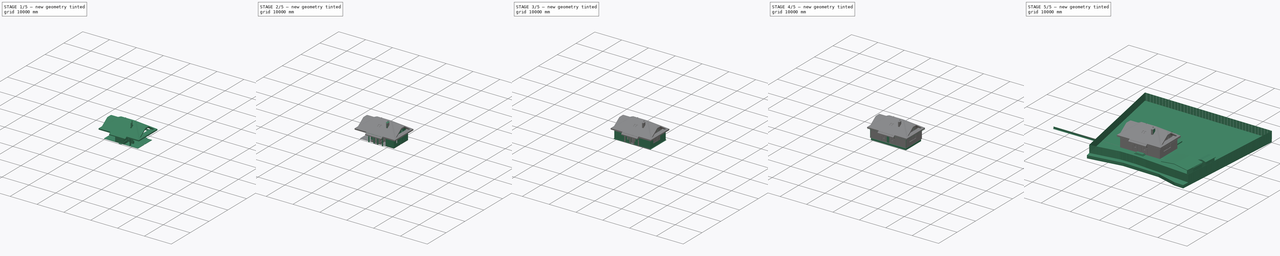
[diagram: build sequence overview — one tinted view per stage of 5, left to right]
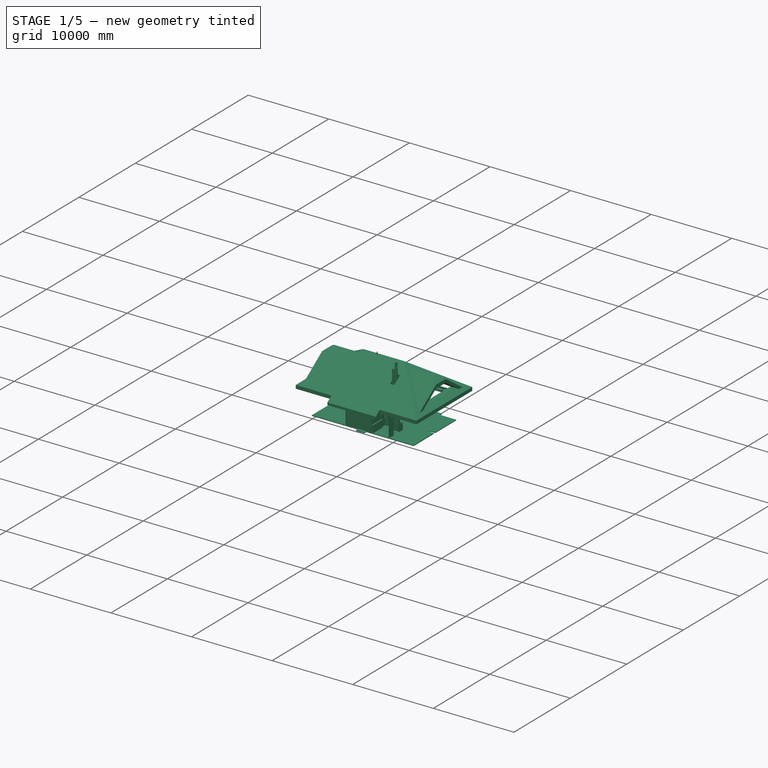
[diagram: stage 1 of 5 — iso view after this stage's code; geometry added in this stage tinted green]
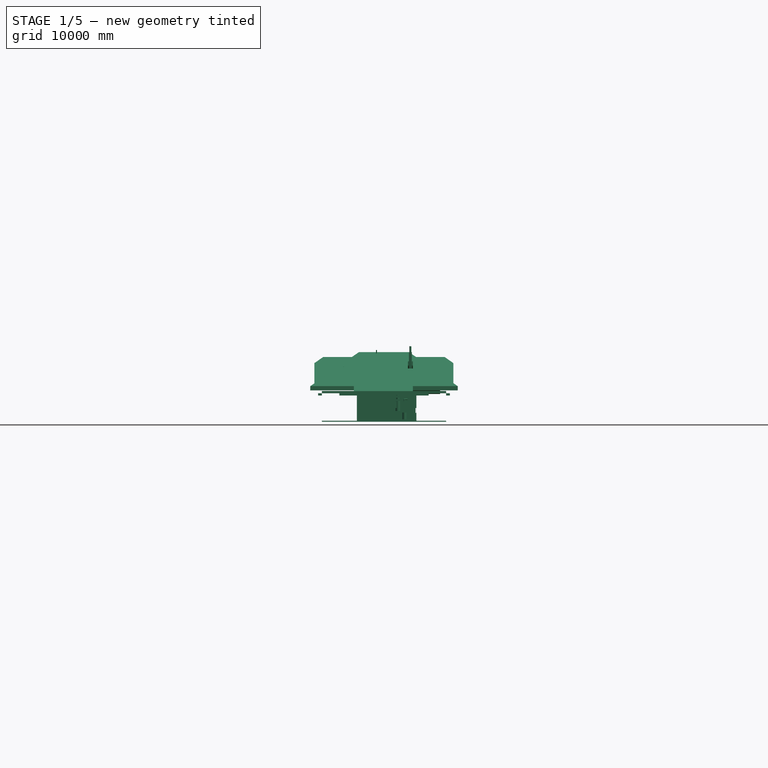
[diagram: stage 1 of 5 — front view after this stage's code; geometry added in this stage tinted green]
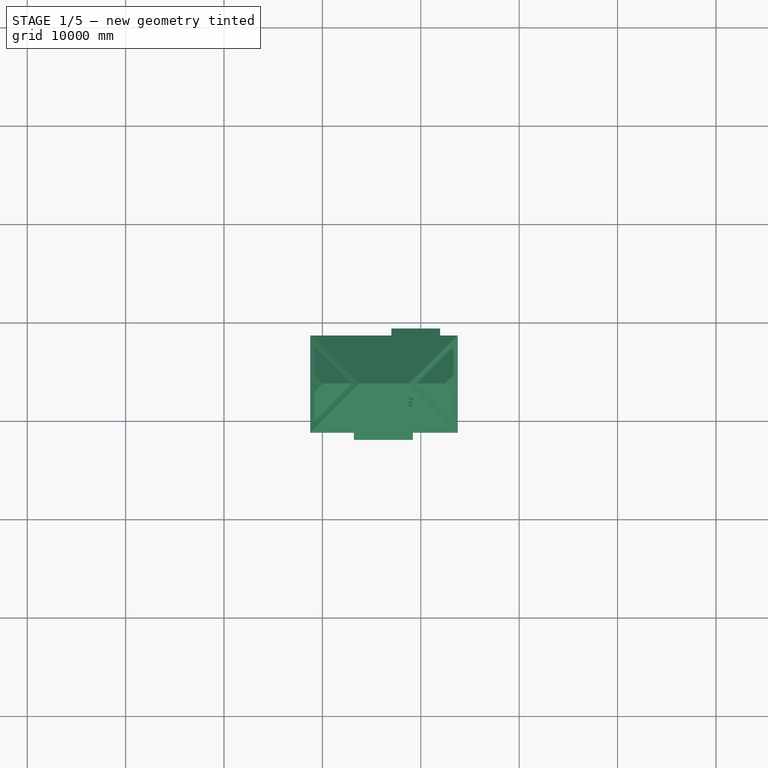
[diagram: stage 1 of 5 — top view after this stage's code; geometry added in this stage tinted green]
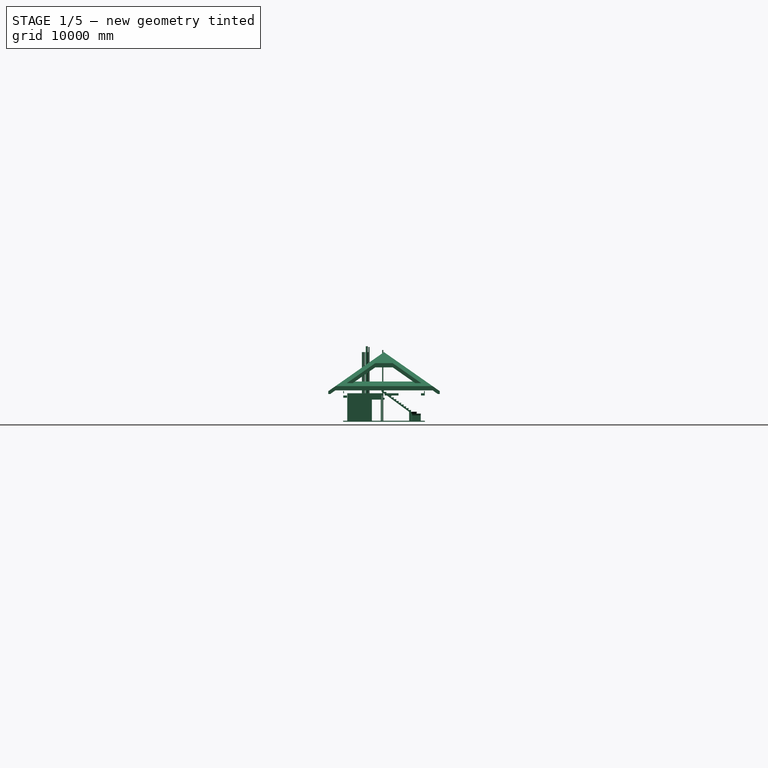
[diagram: stage 1 of 5 — right view after this stage's code; geometry added in this stage tinted green]
FCSTD DOCUMENT  (FreeCAD 0.19R)
Label: 2bedr_dev_080821_255mm_block
License: All rights reserved
LicenseURL: http://en.wikipedia.org/wiki/All_rights_reserved
objects: Part::Part2DObjectPython×492, Part::FeaturePython×324, App::GeometryPython×53, Part::Box×37, Part::Extrusion×32, App::FeaturePython×29, Sketcher::SketchObject×29, Part::Cut×21, Part::Feature×15, Part::MultiCommon×15, App::MaterialObjectPython×12, TechDraw::DrawViewArch×6, App::DocumentObjectGroup×5, Part::Cylinder×5, TechDraw::DrawSVGTemplate×4, TechDraw::DrawPage×4, Part::MultiFuse×3, Image::ImagePlane×2, Part::Loft×1, Spreadsheet::Sheet×1, +3 more types
note: 1031 computed .brp shape members not serialized (recipe doc carries the construction recipe); baked Part::Feature solids carry a one-line shape summary decoded from their .brp

FEATURE [Part::Part2DObjectPython] Rectangle2695  label="Д90-007"  # Draft 2D object (typed FeaturePython)
  ChamferSize = 0
  Columns = 1
  FilletRadius = 0
  Height = 100
  Length = 900
  MakeFace = true
  Placement = pos=(9550,770,0) rot=(0,0,1;1.5708rad)
  Rows = 1
FEATURE [Part::FeaturePython] Structure026  label="Проём-Д80-003"  # Arch/BIM 172 (typed FeaturePython)
  Base = -> Rectangle2695
  FaceMaker = 0
  Height = 2170
  HorizontalArea = 90000
  IfcType = 172
  Length = 0
  MoveBase = false
  MoveWithHost = false
  Nodes = (2) [(13000,6050,0),(13000,6050,2180)]
  NodesOffset = 0
  Normal = (0,0,0)
  PerimeterLength = 2000
  Placement = pos=(0,0,-20) rot=(0,0,1;0rad)
  PredefinedType = 0
  VerticalArea = 4340000
  Width = 100
FEATURE [Part::Part2DObjectPython] Rectangle2630  label="Rectangle2624"  # Draft 2D object (typed FeaturePython)
  ChamferSize = 0
  Columns = 1
  FilletRadius = 0
  Height = 1500
  Length = 2100
  MakeFace = false
  Placement = pos=(1150,2125,0) rot=(0,0,-1;1.5708rad)
  Rows = 1
FEATURE [Part::Part2DObjectPython] Rectangle2684  label="Rectangle2703"  # Draft 2D object (typed FeaturePython)
  ChamferSize = 0
  Columns = 1
  FilletRadius = 0
  Height = 1800
  Length = 900
  MakeFace = true
  Placement = pos=(1000,925,0) rot=(0,0,-1;1.5708rad)
  Rows = 1
FEATURE [Part::Part2DObjectPython] Rectangle2712  label="Rectangle2673"  # Draft 2D object (typed FeaturePython)
  ChamferSize = 0
  Columns = 1
  FilletRadius = 0
  Height = 1200
  Length = 75
  MakeFace = false
  Placement = pos=(4795,6225,0) rot=(0,0,1;3.14159rad)
  Rows = 1
FEATURE [Part::Part2DObjectPython] Rectangle2717  label="Д90-006"  # Draft 2D object (typed FeaturePython)
  ChamferSize = 0
  Columns = 1
  FilletRadius = 0
  Height = 100
  Length = 900
  MakeFace = true
  Placement = pos=(5750,2270,0) rot=(0,0,1;0rad)
  Rows = 1
FEATURE [Part::FeaturePython] Structure024  label="Проём-Д100-002"  # Arch/BIM 172 (typed FeaturePython)
  Base = -> Rectangle2717
  FaceMaker = 0
  Height = 2070
  HorizontalArea = 90000
  IfcType = 172
  Length = 0
  MoveBase = false
  MoveWithHost = false
  Nodes = (2) [(5000,3050,0),(5000,3050,2180)]
  NodesOffset = 0
  Normal = (0,0,0)
  PerimeterLength = 2000
  Placement = pos=(0,0,-20) rot=(0,0,1;0rad)
  PredefinedType = 0
  VerticalArea = 4.14e+06
  Width = 100
FEATURE [Part::Part2DObjectPython] Rectangle2798  label="Д90-005"  # Draft 2D object (typed FeaturePython)
  ChamferSize = 0
  Columns = 1
  FilletRadius = 0
  Height = 100
  Length = 900
  MakeFace = true
  Placement = pos=(3600,2500,0) rot=(0,0,1;1.5708rad)
  Rows = 1
FEATURE [Part::FeaturePython] Structure021  label="Проём-Д90-005"  # Arch/BIM 172 (typed FeaturePython)
  Base = -> Rectangle2798
  FaceMaker = 0
  Height = 2170
  HorizontalArea = 90000
  IfcType = 172
  Length = 0
  MoveBase = false
  MoveWithHost = false
  Nodes = (2) [(7500,3050,0),(7500,3050,2180)]
  NodesOffset = 0
  Normal = (0,0,0)
  PerimeterLength = 2000
  Placement = pos=(0,0,-20) rot=(0,0,1;0rad)
  PredefinedType = 0
  VerticalArea = 4340000
  Width = 100
FEATURE [Part::Box] Box3211  label="камин топка 700"
  AttacherType = Attacher::AttachEngine3D
  Height = 500
  Length = 800
  Placement = pos=(8750,1870,800) rot=(0,0,1;0rad)
  Width = 500
FEATURE [Part::Part2DObjectPython] Rectangle3172  # Draft 2D object (typed FeaturePython)
  Area = 0
  ChamferSize = 0
  Columns = 1
  FilletRadius = 0
  Height = 50
  Length = 800
  MakeFace = false
  Placement = pos=(5800,3640,0) rot=(0,0,1;0rad)
  Rows = 1
FEATURE [Part::Part2DObjectPython] Rectangle3173  # Draft 2D object (typed FeaturePython)
  Area = 0
  ChamferSize = 0
  Columns = 1
  FilletRadius = 0
  Height = 100
  Length = 900
  MakeFace = false
  Placement = pos=(5750,3615,0) rot=(0,0,1;0rad)
  Rows = 1
FEATURE [Part::Cylinder] Cylinder002  label="БКН 120л"
  Angle = 360
  AttacherType = Attacher::AttachEngine3D
  Height = 1010
  Placement = pos=(7680,1990,1000) rot=(0,0,1;0rad)
  Radius = 250
FEATURE [Part::Part2DObjectPython] Arc113  label="Arc114"  # Draft 2D object (typed FeaturePython)
  Area = 0
  FirstAngle = 90
  LastAngle = 180
  MakeFace = false
  Placement = pos=(6600,3665,0) rot=(0,0,1;0rad)
  Radius = 400
FEATURE [Part::Part2DObjectPython] Arc112  label="Arc113"  # Draft 2D object (typed FeaturePython)
  Area = 0
  FirstAngle = 0
  LastAngle = 90
  MakeFace = false
  Placement = pos=(5800,3665,0) rot=(0,0,1;0rad)
  Radius = 400
FEATURE [Part::Box] Box3220  label="Котёл 24кВт одноконтурн. закртытая камера"
  AttacherType = Attacher::AttachEngine3D
  Height = 700
  Length = 400
  Placement = pos=(8130,2000,1300) rot=(0,0,1;0rad)
  Width = 250
FEATURE [Part::Cylinder] Cylinder003  label="бак расширительный"
  Angle = 360
  AttacherType = Attacher::AttachEngine3D
  Height = 400
  Placement = pos=(7680,1990,2200) rot=(0,0,1;0rad)
  Radius = 175
FEATURE [Part::Box] Box3222  label="грёбенка и насосы"
  AttacherType = Attacher::AttachEngine3D
  Height = 900
  Length = 150
  Placement = pos=(7400,-10,0) rot=(0,0,1;0rad)
  Width = 1700
FEATURE [Part::Cylinder] Cylinder004  label="Гидроакк. 100л"
  Angle = 360
  AttacherType = Attacher::AttachEngine3D
  Height = 700
  Placement = pos=(8350,2020,140) rot=(0,0,1;0rad)
  Radius = 220
FEATURE [Part::Box] Box3223  label="Котёл электр. (резерв)"
  AttacherType = Attacher::AttachEngine3D
  Height = 700
  Length = 200
  Placement = pos=(7550,1490,1300) rot=(0,0,1;1.5708rad)
  Width = 150
FEATURE [App::GeometryPython] BuildingPart048  label="Сантехника и отопление"  # Arch/BIM 172 (typed FeaturePython)
  Area = 3.07929e+06
  Group = -> [Fusion041,Box3215,Structure343,Structure344,Structure345,Wall240,Structure347]
  Height = 0
  HeightPropagate = true
  IfcType = 172
  LevelOffset = 0
  PredefinedType = 0
FEATURE [Part::Part2DObjectPython] Line1425  # Draft 2D object (typed FeaturePython)
  ChamferSize = 0
  Closed = true
  End = (6830,6530,0)
  FilletRadius = 0
  Length = 1050
  MakeFace = false
  Placement = pos=(3050,8700,0) rot=(0,0,-1;1.5708rad)
  Points = (2) [(2170,2730,0),(2170,3780,0)]
  Start = (5780,6530,0)
  Subdivisions = 0
FEATURE [Part::Part2DObjectPython] Wire816  # Draft 2D object (typed FeaturePython)
  Area = 2.2367e+06
  ChamferSize = 0
  Closed = true
  End = (6830,7470,0)
  FilletRadius = 0
  Length = 22500
  MakeFace = true
  Placement = pos=(6198,7440,0) rot=(0,0,1;0rad)
  Points = (20) [(-265,30,0),(-265,430,0),(2305,430,0),(2305,30,0),(742,30,0),(742,-2020,0),(1642,-2020,0),(1642,-970,0),(1742,-970,0),(1742,-3630,0),(2242,-3630,0),+9 more]
  Start = (5933,7470,0)
  Subdivisions = 0
FEATURE [Part::Box] Box3228  label="Ниша-дровник"
  AttacherType = Attacher::AttachEngine3D
  Height = 400
  Length = 500
  Placement = pos=(8800,1870,200) rot=(0,0,1;0rad)
  Width = 500
FEATURE [Part::Part2DObjectPython] Line1426  # Draft 2D object (typed FeaturePython)
  Area = 0
  ChamferSize = 0
  Closed = true
  End = (-430,7870,0)
  FilletRadius = 0
  Length = 8280
  MakeFace = false
  Placement = pos=(-380,-318,0) rot=(0,0,1;0rad)
  Points = (2) [(-50,-92,0),(-50,8188,0)]
  Start = (-430,-410,0)
  Subdivisions = 0
FEATURE [Part::Part2DObjectPython] Line1427  # Draft 2D object (typed FeaturePython)
  Area = 0
  ChamferSize = 0
  Closed = true
  End = (12950,7870,0)
  FilletRadius = 0
  Length = 8280
  MakeFace = false
  Placement = pos=(12900,-318,0) rot=(0,0,1;0rad)
  Points = (2) [(50,-92,0),(50,8188,0)]
  Start = (12950,-410,0)
  Subdivisions = 0
FEATURE [Part::Part2DObjectPython] Line1430  # Draft 2D object (typed FeaturePython)
  Area = 0
  ChamferSize = 0
  Closed = true
  End = (-50,-410,0)
  FilletRadius = 0
  Length = 12620
  MakeFace = false
  Placement = pos=(-380,-410,0) rot=(0,0,1;0rad)
  Points = (2) [(12950,0,0),(330,0,0)]
  Start = (12570,-410,0)
  Subdivisions = 0
FEATURE [Part::Part2DObjectPython] Line1431  # Draft 2D object (typed FeaturePython)
  Area = 0
  ChamferSize = 0
  Closed = true
  End = (12570,7870,0)
  FilletRadius = 0
  Length = 12620
  MakeFace = false
  Placement = pos=(-380,-318,0) rot=(0,0,1;0rad)
  Points = (2) [(330,8188,0),(12950,8188,0)]
  Start = (-50,7870,0)
  Subdivisions = 0
FEATURE [Part::Part2DObjectPython] Rectangle3203  # Draft 2D object (typed FeaturePython)
  Area = 0
  ChamferSize = 0
  Columns = 1
  FilletRadius = 0
  Height = 700
  Length = 700
  MakeFace = false
  Placement = pos=(-1210,-1210,0) rot=(0,0,1;0rad)
  Rows = 1
FEATURE [Part::Part2DObjectPython] Rectangle3207  # Draft 2D object (typed FeaturePython)
  Area = 0
  ChamferSize = 0
  Columns = 1
  FilletRadius = 0
  Height = 2500
  Length = 3775
  MakeFace = false
  Placement = pos=(12510,1842.5,3120) rot=(0.57735,0.57735,0.57735;2.0944rad)
  Rows = 1
FEATURE [Part::Part2DObjectPython] Rectangle3208  label="Фальшколонна 001"  # Draft 2D object (typed FeaturePython)
  Area = 53200
  ChamferSize = 0
  Columns = 1
  FilletRadius = 0
  Height = 140
  Length = 380
  MakeFace = true
  Placement = pos=(5325,-550,0) rot=(0,0,1;0rad)
  Rows = 1
FEATURE [Part::Part2DObjectPython] Rectangle3214  # Draft 2D object (typed FeaturePython)
  Area = 0
  ChamferSize = 0
  Columns = 1
  FilletRadius = 0
  Height = 1400
  Length = 4200
  MakeFace = false
  Placement = pos=(7387,7990,0) rot=(0,0,1;0rad)
  Rows = 1
FEATURE [Part::Part2DObjectPython] Rectangle3215  # Draft 2D object (typed FeaturePython)
  Area = 0
  ChamferSize = 0
  Columns = 1
  FilletRadius = 0
  Height = 1400
  Length = 6000
  MakeFace = false
  Placement = pos=(9198,-530,0) rot=(0,0,1;3.14159rad)
  Rows = 1
FEATURE [Part::Part2DObjectPython] Rectangle3206  # Draft 2D object (typed FeaturePython)
  Area = 0
  ChamferSize = 0
  Columns = 1
  FilletRadius = 0
  Height = 700
  Length = 700
  MakeFace = false
  Placement = pos=(-1210,7970,0) rot=(0,0,1;0rad)
  Rows = 1
FEATURE [Part::Part2DObjectPython] Rectangle3204  # Draft 2D object (typed FeaturePython)
  Area = 0
  ChamferSize = 0
  Columns = 1
  FilletRadius = 0
  Height = 700
  Length = 700
  MakeFace = false
  Placement = pos=(13030,7970,0) rot=(0,0,1;0rad)
  Rows = 1
FEATURE [Part::Part2DObjectPython] Rectangle3205  # Draft 2D object (typed FeaturePython)
  Area = 0
  ChamferSize = 0
  Columns = 1
  FilletRadius = 0
  Height = 700
  Length = 700
  MakeFace = false
  Placement = pos=(13030,-1210,0) rot=(0,0,1;0rad)
  Rows = 1
FEATURE [Part::Part2DObjectPython] Wire817  label="кровля_контур_обрезки"  # Draft 2D object (typed FeaturePython)
  Area = 0
  ChamferSize = 0
  Closed = true
  End = (3198,-1210,0)
  FilletRadius = 0
  Length = 52600
  MakeFace = false
  Placement = pos=(-1210,-1210,0) rot=(0,0,1;0rad)
  Points = (12) [(-20,0,0),(-20,9880,0),(8217,9880,0),(8217,10600,0),(13177,10600,0),(13177,9880,0),(14960,9880,0),(14960,0,0),(10408,9.09495e-13,0),(10408,-720,0),+2 more]
  Start = (-1230,-1210,0)
  Subdivisions = 0
FEATURE [Part::Extrusion] Extrude
  Base = -> Wire817
  Dir = (0,0,1)
  DirMode = 2
  FaceMakerClass = Part::FaceMakerBullseye
  LengthFwd = 5000
  LengthRev = 0
  Placement = pos=(0,0,2720) rot=(0,0,1;0rad)
  Solid = true
  Symmetric = false
FEATURE [Part::Part2DObjectPython] Rectangle3216  # Draft 2D object (typed FeaturePython)
  Area = 0
  ChamferSize = 0
  Columns = 1
  FilletRadius = 0
  Height = 8540
  Length = 20900
  MakeFace = false
  Placement = pos=(-4200,-540,0) rot=(0,0,1;0rad)
  Rows = 1
FEATURE [Part::Part2DObjectPython] Wire  # Draft 2D object (typed FeaturePython)
  Area = 6.01874e+06
  ChamferSize = 0
  Closed = true
  End = (13030,6661.83,3999.83)
  FilletRadius = 0
  Length = 13021.9
  MakeFace = true
  Placement = pos=(13030,798.165,3999.83) rot=(0.57735,0.57735,0.57735;2.0944rad)
  Points = (3) [(0,0,0),(2931.83,2052.89,0),(5863.67,-9.09495e-13,0)]
  Start = (13030,798.165,3999.83)
  Subdivisions = 0
FEATURE [Part::Extrusion] Extrude092
  Base = -> Wire
  Dir = (1,0,0)
  DirMode = 2
  FaceMakerClass = Part::FaceMakerBullseye
  LengthFwd = 15000
  LengthRev = 0
  Placement = pos=(-14250,0,0) rot=(0,0,1;0rad)
  Solid = false
  Symmetric = false
FEATURE [Part::Part2DObjectPython] Line1437  # Draft 2D object (typed FeaturePython)
  Area = 0
  ChamferSize = 0
  Closed = false
  End = (0,7825.76,3171)
  FilletRadius = 0
  Length = 5000
  MakeFace = false
  Placement = pos=(0,3730,6038.88) rot=(0.57735,0.57735,0.57735;2.0944rad)
  Points = (2) [(0,0,0),(4095.76,-2867.88,0)]
  Start = (0,3730,6038.88)
  Subdivisions = 0
FEATURE [Part::Part2DObjectPython] Line1436  # Draft 2D object (typed FeaturePython)
  Area = 0
  ChamferSize = 0
  Closed = false
  End = (0,-365.76,3171)
  FilletRadius = 0
  Length = 5000
  MakeFace = false
  Placement = pos=(0,3730,6038.88) rot=(0.57735,0.57735,0.57735;2.0944rad)
  Points = (2) [(0,0,0),(-4095.76,-2867.88,0)]
  Start = (0,3730,6038.88)
  Subdivisions = 0
FEATURE [Part::Part2DObjectPython] Line1434  # Draft 2D object (typed FeaturePython)
  Area = 0
  ChamferSize = 0
  Closed = false
  End = (0,7830,3733)
  FilletRadius = 0
  Length = 8200
  MakeFace = false
  Placement = pos=(0,-370,3733) rot=(0.57735,0.57735,0.57735;2.0944rad)
  Points = (2) [(0,0,0),(8200,0,0)]
  Start = (0,-370,3733)
  Subdivisions = 0
FEATURE [Part::Part2DObjectPython] Line1438  # Draft 2D object (typed FeaturePython)
  Area = 0
  ChamferSize = 0
  Closed = false
  End = (0,3730,3733)
  FilletRadius = 0
  Length = 2435.88
  MakeFace = false
  Placement = pos=(0,3730,6168.88) rot=(0.57735,0.57735,0.57735;2.0944rad)
  Points = (2) [(0,0,0),(4.54747e-13,-2435.88,0)]
  Start = (0,3730,6168.88)
  Subdivisions = 0
FEATURE [Sketcher::SketchObject] Sketch316
  FullyConstrained = true
  Placement = pos=(-440,3630,4130) rot=(0.57735,0.57735,0.57735;2.0944rad)
  sketch-geometry (20):
    g0: LineSegment StartX=-2000 StartY=0 StartZ=0 EndX=0 EndY=0 EndZ=0
    g1: LineSegment StartX=0 StartY=0 StartZ=0 EndX=0 EndY=1200 EndZ=0
    g2: LineSegment StartX=0 StartY=1200 StartZ=0 EndX=-657.055 EndY=1200 EndZ=0
    g3: LineSegment StartX=-2000 StartY=259.66 StartZ=0 EndX=-2000 EndY=0 EndZ=0
    g4: LineSegment StartX=-1950 StartY=50 StartZ=0 EndX=-50 EndY=50 EndZ=0
    g5: LineSegment StartX=-50 StartY=50 StartZ=0 EndX=-50 EndY=1150 EndZ=0
    g6: LineSegment StartX=-50 StartY=1150 StartZ=0 EndX=-641.29 EndY=1150 EndZ=0
    g7: LineSegment StartX=-1950 StartY=233.631 StartZ=0 EndX=-1950 EndY=50 EndZ=0
    g8: LineSegment StartX=-1945 StartY=55 StartZ=0 EndX=-55 EndY=55 EndZ=0
    g9: LineSegment StartX=-55 StartY=55 StartZ=0 EndX=-55 EndY=1145 EndZ=0
    g10: LineSegment StartX=-55 StartY=1145 StartZ=0 EndX=-639.713 EndY=1145 EndZ=0
    g11: LineSegment StartX=-1945 StartY=231.028 StartZ=0 EndX=-1945 EndY=55 EndZ=0
    g12: LineSegment StartX=-1895 StartY=105 StartZ=0 EndX=-105 EndY=105 EndZ=0
    g13: LineSegment StartX=-105 StartY=105 StartZ=0 EndX=-105 EndY=1095 EndZ=0
    g14: LineSegment StartX=-105 StartY=1095 StartZ=0 EndX=-623.948 EndY=1095 EndZ=0
    g15: LineSegment StartX=-1895 StartY=205 StartZ=0 EndX=-1895 EndY=105 EndZ=0
    g16: LineSegment StartX=-2000 StartY=259.66 StartZ=0 EndX=-657.055 EndY=1200 EndZ=0
    g17: LineSegment StartX=-1950 StartY=233.631 StartZ=0 EndX=-641.29 EndY=1150 EndZ=0
    g18: LineSegment StartX=-1945 StartY=231.028 StartZ=0 EndX=-639.713 EndY=1145 EndZ=0
    g19: LineSegment StartX=-1895 StartY=205 StartZ=0 EndX=-623.948 EndY=1095 EndZ=0
  constraints (59):
    c: Coincident(g1,g2)
    c: Horizontal(g0)
    c: Horizontal(g2)
    c: Vertical(g1)
    c: Vertical(g3)
    c: Coincident(g4,g5)
    c: Coincident(g5,g6)
    c: Coincident(g7,g4)
    c: Horizontal(g4)
    c: Horizontal(g6)
    c: Vertical(g5)
    c: Vertical(g7)
    c: DistanceX(g4,g0) = 50  'Frame3'
    c: DistanceY(g0,g4) = 50  'Frame4'
    c: Coincident(g8,g9)
    c: Coincident(g9,g10)
    c: Coincident(g11,g8)
    c: Horizontal(g8)
    c: Horizontal(g10)
    c: Vertical(g9)
    c: Vertical(g11)
    c: Coincident(g12,g13)
    c: Coincident(g13,g14)
    c: Coincident(g15,g12)
    c: Horizontal(g12)
    c: Horizontal(g14)
    c: Vertical(g13)
    c: Vertical(g15)
    c: DistanceX(g8,g12) = 50  'Frame5'
    c: DistanceY(g8,g12) = 50  'Frame6'
    c: DistanceX(g14,g10) = 50  'Frame8'
    c: DistanceY(g14,g10) = 50  'Frame7'
    c: DistanceX(g4,g8) = 5
    c: DistanceY(g4,g8) = 5
    c: DistanceX(g10,g6) = 5
    c: DistanceY(g10,g6) = 5
    c: Coincident(g16,g3)
    c: Coincident(g16,g2)
    c: Coincident(g17,g7)
    c: Coincident(g17,g6)
    c: Coincident(g18,g11)
    c: Coincident(g18,g10)
    c: Coincident(g19,g15)
    c: Coincident(g19,g14)
    c: Distance(g11,g17) = 5
    c: Distance(g15,g18) = 50
    c: Distance(g7,g16) = 50
    c: DistanceY(g5,g1) = 50
    c: Parallel(g18,g17)
    c: Parallel(g16,g17)
    c: Parallel(g18,g19)
    c: DistanceX(g0,g4) = 50
    c: DistanceY(g15,g15) = 100
    c: Angle(g19) = 0.610865  'угол наклона'
    c: Coincident(g3,g0)
    c: Coincident(g0,g1)
    c: Coincident(g0,g-1)
    c: DistanceX(g0,g0) = 2000
    c: DistanceY(g1,g1) = 1200
FEATURE [Sketcher::SketchObject] Sketch318
  FullyConstrained = true
  Placement = pos=(-440,3830,4130) rot=(0.57735,-0.57735,-0.57735;2.0944rad)
  sketch-geometry (20):
    g0: LineSegment StartX=-2000 StartY=0 StartZ=0 EndX=0 EndY=0 EndZ=0
    g1: LineSegment StartX=0 StartY=0 StartZ=0 EndX=0 EndY=1200 EndZ=0
    g2: LineSegment StartX=0 StartY=1200 StartZ=0 EndX=-657.055 EndY=1200 EndZ=0
    g3: LineSegment StartX=-2000 StartY=259.66 StartZ=0 EndX=-2000 EndY=0 EndZ=0
    g4: LineSegment StartX=-1950 StartY=50 StartZ=0 EndX=-50 EndY=50 EndZ=0
    g5: LineSegment StartX=-50 StartY=50 StartZ=0 EndX=-50 EndY=1150 EndZ=0
    g6: LineSegment StartX=-50 StartY=1150 StartZ=0 EndX=-641.29 EndY=1150 EndZ=0
    g7: LineSegment StartX=-1950 StartY=233.631 StartZ=0 EndX=-1950 EndY=50 EndZ=0
    g8: LineSegment StartX=-1945 StartY=55 StartZ=0 EndX=-55 EndY=55 EndZ=0
    g9: LineSegment StartX=-55 StartY=55 StartZ=0 EndX=-55 EndY=1145 EndZ=0
    g10: LineSegment StartX=-55 StartY=1145 StartZ=0 EndX=-639.713 EndY=1145 EndZ=0
    g11: LineSegment StartX=-1945 StartY=231.028 StartZ=0 EndX=-1945 EndY=55 EndZ=0
    g12: LineSegment StartX=-1895 StartY=105 StartZ=0 EndX=-105 EndY=105 EndZ=0
    g13: LineSegment StartX=-105 StartY=105 StartZ=0 EndX=-105 EndY=1095 EndZ=0
    g14: LineSegment StartX=-105 StartY=1095 StartZ=0 EndX=-623.948 EndY=1095 EndZ=0
    g15: LineSegment StartX=-1895 StartY=205 StartZ=0 EndX=-1895 EndY=105 EndZ=0
    g16: LineSegment StartX=-2000 StartY=259.66 StartZ=0 EndX=-657.055 EndY=1200 EndZ=0
    g17: LineSegment StartX=-1950 StartY=233.631 StartZ=0 EndX=-641.29 EndY=1150 EndZ=0
    g18: LineSegment StartX=-1945 StartY=231.028 StartZ=0 EndX=-639.713 EndY=1145 EndZ=0
    g19: LineSegment StartX=-1895 StartY=205 StartZ=0 EndX=-623.948 EndY=1095 EndZ=0
  constraints (59):
    c: Coincident(g1,g2)
    c: Horizontal(g0)
    c: Horizontal(g2)
    c: Vertical(g1)
    c: Vertical(g3)
    c: Coincident(g4,g5)
    c: Coincident(g5,g6)
    c: Coincident(g7,g4)
    c: Horizontal(g4)
    c: Horizontal(g6)
    c: Vertical(g5)
    c: Vertical(g7)
    c: DistanceY(g1) = 1200  'Height'
    c: DistanceX(g4,g0) = 50  'Frame3'
    c: DistanceY(g0,g4) = 50  'Frame4'
    c: Coincident(g8,g9)
    c: Coincident(g9,g10)
    c: Coincident(g11,g8)
    c: Horizontal(g8)
    c: Horizontal(g10)
    c: Vertical(g9)
    c: Vertical(g11)
    c: Coincident(g12,g13)
    c: Coincident(g13,g14)
    c: Coincident(g15,g12)
    c: Horizontal(g12)
    c: Horizontal(g14)
    c: Vertical(g13)
    c: Vertical(g15)
    c: DistanceX(g8,g12) = 50  'Frame5'
    c: DistanceY(g8,g12) = 50  'Frame6'
    c: DistanceX(g14,g10) = 50  'Frame8'
    c: DistanceY(g14,g10) = 50  'Frame7'
    c: DistanceX(g4,g8) = 5
    c: DistanceY(g4,g8) = 5
    c: DistanceX(g10,g6) = 5
    c: DistanceY(g10,g6) = 5
    c: Coincident(g16,g3)
    c: Coincident(g16,g2)
    c: Coincident(g17,g7)
    c: Coincident(g17,g6)
    c: Coincident(g18,g11)
    c: Coincident(g18,g10)
    c: Coincident(g19,g15)
    c: Coincident(g19,g14)
    c: Distance(g11,g17) = 5
    c: Distance(g15,g18) = 50
    c: Distance(g7,g16) = 50
    c: DistanceY(g5,g1) = 50
    c: Parallel(g18,g17)
    c: Parallel(g16,g17)
    c: Parallel(g18,g19)
    c: DistanceX(g0,g4) = 50
    c: DistanceY(g15,g15) = 100
    c: Angle(g19) = 0.610865  'угол наклона'
    c: Coincident(g3,g0)
    c: Coincident(g0,g1)
    c: Coincident(g0,g-1)
    c: DistanceX(g0,g0) = 2000
FEATURE [Part::Part2DObjectPython] Rectangle3217  # Draft 2D object (typed FeaturePython)
  Area = 142500
  ChamferSize = 0
  Columns = 1
  FilletRadius = 0
  Height = 1900
  Length = 75
  MakeFace = true
  Placement = pos=(1370,4675,0) rot=(0,0,1;0rad)
  Rows = 1
FEATURE [Part::Part2DObjectPython] Wire819  # Draft 2D object (typed FeaturePython)
  Area = 7.04423e+07
  ChamferSize = 0
  Closed = true
  End = (817.97,5942.03,0)
  FilletRadius = 0
  Length = 36608.1
  MakeFace = true
  Placement = pos=(20,5942.03,0) rot=(0,0,1;0rad)
  Points = (12) [(0,0,0),(6.81446e-11,-4424.06,0),(803.442,-4424.06,0),(803.442,-5124.06,0),(11682,-5124.06,0),(11682,-4424.06,0),(12480,-4424.06,0),(12480,0,0),+4 more]
  Start = (20,5942.03,0)
  Subdivisions = 0
FEATURE [Part::Part2DObjectPython] Line1439  # Draft 2D object (typed FeaturePython)
  Area = 0
  ChamferSize = 0
  Closed = false
  End = (0,-1709.85,2720)
  FilletRadius = 0
  Length = 6640.83
  MakeFace = true
  Placement = pos=(0,3730,6529.03) rot=(0.57735,0.57735,0.57735;2.0944rad)
  Points = (2) [(0,0,0),(-5439.85,-3809.03,0)]
  Start = (0,3730,6529.03)
  Subdivisions = 0
FEATURE [Part::Part2DObjectPython] Line1441  # Draft 2D object (typed FeaturePython)
  Area = 0
  ChamferSize = 0
  Closed = false
  End = (0,20,4061.26)
  FilletRadius = 0
  Length = 941.255
  MakeFace = true
  Placement = pos=(0,20,3120) rot=(0.57735,0.57735,0.57735;2.0944rad)
  Points = (2) [(0,0,0),(-4.51195e-13,941.255,0)]
  Start = (0,20,3120)
  Subdivisions = 0
FEATURE [Part::Part2DObjectPython] Rectangle3220  # Draft 2D object (typed FeaturePython)
  Area = 0
  ChamferSize = 0
  Columns = 1
  FilletRadius = 0
  Height = 8240
  Length = 13300
  MakeFace = false
  Placement = pos=(-390,-390,0) rot=(0,0,1;0rad)
  Rows = 1
FEATURE [Part::Part2DObjectPython] Line1442  # Draft 2D object (typed FeaturePython)
  Area = 0
  ChamferSize = 0
  Closed = false
  End = (13500,3730,0)
  FilletRadius = 0
  Length = 14500
  MakeFace = false
  Placement = pos=(-390,3730,0) rot=(0,0,1;0rad)
  Points = (2) [(-610,4.54747e-13,0),(13890,0,0)]
  Start = (-1000,3730,0)
  Subdivisions = 0
FEATURE [Part::Part2DObjectPython] Rectangle3222  label="Проём ФР 001"  # Draft 2D object (typed FeaturePython)
  Area = 823893
  ChamferSize = 0
  Columns = 1
  FilletRadius = 0
  Height = 2009.5
  Length = 410
  MakeFace = true
  Placement = pos=(-390,3830,0) rot=(0,0,1;0rad)
  Rows = 1
FEATURE [Part::Part2DObjectPython] Rectangle3223  label="Проём ФР 010"  # Draft 2D object (typed FeaturePython)
  Area = 823893
  ChamferSize = 0
  Columns = 1
  FilletRadius = 0
  Height = 2009.5
  Length = 410
  MakeFace = true
  Placement = pos=(-390,1620.5,0) rot=(0,0,1;0rad)
  Rows = 1
FEATURE [Part::Part2DObjectPython] Rectangle3224  label="Проём ФР 011"  # Draft 2D object (typed FeaturePython)
  Area = 823893
  ChamferSize = 0
  Columns = 1
  FilletRadius = 0
  Height = 2009.5
  Length = 410
  MakeFace = true
  Placement = pos=(12500,3830,0) rot=(0,0,1;0rad)
  Rows = 1
FEATURE [Part::Part2DObjectPython] Rectangle3225  label="Проём ФР 012"  # Draft 2D object (typed FeaturePython)
  Area = 823893
  ChamferSize = 0
  Columns = 1
  FilletRadius = 0
  Height = 2009.5
  Length = 410
  MakeFace = true
  Placement = pos=(12500,1620.5,0) rot=(0,0,1;0rad)
  Rows = 1
FEATURE [Part::Part2DObjectPython] Rectangle3226  label="проём в перекрытии под фан.стояк"  # Draft 2D object (typed FeaturePython)
  ChamferSize = 0
  Columns = 1
  FilletRadius = 0
  Height = 140
  Length = 260
  MakeFace = false
  Placement = pos=(5360,3540,0) rot=(0,0,1;0rad)
  Rows = 1
FEATURE [Part::FeaturePython] Structure360  label="Вентстояк вычитаемы объём 003"  # Arch/BIM 172 (typed FeaturePython)
  Base = -> Rectangle3226
  FaceMaker = 0
  Height = 6000
  HorizontalArea = 36400
  IfcType = 172
  Length = 0
  MoveBase = false
  MoveWithHost = false
  Nodes = (2) [(5490,3610,0),(5490,3610,6000)]
  NodesOffset = 0
  Normal = (0,0,0)
  PerimeterLength = 800
  Placement = pos=(0,0,-200) rot=(0,0,1;0rad)
  PredefinedType = 0
  VerticalArea = 4800000
  Width = 100
FEATURE [Part::Part2DObjectPython] Rectangle3280  label="Фальшколонна 014"  # Draft 2D object (typed FeaturePython)
  Area = 53200
  ChamferSize = 0
  Columns = 1
  FilletRadius = 0
  Height = 140
  Length = 380
  MakeFace = true
  Placement = pos=(8188,7880,0) rot=(0,0,1;0rad)
  Rows = 1
FEATURE [Part::Part2DObjectPython] Rectangle3281  label="Фальшколонна 015"  # Draft 2D object (typed FeaturePython)
  Area = 371560
  ChamferSize = 0
  Columns = 1
  FilletRadius = 0
  Height = 140
  Length = 2654
  MakeFace = true
  Placement = pos=(8188,7880,0) rot=(0,0,1;0rad)
  Rows = 1
FEATURE [Part::Part2DObjectPython] Line1454  # Draft 2D object (typed FeaturePython)
  Area = 0
  ChamferSize = 0
  Closed = false
  End = (6800,-200,0)
  FilletRadius = 0
  Length = 2600
  MakeFace = true
  Placement = pos=(6800,2400,0) rot=(0,0,1;0rad)
  Points = (2) [(0,0,0),(0,-2600,0)]
  Start = (6800,2400,0)
  Subdivisions = 0
FEATURE [Part::Part2DObjectPython] Line1455  # Draft 2D object (typed FeaturePython)
  Area = 0
  ChamferSize = 0
  Closed = false
  End = (6900,-100,0)
  FilletRadius = 0
  Length = 2500
  MakeFace = true
  Placement = pos=(6900,2400,0) rot=(0,0,1;0rad)
  Points = (2) [(0,0,0),(0,-2500,0)]
  Start = (6900,2400,0)
  Subdivisions = 0
FEATURE [Part::Part2DObjectPython] Wire820  label="ТГ объёмом 15м3 h2.8m"  # Draft 2D object (typed FeaturePython)
  Area = 5375000
  ChamferSize = 0
  Closed = true
  End = (6900,1020,0)
  FilletRadius = 0
  Length = 9600
  MakeFace = true
  Placement = pos=(6900,2320,0) rot=(0,0,1;0rad)
  Points = (8) [(0,0,0),(1750,0,0),(1750,-500,0),(2500,-500,0),(2500,-2300,0),(0,-2300,0),(0,-1400,0),(0,-1300,0)]
  Start = (6900,2320,0)
  Subdivisions = 0
FEATURE [Part::Part2DObjectPython] Rectangle3282  label="проём в перекрытии под фан.стояк001"  # Draft 2D object (typed FeaturePython)
  ChamferSize = 0
  Columns = 1
  FilletRadius = 0
  Height = 130
  Length = 260
  MakeFace = false
  Placement = pos=(5360,3540,0) rot=(0,0,1;0rad)
  Rows = 1
FEATURE [Part::Part2DObjectPython] Rectangle3283  label="проём в перекрытии 008"  # Draft 2D object (typed FeaturePython)
  ChamferSize = 0
  Columns = 1
  FilletRadius = 0
  Height = 800
  Length = 320
  MakeFace = false
  Placement = pos=(8785,1470,0) rot=(0,0,1;0rad)
  Rows = 1
FEATURE [Part::Part2DObjectPython] Wire821  # Draft 2D object (typed FeaturePython)
  Area = 600400
  ChamferSize = 0
  Closed = true
  End = (5360,3520,0)
  FilletRadius = 0
  Length = 9000
  MakeFace = true
  Placement = pos=(4700,3520,0) rot=(1,0,0;3.14159rad)
  Points = (16) [(0,0,0),(0,-290,0),(120,-290,0),(120,-2920,0),(230,-2920,0),(230,-1310,0),(610,-1310,0),(610,-1190,0),(230,-1190,0),(230,-290,0),(1050,-290,0),+5 more]
  Start = (4700,3520,0)
  Subdivisions = 0
FEATURE [App::DocumentObjectGroup] Group118  label="Контуры стен"
  Group = -> [Wire667,Wire660,Wire658,Wire657,Wire661,Wire664,Wire663,Wire665,Wire670,Wire671,Wire752,Wire749,Wire799,Wire800,Wire801,Wire802,Wire805,Wire816,Rectangle3283,Rectangle3282,Wire821]
FEATURE [Part::Part2DObjectPython] Line1456  # Draft 2D object (typed FeaturePython)
  Area = 0
  ChamferSize = 0
  Closed = false
  End = (4820,7290,0)
  FilletRadius = 0
  Length = 800
  MakeFace = true
  Placement = pos=(4020,7290,0) rot=(0,0,1;0rad)
  Points = (2) [(0,0,0),(800,0,0)]
  Start = (4020,7290,0)
  Subdivisions = 0
FEATURE [Part::Part2DObjectPython] Arc125  label="Arc126"  # Draft 2D object (typed FeaturePython)
  Area = 0
  FirstAngle = -180
  LastAngle = -90
  MakeFace = true
  Placement = pos=(4820,7290,0) rot=(0,0,1;0rad)
  Radius = 800
FEATURE [Part::Part2DObjectPython] Wire822  # Draft 2D object (typed FeaturePython)
  Area = 3.72535e+07
  ChamferSize = 0
  Closed = true
  End = (3600,2370,0)
  FilletRadius = 0
  Length = 39260
  MakeFace = true
  Placement = pos=(3600,3520,0) rot=(0,0,1;1.5708rad)
  Points = (18) [(0,0,0),(9.09495e-13,-4840,0),(290,-4840,0),(290,-4340,0),(2950,-4340,0),(2950,-4240,0),(1900,-4240,0),(1900,-3340,0),(3950,-3340,0),(3950,-8950,0),+8 more]
  Start = (3600,3520,0)
  Subdivisions = 0
FEATURE [Part::Part2DObjectPython] Line1457  label="контрфорс_линия_001"  # Draft 2D object (typed FeaturePython)
  ChamferSize = 0
  Closed = true
  End = (3474,-669.576,0)
  FilletRadius = 0
  Length = 380
  MakeFace = false
  Placement = pos=(3684,-669.576,0) rot=(0,0,1;0rad)
  Points = (2) [(170,1.02318e-12,0),(-210,9.09495e-13,0)]
  Start = (3854,-669.576,0)
  Subdivisions = 0
FEATURE [Part::Part2DObjectPython] Line1458  label="контрфорс_линия_002"  # Draft 2D object (typed FeaturePython)
  ChamferSize = 0
  Closed = true
  End = (8544,-669.576,0)
  FilletRadius = 0
  Length = 380
  MakeFace = false
  Placement = pos=(8754,-669.576,0) rot=(0,0,1;0rad)
  Points = (2) [(170,1.02318e-12,0),(-210,9.09495e-13,0)]
  Start = (8924,-669.576,0)
  Subdivisions = 0
FEATURE [Part::Part2DObjectPython] Line1459  label="контрфорс_линия_003"  # Draft 2D object (typed FeaturePython)
  ChamferSize = 0
  Closed = true
  End = (7392,8130,0)
  FilletRadius = 0
  Length = 380
  MakeFace = false
  Placement = pos=(7602,8130,0) rot=(0,0,1;0rad)
  Points = (2) [(170,9.09495e-13,0),(-210,9.09495e-13,0)]
  Start = (7772,8130,0)
  Subdivisions = 0
FEATURE [Part::Part2DObjectPython] Line1460  label="контрфорс_линия_004"  # Draft 2D object (typed FeaturePython)
  ChamferSize = 0
  Closed = true
  End = (11290,8130,0)
  FilletRadius = 0
  Length = 380
  MakeFace = false
  Placement = pos=(11500,8130,0) rot=(0,0,1;0rad)
  Points = (2) [(170,9.09495e-13,0),(-210,9.09495e-13,0)]
  Start = (11670,8130,0)
  Subdivisions = 0
FEATURE [Part::Part2DObjectPython] Line1461  # Draft 2D object (typed FeaturePython)
  Area = 0
  ChamferSize = 0
  Closed = false
  End = (0,3730,6956.3)
  FilletRadius = 0
  Length = 6909.58
  MakeFace = true
  Placement = pos=(0,-1930,2993.12) rot=(0.57735,0.57735,0.57735;2.0944rad)
  Points = (2) [(0,0,0),(5660,3963.17,0)]
  Start = (0,-1930,2993.12)
  Subdivisions = 0
FEATURE [Part::Part2DObjectPython] Line1462  # Draft 2D object (typed FeaturePython)
  Area = 0
  ChamferSize = 0
  Closed = false
  End = (0,-180.752,4217.96)
  FilletRadius = 0
  Length = 350
  MakeFace = true
  Placement = pos=(0,20,3931.26) rot=(0.57735,0.57735,0.57735;2.0944rad)
  Points = (2) [(0,0,0),(-200.752,286.703,0)]
  Start = (0,20,3931.26)
  Subdivisions = 0
FEATURE [Part::Part2DObjectPython] Line1463  # Draft 2D object (typed FeaturePython)
  Area = 0
  ChamferSize = 0
  Closed = false
  End = (0,-532.24,3971.84)
  FilletRadius = 0
  Length = 291.574
  MakeFace = true
  Placement = pos=(0,-365,3733) rot=(0.57735,0.57735,0.57735;2.0944rad)
  Points = (2) [(0,0,0),(-167.24,238.844,0)]
  Start = (0,-365,3733)
  Subdivisions = 0
FEATURE [Part::Part2DObjectPython] Line1464  # Draft 2D object (typed FeaturePython)
  Area = 0
  ChamferSize = 0
  Closed = false
  End = (6260,-390,0)
  FilletRadius = 0
  Length = 8240
  MakeFace = true
  Placement = pos=(6260,7850,0) rot=(0,0,1;0rad)
  Points = (2) [(0,0,0),(0,-8240,0)]
  Start = (6260,7850,0)
  Subdivisions = 0
FEATURE [Sketcher::SketchObject] Sketch
  FullyConstrained = true
  Placement = pos=(5597.36,993.568,5040.23) rot=(1,0,0;0.610865rad)
  sketch-geometry (16):
    g0: LineSegment StartX=0 StartY=0 StartZ=0 EndX=550 EndY=0 EndZ=0
    g1: LineSegment StartX=550 StartY=0 StartZ=0 EndX=550 EndY=980 EndZ=0
    g2: LineSegment StartX=550 StartY=980 StartZ=0 EndX=0 EndY=980 EndZ=0
    g3: LineSegment StartX=0 StartY=980 StartZ=0 EndX=0 EndY=0 EndZ=0
    g4: LineSegment StartX=50 StartY=50 StartZ=0 EndX=500 EndY=50 EndZ=0
    g5: LineSegment StartX=500 StartY=50 StartZ=0 EndX=500 EndY=930 EndZ=0
    g6: LineSegment StartX=500 StartY=930 StartZ=0 EndX=50 EndY=930 EndZ=0
    g7: LineSegment StartX=50 StartY=930 StartZ=0 EndX=50 EndY=50 EndZ=0
    g8: LineSegment StartX=55 StartY=55 StartZ=0 EndX=495 EndY=55 EndZ=0
    g9: LineSegment StartX=495 StartY=55 StartZ=0 EndX=495 EndY=925 EndZ=0
    g10: LineSegment StartX=495 StartY=925 StartZ=0 EndX=55 EndY=925 EndZ=0
    g11: LineSegment StartX=55 StartY=925 StartZ=0 EndX=55 EndY=55 EndZ=0
    g12: LineSegment StartX=105 StartY=105 StartZ=0 EndX=445 EndY=105 EndZ=0
    g13: LineSegment StartX=445 StartY=105 StartZ=0 EndX=445 EndY=875 EndZ=0
    g14: LineSegment StartX=445 StartY=875 StartZ=0 EndX=105 EndY=875 EndZ=0
    g15: LineSegment StartX=105 StartY=875 StartZ=0 EndX=105 EndY=105 EndZ=0
  constraints (47):
    c: Coincident(g0,g1)
    c: Coincident(g1,g2)
    c: Coincident(g2,g3)
    c: Coincident(g3,g0)
    c: Horizontal(g0)
    c: Horizontal(g2)
    c: Vertical(g1)
    c: Vertical(g3)
    c: Coincident(g4,g5)
    c: Coincident(g5,g6)
    c: Coincident(g6,g7)
    c: Coincident(g7,g4)
    c: Horizontal(g4)
    c: Horizontal(g6)
    c: Vertical(g5)
    c: Vertical(g7)
    c: DistanceY(g1) = 980  'Height'
    c: DistanceX(g0) = 550  'Width'
    c: DistanceY(g6,g2) = 50  'Frame1'
    c: DistanceX(g2,g6) = 50  'Frame2'
    c: DistanceX(g4,g0) = 50  'Frame3'
    c: DistanceY(g0,g4) = 50  'Frame4'
    c: Coincident(g0,g-1)
    c: Coincident(g8,g9)
    c: Coincident(g9,g10)
    c: Coincident(g10,g11)
    c: Coincident(g11,g8)
    c: Horizontal(g8)
    c: Horizontal(g10)
    c: Vertical(g9)
    c: Vertical(g11)
    c: Coincident(g12,g13)
    c: Coincident(g13,g14)
    c: Coincident(g14,g15)
    c: Coincident(g15,g12)
    c: Horizontal(g12)
    c: Horizontal(g14)
    c: Vertical(g13)
    c: Vertical(g15)
    c: DistanceX(g8,g12) = 50  'Frame5'
    c: DistanceY(g8,g12) = 50  'Frame6'
    c: DistanceX(g14,g10) = 50  'Frame8'
    c: DistanceY(g14,g10) = 50  'Frame7'
    c: DistanceX(g4,g8) = 5
    c: DistanceY(g4,g8) = 5
    c: DistanceX(g10,g6) = 5
    c: DistanceY(g10,g6) = 5
FEATURE [Sketcher::SketchObject] Sketch321
  FullyConstrained = true
  Placement = pos=(6361.11,991.948,5039.09) rot=(1,0,0;0.610865rad)
  sketch-geometry (16):
    g0: LineSegment StartX=0 StartY=0 StartZ=0 EndX=550 EndY=0 EndZ=0
    g1: LineSegment StartX=550 StartY=0 StartZ=0 EndX=550 EndY=980 EndZ=0
    g2: LineSegment StartX=550 StartY=980 StartZ=0 EndX=0 EndY=980 EndZ=0
    g3: LineSegment StartX=0 StartY=980 StartZ=0 EndX=0 EndY=0 EndZ=0
    g4: LineSegment StartX=50 StartY=50 StartZ=0 EndX=500 EndY=50 EndZ=0
    g5: LineSegment StartX=500 StartY=50 StartZ=0 EndX=500 EndY=930 EndZ=0
    g6: LineSegment StartX=500 StartY=930 StartZ=0 EndX=50 EndY=930 EndZ=0
    g7: LineSegment StartX=50 StartY=930 StartZ=0 EndX=50 EndY=50 EndZ=0
    g8: LineSegment StartX=55 StartY=55 StartZ=0 EndX=495 EndY=55 EndZ=0
    g9: LineSegment StartX=495 StartY=55 StartZ=0 EndX=495 EndY=925 EndZ=0
    g10: LineSegment StartX=495 StartY=925 StartZ=0 EndX=55 EndY=925 EndZ=0
    g11: LineSegment StartX=55 StartY=925 StartZ=0 EndX=55 EndY=55 EndZ=0
    g12: LineSegment StartX=105 StartY=105 StartZ=0 EndX=445 EndY=105 EndZ=0
    g13: LineSegment StartX=445 StartY=105 StartZ=0 EndX=445 EndY=875 EndZ=0
    g14: LineSegment StartX=445 StartY=875 StartZ=0 EndX=105 EndY=875 EndZ=0
    g15: LineSegment StartX=105 StartY=875 StartZ=0 EndX=105 EndY=105 EndZ=0
  constraints (47):
    c: Coincident(g0,g1)
    c: Coincident(g1,g2)
    c: Coincident(g2,g3)
    c: Coincident(g3,g0)
    c: Horizontal(g0)
    c: Horizontal(g2)
    c: Vertical(g1)
    c: Vertical(g3)
    c: Coincident(g4,g5)
    c: Coincident(g5,g6)
    c: Coincident(g6,g7)
    c: Coincident(g7,g4)
    c: Horizontal(g4)
    c: Horizontal(g6)
    c: Vertical(g5)
    c: Vertical(g7)
    c: DistanceY(g1) = 980  'Height'
    c: DistanceX(g0) = 550  'Width'
    c: DistanceY(g6,g2) = 50  'Frame1'
    c: DistanceX(g2,g6) = 50  'Frame2'
    c: DistanceX(g4,g0) = 50  'Frame3'
    c: DistanceY(g0,g4) = 50  'Frame4'
    c: Coincident(g0,g-1)
    c: Coincident(g8,g9)
    c: Coincident(g9,g10)
    c: Coincident(g10,g11)
    c: Coincident(g11,g8)
    c: Horizontal(g8)
    c: Horizontal(g10)
    c: Vertical(g9)
    c: Vertical(g11)
    c: Coincident(g12,g13)
    c: Coincident(g13,g14)
    c: Coincident(g14,g15)
    c: Coincident(g15,g12)
    c: Horizontal(g12)
    c: Horizontal(g14)
    c: Vertical(g13)
    c: Vertical(g15)
    c: DistanceX(g8,g12) = 50  'Frame5'
    c: DistanceY(g8,g12) = 50  'Frame6'
    c: DistanceX(g14,g10) = 50  'Frame8'
    c: DistanceY(g14,g10) = 50  'Frame7'
    c: DistanceX(g4,g8) = 5
    c: DistanceY(g4,g8) = 5
    c: DistanceX(g10,g6) = 5
    c: DistanceY(g10,g6) = 5
FEATURE [Sketcher::SketchObject] Sketch322
  FullyConstrained = true
  Placement = pos=(4594.31,5626.01,5628.7) rot=(-1,0,0;0.610865rad)
  sketch-geometry (16):
    g0: LineSegment StartX=0 StartY=0 StartZ=0 EndX=550 EndY=0 EndZ=0
    g1: LineSegment StartX=550 StartY=0 StartZ=0 EndX=550 EndY=980 EndZ=0
    g2: LineSegment StartX=550 StartY=980 StartZ=0 EndX=0 EndY=980 EndZ=0
    g3: LineSegment StartX=0 StartY=980 StartZ=0 EndX=0 EndY=0 EndZ=0
    g4: LineSegment StartX=50 StartY=50 StartZ=0 EndX=500 EndY=50 EndZ=0
    g5: LineSegment StartX=500 StartY=50 StartZ=0 EndX=500 EndY=930 EndZ=0
    g6: LineSegment StartX=500 StartY=930 StartZ=0 EndX=50 EndY=930 EndZ=0
    g7: LineSegment StartX=50 StartY=930 StartZ=0 EndX=50 EndY=50 EndZ=0
    g8: LineSegment StartX=55 StartY=55 StartZ=0 EndX=495 EndY=55 EndZ=0
    g9: LineSegment StartX=495 StartY=55 StartZ=0 EndX=495 EndY=925 EndZ=0
    g10: LineSegment StartX=495 StartY=925 StartZ=0 EndX=55 EndY=925 EndZ=0
    g11: LineSegment StartX=55 StartY=925 StartZ=0 EndX=55 EndY=55 EndZ=0
    g12: LineSegment StartX=105 StartY=105 StartZ=0 EndX=445 EndY=105 EndZ=0
    g13: LineSegment StartX=445 StartY=105 StartZ=0 EndX=445 EndY=875 EndZ=0
    g14: LineSegment StartX=445 StartY=875 StartZ=0 EndX=105 EndY=875 EndZ=0
    g15: LineSegment StartX=105 StartY=875 StartZ=0 EndX=105 EndY=105 EndZ=0
  constraints (47):
    c: Coincident(g0,g1)
    c: Coincident(g1,g2)
    c: Coincident(g2,g3)
    c: Coincident(g3,g0)
    c: Horizontal(g0)
    c: Horizontal(g2)
    c: Vertical(g1)
    c: Vertical(g3)
    c: Coincident(g4,g5)
    c: Coincident(g5,g6)
    c: Coincident(g6,g7)
    c: Coincident(g7,g4)
    c: Horizontal(g4)
    c: Horizontal(g6)
    c: Vertical(g5)
    c: Vertical(g7)
    c: DistanceY(g1) = 980  'Height'
    c: DistanceX(g0) = 550  'Width'
    c: DistanceY(g6,g2) = 50  'Frame1'
    c: DistanceX(g2,g6) = 50  'Frame2'
    c: DistanceX(g4,g0) = 50  'Frame3'
    c: DistanceY(g0,g4) = 50  'Frame4'
    c: Coincident(g0,g-1)
    c: Coincident(g8,g9)
    c: Coincident(g9,g10)
    c: Coincident(g10,g11)
    c: Coincident(g11,g8)
    c: Horizontal(g8)
    c: Horizontal(g10)
    c: Vertical(g9)
    c: Vertical(g11)
    c: Coincident(g12,g13)
    c: Coincident(g13,g14)
    c: Coincident(g14,g15)
    c: Coincident(g15,g12)
    c: Horizontal(g12)
    c: Horizontal(g14)
    c: Vertical(g13)
    c: Vertical(g15)
    c: DistanceX(g8,g12) = 50  'Frame5'
    c: DistanceY(g8,g12) = 50  'Frame6'
    c: DistanceX(g14,g10) = 50  'Frame8'
    c: DistanceY(g14,g10) = 50  'Frame7'
    c: DistanceX(g4,g8) = 5
    c: DistanceY(g4,g8) = 5
    c: DistanceX(g10,g6) = 5
    c: DistanceY(g10,g6) = 5
FEATURE [Part::Part2DObjectPython] Circle110  label="Circle111"  # Draft 2D object (typed FeaturePython)
  Area = 9503.32
  FirstAngle = 0
  LastAngle = 0
  MakeFace = true
  Placement = pos=(5500,3600,0) rot=(0,0,1;0rad)
  Radius = 55
FEATURE [Part::Part2DObjectPython] Line1465  # Draft 2D object (typed FeaturePython)
  Area = 0
  ChamferSize = 0
  Closed = true
  End = (5500,3600,7200)
  FilletRadius = 0
  Length = 7200
  MakeFace = true
  Placement = pos=(5500,3600,0) rot=(0,0,1;0rad)
  Points = (2) [(0,0,0),(0,-9.09495e-13,7200)]
  Start = (5500,3600,0)
  Subdivisions = 0
FEATURE [Part::Part2DObjectPython] Line1466  # Draft 2D object (typed FeaturePython)
  Area = 0
  ChamferSize = 0
  Closed = false
  End = (13030,3730,0)
  FilletRadius = 0
  Length = 4240
  MakeFace = true
  Placement = pos=(8790,3730,0) rot=(0,0,1;0rad)
  Points = (2) [(0,0,0),(4240,4.54747e-13,0)]
  Start = (8790,3730,0)
  Subdivisions = 0
FEATURE [Part::Part2DObjectPython] Line1467  # Draft 2D object (typed FeaturePython)
  Area = 0
  ChamferSize = 0
  Closed = false
  End = (-510,3730,0)
  FilletRadius = 0
  Length = 4240
  MakeFace = true
  Placement = pos=(3730,3730,0) rot=(0,0,1;0rad)
  Points = (2) [(0,0,0),(-4240,-4.54747e-13,0)]
  Start = (3730,3730,0)
  Subdivisions = 0
FEATURE [Part::Part2DObjectPython] Rectangle3284  # Draft 2D object (typed FeaturePython)
  Area = 0
  ChamferSize = 0
  Columns = 1
  FilletRadius = 0
  Height = 8240
  Length = 14120
  MakeFace = false
  Placement = pos=(-810,-390,0) rot=(0,0,1;0rad)
  Rows = 1
FEATURE [Part::Extrusion] Extrude108
  Base = -> Rectangle3284
  Dir = (0,0,1)
  DirMode = 2
  FaceMakerClass = Part::FaceMakerBullseye
  LengthFwd = 5000
  LengthRev = 0
  Placement = pos=(0,0,2000) rot=(0,0,1;0rad)
  Solid = true
  Symmetric = false
FEATURE [App::GeometryPython] BuildingPart084  label="Снегозадержатели"  # Arch/BIM 172 (typed FeaturePython)
  Area = 0
  Group = -> [Pipe017,Pipe014,Pipe015,Pipe016,Pipe018,Pipe019,Pipe020,Pipe021]
  Height = 0
  HeightPropagate = true
  IfcData = attributes={"GlobalId": {"name": "GlobalId", "type": "IfcGloballyUniqueId", "is_enum": false, "enum_values": []}, "Description": {"... (+484 chars omitted),+1 more (map truncated)
  IfcType = 172
  LevelOffset = 0
  PredefinedType = 0
FEATURE [Part::Part2DObjectPython] Line1490  # Draft 2D object (typed FeaturePython)
  Area = 0
  ChamferSize = 0
  Closed = false
  End = (3200,-2300,0)
  FilletRadius = 0
  Length = 370.005
  MakeFace = true
  Placement = pos=(3198,-1930,0) rot=(0,0,1;0rad)
  Points = (2) [(0,0,0),(2,-370,0)]
  Start = (3198,-1930,0)
  Subdivisions = 0
FEATURE [Part::Part2DObjectPython] Line1491  # Draft 2D object (typed FeaturePython)
  Area = 0
  ChamferSize = 0
  Closed = false
  End = (12950,-410,0)
  FilletRadius = 0
  Length = 15734.8
  MakeFace = true
  Placement = pos=(-430,7870,0) rot=(0,0,1;0rad)
  Points = (2) [(0,0,0),(13380,-8280,0)]
  Start = (-430,7870,0)
  Subdivisions = 0
FEATURE [Part::Part2DObjectPython] Line1492  # Draft 2D object (typed FeaturePython)
  Area = 0
  ChamferSize = 0
  Closed = false
  End = (12500,7440,0)
  FilletRadius = 0
  Length = 14519.2
  MakeFace = true
  Placement = pos=(20,20,0) rot=(0,0,1;0rad)
  Points = (2) [(0,0,0),(12480,7420,0)]
  Start = (20,20,0)
  Subdivisions = 0
FEATURE [Part::Part2DObjectPython] Rectangle3289  # Draft 2D object (typed FeaturePython)
  Area = 400
  ChamferSize = 0
  Columns = 1
  FilletRadius = 0
  Height = 20
  Length = 20
  MakeFace = true
  Placement = pos=(-50,-30,0) rot=(0,0,1;0rad)
  Rows = 1
FEATURE [Part::Part2DObjectPython] Rectangle3290  # Draft 2D object (typed FeaturePython)
  Area = 400
  ChamferSize = 0
  Columns = 1
  FilletRadius = 0
  Height = 20
  Length = 20
  MakeFace = true
  Placement = pos=(12550,7470,0) rot=(0,0,1;0rad)
  Rows = 1
FEATURE [Part::Part2DObjectPython] Rectangle3291  # Draft 2D object (typed FeaturePython)
  Area = 16900
  ChamferSize = 0
  Columns = 1
  FilletRadius = 0
  Height = 130
  Length = 130
  MakeFace = true
  Placement = pos=(12950,7870,0) rot=(0,0,1;0rad)
  Rows = 1
FEATURE [Part::Part2DObjectPython] Rectangle3292  # Draft 2D object (typed FeaturePython)
  Area = 16900
  ChamferSize = 0
  Columns = 1
  FilletRadius = 0
  Height = 130
  Length = 130
  MakeFace = true
  Placement = pos=(-560,-540,0) rot=(0,0,1;0rad)
  Rows = 1
FEATURE [Part::Part2DObjectPython] Rectangle3293  # Draft 2D object (typed FeaturePython)
  Area = 16900
  ChamferSize = 0
  Columns = 1
  FilletRadius = 0
  Height = 130
  Length = 130
  MakeFace = true
  Placement = pos=(-560,7870,0) rot=(0,0,1;0rad)
  Rows = 1
FEATURE [Part::Part2DObjectPython] Rectangle3294  # Draft 2D object (typed FeaturePython)
  Area = 16900
  ChamferSize = 0
  Columns = 1
  FilletRadius = 0
  Height = 130
  Length = 130
  MakeFace = true
  Placement = pos=(12950,-540,0) rot=(0,0,1;0rad)
  Rows = 1
FEATURE [Part::Part2DObjectPython] Rectangle3295  # Draft 2D object (typed FeaturePython)
  Area = 0
  ChamferSize = 0
  Columns = 1
  FilletRadius = 0
  Height = 250
  Length = 12620
  MakeFace = false
  Placement = pos=(-50,3540,0) rot=(0,0,1;0rad)
  Rows = 1
FEATURE [Part::Part2DObjectPython] Line1493  # Draft 2D object (typed FeaturePython)
  Area = 0
  ChamferSize = 0
  Closed = false
  End = (2420,7470,0)
  FilletRadius = 0
  Length = 3660
  MakeFace = true
  Placement = pos=(2420,3810,0) rot=(0,0,1;0rad)
  Points = (2) [(0,0,0),(9.09495e-13,3660,0)]
  Start = (2420,3810,0)
  Subdivisions = 0
FEATURE [Part::Part2DObjectPython] Line1494  # Draft 2D object (typed FeaturePython)
  Area = 0
  ChamferSize = 0
  Closed = false
  End = (1760,-10,0)
  FilletRadius = 0
  Length = 3530
  MakeFace = true
  Placement = pos=(1760,3520,0) rot=(0,0,1;0rad)
  Points = (2) [(0,0,0),(-2.27374e-13,-3530,0)]
  Start = (1760,3520,0)
  Subdivisions = 0
FEATURE [Part::Part2DObjectPython] Line1495  # Draft 2D object (typed FeaturePython)
  Area = 0
  ChamferSize = 0
  Closed = false
  End = (6900,8300,0)
  FilletRadius = 0
  Length = 650
  MakeFace = true
  Placement = pos=(6900,7650,0) rot=(0,0,1;0rad)
  Points = (2) [(0,0,0),(0,650,0)]
  Start = (6900,7650,0)
  Subdivisions = 0
FEATURE [Part::Part2DObjectPython] Line1496  # Draft 2D object (typed FeaturePython)
  Area = 0
  ChamferSize = 0
  Closed = false
  End = (7920,8300,0)
  FilletRadius = 0
  Length = 650
  MakeFace = true
  Placement = pos=(7920,7650,0) rot=(0,0,1;0rad)
  Points = (2) [(0,0,0),(0,650,0)]
  Start = (7920,7650,0)
  Subdivisions = 0
FEATURE [Part::Part2DObjectPython] Wire829  # Draft 2D object (typed FeaturePython)
  Area = 0
  ChamferSize = 0
  Closed = false
  End = (4110,-10,0)
  FilletRadius = 0
  Length = 11210
  MakeFace = false
  Placement = pos=(3510,3520,0) rot=(0,0,1;0rad)
  Points = (4) [(0,0,0),(-3540,0,0),(-3540,-3530,0),(600,-3530,0)]
  Start = (3510,3520,0)
  Subdivisions = 0
FEATURE [Part::Part2DObjectPython] Wire830  # Draft 2D object (typed FeaturePython)
  Area = 0
  ChamferSize = 0
  Closed = false
  End = (8945,2200.27,7500)
  FilletRadius = 0
  Length = 6119.59
  MakeFace = false
  Placement = pos=(8330,2125,2000) rot=(0,0,1;0rad)
  Points = (4) [(0,0,0),(0,0,200),(615,75.27,200),(615,75.27,5500)]
  Start = (8330,2125,2000)
  Subdivisions = 0
FEATURE [Part::Part2DObjectPython] Rectangle3296  # Draft 2D object (typed FeaturePython)
  Area = 0
  ChamferSize = 0
  Columns = 1
  FilletRadius = 0
  Height = 1030
  Length = 510
  MakeFace = false
  Placement = pos=(8690,1355,0) rot=(0,0,1;0rad)
  Rows = 1
FEATURE [Part::Part2DObjectPython] Rectangle3297  label="проём вентшахты001"  # Draft 2D object (typed FeaturePython)
  ChamferSize = 0
  Columns = 1
  FilletRadius = 0
  Height = 800
  Length = 320
  MakeFace = false
  Placement = pos=(8785,1470,0) rot=(0,0,1;0rad)
  Rows = 1
FEATURE [Part::Part2DObjectPython] Line1497  # Draft 2D object (typed FeaturePython)
  Area = 0
  ChamferSize = 0
  Closed = false
  End = (3710,3730,0)
  FilletRadius = 0
  Length = 6986.21
  MakeFace = true
  Placement = pos=(-1230,8670,0) rot=(0,0,1;0rad)
  Points = (2) [(0,0,0),(4940,-4940,0)]
  Start = (-1230,8670,0)
  Subdivisions = 0
FEATURE [Part::Part2DObjectPython] Line1498  # Draft 2D object (typed FeaturePython)
  Area = 0
  ChamferSize = 0
  Closed = false
  End = (-1230,-1210,0)
  FilletRadius = 0
  Length = 6986.21
  MakeFace = true
  Placement = pos=(3710,3730,0) rot=(0,0,1;0rad)
  Points = (2) [(0,0,0),(-4940,-4940,0)]
  Start = (3710,3730,0)
  Subdivisions = 0
FEATURE [Part::Part2DObjectPython] Line1499  # Draft 2D object (typed FeaturePython)
  Area = 0
  ChamferSize = 0
  Closed = false
  End = (8810,3730,0)
  FilletRadius = 0
  Length = 5100
  MakeFace = true
  Placement = pos=(3710,3730,0) rot=(0,0,1;0rad)
  Points = (2) [(0,0,0),(5100,-1.36424e-12,0)]
  Start = (3710,3730,0)
  Subdivisions = 0
FEATURE [Part::Part2DObjectPython] Line1500  # Draft 2D object (typed FeaturePython)
  Area = 0
  ChamferSize = 0
  Closed = false
  End = (13750,8670,0)
  FilletRadius = 0
  Length = 6986.21
  MakeFace = true
  Placement = pos=(8810,3730,0) rot=(0,0,1;0rad)
  Points = (2) [(0,0,0),(4940,4940,0)]
  Start = (8810,3730,0)
  Subdivisions = 0
FEATURE [Part::Part2DObjectPython] Line1501  # Draft 2D object (typed FeaturePython)
  Area = 0
  ChamferSize = 0
  Closed = false
  End = (13750,-1210,0)
  FilletRadius = 0
  Length = 6986.21
  MakeFace = true
  Placement = pos=(8810,3730,0) rot=(0,0,1;0rad)
  Points = (2) [(0,0,0),(4940,-4940,0)]
  Start = (8810,3730,0)
  Subdivisions = 0
FEATURE [Part::Part2DObjectPython] Line1502  # Draft 2D object (typed FeaturePython)
  Area = 0
  ChamferSize = 0
  Closed = true
  End = (13310,7515.93,0)
  FilletRadius = 0
  Length = 5354.11
  MakeFace = true
  Placement = pos=(9480,3730,0) rot=(0,0,1;0rad)
  Points = (2) [(44.0742,-4.54747e-13,0),(3830,3785.93,0)]
  Start = (9524.07,3730,0)
  Subdivisions = 0
FEATURE [Part::Part2DObjectPython] Line1503  # Draft 2D object (typed FeaturePython)
  Area = 0
  ChamferSize = 0
  Closed = true
  End = (13310,-55.926,0)
  FilletRadius = 0
  Length = 5354.11
  MakeFace = true
  Placement = pos=(9480,3730,0) rot=(0,0,1;0rad)
  Points = (2) [(44.0742,-4.54747e-13,0),(3830,-3785.93,0)]
  Start = (9524.07,3730,0)
  Subdivisions = 0
FEATURE [Part::Part2DObjectPython] Line1504  # Draft 2D object (typed FeaturePython)
  Area = 0
  ChamferSize = 0
  Closed = true
  End = (13310,-55.926,0)
  FilletRadius = 0
  Length = 7571.85
  MakeFace = true
  Placement = pos=(13310,7560,0) rot=(0,0,1;0rad)
  Points = (2) [(0,-44.0742,0),(0,-7615.93,0)]
  Start = (13310,7515.93,0)
  Subdivisions = 0
FEATURE [Part::Part2DObjectPython] Line1505  # Draft 2D object (typed FeaturePython)
  Area = 0
  ChamferSize = 0
  Closed = true
  End = (-810,-75.926,0)
  FilletRadius = 0
  Length = 7611.85
  MakeFace = true
  Placement = pos=(-810,7580,0) rot=(0,0,1;0rad)
  Points = (2) [(-3.41061e-13,-44.0742,0),(-3.41061e-13,-7655.93,0)]
  Start = (-810,7535.93,0)
  Subdivisions = 0
FEATURE [Part::Part2DObjectPython] Line1506  # Draft 2D object (typed FeaturePython)
  Area = 0
  ChamferSize = 0
  Closed = true
  End = (2995.93,3730,0)
  FilletRadius = 0
  Length = 5382.39
  MakeFace = true
  Placement = pos=(-810,-120,0) rot=(0,0,1;0rad)
  Points = (2) [(-1.13687e-13,44.074,0),(3805.93,3850,0)]
  Start = (-810,-75.926,0)
  Subdivisions = 0
FEATURE [Part::Part2DObjectPython] Line1507  # Draft 2D object (typed FeaturePython)
  Area = 0
  ChamferSize = 0
  Closed = true
  End = (-810,7535.93,0)
  FilletRadius = 0
  Length = 5382.39
  MakeFace = true
  Placement = pos=(3040,3730,0) rot=(0,0,1;0rad)
  Points = (2) [(-44.074,0,0),(-3850,3805.93,0)]
  Start = (2995.93,3730,0)
  Subdivisions = 0
FEATURE [Part::Part2DObjectPython] Wire831  # Draft 2D object (typed FeaturePython)
  Area = 3.558e+06
  ChamferSize = 0
  Closed = true
  End = (11950,590,0)
  FilletRadius = 0
  Length = 13060
  MakeFace = true
  Placement = pos=(9550,590,0) rot=(0,0,1;0rad)
  Points = (6) [(0,0,0),(0,-600,0),(3000,-600,0),(3000,2930,0),(2400,2930,0),(2400,4.54747e-13,0)]
  Start = (9550,590,0)
  Subdivisions = 0
FEATURE [Part::Part2DObjectPython] Wire832  # Draft 2D object (typed FeaturePython)
  Area = 1.60684e+06
  ChamferSize = 0
  Closed = true
  End = (6074.9,4780,0)
  FilletRadius = 0
  Length = 5374.06
  MakeFace = true
  Placement = pos=(5759.14,6540,0) rot=(0,0,1;0rad)
  Points = (4) [(0,0,0),(1070.86,0,0),(1070.86,-1760,0),(315.765,-1760,0)]
  Start = (5759.14,6540,0)
  Subdivisions = 0
FEATURE [Part::Part2DObjectPython] Rectangle3298  label="Шкаф 60 017"  # Draft 2D object (typed FeaturePython)
  Area = 486000
  ChamferSize = 0
  Columns = 1
  FilletRadius = 0
  Height = 1215
  Length = 400
  MakeFace = true
  Placement = pos=(-30,3810,0) rot=(0,0,1;0rad)
  Rows = 1
FEATURE [Part::Part2DObjectPython] Rectangle3299  label="Шкаф 60 018"  # Draft 2D object (typed FeaturePython)
  Area = 840000
  ChamferSize = 0
  Columns = 1
  FilletRadius = 0
  Height = 600
  Length = 1400
  MakeFace = true
  Placement = pos=(-30,5025,0) rot=(0,0,1;0rad)
  Rows = 1
FEATURE [Part::Part2DObjectPython] Rectangle3300  label="Шкаф 60 019"  # Draft 2D object (typed FeaturePython)
  Area = 840000
  ChamferSize = 0
  Columns = 1
  FilletRadius = 0
  Height = 600
  Length = 1400
  MakeFace = true
  Placement = pos=(-30,5625,0) rot=(0,0,1;0rad)
  Rows = 1
FEATURE [Part::Part2DObjectPython] Rectangle3302  # Draft 2D object (typed FeaturePython)
  ChamferSize = 0
  Columns = 1
  FilletRadius = 100
  Height = 1500
  Length = 750
  MakeFace = true
  Placement = pos=(-10,1890,0) rot=(0,0,1;0rad)
  Rows = 1
FEATURE [Sketcher::SketchObject] Sketch323  label="кресло 45'014"
  FullyConstrained = false
  Placement = pos=(850,2620,0) rot=(0,0,-1;1.5708rad)
  sketch-geometry (11):
    g0: LineSegment StartX=-280 StartY=-350 StartZ=0 EndX=280 EndY=-350 EndZ=0
    g1: LineSegment StartX=330 StartY=-300 StartZ=0 EndX=330 EndY=300 EndZ=0
    g2: LineSegment StartX=280 StartY=350 StartZ=0 EndX=-280 EndY=350 EndZ=0
    g3: LineSegment StartX=-330 StartY=300 StartZ=0 EndX=-330 EndY=-300 EndZ=0
    g4: ArcOfCircle CenterX=-280 CenterY=300 CenterZ=0 NormalX=0 NormalY=0 NormalZ=1 AngleXU=0 Radius=50 StartAngle=1.5708 EndAngle=3.14159
    g5: ArcOfCircle CenterX=280 CenterY=300 CenterZ=0 NormalX=0 NormalY=0 NormalZ=1 AngleXU=0 Radius=50 StartAngle=-9e-16 EndAngle=1.5708
    g6: ArcOfCircle CenterX=280 CenterY=-300 CenterZ=0 NormalX=0 NormalY=0 NormalZ=1 AngleXU=0 Radius=50 StartAngle=4.71239 EndAngle=6.28319
    g7: ArcOfCircle CenterX=-280 CenterY=-300 CenterZ=0 NormalX=0 NormalY=0 NormalZ=1 AngleXU=0 Radius=50 StartAngle=3.14159 EndAngle=4.71239
    g8: LineSegment StartX=-330 StartY=200 StartZ=0 EndX=330 EndY=200 EndZ=0
    g9: LineSegment StartX=-230 StartY=200 StartZ=0 EndX=-230 EndY=-350 EndZ=0
    g10: LineSegment StartX=230 StartY=200 StartZ=0 EndX=230 EndY=-350 EndZ=0
  constraints (29):
    c: Horizontal(g0)
    c: Vertical(g1)
    c: Vertical(g3)
    c: Tangent(g2,g4) = -1.5708
    c: Tangent(g3,g4) = -1.5708
    c: Tangent(g2,g5) = -1.5708
    c: Tangent(g1,g5) = -1.5708
    c: Tangent(g0,g6) = -1.5708
    c: Tangent(g1,g6) = -1.5708
    c: Tangent(g3,g7) = -1.5708
    c: Tangent(g0,g7) = -1.5708
    c: DistanceY(g0,g2) = 700
    c: DistanceX(g3,g1) = 660
    c: Equal(g4,g5)
    c: Equal(g7,g6)
    c: Radius(g5) = 50
    c: Symmetric(g2,g2,g-2)
    c: Symmetric(g2,g0,g-1)
    c: PointOnObject(g8,g3)
    c: PointOnObject(g8,g1)
    c: Horizontal(g8)
    c: DistanceY(g8,g2) = 150
    c: PointOnObject(g9,g8)
    c: PointOnObject(g9,g0)
    c: Vertical(g9)
    c: PointOnObject(g10,g0)
    c: Vertical(g10)
    c: DistanceX(g10,g8) = 100
    c: Symmetric(g10,g9,g-2)
FEATURE [Part::Part2DObjectPython] Rectangle3303  label="Шкаф 60 020"  # Draft 2D object (typed FeaturePython)
  Area = 1368000
  ChamferSize = 0
  Columns = 1
  FilletRadius = 0
  Height = 2280
  Length = 600
  MakeFace = true
  Placement = pos=(3500,-10,0) rot=(0,0,1;0rad)
  Rows = 1
FEATURE [Part::Part2DObjectPython] Rectangle3304  # Draft 2D object (typed FeaturePython)
  ChamferSize = 0
  Columns = 1
  FilletRadius = 0
  Height = 1800
  Length = 2100
  MakeFace = true
  Placement = pos=(3570,6525,0) rot=(0,0,1;3.14159rad)
  Rows = 1
FEATURE [Part::Part2DObjectPython] Rectangle3305  # Draft 2D object (typed FeaturePython)
  Area = 0
  ChamferSize = 0
  Columns = 1
  FilletRadius = 0
  Height = 600
  Length = 350
  MakeFace = false
  Placement = pos=(1570,5725,0) rot=(0,0,1;0rad)
  Rows = 1
FEATURE [Part::Part2DObjectPython] Rectangle3306  # Draft 2D object (typed FeaturePython)
  Area = 0
  ChamferSize = 0
  Columns = 1
  FilletRadius = 0
  Height = 600
  Length = 350
  MakeFace = false
  Placement = pos=(1570,4945,0) rot=(0,0,1;0rad)
  Rows = 1
FEATURE [Part::Part2DObjectPython] Rectangle3307  label="Шкаф 60 021"  # Draft 2D object (typed FeaturePython)
  Area = 560000
  ChamferSize = 0
  Columns = 1
  FilletRadius = 0
  Height = 400
  Length = 1400
  MakeFace = true
  Placement = pos=(4200,-10,0) rot=(0,0,1;0rad)
  Rows = 1
FEATURE [Part::Part2DObjectPython] Rectangle3308  label="Шкаф 60 022"  # Draft 2D object (typed FeaturePython)
  Area = 840000
  ChamferSize = 0
  Columns = 1
  FilletRadius = 0
  Height = 600
  Length = 1400
  MakeFace = true
  Placement = pos=(4200,1670,0) rot=(0,0,1;0rad)
  Rows = 1
FEATURE [Part::Part2DObjectPython] Rectangle3309  label="Шкаф 60 023"  # Draft 2D object (typed FeaturePython)
  Area = 1.14e+06
  ChamferSize = 0
  Columns = 1
  FilletRadius = 0
  Height = 2280
  Length = 500
  MakeFace = true
  Placement = pos=(6800,-10,0) rot=(0,0,1;0rad)
  Rows = 1
FEATURE [Part::Part2DObjectPython] Rectangle3310  # Draft 2D object (typed FeaturePython)
  ChamferSize = 0
  Columns = 1
  FilletRadius = 0
  Height = 1200
  Length = 75
  MakeFace = false
  Placement = pos=(8190,6200,0) rot=(0,0,1;3.14159rad)
  Rows = 1
FEATURE [Part::Part2DObjectPython] Circle119  label="Circle120"  # Draft 2D object (typed FeaturePython)
  Area = 196350
  FirstAngle = 0
  LastAngle = 0
  MakeFace = true
  Placement = pos=(7680,1990,0) rot=(0,0,1;0rad)
  Radius = 250
FEATURE [Part::Part2DObjectPython] Circle120  label="Circle121"  # Draft 2D object (typed FeaturePython)
  Area = 0
  FirstAngle = 0
  LastAngle = 0
  MakeFace = false
  Placement = pos=(7680,1990,0) rot=(0,0,1;0rad)
  Radius = 175
FEATURE [Part::Part2DObjectPython] Rectangle3311  # Draft 2D object (typed FeaturePython)
  Area = 259500
  ChamferSize = 0
  Columns = 1
  FilletRadius = 0
  Height = 1730
  Length = 150
  MakeFace = true
  Placement = pos=(7400,-10,0) rot=(0,0,1;0rad)
  Rows = 1
FEATURE [Part::Part2DObjectPython] Rectangle3312  # Draft 2D object (typed FeaturePython)
  Area = 100000
  ChamferSize = 0
  Columns = 1
  FilletRadius = 0
  Height = 250
  Length = 400
  MakeFace = true
  Placement = pos=(8130,2000,0) rot=(0,0,1;0rad)
  Rows = 1
FEATURE [Part::Part2DObjectPython] Wire833  # Draft 2D object (typed FeaturePython)
  Area = 0
  ChamferSize = 0
  Closed = false
  End = (7390,5600,0)
  FilletRadius = 0
  Length = 2341.58
  MakeFace = true
  Placement = pos=(8310,7021.58,0) rot=(0,0,1;0rad)
  Points = (3) [(0,0,0),(-920,0,0),(-920,-1421.58,0)]
  Start = (8310,7021.58,0)
  Subdivisions = 0
FEATURE [Part::Part2DObjectPython] Wire835  # Draft 2D object (typed FeaturePython)
  Area = 0
  ChamferSize = 0
  Closed = true
  End = (7490,5800,0)
  FilletRadius = 0
  Length = 647.214
  MakeFace = false
  Placement = pos=(7390,5600,0) rot=(0,0,1;0rad)
  Points = (3) [(0,0,0),(-100,200,0),(100,200,0)]
  Start = (7390,5600,0)
  Subdivisions = 0
FEATURE [Part::Part2DObjectPython] Rectangle3316  label="проём в перекрытии под фан.стояк002"  # Draft 2D object (typed FeaturePython)
  ChamferSize = 0
  Columns = 1
  FilletRadius = 0
  Height = 130
  Length = 260
  MakeFace = false
  Placement = pos=(5360,3540,0) rot=(0,0,1;0rad)
  Rows = 1
FEATURE [App::FeaturePython] Dimension024  # Draft dimension (typed FeaturePython)
  Diameter = false
  Dimline = (9500,-1500,0)
  Direction = (0,0,0)
  Distance = 3240
  End = (12740,-2300,0)
  Normal = (0,0,1)
  Start = (9500,-2300,0)
FEATURE [Part::Part2DObjectPython] Circle121  label="Circle122"  # Draft 2D object (typed FeaturePython)
  Area = 0
  FirstAngle = 0
  LastAngle = 0
  MakeFace = false
  Placement = pos=(5500,3600,0) rot=(0,0,1;0rad)
  Radius = 55
FEATURE [Part::FeaturePython] Structure375  label="Проём-Д80-006"  # Arch/BIM 172 (typed FeaturePython)
  Base = -> Rectangle2807
  FaceMaker = 0
  Height = 2350
  HorizontalArea = 261000
  IfcType = 172
  Length = 0
  MoveBase = false
  MoveWithHost = false
  Nodes = (2) [(650,-4000,0),(650,-4000,2250)]
  NodesOffset = 0
  Normal = (0,0,0)
  PerimeterLength = 2380
  Placement = pos=(0,0,-200) rot=(0,0,1;0rad)
  PredefinedType = 0
  VerticalArea = 5.593e+06
  Width = 100
FEATURE [Part::FeaturePython] Structure376  label="Проём-Д90-007"  # Arch/BIM 172 (typed FeaturePython)
  Base = -> Rectangle2795
  FaceMaker = 0
  Height = 2350
  HorizontalArea = 261000
  IfcType = 172
  Length = 0
  MoveBase = false
  MoveWithHost = false
  Nodes = (2) [(8900,5350,0),(8900,5350,2180)]
  NodesOffset = 0
  Normal = (0,0,0)
  PerimeterLength = 2380
  Placement = pos=(0,0,-200) rot=(0,0,1;0rad)
  PredefinedType = 0
  VerticalArea = 5.593e+06
  Width = 100
FEATURE [Part::FeaturePython] Structure378  label="Проём-ПР372"  # Arch/BIM 172 (typed FeaturePython)
  Base = -> Rectangle3095
  FaceMaker = 0
  Height = 2700
  HorizontalArea = 1.015e+06
  IfcType = 172
  Length = 0
  MoveBase = false
  MoveWithHost = false
  Nodes = (2) [(8200,3800,0),(8200,3800,2250)]
  NodesOffset = 0
  Normal = (0,0,0)
  PerimeterLength = 7580
  Placement = pos=(0,0,-200) rot=(0,0,1;0rad)
  PredefinedType = 0
  VerticalArea = 20466000
  Width = 100
FEATURE [Part::FeaturePython] Structure379  label="Вентстояк вычитаемы объём 005"  # Arch/BIM 172 (typed FeaturePython)
  Base = -> Rectangle3226
  FaceMaker = 0
  Height = 6000
  HorizontalArea = 36400
  IfcType = 172
  Length = 0
  MoveBase = false
  MoveWithHost = false
  Nodes = (2) [(5490,3610,0),(5490,3610,6000)]
  NodesOffset = 0
  Normal = (0,0,0)
  PerimeterLength = 800
  Placement = pos=(0,0,-200) rot=(0,0,1;0rad)
  PredefinedType = 0
  VerticalArea = 4800000
  Width = 100
FEATURE [Part::FeaturePython] Wall263  label="Стена 250мм 022"  # Arch/BIM 166 (typed FeaturePython)
  Align = 2
  Area = 3.786e+07
  Base = -> Line1049
  BlockHeight = 150
  BlockLength = 0
  CountBroken = 0
  CountEntire = 0
  Face = 0
  Height = 3000
  HorizontalArea = 0
  IfcType = 166
  Joint = 0
  Length = 12620
  MakeBlocks = true
  MoveBase = false
  MoveWithHost = false
  Normal = (0,0,0)
  OffsetFirst = 0
  OffsetSecond = 500
  PerimeterLength = 0
  Placement = pos=(0,0,-200) rot=(0,0,1;0rad)
  PredefinedType = 0
  Subtractions = -> [Structure378,Structure376,Structure375,Structure379]
  VerticalArea = 0
  Width = 250
FEATURE [Part::FeaturePython] Structure380  label="Проём-Д80-007"  # Arch/BIM 172 (typed FeaturePython)
  Base = -> Rectangle2807
  FaceMaker = 0
  Height = 2350
  HorizontalArea = 261000
  IfcType = 172
  Length = 0
  MoveBase = false
  MoveWithHost = false
  Nodes = (2) [(650,-4000,0),(650,-4000,2250)]
  NodesOffset = 0
  Normal = (0,0,0)
  PerimeterLength = 2380
  Placement = pos=(0,0,-200) rot=(0,0,1;0rad)
  PredefinedType = 0
  VerticalArea = 5.593e+06
  Width = 100
FEATURE [Part::FeaturePython] Structure381  label="Проём-Д90-008"  # Arch/BIM 172 (typed FeaturePython)
  Base = -> Rectangle2795
  FaceMaker = 0
  Height = 2350
  HorizontalArea = 261000
  IfcType = 172
  Length = 0
  MoveBase = false
  MoveWithHost = false
  Nodes = (2) [(8900,5350,0),(8900,5350,2180)]
  NodesOffset = 0
  Normal = (0,0,0)
  PerimeterLength = 2380
  Placement = pos=(0,0,-200) rot=(0,0,1;0rad)
  PredefinedType = 0
  VerticalArea = 5.593e+06
  Width = 100
FEATURE [Part::FeaturePython] Structure382  label="Проём-ПР373"  # Arch/BIM 172 (typed FeaturePython)
  Base = -> Rectangle3095
  FaceMaker = 0
  Height = 2700
  HorizontalArea = 1.015e+06
  IfcType = 172
  Length = 0
  MoveBase = false
  MoveWithHost = false
  Nodes = (2) [(8200,3800,0),(8200,3800,2250)]
  NodesOffset = 0
  Normal = (0,0,0)
  PerimeterLength = 7580
  Placement = pos=(0,0,-200) rot=(0,0,1;0rad)
  PredefinedType = 0
  VerticalArea = 20466000
  Width = 100
FEATURE [Part::FeaturePython] Structure383  label="Вентстояк вычитаемы объём 006"  # Arch/BIM 172 (typed FeaturePython)
  Base = -> Rectangle3226
  FaceMaker = 0
  Height = 6000
  HorizontalArea = 36400
  IfcType = 172
  Length = 0
  MoveBase = false
  MoveWithHost = false
  Nodes = (2) [(5490,3610,0),(5490,3610,6000)]
  NodesOffset = 0
  Normal = (0,0,0)
  PerimeterLength = 800
  Placement = pos=(0,0,-200) rot=(0,0,1;0rad)
  PredefinedType = 0
  VerticalArea = 4800000
  Width = 100
FEATURE [Part::FeaturePython] Wall265  label="Стена 250мм 023"  # Arch/BIM 166 (typed FeaturePython)
  Align = 2
  Area = 3.786e+07
  Base = -> Line1049
  BlockHeight = 150
  BlockLength = 0
  CountBroken = 0
  CountEntire = 0
  Face = 0
  Height = 3000
  HorizontalArea = 0
  IfcType = 166
  Joint = 0
  Length = 12620
  MakeBlocks = true
  MoveBase = false
  MoveWithHost = false
  Normal = (0,0,0)
  OffsetFirst = 0
  OffsetSecond = 500
  PerimeterLength = 0
  Placement = pos=(0,0,-200) rot=(0,0,1;0rad)
  PredefinedType = 0
  Subtractions = -> [Structure382,Structure381,Structure380,Structure383]
  VerticalArea = 0
  Width = 250
FEATURE [TechDraw::DrawSVGTemplate] Template001
  EditableTexts = Лист=1; Номер=ЭП-0000.0000-001
  Height = 297
  Orientation = 1
  Width = 420
FEATURE [App::MaterialObjectPython] Material  label="Wood"  # material (typed FeaturePython)
  Description = A standard construction wood
  Material = AuthorAndLicense=Wood-Generic,CardName=Wood-Generic,Color=(1.0, 0.8196078431372549, 0.0, 1.0),Density=700 kg/m^3,+10 more (map truncated)
  ProductURL = https://en.wikipedia.org/wiki/Wood
  Transparency = 0
FEATURE [Part::FeaturePython] Wall057  label="мауэрлат"  # Arch/BIM 166 (typed FeaturePython)
  Align = 0
  Area = 6018000
  Base = -> Rectangle2788
  BlockHeight = 0
  BlockLength = 0
  CountBroken = 0
  CountEntire = 0
  Face = 0
  Height = 150
  HorizontalArea = 6.294e+06
  IfcType = 166
  Joint = 0
  Length = 40120
  MakeBlocks = false
  Material = -> Material
  MoveBase = false
  MoveWithHost = false
  Normal = (0,0,0)
  Offset = 155
  OffsetFirst = 0
  OffsetSecond = 0
  PerimeterLength = 42560
  Placement = pos=(0,0,3633) rot=(0,0,1;0rad)
  PredefinedType = 0
  VerticalArea = 12588000
  Width = 150
FEATURE [Part::FeaturePython] Structure368  label="Стяжка тёплого пола  80 мм 001"  # Arch/BIM 172 (typed FeaturePython)
  Base = -> Rectangle2169
  FaceMaker = 0
  Height = 80
  HorizontalArea = 414100
  IfcType = 172
  Length = 0
  Material = -> Material001
  MoveBase = false
  MoveWithHost = false
  Nodes = (2) [(6200,-215,0),(6200,-215,80)]
  NodesOffset = 0
  Normal = (0,0,1)
  PerimeterLength = 2840
  Placement = pos=(0,0,-100) rot=(0,0,1;0rad)
  PredefinedType = 0
  VerticalArea = 227200
  Width = 100
FEATURE [Part::FeaturePython] Structure371  label="Стяжка тёплого пола  80 мм 008"  # Arch/BIM 172 (typed FeaturePython)
  Base = -> Rectangle3079
  FaceMaker = 0
  Height = 80
  HorizontalArea = 829840
  IfcType = 172
  Length = 0
  Material = -> Material001
  MoveBase = false
  MoveWithHost = false
  Nodes = (2) [(4000,4250,0),(4000,4250,100)]
  NodesOffset = 0
  Normal = (0,0,1)
  PerimeterLength = 4868
  Placement = pos=(0,0,-100) rot=(0,0,1;0rad)
  PredefinedType = 0
  VerticalArea = 389440
  Width = 100
FEATURE [Part::FeaturePython] Structure374  label="покрытие пола 20мм 001"  # Arch/BIM 172 (typed FeaturePython)
  Base = -> Rectangle2169
  FaceMaker = 0
  Height = 20
  HorizontalArea = 414100
  IfcType = 172
  Length = 0
  Material = -> Material001
  MoveBase = false
  MoveWithHost = false
  Nodes = (2) [(6200,-215,0),(6200,-215,20)]
  NodesOffset = 0
  Normal = (0,0,1)
  PerimeterLength = 2840
  Placement = pos=(0,0,-20) rot=(0,0,1;0rad)
  PredefinedType = 0
  VerticalArea = 56800
  Width = 20
FEATURE [Part::FeaturePython] Wall264  label="покрытие пола 20мм 002"  # Arch/BIM 166 (typed FeaturePython)
  Align = 1
  Area = 94902400
  Base = -> Line1076
  BlockHeight = 600
  BlockLength = 1200
  CountBroken = 104
  CountEntire = 116
  Face = 0
  Height = 7520
  HorizontalArea = 0
  IfcType = 166
  Joint = 1
  Length = 12620
  MakeBlocks = false
  Material = -> Material001
  MoveBase = false
  MoveWithHost = false
  Normal = (0,1,0)
  OffsetFirst = 100
  OffsetSecond = 600
  PerimeterLength = 0
  Placement = pos=(0,0,-20) rot=(0,0,1;0rad)
  PredefinedType = 0
  Subtractions = -> [Wall263]
  VerticalArea = 0
  Width = 20
FEATURE [Part::FeaturePython] Structure377  label="покрытие пола 20мм 003"  # Arch/BIM 172 (typed FeaturePython)
  Base = -> Rectangle3079
  FaceMaker = 0
  Height = 20
  HorizontalArea = 829840
  IfcType = 172
  Length = 0
  Material = -> Material001
  MoveBase = false
  MoveWithHost = false
  Nodes = (2) [(4000,4250,0),(4000,4250,100)]
  NodesOffset = 0
  Normal = (0,0,1)
  PerimeterLength = 4868
  Placement = pos=(0,0,-20) rot=(0,0,1;0rad)
  PredefinedType = 0
  VerticalArea = 97360
  Width = 20
FEATURE [App::GeometryPython] BuildingPart086  label="Покрытие пола 20мм"  # Arch/BIM 172 (typed FeaturePython)
  Area = 94902400
  Group = -> [Structure374,Wall264,Structure377]
  Height = 0
  HeightPropagate = true
  IfcData = attributes={"GlobalId": {"name": "GlobalId", "type": "IfcGloballyUniqueId", "is_enum": false, "enum_values": []}, "Description": {"... (+484 chars omitted),+1 more (map truncated)
  IfcType = 172
  LevelOffset = 0
  PredefinedType = 0
FEATURE [Part::FeaturePython] Wall266  label="Утепление пола ЭППС XPS 100mm001"  # Arch/BIM 166 (typed FeaturePython)
  Align = 1
  Area = 94902400
  Base = -> Line1076
  BlockHeight = 600
  BlockLength = 1200
  CountBroken = 104
  CountEntire = 116
  Face = 0
  Height = 7520
  HorizontalArea = 0
  IfcType = 166
  Joint = 1
  Length = 12620
  MakeBlocks = false
  Material = -> Material001
  MoveBase = false
  MoveWithHost = false
  Normal = (0,1,0)
  OffsetFirst = 100
  OffsetSecond = 600
  PerimeterLength = 0
  Placement = pos=(0,0,-100) rot=(0,0,1;0rad)
  PredefinedType = 0
  Subtractions = -> [Wall265]
  VerticalArea = 0
  Width = 80
FEATURE [Part::FeaturePython] Wall259  label="Утепление торца плит XPS 80mm 002"  # Arch/BIM 166 (typed FeaturePython)
  Align = 0
  Area = 2915220
  Base = -> Line1430
  BlockHeight = 231
  BlockLength = 1200
  CountBroken = 1
  CountEntire = 10
  Face = 0
  Height = 231
  HorizontalArea = 0
  IfcData = attributes={"GlobalId": {"name": "GlobalId", "type": "IfcGloballyUniqueId", "is_enum": false, "enum_values": []}, "Description": {"... (+533 chars omitted),+1 more (map truncated)
  IfcType = 166
  Joint = 0
  Length = 12620
  MakeBlocks = true
  Material = -> Material002
  MoveBase = false
  MoveWithHost = false
  Normal = (0,0,0)
  OffsetFirst = 0
  OffsetSecond = 0
  PerimeterLength = 0
  Placement = pos=(5.68e-14,0,2800) rot=(0,0,1;0rad)
  PredefinedType = 0
  VerticalArea = 0
  Width = 80
FEATURE [Part::FeaturePython] Wall260  label="Утепление торца плит XPS 80mm 001"  # Arch/BIM 166 (typed FeaturePython)
  Align = 0
  Area = 2915220
  Base = -> Line1431
  BlockHeight = 231
  BlockLength = 1200
  CountBroken = 1
  CountEntire = 10
  Face = 0
  Height = 231
  HorizontalArea = 0
  IfcData = attributes={"GlobalId": {"name": "GlobalId", "type": "IfcGloballyUniqueId", "is_enum": false, "enum_values": []}, "Description": {"... (+533 chars omitted),+1 more (map truncated)
  IfcType = 166
  Joint = 0
  Length = 12620
  MakeBlocks = true
  Material = -> Material002
  MoveBase = false
  MoveWithHost = false
  Normal = (0,0,0)
  OffsetFirst = 0
  OffsetSecond = 0
  PerimeterLength = 0
  Placement = pos=(5.68e-14,0,2800) rot=(0,0,1;0rad)
  PredefinedType = 0
  VerticalArea = 0
  Width = 80
FEATURE [App::MaterialObjectPython] Material007  label="Stone wild"  # material (typed FeaturePython)
  Description = Stone wild
  Material = AuthorAndLicense=Concrete-Generic,CardName=Concrete-Generic,Color=(0.49019607843137253, 0.49019607843137253, 0.49019607843137253, 1.0),+11 more (map truncated)
  Transparency = 0
FEATURE [Part::FeaturePython] Roof012  label="roof_4_side"  # Arch/BIM 113 (typed FeaturePython)
  Angles = [35,35,35,35]
  Base = -> Wire691
  BorderLength = 69000
  Face = 0
  Flip = false
  Heights = [3459.03,3851.14,3459.03,3851.14]
  HorizontalArea = 0
  IdRel = [-1,-1,-1,-1]
  IfcData = attributes={"GlobalId": {"name": "GlobalId", "type": "IfcGloballyUniqueId", "is_enum": false, "enum_values": []}, "Description": {"... (+613 chars omitted),+1 more (map truncated)
  IfcType = 113
  Material = -> Material007
  MoveBase = false
  MoveWithHost = false
  Overhang = [1000,1000,1000,1000]
  PerimeterLength = 0
  Placement = pos=(0,0,3093.7) rot=(0,0,1;0rad)
  PredefinedType = 0
  RidgeLength = 44244.8
  Runs = [5500,5500,5500,5500]
  Thickness = [350,350,350,350]
  VerticalArea = 0
FEATURE [Part::MultiCommon] Common033  label="Кровля с выступами"
  Shapes = -> [Extrude,Roof012]
FEATURE [Part::FeaturePython] Roof  label="Кровля 2скатн001"  # Arch/BIM 113 (typed FeaturePython)
  Angles = [35,35,35,35]
  Base = -> Rectangle3216
  BorderLength = 58880
  Face = 0
  Flip = false
  Heights = [2989.89,3150.93,2989.89,3150.93]
  HorizontalArea = 1.78486e+08
  IdRel = [-1,-1,-1,-1]
  IfcData = attributes={"GlobalId": {"name": "GlobalId", "type": "IfcGloballyUniqueId", "is_enum": false, "enum_values": []}, "Description": {"... (+613 chars omitted),+1 more (map truncated)
  IfcType = 113
  Material = -> Material007
  MoveBase = false
  MoveWithHost = false
  Overhang = [0,0,0,0]
  PerimeterLength = 0
  Placement = pos=(0,4.55e-13,3062.84) rot=(0,0,1;0rad)
  PredefinedType = 0
  RidgeLength = 39313.4
  Runs = [4500,4500,4500,4500]
  Thickness = [350,350,350,350]
  VerticalArea = 2.51577e+07
FEATURE [Part::Cut] Cut046
  Base = -> Common033
  Tool = -> Extrude092
FEATURE [Part::FeaturePython] Roof015  label="Кровля 4скатн.001"  # Arch/BIM 113 (typed FeaturePython)
  Angles = [35,35,35,35]
  Base = -> Wire691
  BorderLength = 49720
  Face = 0
  Flip = false
  Heights = [3459.03,3851.14,3459.03,3851.14]
  HorizontalArea = 1.48002e+08
  IdRel = [-1,-1,-1,-1]
  IfcData = attributes={"GlobalId": {"name": "GlobalId", "type": "IfcGloballyUniqueId", "is_enum": false, "enum_values": []}, "Description": {"... (+613 chars omitted),+1 more (map truncated)
  IfcType = 113
  Material = -> Material007
  MoveBase = false
  MoveWithHost = false
  Overhang = [0,0,0,0]
  PerimeterLength = 0
  Placement = pos=(0,0,-324.469) rot=(0,0,1;0rad)
  PredefinedType = 0
  RidgeLength = 36282.6
  Runs = [5500,5500,5500,5500]
  Thickness = [2800,2800,2800,2800]
  VerticalArea = 1.69951e+08
FEATURE [Part::MultiCommon] Common034
  Shapes = -> [Roof,Extrude108]
FEATURE [Part::MultiFuse] Fusion046
  Shapes = -> [Common034,Cut046]
FEATURE [Part::Cut] Cut050  label="Roof001"
  Base = -> Fusion046
  Tool = -> Roof015
FEATURE [App::MaterialObjectPython] Material010  label="Steel-Generic"  # material (typed FeaturePython)
  Description = This is a blend Steel material card. The values are at the low end of the spectrum. If you need a more precise material definition use the more specialised steel cards.
  Material = AuthorAndLicense=Steel-Generic,CardName=Steel-Generic,Color=(0.8, 0.8, 0.8, 1.0),Density=7900 kg/m^3,+13 more (map truncated)
  ProductURL = https://en.wikipedia.org/wiki/Steel
  Transparency = 0
FEATURE [Part::FeaturePython] Pipe004  label="коакс. дымоход 120"  # Arch/BIM 98 (typed FeaturePython)
  Base = -> Wire830
  Diameter = 120
  HorizontalArea = 0
  IfcData = attributes={"GlobalId": {"name": "GlobalId", "type": "IfcGloballyUniqueId", "is_enum": false, "enum_values": []}, "Description": {"... (+487 chars omitted),+1 more (map truncated)
  IfcType = 98
  Length = 6119.59
  Material = -> Material010
  MoveBase = false
  MoveWithHost = false
  OffsetEnd = 0
  OffsetStart = 0
  PerimeterLength = 0
  PredefinedType = 0
  VerticalArea = 0
  WallThickness = 0
FEATURE [Part::FeaturePython] Pipe007  label="Дымоход 200/300"  # Arch/BIM 98 (typed FeaturePython)
  Base = -> Wire828
  Diameter = 300
  HorizontalArea = 0
  IfcData = attributes={"GlobalId": {"name": "GlobalId", "type": "IfcGloballyUniqueId", "is_enum": false, "enum_values": []}, "Description": {"... (+487 chars omitted),+1 more (map truncated)
  IfcType = 98
  Length = 5777.48
  Material = -> Material010
  MoveBase = false
  MoveWithHost = false
  OffsetEnd = 0
  OffsetStart = 0
  PerimeterLength = 0
  PredefinedType = 0
  VerticalArea = 0
  WallThickness = 0
FEATURE [Part::FeaturePython] Pipe008  label="Дымоход 200"  # Arch/BIM 98 (typed FeaturePython)
  Base = -> Line1479
  Diameter = 200
  HorizontalArea = 0
  IfcData = attributes={"GlobalId": {"name": "GlobalId", "type": "IfcGloballyUniqueId", "is_enum": false, "enum_values": []}, "Description": {"... (+487 chars omitted),+1 more (map truncated)
  IfcType = 98
  Length = 600
  Material = -> Material010
  MoveBase = false
  MoveWithHost = false
  OffsetEnd = 0
  OffsetStart = 0
  PerimeterLength = 0
  PredefinedType = 0
  VerticalArea = 0
  WallThickness = 0
FEATURE [Part::FeaturePython] Pipe009  label="Вентканал 140мм 001"  # Arch/BIM 98 (typed FeaturePython)
  Base = -> Line1480
  Diameter = 140
  HorizontalArea = 0
  IfcData = attributes={"GlobalId": {"name": "GlobalId", "type": "IfcGloballyUniqueId", "is_enum": false, "enum_values": []}, "Description": {"... (+487 chars omitted),+1 more (map truncated)
  IfcType = 98
  Length = 4200
  Material = -> Material010
  MoveBase = false
  MoveWithHost = false
  OffsetEnd = 0
  OffsetStart = 0
  PerimeterLength = 0
  PredefinedType = 0
  VerticalArea = 0
  WallThickness = 0
FEATURE [Part::FeaturePython] Pipe010  label="Вентканал 140мм 002"  # Arch/BIM 98 (typed FeaturePython)
  Base = -> Line1480
  Diameter = 140
  HorizontalArea = 0
  IfcData = attributes={"GlobalId": {"name": "GlobalId", "type": "IfcGloballyUniqueId", "is_enum": false, "enum_values": []}, "Description": {"... (+487 chars omitted),+1 more (map truncated)
  IfcType = 98
  Length = 4200
  Material = -> Material010
  MoveBase = false
  MoveWithHost = false
  OffsetEnd = 0
  OffsetStart = 0
  PerimeterLength = 0
  Placement = pos=(150,-150,0) rot=(0,0,1;0rad)
  PredefinedType = 0
  VerticalArea = 0
  WallThickness = 0
FEATURE [Part::FeaturePython] Pipe011  label="Вентканал 140мм 003"  # Arch/BIM 98 (typed FeaturePython)
  Base = -> Line1480
  Diameter = 140
  HorizontalArea = 0
  IfcData = attributes={"GlobalId": {"name": "GlobalId", "type": "IfcGloballyUniqueId", "is_enum": false, "enum_values": []}, "Description": {"... (+487 chars omitted),+1 more (map truncated)
  IfcType = 98
  Length = 4200
  Material = -> Material010
  MoveBase = false
  MoveWithHost = false
  OffsetEnd = 0
  OffsetStart = 0
  PerimeterLength = 0
  Placement = pos=(0,-150,0) rot=(0,0,1;0rad)
  PredefinedType = 0
  VerticalArea = 0
  WallThickness = 0
FEATURE [Part::FeaturePython] Pipe013  label="Вентканал 140мм 004"  # Arch/BIM 98 (typed FeaturePython)
  Base = -> Line1480
  Diameter = 140
  HorizontalArea = 0
  IfcData = attributes={"GlobalId": {"name": "GlobalId", "type": "IfcGloballyUniqueId", "is_enum": false, "enum_values": []}, "Description": {"... (+487 chars omitted),+1 more (map truncated)
  IfcType = 98
  Length = 4200
  Material = -> Material010
  MoveBase = false
  MoveWithHost = false
  OffsetEnd = 0
  OffsetStart = 0
  PerimeterLength = 0
  Placement = pos=(150,0,0) rot=(0,0,1;0rad)
  PredefinedType = 0
  VerticalArea = 0
  WallThickness = 0
FEATURE [App::MaterialObjectPython] Material011  label="Polypropylene"  # material (typed FeaturePython)
  Material = AuthorAndLicense=PP-Generic,CardName=PP-Generic,Color=(0.38823529411764707, 0.38823529411764707, 0.38823529411764707, 1.0),CompressiveStrength=10 MPa,+15 more (map truncated)
  ProductURL = https://en.wikipedia.org/wiki/Polypropylene
  Transparency = 0
FEATURE [Part::FeaturePython] Pipe006  label="Фановый стояк 001"  # Arch/BIM 98 (typed FeaturePython)
  Base = -> Line1465
  Diameter = 110
  HorizontalArea = 0
  IfcData = attributes={"GlobalId": {"name": "GlobalId", "type": "IfcGloballyUniqueId", "is_enum": false, "enum_values": []}, "Description": {"... (+487 chars omitted),+1 more (map truncated)
  IfcType = 98
  Length = 7200
  Material = -> Material011
  MoveBase = false
  MoveWithHost = false
  OffsetEnd = 0
  OffsetStart = 0
  PerimeterLength = 0
  PredefinedType = 0
  VerticalArea = 0
  WallThickness = 0
FEATURE [App::DocumentObjectGroupPython] MaterialContainer  label="Materials"  # scripted group (container) (typed FeaturePython)
  Group = -> [Material,Material001,Material002,Material003,Material004,Material005,Material006,Material007,Material008,Material009,Material010,Material011]
FEATURE [App::GeometryPython] BuildingPart087  label="Инженерные системы"  # Arch/BIM 172 (typed FeaturePython)
  Area = 0
  Group = -> [Pipe008,Pipe007,Pipe009,Pipe010,Pipe011,Pipe013,Pipe006,Box3211,Pipe004,Cylinder003,Box3220,Cylinder002,Box3222,Cylinder004,Box3223]
  Height = 0
  HeightPropagate = true
  IfcData = attributes={"GlobalId": {"name": "GlobalId", "type": "IfcGloballyUniqueId", "is_enum": false, "enum_values": []}, "Description": {"... (+484 chars omitted),+1 more (map truncated)
  IfcType = 172
  LevelOffset = 0
  PredefinedType = 0
FEATURE [Part::Cut] Cut051  label="Roof002"
  Base = -> Cut050
  Tool = -> Wall057
FEATURE [App::GeometryPython] BuildingPart011  label="Окна и двери"  # Arch/BIM 172 (typed FeaturePython)
  Area = 41309200
  Group = -> [Window009,Window020,Window021,Window022,Window026,Window035,Window040,Window041,Window042,Window047,Window048,Window051,Window052,Window053,Window054,Window056,Window057,Window059,Window061,Window062,Window063,Window067,Window066]
  Height = 0
  HeightPropagate = true
  IfcType = 172
  LevelOffset = 0
  PredefinedType = 0
FEATURE [Part::Part2DObjectPython] Line1509  # Draft 2D object (typed FeaturePython)
  Area = 0
  ChamferSize = 0
  Closed = true
  End = (0,11000,6980)
  FilletRadius = 0
  Length = 7303.85
  MakeFace = false
  Placement = pos=(0,3696.15,6980) rot=(0.57735,0.57735,0.57735;2.0944rad)
  Points = (2) [(0,0,0),(7303.85,0.000237209,0)]
  Start = (0,3696.15,6980)
  Subdivisions = 0
FEATURE [Part::Part2DObjectPython] Line1510  # Draft 2D object (typed FeaturePython)
  Area = 0
  ChamferSize = 0
  Closed = false
  End = (0,10000,-200)
  FilletRadius = 0
  Length = 2000
  MakeFace = false
  Placement = pos=(0,8000,-200) rot=(0.57735,0.57735,0.57735;2.0944rad)
  Points = (2) [(0,0,0),(2000,0,0)]
  Start = (0,8000,-200)
  Subdivisions = 0
FEATURE [Part::Part2DObjectPython] Line1511  # Draft 2D object (typed FeaturePython)
  Area = 0
  ChamferSize = 0
  Closed = true
  End = (0,10000,6980)
  FilletRadius = 0
  Length = 7180
  MakeFace = false
  Placement = pos=(0,10000,-200) rot=(0.57735,0.57735,0.57735;2.0944rad)
  Points = (2) [(0,0,0),(0,7180,0)]
  Start = (0,10000,-200)
  Subdivisions = 0
FEATURE [Part::Part2DObjectPython] Line1512  # Draft 2D object (typed FeaturePython)
  Area = 0
  ChamferSize = 0
  Closed = false
  End = (0,7855,3733)
  FilletRadius = 0
  Length = 8250
  MakeFace = false
  Placement = pos=(0,-395,3733) rot=(0.57735,0.57735,0.57735;2.0944rad)
  Points = (2) [(0,0,0),(8250,0,0)]
  Start = (0,-395,3733)
  Subdivisions = 0
FEATURE [Part::Part2DObjectPython] Line1513  # Draft 2D object (typed FeaturePython)
  Area = 0
  ChamferSize = 0
  Closed = false
  End = (0,4396.4,5900)
  FilletRadius = 0
  Length = 1332.8
  MakeFace = false
  Placement = pos=(0,3063.6,5900) rot=(0.57735,0.57735,0.57735;2.0944rad)
  Points = (2) [(0,0,0),(1332.8,0,0)]
  Start = (0,3063.6,5900)
  Subdivisions = 0
FEATURE [Part::Part2DObjectPython] Line1514  # Draft 2D object (typed FeaturePython)
  Area = 0
  ChamferSize = 0
  Closed = false
  End = (0,3531.66,6163.23)
  FilletRadius = 0
  Length = 263.232
  MakeFace = false
  Placement = pos=(0,3531.66,5900) rot=(0.57735,0.57735,0.57735;2.0944rad)
  Points = (2) [(0,0,0),(0,263.232,0)]
  Start = (0,3531.66,5900)
  Subdivisions = 0
FEATURE [Part::Part2DObjectPython] Line1515  # Draft 2D object (typed FeaturePython)
  Area = 0
  ChamferSize = 0
  Closed = false
  End = (0,7086.98,3733)
  FilletRadius = 0
  Length = 519.012
  MakeFace = false
  Placement = pos=(0,6661.83,4030.69) rot=(0.57735,0.57735,0.57735;2.0944rad)
  Points = (2) [(0,0,0),(425.15,-297.693,0)]
  Start = (0,6661.83,4030.69)
  Subdivisions = 0
FEATURE [Part::Part2DObjectPython] Line1516  # Draft 2D object (typed FeaturePython)
  Area = 0
  ChamferSize = 0
  Closed = false
  End = (0,373.015,3733)
  FilletRadius = 0
  Length = 519.012
  MakeFace = false
  Placement = pos=(0,798.165,4030.69) rot=(0.57735,0.57735,0.57735;2.0944rad)
  Points = (2) [(0,0,0),(-425.15,-297.693,0)]
  Start = (0,798.165,4030.69)
  Subdivisions = 0
FEATURE [Part::Part2DObjectPython] Wire837  # Draft 2D object (typed FeaturePython)
  Area = 0
  ChamferSize = 0
  Closed = false
  End = (3510,3520,0)
  FilletRadius = 0
  Length = 4130
  MakeFace = false
  Placement = pos=(4110,-10,0) rot=(0,0,1;0rad)
  Points = (4) [(0,0,0),(0,2290,0),(-600,2290,0),(-600,3530,0)]
  Start = (4110,-10,0)
  Subdivisions = 0
FEATURE [Part::Part2DObjectPython] Wire838  # Draft 2D object (typed FeaturePython)
  Area = 0
  ChamferSize = 0
  Closed = false
  End = (3590,3520,0)
  FilletRadius = 0
  Length = 9480
  MakeFace = false
  Placement = pos=(9540,-10,0) rot=(0,0,1;0rad)
  Points = (4) [(0,0,0),(0,2370,0),(-5950,2370,0),(-5950,3530,0)]
  Start = (9540,-10,0)
  Subdivisions = 0
FEATURE [Part::Part2DObjectPython] Wire839  # Draft 2D object (typed FeaturePython)
  Area = 0
  ChamferSize = 0
  Closed = false
  End = (7390,-10,0)
  FilletRadius = 0
  Length = 6650
  MakeFace = false
  Placement = pos=(9460,-10,0) rot=(0,0,1;0rad)
  Points = (6) [(0,0,0),(0,1790,0),(-800,1790,0),(-800,2290,0),(-2070,2290,0),(-2070,-1.30473e-11,0)]
  Start = (9460,-10,0)
  Subdivisions = 0
FEATURE [Part::Part2DObjectPython] Wire840  # Draft 2D object (typed FeaturePython)
  Area = 0
  ChamferSize = 0
  Closed = true
  End = (4190,-10,0)
  FilletRadius = 0
  Length = 10820
  MakeFace = false
  Placement = pos=(7310,-10,0) rot=(0,0,1;0rad)
  Points = (4) [(0,0,0),(0,2290,0),(-3120,2290,0),(-3120,-9.59233e-14,0)]
  Start = (7310,-10,0)
  Subdivisions = 0
FEATURE [Part::FeaturePython] Wall  label="Штукатурка 10мм 001"  # Arch/BIM 166 (typed FeaturePython)
  Align = 1
  Area = 1.1564e+07
  Base = -> Wire837
  BlockHeight = 0
  BlockLength = 0
  CountBroken = 0
  CountEntire = 0
  Face = 0
  Height = 2800
  HorizontalArea = 41300
  IfcData = attributes={"GlobalId": {"name": "GlobalId", "type": "IfcGloballyUniqueId", "is_enum": false, "enum_values": []}, "Description": {"... (+533 chars omitted),+1 more (map truncated)
  IfcType = 166
  Joint = 0
  Length = 4130
  MakeBlocks = false
  Material = -> Material008
  MoveBase = false
  MoveWithHost = false
  Normal = (0,0,0)
  OffsetFirst = 0
  OffsetSecond = 0
  PerimeterLength = 8280
  PredefinedType = 0
  Subtractions = -> [Structure021]
  VerticalArea = 1.9357e+07
  Width = 10
FEATURE [Part::FeaturePython] Wall267  label="Штукатурка 10мм 002"  # Arch/BIM 166 (typed FeaturePython)
  Align = 0
  Area = 2.6544e+07
  Base = -> Wire838
  BlockHeight = 0
  BlockLength = 0
  CountBroken = 0
  CountEntire = 0
  Face = 0
  Height = 2800
  HorizontalArea = 0
  IfcData = attributes={"GlobalId": {"name": "GlobalId", "type": "IfcGloballyUniqueId", "is_enum": false, "enum_values": []}, "Description": {"... (+533 chars omitted),+1 more (map truncated)
  IfcType = 166
  Joint = 0
  Length = 9480
  MakeBlocks = false
  Material = -> Material008
  MoveBase = false
  MoveWithHost = false
  Normal = (0,0,0)
  OffsetFirst = 0
  OffsetSecond = 0
  PerimeterLength = 0
  PredefinedType = 0
  Subtractions = -> [Structure024,Structure026,Structure021,Box3211,Box3228]
  VerticalArea = 0
  Width = 10
FEATURE [Part::FeaturePython] Wall268  label="Штукатурка 10мм 003"  # Arch/BIM 166 (typed FeaturePython)
  Align = 1
  Area = 1.862e+07
  Base = -> Wire839
  BlockHeight = 0
  BlockLength = 0
  CountBroken = 0
  CountEntire = 0
  Face = 0
  Height = 2800
  HorizontalArea = 66300
  IfcData = attributes={"GlobalId": {"name": "GlobalId", "type": "IfcGloballyUniqueId", "is_enum": false, "enum_values": []}, "Description": {"... (+533 chars omitted),+1 more (map truncated)
  IfcType = 166
  Joint = 0
  Length = 6650
  MakeBlocks = false
  Material = -> Material008
  MoveBase = false
  MoveWithHost = false
  Normal = (0,0,0)
  OffsetFirst = 0
  OffsetSecond = 0
  PerimeterLength = 13280
  PredefinedType = 0
  Subtractions = -> [Structure026]
  VerticalArea = 3.3357e+07
  Width = 10
FEATURE [Part::FeaturePython] Wall269  label="Штукатурка 10мм 004"  # Arch/BIM 166 (typed FeaturePython)
  Align = 1
  Area = 3.0296e+07
  Base = -> Wire840
  BlockHeight = 0
  BlockLength = 0
  CountBroken = 0
  CountEntire = 0
  Face = 0
  Height = 2800
  HorizontalArea = 107800
  IfcData = attributes={"GlobalId": {"name": "GlobalId", "type": "IfcGloballyUniqueId", "is_enum": false, "enum_values": []}, "Description": {"... (+533 chars omitted),+1 more (map truncated)
  IfcType = 166
  Joint = 0
  Length = 10820
  MakeBlocks = false
  Material = -> Material008
  MoveBase = false
  MoveWithHost = false
  Normal = (0,0,0)
  OffsetFirst = 0
  OffsetSecond = 0
  PerimeterLength = 10820
  PredefinedType = 0
  Subtractions = -> [Structure024]
  VerticalArea = 5.6719e+07
  Width = 10
FEATURE [App::GeometryPython] BuildingPart081  label="Отделка"  # Arch/BIM 172 (typed FeaturePython)
  Area = 2.95896e+08
  Group = -> [Wall232,Wall227,Wall229,Wall233,Wall234,Wall235,Wall236,Wall237,Wall238,Wall239,Wall241,Wall,Wall267,Wall268,Wall269]
  Height = 0
  HeightPropagate = true
  IfcData = attributes={"GlobalId": {"name": "GlobalId", "type": "IfcGloballyUniqueId", "is_enum": false, "enum_values": []}, "Description": {"... (+484 chars omitted),+1 more (map truncated)
  IfcType = 172
  LevelOffset = 0
  PredefinedType = 0
FEATURE [Part::Part2DObjectPython] Line1518  # Draft 2D object (typed FeaturePython)
  Area = 0
  ChamferSize = 0
  Closed = false
  End = (0,3730,6510.86)
  FilletRadius = 0
  Length = 500
  MakeFace = false
  Placement = pos=(0,3730,7010.86) rot=(0.57735,0.57735,0.57735;2.0944rad)
  Points = (2) [(0,0,0),(0,-500,0)]
  Start = (0,3730,7010.86)
  Subdivisions = 0
FEATURE [Part::Part2DObjectPython] Line1519  # Draft 2D object (typed FeaturePython)
  Area = 0
  ChamferSize = 0
  Closed = false
  End = (0,7855,3733)
  FilletRadius = 0
  Length = 8250
  MakeFace = false
  Placement = pos=(0,-395,3733) rot=(0.57735,0.57735,0.57735;2.0944rad)
  Points = (2) [(0,0,0),(8250,0,0)]
  Start = (0,-395,3733)
  Subdivisions = 0
FEATURE [Part::Part2DObjectPython] Line1520  # Draft 2D object (typed FeaturePython)
  Area = 0
  ChamferSize = 0
  Closed = false
  End = (0,7100,3800)
  FilletRadius = 0
  Length = 88.0237
  MakeFace = false
  Placement = pos=(0,7042.91,3733) rot=(0.57735,0.57735,0.57735;2.0944rad)
  Points = (2) [(0,0,0),(57.0891,67,0)]
  Start = (0,7042.91,3733)
  Subdivisions = 0
FEATURE [Part::Part2DObjectPython] Line1521  # Draft 2D object (typed FeaturePython)
  Area = 0
  ChamferSize = 0
  Closed = false
  End = (0,400,3800)
  FilletRadius = 0
  Length = 69.145
  MakeFace = false
  Placement = pos=(0,417.089,3733) rot=(0.57735,0.57735,0.57735;2.0944rad)
  Points = (2) [(0,0,0),(-17.089,67,0)]
  Start = (0,417.089,3733)
  Subdivisions = 0
FEATURE [Part::Part2DObjectPython] Rectangle3317  label="проём вентшахты внешний 001"  # Draft 2D object (typed FeaturePython)
  ChamferSize = 0
  Columns = 1
  FilletRadius = 0
  Height = 1030
  Length = 510
  MakeFace = false
  Placement = pos=(8690,1355,0) rot=(0,0,1;0rad)
  Rows = 1
FEATURE [App::DocumentObjectGroup] Group126  label="План мансарда 94.1 м2"
  Group = -> [Rectangle2788,Wire819,Rectangle2597,Rectangle3220,Line1442,Rectangle3225,Rectangle3223,Rectangle3224,Rectangle3222,Rectangle3226,Array063,Rectangle3278,Rectangle3228,Rectangle3229,Rectangle3232,Rectangle3233,Rectangle3236,Rectangle3239,Rectangle3240,Rectangle3247,Rectangle3248,Rectangle3249,Rectangle3250,Rectangle3252,Rectangle3255,Rectangle3257,Rectangle3258,Rectangle3259,Rectangle3260,+31 more]
FEATURE [Part::FeaturePython] Structure384  label="Вентстояк вычитаемы объём 007"  # Arch/BIM 172 (typed FeaturePython)
  Base = -> Rectangle3317
  FaceMaker = 0
  Height = 4000
  HorizontalArea = 525300
  IfcType = 172
  Length = 0
  MoveBase = false
  MoveWithHost = false
  Nodes = (2) [(8945,1870,0),(8945,1870,4000)]
  NodesOffset = 0
  Normal = (0,0,0)
  PerimeterLength = 3080
  Placement = pos=(0,0,2800) rot=(0,0,1;0rad)
  PredefinedType = 0
  VerticalArea = 12320000
  Width = 100
FEATURE [App::GeometryPython] BuildingPart016  label="Конструкции перекрытия"  # Arch/BIM 172 (typed FeaturePython)
  Area = 258716600
  Group = -> [BuildingPart006,Wall054,Wall098,Wall164,BuildingPart040,BuildingPart082,Wall248,Wall249,Wall250,Wall057]
  Height = 0
  HeightPropagate = true
  IfcType = 172
  LevelOffset = 0
  PredefinedType = 0
FEATURE [Part::Cut] Cut052  label="Кровля габарит"
  Base = -> Cut051
  Tool = -> Structure384
FEATURE [App::GeometryPython] BuildingPart083  label="Мансардный этаж"  # Arch/BIM 172 (typed FeaturePython)
  Area = 0
  Group = -> [Structure357,Structure367,BuildingPart084,Cut052]
  Height = 0
  HeightPropagate = true
  IfcData = attributes={"GlobalId": {"name": "GlobalId", "type": "IfcGloballyUniqueId", "is_enum": false, "enum_values": []}, "Description": {"... (+484 chars omitted),+1 more (map truncated)
  IfcType = 172
  LevelOffset = 0
  PredefinedType = 0
FEATURE [Part::Part2DObjectPython] Wire841  # Draft 2D object (typed FeaturePython)
  Area = 0
  ChamferSize = 0
  Closed = false
  End = (-810,-75.926,0)
  FilletRadius = 0
  Length = 10764.8
  MakeFace = false
  Placement = pos=(-810,7535.93,0) rot=(0,0,1;0rad)
  Points = (3) [(0,0,0),(3805.93,-3805.93,0),(-4.54747e-13,-7611.85,0)]
  Start = (-810,7535.93,0)
  Subdivisions = 0
FEATURE [Part::Part2DObjectPython] Wire842  # Draft 2D object (typed FeaturePython)
  Area = 0
  ChamferSize = 0
  Closed = false
  End = (13310,-55.926,0)
  FilletRadius = 0
  Length = 10708.2
  MakeFace = false
  Placement = pos=(13310,7515.93,0) rot=(0,0,1;0rad)
  Points = (3) [(0,0,0),(-3785.93,-3785.93,0),(0,-7571.85,0)]
  Start = (13310,7515.93,0)
  Subdivisions = 0
FEATURE [Part::Part2DObjectPython] Line1523  label="Перемычки_034"  # Draft 2D object (typed FeaturePython)
  Area = 0
  ChamferSize = 0
  Closed = true
  End = (4280,7490,0)
  FilletRadius = 0
  Length = 2550
  MakeFace = true
  Placement = pos=(1647,7490,0) rot=(0,0,1;0rad)
  Points = (2) [(83,0,0),(2633,0,0)]
  Start = (1730,7490,0)
  Subdivisions = 0
FEATURE [Part::Part2DObjectPython] Line1524  label="Перемычки_035"  # Draft 2D object (typed FeaturePython)
  Area = 0
  ChamferSize = 0
  Closed = true
  End = (6200,7490,0)
  FilletRadius = 0
  Length = 1410
  MakeFace = true
  Placement = pos=(4139,7490,0) rot=(0,0,1;0rad)
  Points = (2) [(651,0,0),(2061,0,0)]
  Start = (4790,7490,0)
  Subdivisions = 0
FEATURE [Part::Part2DObjectPython] Line1526  label="Перемычки_037"  # Draft 2D object (typed FeaturePython)
  Area = 0
  ChamferSize = 0
  Closed = true
  End = (6965,-30,0)
  FilletRadius = 0
  Length = 1530
  MakeFace = true
  Placement = pos=(4850,-30,0) rot=(0,0,1;0rad)
  Points = (2) [(585,0,0),(2115,0,0)]
  Start = (5435,-30,0)
  Subdivisions = 0
FEATURE [Part::Part2DObjectPython] Line1527  label="Перемычки_038"  # Draft 2D object (typed FeaturePython)
  Area = 0
  ChamferSize = 0
  Closed = true
  End = (8360,-30,0)
  FilletRadius = 0
  Length = 1140
  MakeFace = true
  Placement = pos=(6440,-30,0) rot=(0,0,1;0rad)
  Points = (2) [(780,1.13687e-12,0),(1920,1.13687e-12,0)]
  Start = (7220,-30,0)
  Subdivisions = 0
FEATURE [Part::Part2DObjectPython] Line1529  label="Перемычки_039"  # Draft 2D object (typed FeaturePython)
  Area = 0
  ChamferSize = 0
  Closed = true
  End = (12570,985,0)
  FilletRadius = 0
  Length = 2550
  MakeFace = true
  Placement = pos=(9260,840,0) rot=(0,0,1;0rad)
  Points = (2) [(3310,2695,0),(3310,145,0)]
  Start = (12570,3535,0)
  Subdivisions = 0
FEATURE [Part::Part2DObjectPython] Line1530  label="Перемычки_040"  # Draft 2D object (typed FeaturePython)
  Area = 0
  ChamferSize = 0
  Closed = true
  End = (-50,1630,0)
  FilletRadius = 0
  Length = 2040
  MakeFace = true
  Placement = pos=(-3360,1220,0) rot=(0,0,1;0rad)
  Points = (2) [(3310,2450,0),(3310,410,0)]
  Start = (-50,3670,0)
  Subdivisions = 0
FEATURE [Part::Part2DObjectPython] Line1531  label="Перемычки_041"  # Draft 2D object (typed FeaturePython)
  Area = 0
  ChamferSize = 0
  Closed = true
  End = (12570,3790,0)
  FilletRadius = 0
  Length = 1410
  MakeFace = true
  Placement = pos=(9260,3059,0) rot=(0,0,1;0rad)
  Points = (2) [(3310,2141,0),(3310,731,0)]
  Start = (12570,5200,0)
  Subdivisions = 0
FEATURE [Part::Part2DObjectPython] Line1532  label="Перемычки_042"  # Draft 2D object (typed FeaturePython)
  Area = 0
  ChamferSize = 0
  Closed = true
  End = (4950,3665,0)
  FilletRadius = 0
  Length = 1400
  MakeFace = true
  Placement = pos=(2899,3665,0) rot=(0,0,1;0rad)
  Points = (2) [(651,0,0),(2051,0,0)]
  Start = (3550,3665,0)
  Subdivisions = 0
FEATURE [Part::Part2DObjectPython] Line1533  label="Перемычки_043"  # Draft 2D object (typed FeaturePython)
  Area = 0
  ChamferSize = 0
  Closed = true
  End = (6900,3665,0)
  FilletRadius = 0
  Length = 1400
  MakeFace = true
  Placement = pos=(4849,3665,0) rot=(0,0,1;0rad)
  Points = (2) [(651,0,0),(2051,0,0)]
  Start = (5500,3665,0)
  Subdivisions = 0
FEATURE [Part::Part2DObjectPython] Line1537  label="Перемычки_045"  # Draft 2D object (typed FeaturePython)
  Area = 0
  ChamferSize = 0
  Closed = true
  End = (5180,-30,0)
  FilletRadius = 0
  Length = 1140
  MakeFace = true
  Placement = pos=(3260,-30,0) rot=(0,0,1;0rad)
  Points = (2) [(780,1.13687e-12,0),(1920,1.13687e-12,0)]
  Start = (4040,-30,0)
  Subdivisions = 0
FEATURE [Part::Part2DObjectPython] Line1538  label="Перемычки_046"  # Draft 2D object (typed FeaturePython)
  Area = 0
  ChamferSize = 0
  Closed = true
  End = (10798,7490,0)
  FilletRadius = 0
  Length = 2550
  MakeFace = true
  Placement = pos=(8165,7490,0) rot=(0,0,1;0rad)
  Points = (2) [(83,0,0),(2633,0,0)]
  Start = (8248,7490,0)
  Subdivisions = 0
FEATURE [Part::Part2DObjectPython] Line1540  label="Перемычки_048"  # Draft 2D object (typed FeaturePython)
  Area = 0
  ChamferSize = 0
  Closed = true
  End = (12170,3665,0)
  FilletRadius = 0
  Length = 4000
  MakeFace = true
  Placement = pos=(8087,3665,0) rot=(0,0,1;0rad)
  Points = (2) [(83,0,0),(4083,0,0)]
  Start = (8170,3665,0)
  Subdivisions = 0
FEATURE [Part::FeaturePython] Wall270  label="Перемычка монолитн. 001"  # Arch/BIM 166 (typed FeaturePython)
  Align = 1
  Area = 589050
  Base = -> Line1523
  BlockHeight = 0
  BlockLength = 0
  CountBroken = 0
  CountEntire = 0
  Face = 0
  Height = 231
  HorizontalArea = 714000
  IfcData = attributes={"GlobalId": {"name": "GlobalId", "type": "IfcGloballyUniqueId", "is_enum": false, "enum_values": []}, "Description": {"... (+533 chars omitted),+1 more (map truncated)
  IfcType = 166
  Joint = 0
  Length = 2550
  MakeBlocks = false
  Material = -> Material001
  MoveBase = false
  MoveWithHost = false
  Normal = (0,0,0)
  OffsetFirst = 0
  OffsetSecond = 0
  PerimeterLength = 5660
  Placement = pos=(0,0,2572) rot=(0,0,1;0rad)
  PredefinedType = 0
  VerticalArea = 1307460
  Width = 280
FEATURE [Part::FeaturePython] Wall271  label="Перемычка монолитн. 002"  # Arch/BIM 166 (typed FeaturePython)
  Align = 1
  Area = 325710
  Base = -> Line1524
  BlockHeight = 0
  BlockLength = 0
  CountBroken = 0
  CountEntire = 0
  Face = 0
  Height = 231
  HorizontalArea = 394800
  IfcData = attributes={"GlobalId": {"name": "GlobalId", "type": "IfcGloballyUniqueId", "is_enum": false, "enum_values": []}, "Description": {"... (+533 chars omitted),+1 more (map truncated)
  IfcType = 166
  Joint = 0
  Length = 1410
  MakeBlocks = false
  Material = -> Material001
  MoveBase = false
  MoveWithHost = false
  Normal = (0,0,0)
  OffsetFirst = 0
  OffsetSecond = 0
  PerimeterLength = 3380
  Placement = pos=(0,0,2572) rot=(0,0,1;0rad)
  PredefinedType = 0
  VerticalArea = 780780
  Width = 280
FEATURE [Part::FeaturePython] Wall272  label="Перемычка монолитн. 003"  # Arch/BIM 166 (typed FeaturePython)
  Align = 0
  Area = 353430
  Base = -> Line1526
  BlockHeight = 0
  BlockLength = 0
  CountBroken = 0
  CountEntire = 0
  Face = 0
  Height = 231
  HorizontalArea = 428400
  IfcData = attributes={"GlobalId": {"name": "GlobalId", "type": "IfcGloballyUniqueId", "is_enum": false, "enum_values": []}, "Description": {"... (+533 chars omitted),+1 more (map truncated)
  IfcType = 166
  Joint = 0
  Length = 1530
  MakeBlocks = false
  Material = -> Material001
  MoveBase = false
  MoveWithHost = false
  Normal = (0,0,0)
  OffsetFirst = 0
  OffsetSecond = 0
  PerimeterLength = 3620
  Placement = pos=(0,0,2341) rot=(0,0,1;0rad)
  PredefinedType = 0
  VerticalArea = 836220
  Width = 280
FEATURE [Part::FeaturePython] Wall273  label="Перемычка монолитн. 004"  # Arch/BIM 166 (typed FeaturePython)
  Align = 0
  Area = 263340
  Base = -> Line1527
  BlockHeight = 0
  BlockLength = 0
  CountBroken = 0
  CountEntire = 0
  Face = 0
  Height = 231
  HorizontalArea = 319200
  IfcData = attributes={"GlobalId": {"name": "GlobalId", "type": "IfcGloballyUniqueId", "is_enum": false, "enum_values": []}, "Description": {"... (+533 chars omitted),+1 more (map truncated)
  IfcType = 166
  Joint = 0
  Length = 1140
  MakeBlocks = false
  Material = -> Material001
  MoveBase = false
  MoveWithHost = false
  Normal = (0,0,0)
  OffsetFirst = 0
  OffsetSecond = 0
  PerimeterLength = 2840
  Placement = pos=(0,0,2341) rot=(0,0,1;0rad)
  PredefinedType = 0
  VerticalArea = 656040
  Width = 280
FEATURE [Part::FeaturePython] Wall274  label="Перемычка монолитн. 005"  # Arch/BIM 166 (typed FeaturePython)
  Align = 1
  Area = 589050
  Base = -> Line1529
  BlockHeight = 0
  BlockLength = 0
  CountBroken = 0
  CountEntire = 0
  Face = 0
  Height = 231
  HorizontalArea = 714000
  IfcData = attributes={"GlobalId": {"name": "GlobalId", "type": "IfcGloballyUniqueId", "is_enum": false, "enum_values": []}, "Description": {"... (+533 chars omitted),+1 more (map truncated)
  IfcType = 166
  Joint = 0
  Length = 2550
  MakeBlocks = false
  Material = -> Material001
  MoveBase = false
  MoveWithHost = false
  Normal = (0,0,0)
  OffsetFirst = 0
  OffsetSecond = 0
  PerimeterLength = 5660
  Placement = pos=(0,0,2572) rot=(0,0,1;0rad)
  PredefinedType = 0
  VerticalArea = 1307460
  Width = 280
FEATURE [Part::FeaturePython] Wall275  label="Перемычка монолитн. 006"  # Arch/BIM 166 (typed FeaturePython)
  Align = 0
  Area = 471240
  Base = -> Line1530
  BlockHeight = 0
  BlockLength = 0
  CountBroken = 0
  CountEntire = 0
  Face = 0
  Height = 231
  HorizontalArea = 571200
  IfcData = attributes={"GlobalId": {"name": "GlobalId", "type": "IfcGloballyUniqueId", "is_enum": false, "enum_values": []}, "Description": {"... (+533 chars omitted),+1 more (map truncated)
  IfcType = 166
  Joint = 0
  Length = 2040
  MakeBlocks = false
  Material = -> Material001
  MoveBase = false
  MoveWithHost = false
  Normal = (0,0,0)
  OffsetFirst = 0
  OffsetSecond = 0
  PerimeterLength = 4640
  Placement = pos=(0,0,2572) rot=(0,0,1;0rad)
  PredefinedType = 0
  VerticalArea = 1071840
  Width = 280
FEATURE [Part::FeaturePython] Wall276  label="Перемычка монолитн. 007"  # Arch/BIM 166 (typed FeaturePython)
  Align = 1
  Area = 325710
  Base = -> Line1531
  BlockHeight = 0
  BlockLength = 0
  CountBroken = 0
  CountEntire = 0
  Face = 0
  Height = 231
  HorizontalArea = 394800
  IfcData = attributes={"GlobalId": {"name": "GlobalId", "type": "IfcGloballyUniqueId", "is_enum": false, "enum_values": []}, "Description": {"... (+533 chars omitted),+1 more (map truncated)
  IfcType = 166
  Joint = 0
  Length = 1410
  MakeBlocks = false
  Material = -> Material001
  MoveBase = false
  MoveWithHost = false
  Normal = (0,0,0)
  OffsetFirst = 0
  OffsetSecond = 0
  PerimeterLength = 3380
  Placement = pos=(0,0,2572) rot=(0,0,1;0rad)
  PredefinedType = 0
  VerticalArea = 780780
  Width = 280
FEATURE [Part::FeaturePython] Wall277  label="Перемычка монолитн. 008"  # Arch/BIM 166 (typed FeaturePython)
  Align = 2
  Area = 267400
  Base = -> Line1532
  BlockHeight = 0
  BlockLength = 0
  CountBroken = 0
  CountEntire = 0
  Face = 0
  Height = 191
  HorizontalArea = 350000
  IfcData = attributes={"GlobalId": {"name": "GlobalId", "type": "IfcGloballyUniqueId", "is_enum": false, "enum_values": []}, "Description": {"... (+533 chars omitted),+1 more (map truncated)
  IfcType = 166
  Joint = 0
  Length = 1400
  MakeBlocks = false
  Material = -> Material001
  MoveBase = false
  MoveWithHost = false
  Normal = (0,0,0)
  OffsetFirst = 0
  OffsetSecond = 0
  PerimeterLength = 3300
  Placement = pos=(0,-1.819e-12,2150) rot=(0,0,1;0rad)
  PredefinedType = 0
  VerticalArea = 630300
  Width = 250
FEATURE [Part::FeaturePython] Wall278  label="Перемычка монолитн. 009"  # Arch/BIM 166 (typed FeaturePython)
  Align = 2
  Area = 267400
  Base = -> Line1533
  BlockHeight = 0
  BlockLength = 0
  CountBroken = 0
  CountEntire = 0
  Face = 0
  Height = 191
  HorizontalArea = 333200
  IfcData = attributes={"GlobalId": {"name": "GlobalId", "type": "IfcGloballyUniqueId", "is_enum": false, "enum_values": []}, "Description": {"... (+533 chars omitted),+1 more (map truncated)
  IfcType = 166
  Joint = 0
  Length = 1400
  MakeBlocks = false
  Material = -> Material001
  MoveBase = false
  MoveWithHost = false
  Normal = (0,0,0)
  OffsetFirst = 0
  OffsetSecond = 0
  PerimeterLength = 3300
  Placement = pos=(0,-1.819e-12,2150) rot=(0,0,1;0rad)
  PredefinedType = 0
  Subtractions = -> [Structure360]
  VerticalArea = 630300
  Width = 250
FEATURE [Part::FeaturePython] Wall279  label="Перемычка монолитн. 010"  # Arch/BIM 166 (typed FeaturePython)
  Align = 0
  Area = 263340
  Base = -> Line1537
  BlockHeight = 0
  BlockLength = 0
  CountBroken = 0
  CountEntire = 0
  Face = 0
  Height = 231
  HorizontalArea = 319200
  IfcData = attributes={"GlobalId": {"name": "GlobalId", "type": "IfcGloballyUniqueId", "is_enum": false, "enum_values": []}, "Description": {"... (+533 chars omitted),+1 more (map truncated)
  IfcType = 166
  Joint = 0
  Length = 1140
  MakeBlocks = false
  Material = -> Material001
  MoveBase = false
  MoveWithHost = false
  Normal = (0,0,0)
  OffsetFirst = 0
  OffsetSecond = 0
  PerimeterLength = 2840
  Placement = pos=(0,0,2341) rot=(0,0,1;0rad)
  PredefinedType = 0
  VerticalArea = 656040
  Width = 280
FEATURE [Part::FeaturePython] Wall280  label="Перемычка монолитн. 011"  # Arch/BIM 166 (typed FeaturePython)
  Align = 1
  Area = 589050
  Base = -> Line1538
  BlockHeight = 0
  BlockLength = 0
  CountBroken = 0
  CountEntire = 0
  Face = 0
  Height = 231
  HorizontalArea = 714000
  IfcData = attributes={"GlobalId": {"name": "GlobalId", "type": "IfcGloballyUniqueId", "is_enum": false, "enum_values": []}, "Description": {"... (+533 chars omitted),+1 more (map truncated)
  IfcType = 166
  Joint = 0
  Length = 2550
  MakeBlocks = false
  Material = -> Material001
  MoveBase = false
  MoveWithHost = false
  Normal = (0,0,0)
  OffsetFirst = 0
  OffsetSecond = 0
  PerimeterLength = 5660
  Placement = pos=(0,-9.09e-13,2572) rot=(0,0,1;0rad)
  PredefinedType = 0
  VerticalArea = 1307460
  Width = 280
FEATURE [App::GeometryPython] BuildingPart020  label="Утепление пола по грунту"  # Arch/BIM 172 (typed FeaturePython)
  Area = 94902400
  Group = -> [Wall049,Structure066,Structure069]
  Height = 0
  HeightPropagate = true
  IfcType = 172
  LevelOffset = 0
  PredefinedType = 0
FEATURE [App::GeometryPython] BuildingPart014  label="Полы по грунту"  # Arch/BIM 172 (typed FeaturePython)
  Area = 284707200
  Group = -> [BuildingPart020,BuildingPart085,BuildingPart086]
  Height = 0
  HeightPropagate = true
  IfcType = 172
  LevelOffset = 0
  PredefinedType = 0
FEATURE [App::GeometryPython] BuildingPart088  label="Перемычки монолитные"  # Arch/BIM 172 (typed FeaturePython)
  Area = 5904720
  Group = -> [Wall270,Wall271,Wall272,Wall273,Wall274,Wall275,Wall276,Wall277,Wall278,Wall279,Wall280,Wall281]
  Height = 0
  HeightPropagate = true
  IfcData = attributes={"GlobalId": {"name": "GlobalId", "type": "IfcGloballyUniqueId", "is_enum": false, "enum_values": []}, "Description": {"... (+484 chars omitted),+1 more (map truncated)
  IfcType = 172
  LevelOffset = 0
  PredefinedType = 0
FEATURE [Part::FeaturePython] Wall282  label="Утепление перемычки XPS 100mm 001"  # Arch/BIM 166 (typed FeaturePython)
  Align = 1
  Area = 589050
  Base = -> Line1523
  BlockHeight = 0
  BlockLength = 0
  CountBroken = 0
  CountEntire = 0
  Face = 0
  Height = 231
  HorizontalArea = 255000
  IfcData = attributes={"GlobalId": {"name": "GlobalId", "type": "IfcGloballyUniqueId", "is_enum": false, "enum_values": []}, "Description": {"... (+533 chars omitted),+1 more (map truncated)
  IfcType = 166
  Joint = 0
  Length = 2550
  MakeBlocks = false
  Material = -> Material002
  MoveBase = false
  MoveWithHost = false
  Normal = (0,0,0)
  Offset = 280
  OffsetFirst = 0
  OffsetSecond = 0
  PerimeterLength = 5300
  Placement = pos=(0,0,2572) rot=(0,0,1;0rad)
  PredefinedType = 0
  VerticalArea = 1224300
  Width = 100
FEATURE [Part::FeaturePython] Wall283  label="Утепление перемычки XPS 100mm 025"  # Arch/BIM 166 (typed FeaturePython)
  Align = 0
  Area = 263340
  Base = -> Line1537
  BlockHeight = 0
  BlockLength = 0
  CountBroken = 0
  CountEntire = 0
  Face = 0
  Height = 231
  HorizontalArea = 114000
  IfcData = attributes={"GlobalId": {"name": "GlobalId", "type": "IfcGloballyUniqueId", "is_enum": false, "enum_values": []}, "Description": {"... (+533 chars omitted),+1 more (map truncated)
  IfcType = 166
  Joint = 0
  Length = 1140
  MakeBlocks = false
  Material = -> Material002
  MoveBase = false
  MoveWithHost = false
  Normal = (0,0,0)
  Offset = 280
  OffsetFirst = 0
  OffsetSecond = 0
  PerimeterLength = 2480
  Placement = pos=(0,0,2341) rot=(0,0,1;0rad)
  PredefinedType = 0
  VerticalArea = 572880
  Width = 100
FEATURE [Part::FeaturePython] Wall284  label="Утепление перемычки XPS 100mm 026"  # Arch/BIM 166 (typed FeaturePython)
  Align = 1
  Area = 325710
  Base = -> Line1524
  BlockHeight = 0
  BlockLength = 0
  CountBroken = 0
  CountEntire = 0
  Face = 0
  Height = 231
  HorizontalArea = 141000
  IfcData = attributes={"GlobalId": {"name": "GlobalId", "type": "IfcGloballyUniqueId", "is_enum": false, "enum_values": []}, "Description": {"... (+533 chars omitted),+1 more (map truncated)
  IfcType = 166
  Joint = 0
  Length = 1410
  MakeBlocks = false
  Material = -> Material002
  MoveBase = false
  MoveWithHost = false
  Normal = (0,0,0)
  Offset = 280
  OffsetFirst = 0
  OffsetSecond = 0
  PerimeterLength = 3020
  Placement = pos=(0,0,2572) rot=(0,0,1;0rad)
  PredefinedType = 0
  VerticalArea = 697620
  Width = 100
FEATURE [Part::FeaturePython] Wall285  label="Утепление перемычки XPS 100mm 027"  # Arch/BIM 166 (typed FeaturePython)
  Align = 0
  Area = 471240
  Base = -> Line1530
  BlockHeight = 0
  BlockLength = 0
  CountBroken = 0
  CountEntire = 0
  Face = 0
  Height = 231
  HorizontalArea = 204000
  IfcData = attributes={"GlobalId": {"name": "GlobalId", "type": "IfcGloballyUniqueId", "is_enum": false, "enum_values": []}, "Description": {"... (+533 chars omitted),+1 more (map truncated)
  IfcType = 166
  Joint = 0
  Length = 2040
  MakeBlocks = false
  Material = -> Material002
  MoveBase = false
  MoveWithHost = false
  Normal = (0,0,0)
  Offset = 280
  OffsetFirst = 0
  OffsetSecond = 0
  PerimeterLength = 4280
  Placement = pos=(0,0,2572) rot=(0,0,1;0rad)
  PredefinedType = 0
  VerticalArea = 988680
  Width = 100
FEATURE [Part::FeaturePython] Wall286  label="Утепление перемычки XPS 100mm 028"  # Arch/BIM 166 (typed FeaturePython)
  Align = 0
  Area = 263340
  Base = -> Line1527
  BlockHeight = 0
  BlockLength = 0
  CountBroken = 0
  CountEntire = 0
  Face = 0
  Height = 231
  HorizontalArea = 114000
  IfcData = attributes={"GlobalId": {"name": "GlobalId", "type": "IfcGloballyUniqueId", "is_enum": false, "enum_values": []}, "Description": {"... (+533 chars omitted),+1 more (map truncated)
  IfcType = 166
  Joint = 0
  Length = 1140
  MakeBlocks = false
  Material = -> Material002
  MoveBase = false
  MoveWithHost = false
  Normal = (0,0,0)
  Offset = 280
  OffsetFirst = 0
  OffsetSecond = 0
  PerimeterLength = 2480
  Placement = pos=(0,0,2341) rot=(0,0,1;0rad)
  PredefinedType = 0
  VerticalArea = 572880
  Width = 100
FEATURE [Part::FeaturePython] Wall287  label="Утепление перемычки XPS 100mm 029"  # Arch/BIM 166 (typed FeaturePython)
  Align = 1
  Area = 589050
  Base = -> Line1538
  BlockHeight = 0
  BlockLength = 0
  CountBroken = 0
  CountEntire = 0
  Face = 0
  Height = 231
  HorizontalArea = 255000
  IfcData = attributes={"GlobalId": {"name": "GlobalId", "type": "IfcGloballyUniqueId", "is_enum": false, "enum_values": []}, "Description": {"... (+533 chars omitted),+1 more (map truncated)
  IfcType = 166
  Joint = 0
  Length = 2550
  MakeBlocks = false
  Material = -> Material002
  MoveBase = false
  MoveWithHost = false
  Normal = (0,0,0)
  Offset = 280
  OffsetFirst = 0
  OffsetSecond = 0
  PerimeterLength = 5300
  Placement = pos=(0,-9.09e-13,2572) rot=(0,0,1;0rad)
  PredefinedType = 0
  VerticalArea = 1224300
  Width = 100
FEATURE [Part::FeaturePython] Wall288  label="Утепление перемычки XPS 100mm 030"  # Arch/BIM 166 (typed FeaturePython)
  Align = 0
  Area = 353430
  Base = -> Line1526
  BlockHeight = 0
  BlockLength = 0
  CountBroken = 0
  CountEntire = 0
  Face = 0
  Height = 231
  HorizontalArea = 153000
  IfcData = attributes={"GlobalId": {"name": "GlobalId", "type": "IfcGloballyUniqueId", "is_enum": false, "enum_values": []}, "Description": {"... (+533 chars omitted),+1 more (map truncated)
  IfcType = 166
  Joint = 0
  Length = 1530
  MakeBlocks = false
  Material = -> Material002
  MoveBase = false
  MoveWithHost = false
  Normal = (0,0,0)
  Offset = 280
  OffsetFirst = 0
  OffsetSecond = 0
  PerimeterLength = 3260
  Placement = pos=(0,0,2341) rot=(0,0,1;0rad)
  PredefinedType = 0
  VerticalArea = 753060
  Width = 100
FEATURE [Part::FeaturePython] Wall289  label="Утепление перемычки XPS 100mm 031"  # Arch/BIM 166 (typed FeaturePython)
  Align = 1
  Area = 589050
  Base = -> Line1529
  BlockHeight = 0
  BlockLength = 0
  CountBroken = 0
  CountEntire = 0
  Face = 0
  Height = 231
  HorizontalArea = 255000
  IfcData = attributes={"GlobalId": {"name": "GlobalId", "type": "IfcGloballyUniqueId", "is_enum": false, "enum_values": []}, "Description": {"... (+533 chars omitted),+1 more (map truncated)
  IfcType = 166
  Joint = 0
  Length = 2550
  MakeBlocks = false
  Material = -> Material002
  MoveBase = false
  MoveWithHost = false
  Normal = (0,0,0)
  Offset = 280
  OffsetFirst = 0
  OffsetSecond = 0
  PerimeterLength = 5300
  Placement = pos=(0,0,2572) rot=(0,0,1;0rad)
  PredefinedType = 0
  VerticalArea = 1224300
  Width = 100
FEATURE [Part::FeaturePython] Wall290  label="Утепление перемычки XPS 100mm 032"  # Arch/BIM 166 (typed FeaturePython)
  Align = 1
  Area = 325710
  Base = -> Line1531
  BlockHeight = 0
  BlockLength = 0
  CountBroken = 0
  CountEntire = 0
  Face = 0
  Height = 231
  HorizontalArea = 141000
  IfcData = attributes={"GlobalId": {"name": "GlobalId", "type": "IfcGloballyUniqueId", "is_enum": false, "enum_values": []}, "Description": {"... (+533 chars omitted),+1 more (map truncated)
  IfcType = 166
  Joint = 0
  Length = 1410
  MakeBlocks = false
  Material = -> Material002
  MoveBase = false
  MoveWithHost = false
  Normal = (0,0,0)
  Offset = 280
  OffsetFirst = 0
  OffsetSecond = 0
  PerimeterLength = 3020
  Placement = pos=(0,0,2572) rot=(0,0,1;0rad)
  PredefinedType = 0
  VerticalArea = 697620
  Width = 100
FEATURE [App::GeometryPython] BuildingPart089  label="Утепление перемычек XPS 100mm"  # Arch/BIM 172 (typed FeaturePython)
  Area = 3769920
  Group = -> [Wall282,Wall283,Wall284,Wall285,Wall286,Wall287,Wall288,Wall289,Wall290]
  Height = 0
  HeightPropagate = true
  IfcData = attributes={"GlobalId": {"name": "GlobalId", "type": "IfcGloballyUniqueId", "is_enum": false, "enum_values": []}, "Description": {"... (+484 chars omitted),+1 more (map truncated)
  IfcType = 172
  LevelOffset = 0
  PredefinedType = 0
FEATURE [App::GeometryPython] BuildingPart002  label="Стены несущие"  # Arch/BIM 172 (typed FeaturePython)
  Area = 168374640
  Group = -> [Wall004,Wall214,BuildingPart088,BuildingPart089]
  Height = 0
  HeightPropagate = true
  IfcType = 172
  LevelOffset = 0
  PredefinedType = 0
FEATURE [TechDraw::DrawSVGTemplate] Template002
  EditableTexts = Лист=1; Номер=ЭП-0000.0000-001
  Height = 297
  Orientation = 1
  Width = 420
FEATURE [TechDraw::DrawSVGTemplate] Template004
  EditableTexts = Лист=1; Номер=ЭП-0000.0000-001
  Height = 297
  Orientation = 1
  Width = 420
FEATURE [TechDraw::DrawViewAnnotation] Annotation  label="anno1"
  Font = DejaVu Sans
  LineSpace = 80
  LockPosition = false
  MaxWidth = -1
  Rotation = 0
  ScaleType = 0
  Text = XPS 80mm
  TextSize = 4
  TextStyle = 0
  X = 295.563
  Y = 163.288
FEATURE [TechDraw::DrawLeaderLine] LeaderLine
  AutoHorizontal = true
  EndSymbol = 7
  LeaderParent = -> Annotation
  LockPosition = true
  Rotation = 0
  Scalable = false
  ScaleType = 0
  StartSymbol = 1
  WayPoints = (3) [(0,0,0),(248.579,-186.134,0),(441.317,-186.134,0)]
  X = -63.4903
  Y = -15.8498
FEATURE [App::FeaturePython] Dimension025  # Draft dimension (typed FeaturePython)
  Diameter = false
  Dimline = (4000,2900,0)
  Direction = (0,0,0)
  Distance = 100
  End = (3600,3420,0)
  Normal = (0,0,1)
  Start = (3500,3420,0)
FEATURE [App::FeaturePython] Dimension026  # Draft dimension (typed FeaturePython)
  Diameter = false
  Dimline = (5200,6800,0)
  Direction = (0,0,0)
  Distance = 110
  End = (4930,7340,0)
  Normal = (0,0,1)
  Start = (4820,7340,0)
FEATURE [App::FeaturePython] Dimension027  # Draft dimension (typed FeaturePython)
  Diameter = false
  Dimline = (7500,3000,0)
  Direction = (0,0,0)
  Distance = 1150
  End = (6650,3520,0)
  Normal = (0,0,1)
  Start = (6650,2370,0)
FEATURE [App::GeometryPython] BuildingPart090  label="Размеры (top)"  # Arch/BIM 172 (typed FeaturePython)
  Area = 0
  Group = -> [Dimension001,Dimension,Dimension002,Dimension003,Dimension004,Dimension009,Dimension007,Dimension006,ShapeString147,ShapeString138,Circle088,Circle089,ShapeString139,Circle090,ShapeString140,Circle091,ShapeString141,Circle092,ShapeString142,Circle093,ShapeString143,Circle094,ShapeString144,Circle095,ShapeString145,Circle097,Line1326,Line1327,Line1328,Line1329,Line1330,ShapeString189,+16 more]
  Height = 0
  HeightPropagate = true
  IfcData = attributes={"GlobalId": {"name": "GlobalId", "type": "IfcGloballyUniqueId", "is_enum": false, "enum_values": []}, "Description": {"... (+484 chars omitted),+1 more (map truncated)
  IfcType = 172
  LevelOffset = 0
  PredefinedType = 0
FEATURE [Part::Part2DObjectPython] Rectangle3319  # Draft 2D object (typed FeaturePython)
  Area = 0
  ChamferSize = 0
  Columns = 1
  FilletRadius = 0
  Height = 900
  Length = 250
  MakeFace = false
  Placement = pos=(7940,6570,0) rot=(0,0,1;0rad)
  Rows = 1
FEATURE [Part::Part2DObjectPython] Rectangle3320  # Draft 2D object (typed FeaturePython)
  Area = 0
  ChamferSize = 0
  Columns = 1
  FilletRadius = 0
  Height = 900
  Length = 250
  MakeFace = false
  Placement = pos=(8190,6570,0) rot=(0,0,1;0rad)
  Rows = 1
FEATURE [Part::Part2DObjectPython] Line1542  # Draft 2D object (typed FeaturePython)
  Area = 0
  ChamferSize = 0
  Closed = false
  End = (6519.72,7290,0)
  FilletRadius = 0
  Length = 1640
  MakeFace = false
  Placement = pos=(7940,6470,0) rot=(0,0,-1;0.523599rad)
  Points = (2) [(0,0,0),(-1640,-3.63798e-12,0)]
  Start = (7940,6470,0)
  Subdivisions = 0
FEATURE [Part::Part2DObjectPython] Line1543  # Draft 2D object (typed FeaturePython)
  Area = 0
  ChamferSize = 0
  Closed = false
  End = (7120,7890.28,0)
  FilletRadius = 0
  Length = 1640
  MakeFace = false
  Placement = pos=(7940,6470,0) rot=(0,0,-1;1.0472rad)
  Points = (2) [(0,0,0),(-1640,5.45697e-12,0)]
  Start = (7940,6470,0)
  Subdivisions = 0
FEATURE [Part::Part2DObjectPython] Rectangle3321  # Draft 2D object (typed FeaturePython)
  Area = 0
  ChamferSize = 0
  Columns = 1
  FilletRadius = 0
  Height = 250
  Length = 900
  MakeFace = false
  Placement = pos=(6940,6220,0) rot=(0,0,1;0rad)
  Rows = 1
FEATURE [Part::Part2DObjectPython] Rectangle3322  # Draft 2D object (typed FeaturePython)
  Area = 0
  ChamferSize = 0
  Columns = 1
  FilletRadius = 0
  Height = 100
  Length = 100
  MakeFace = false
  Placement = pos=(7840,6470,0) rot=(0,0,1;0rad)
  Rows = 1
FEATURE [Part::Part2DObjectPython] Line1544  # Draft 2D object (typed FeaturePython)
  Area = 0
  ChamferSize = 0
  Closed = false
  End = (7882.26,6570,0)
  FilletRadius = 0
  Length = 59.7717
  MakeFace = false
  Placement = pos=(7840,6527.74,0) rot=(0,0,1;0rad)
  Points = (2) [(0,0,0),(42.265,42.265,0)]
  Start = (7840,6527.74,0)
  Subdivisions = 0
FEATURE [Part::Part2DObjectPython] Rectangle3323  # Draft 2D object (typed FeaturePython)
  Area = 0
  ChamferSize = 0
  Columns = 1
  FilletRadius = 0
  Height = 250
  Length = 900
  MakeFace = false
  Placement = pos=(6940,5970,0) rot=(0,0,1;0rad)
  Rows = 1
FEATURE [Part::Part2DObjectPython] Rectangle3324  # Draft 2D object (typed FeaturePython)
  Area = 0
  ChamferSize = 0
  Columns = 1
  FilletRadius = 0
  Height = 250
  Length = 900
  MakeFace = false
  Placement = pos=(6940,5720,0) rot=(0,0,1;0rad)
  Rows = 1
FEATURE [Part::Part2DObjectPython] Rectangle3325  # Draft 2D object (typed FeaturePython)
  Area = 0
  ChamferSize = 0
  Columns = 1
  FilletRadius = 0
  Height = 250
  Length = 900
  MakeFace = false
  Placement = pos=(6940,5470,0) rot=(0,0,1;0rad)
  Rows = 1
FEATURE [Part::Part2DObjectPython] Wire843  # Draft 2D object (typed FeaturePython)
  Area = 0
  ChamferSize = 0
  Closed = true
  End = (7840,6527.74,0)
  FilletRadius = 0
  Length = 2574.32
  MakeFace = false
  Placement = pos=(7840,6470,0) rot=(0,0,1;0rad)
  Points = (4) [(0,0,0),(-900,0,0),(-900,577.35,0),(0,57.735,0)]
  Start = (7840,6470,0)
  Subdivisions = 0
FEATURE [Part::Part2DObjectPython] Wire844  # Draft 2D object (typed FeaturePython)
  Area = 0
  ChamferSize = 0
  Closed = true
  End = (7882.26,6570,0)
  FilletRadius = 0
  Length = 2983.53
  MakeFace = false
  Placement = pos=(7840,6527.74,0) rot=(0,0,1;0rad)
  Points = (5) [(0,0,0),(-900,519.615,0),(-900,942.265,0),(-477.35,942.265,0),(42.265,42.265,0)]
  Start = (7840,6527.74,0)
  Subdivisions = 0
FEATURE [Part::Part2DObjectPython] Wire845  # Draft 2D object (typed FeaturePython)
  Area = 0
  ChamferSize = 0
  Closed = true
  End = (7940,6570,0)
  FilletRadius = 0
  Length = 2574.32
  MakeFace = false
  Placement = pos=(7882.26,6570,0) rot=(0,0,1;0rad)
  Points = (4) [(0,0,0),(-519.615,900,0),(57.735,900,0),(57.735,0,0)]
  Start = (7882.26,6570,0)
  Subdivisions = 0
FEATURE [Part::Part2DObjectPython] Rectangle3326  # Draft 2D object (typed FeaturePython)
  Area = 0
  ChamferSize = 0
  Columns = 1
  FilletRadius = 0
  Height = 900
  Length = 250
  MakeFace = false
  Placement = pos=(7940,6570,0) rot=(0,0,1;0rad)
  Rows = 1
FEATURE [App::DocumentObjectGroup] Group125  label="План 1 этаж 94.1 м2"
  Group = -> [Rectangle008,Rectangle2795,Rectangle2807,Rectangle3095,Rectangle2972,Rectangle2798,Rectangle2717,Rectangle2230,Rectangle2169,Rectangle2231,Rectangle005,Wire760,Rectangle011,Rectangle2695,Rectangle009,Rectangle003,Rectangle006,Rectangle2730,Rectangle016,Rectangle3074,Rectangle3086,Rectangle3084,Rectangle3079,Rectangle2857,Rectangle3166,Rectangle3168,Rectangle544,Rectangle547,Rectangle545,+147 more]
FEATURE [Part::Part2DObjectPython] Rectangle3327  # Draft 2D object (typed FeaturePython)
  Area = 0
  ChamferSize = 0
  Columns = 1
  FilletRadius = 0
  Height = 189.697
  Length = 900
  MakeFace = false
  Placement = pos=(6940,6280.3,0) rot=(0,0,1;0rad)
  Rows = 1
FEATURE [Part::FeaturePython] Stairs001  # Arch/BIM 128 (typed FeaturePython)
  AbsTop = (0,0,2385.5)
  Align = 0
  BlondelRatio = 0
  Flight = 0
  Height = 3000
  HorizontalArea = 0
  IfcData = attributes={"GlobalId": {"name": "GlobalId", "type": "IfcGloballyUniqueId", "is_enum": false, "enum_values": []}, "Description": {"... (+760 chars omitted),+1 more (map truncated)
  IfcType = 128
  LandingDepth = 0
  Landings = 0
  Length = 4500
  Material = -> Material001
  MoveBase = false
  MoveWithHost = false
  Nosing = 20
  NumberOfSteps = 13
  OutlineLeft = (2) [(0,-60,1043.5),(3000,-60,3245.5)]
  OutlineLeftAll = (2) [(0,-60,1043.5),(3000,-60,3245.5)]
  OutlineRight = (2) [(3000,-840,3245.5),(0,-840,1043.5)]
  OutlineRightAll = (2) [(3000,-840,3245.5),(0,-840,1043.5)]
  PerimeterLength = 0
  Placement = pos=(7840,6470,917.5) rot=(0,0,-1;1.5708rad)
  PredefinedType = 0
  RailingHeightLeft = 900
  RailingHeightRight = 900
  RailingLeft = Rail
  RailingOffsetLeft = 60
  RailingOffsetRight = 60
  RailingRight = Rail001
  RiserHeight = 183.5
  RiserHeightEnforce = 183.5
  RiserThickness = 0
  StringerOverlap = 0
  StringerWidth = 100
  Structure = 1
  StructureOffset = 0
  StructureThickness = 80
  TreadDepth = 250
  TreadDepthEnforce = 250
  TreadThickness = 40
  VerticalArea = 0
  Width = 900
  Winders = 0
FEATURE [Part::FeaturePython] Stairs002  # Arch/BIM 128 (typed FeaturePython)
  AbsTop = (0,0,550.5)
  Align = 0
  BlondelRatio = 0
  Flight = 0
  Height = 3000
  HorizontalArea = 0
  IfcData = attributes={"GlobalId": {"name": "GlobalId", "type": "IfcGloballyUniqueId", "is_enum": false, "enum_values": []}, "Description": {"... (+760 chars omitted),+1 more (map truncated)
  IfcType = 128
  LandingDepth = 0
  Landings = 0
  Length = 4500
  Material = -> Material001
  MoveBase = false
  MoveWithHost = false
  Nosing = 20
  NumberOfSteps = 3
  OutlineLeft = (2) [(0,-60,1043.5),(500,-60,1410.5)]
  OutlineLeftAll = (2) [(0,-60,1043.5),(500,-60,1410.5)]
  OutlineRight = (2) [(500,-840,1410.5),(0,-840,1043.5)]
  OutlineRightAll = (2) [(500,-840,1410.5),(0,-840,1043.5)]
  PerimeterLength = 0
  Placement = pos=(8440,6570,0) rot=(0,0,1;3.14159rad)
  PredefinedType = 0
  RailingHeightLeft = 900
  RailingHeightRight = 900
  RailingLeft = Rail
  RailingOffsetLeft = 60
  RailingOffsetRight = 60
  RailingRight = Rail001
  RiserHeight = 183.5
  RiserHeightEnforce = 183.5
  RiserThickness = 0
  StringerOverlap = 0
  StringerWidth = 100
  Structure = 1
  StructureOffset = 0
  StructureThickness = 80
  TreadDepth = 250
  TreadDepthEnforce = 250
  TreadThickness = 40
  VerticalArea = 0
  Width = 900
  Winders = 0
FEATURE [Part::FeaturePython] Structure  label="Структура"  # Arch/BIM 172 (typed FeaturePython)
  Base = -> Wire843
  FaceMaker = 0
  Height = 877.5
  HorizontalArea = 285788
  IfcData = attributes={"GlobalId": {"name": "GlobalId", "type": "IfcGloballyUniqueId", "is_enum": false, "enum_values": []}, "Description": {"... (+484 chars omitted),+1 more (map truncated)
  IfcType = 172
  Length = 0
  Material = -> Material001
  MoveBase = false
  MoveWithHost = false
  Nodes = (2) [(7267.27,6664.2,0),(7267.27,6664.2,877.5)]
  NodesOffset = 0
  Normal = (0,0,1)
  PerimeterLength = 2574.32
  PredefinedType = 0
  VerticalArea = 2.25896e+06
  Width = 100
FEATURE [Part::FeaturePython] Structure385  label="Структура008"  # Arch/BIM 172 (typed FeaturePython)
  Base = -> Wire844
  FaceMaker = 0
  Height = 694
  HorizontalArea = 419316
  IfcData = attributes={"GlobalId": {"name": "GlobalId", "type": "IfcGloballyUniqueId", "is_enum": false, "enum_values": []}, "Description": {"... (+484 chars omitted),+1 more (map truncated)
  IfcType = 172
  Length = 0
  Material = -> Material001
  MoveBase = false
  MoveWithHost = false
  Nodes = (2) [(7339.45,7070.55,0),(7339.45,7070.55,694)]
  NodesOffset = 0
  Normal = (0,0,1)
  PerimeterLength = 2983.53
  PredefinedType = 0
  VerticalArea = 2.07057e+06
  Width = 100
FEATURE [Part::FeaturePython] Structure386  label="Структура009"  # Arch/BIM 172 (typed FeaturePython)
  Base = -> Wire845
  FaceMaker = 0
  Height = 510.5
  HorizontalArea = 285788
  IfcData = attributes={"GlobalId": {"name": "GlobalId", "type": "IfcGloballyUniqueId", "is_enum": false, "enum_values": []}, "Description": {"... (+484 chars omitted),+1 more (map truncated)
  IfcType = 172
  Length = 0
  Material = -> Material001
  MoveBase = false
  MoveWithHost = false
  Nodes = (2) [(7745.8,7142.73,0),(7745.8,7142.73,510.5)]
  NodesOffset = 0
  Normal = (0,0,1)
  PerimeterLength = 2574.32
  PredefinedType = 0
  VerticalArea = 1.31419e+06
  Width = 100
FEATURE [Part::Part2DObjectPython] Line1546  # Draft 2D object (typed FeaturePython)
  Area = 0
  ChamferSize = 0
  Closed = false
  End = (6940,6280.3,0)
  FilletRadius = 0
  Length = 900
  MakeFace = false
  Placement = pos=(7840,6280.3,0) rot=(0,0,1;0rad)
  Points = (2) [(0,0,0),(-900,0,0)]
  Start = (7840,6280.3,0)
  Subdivisions = 0
FEATURE [Part::Part2DObjectPython] Line1547  # Draft 2D object (typed FeaturePython)
  Area = 0
  ChamferSize = 0
  Closed = false
  End = (7960,7470,0)
  FilletRadius = 0
  Length = 900
  MakeFace = false
  Placement = pos=(7960,6570,0) rot=(0,0,1;0rad)
  Points = (2) [(0,0,0),(9.09495e-13,900,0)]
  Start = (7960,6570,0)
  Subdivisions = 0
FEATURE [Part::Part2DObjectPython] Line1548  # Draft 2D object (typed FeaturePython)
  Area = 0
  ChamferSize = 0
  Closed = false
  End = (7423.8,6768.03,0)
  FilletRadius = 0
  Length = 20
  MakeFace = false
  Placement = pos=(7433.8,6785.35,0) rot=(0,0,1;0rad)
  Points = (2) [(0,0,0),(-10,-17.3205,0)]
  Start = (7433.8,6785.35,0)
  Subdivisions = 0
FEATURE [Part::Part2DObjectPython] Line1549  # Draft 2D object (typed FeaturePython)
  Area = 0
  ChamferSize = 0
  Closed = false
  End = (7606.88,7046.98,0)
  FilletRadius = 0
  Length = 20
  MakeFace = false
  Placement = pos=(7624.2,7056.98,0) rot=(0,0,1;0rad)
  Points = (2) [(0,0,0),(-17.3205,-10,0)]
  Start = (7624.2,7056.98,0)
  Subdivisions = 0
FEATURE [Part::Part2DObjectPython] Wire846  # Draft 2D object (typed FeaturePython)
  Area = 0
  ChamferSize = 0
  Closed = true
  End = (7840,6527.74,0)
  FilletRadius = 0
  Length = 2620.5
  MakeFace = false
  Placement = pos=(7840,6280.3,0) rot=(0,0,1;0rad)
  Points = (5) [(0,189.697,0),(-900,189.697,0),(-900,790.141,0),(0,270.526,0),(0,247.432,0)]
  Start = (7840,6470,0)
  Subdivisions = 0
FEATURE [Part::Part2DObjectPython] Wire848  # Draft 2D object (typed FeaturePython)
  Area = 0
  ChamferSize = 0
  Closed = true
  End = (7960,6570,0)
  FilletRadius = 0
  Length = 2614.32
  MakeFace = false
  Placement = pos=(7882.26,6570,0) rot=(0,0,1;0rad)
  Points = (4) [(0,0,0),(-519.615,900,0),(77.735,900,0),(77.735,0,0)]
  Start = (7882.26,6570,0)
  Subdivisions = 0
FEATURE [Part::FeaturePython] Structure387  label="Структура010"  # Arch/BIM 172 (typed FeaturePython)
  Base = -> Wire846
  FaceMaker = 0
  Height = 40
  HorizontalArea = 306573
  IfcData = attributes={"GlobalId": {"name": "GlobalId", "type": "IfcGloballyUniqueId", "is_enum": false, "enum_values": []}, "Description": {"... (+484 chars omitted),+1 more (map truncated)
  IfcType = 172
  Length = 0
  Material = -> Material001
  MoveBase = false
  MoveWithHost = false
  Nodes = (2) [(7275.59,6673.34,0),(7275.59,6673.34,-40)]
  NodesOffset = 0
  Normal = (0,0,0)
  PerimeterLength = 2620.5
  Placement = pos=(0,0,917.5) rot=(0,0,1;0rad)
  PredefinedType = 0
  VerticalArea = 104820
  Width = 100
FEATURE [Part::FeaturePython] Structure389  label="Структура012"  # Arch/BIM 172 (typed FeaturePython)
  Base = -> Wire848
  FaceMaker = 0
  Height = 40
  HorizontalArea = 303788
  IfcData = attributes={"GlobalId": {"name": "GlobalId", "type": "IfcGloballyUniqueId", "is_enum": false, "enum_values": []}, "Description": {"... (+484 chars omitted),+1 more (map truncated)
  IfcType = 172
  Length = 0
  Material = -> Material001
  MoveBase = false
  MoveWithHost = false
  Nodes = (2) [(7757.9,7135.46,0),(7757.9,7135.46,-40)]
  NodesOffset = 0
  Normal = (0,0,0)
  PerimeterLength = 2614.32
  Placement = pos=(0,0,550.5) rot=(0,0,1;0rad)
  PredefinedType = 0
  VerticalArea = 104573
  Width = 100
FEATURE [Part::Part2DObjectPython] Wire847  # Draft 2D object (typed FeaturePython)
  Area = 0
  ChamferSize = 0
  Closed = true
  End = (7882.26,6570,0)
  FilletRadius = 0
  Length = 3010.43
  MakeFace = false
  Placement = pos=(7840,6527.74,0) rot=(0,0,1;0rad)
  Points = (6) [(0,0,0),(-900,519.615,0),(-900,942.265,0),(-454.256,942.265,0),(56.9058,56.9061,0),(42.265,42.265,0)]
  Start = (7840,6527.74,0)
  Subdivisions = 0
FEATURE [Part::FeaturePython] Structure390  label="Структура013"  # Arch/BIM 172 (typed FeaturePython)
  Base = -> Wire847
  FaceMaker = 0
  Height = 40
  HorizontalArea = 439932
  IfcData = attributes={"GlobalId": {"name": "GlobalId", "type": "IfcGloballyUniqueId", "is_enum": false, "enum_values": []}, "Description": {"... (+484 chars omitted),+1 more (map truncated)
  IfcType = 172
  Length = 0
  Material = -> Material001
  MoveBase = false
  MoveWithHost = false
  Nodes = (2) [(7353.16,7068.35,0),(7353.16,7068.35,-40)]
  NodesOffset = 0
  Normal = (0,0,0)
  PerimeterLength = 3010.43
  Placement = pos=(0,0,734) rot=(0,0,1;0rad)
  PredefinedType = 0
  VerticalArea = 120417
  Width = 100
FEATURE [App::GeometryPython] BuildingPart005  label="Перегородки"  # Arch/BIM 172 (typed FeaturePython)
  Area = 4.6236e+07
  Group = -> [Wall015,Wall186,Wall128,Wall223,Wall231]
  Height = 0
  HeightPropagate = true
  IfcType = 172
  LevelOffset = 0
  PredefinedType = 0
FEATURE [Part::Part2DObjectPython] Line1551  # Draft 2D object (typed FeaturePython)
  Area = 0
  ChamferSize = 0
  Closed = false
  End = (8100,6470,0)
  FilletRadius = 0
  Length = 170
  MakeFace = false
  Placement = pos=(7930,6470,0) rot=(0,0,1;0rad)
  Points = (2) [(0,0,0),(170,0,0)]
  Start = (7930,6470,0)
  Subdivisions = 0
FEATURE [App::DocumentObjectGroup] Draft_Construction  label="Construction"
  Group = -> [Line,Rectangle3159,Line1387,Line1388,Line1389,Rectangle3203,Rectangle3207,Rectangle3215,Rectangle3214,Rectangle3206,Rectangle3204,Rectangle3205,Line1434,Line1436,Line1437,Line1438,Line1439,Line1441,Line1445,Line1454,Line1455,Wire820,Line1461,Line1462,Line1463,Line1464,Circle110,Line1465,Line1466,Line1467,Rectangle3284,Line1472,Line1478,Line1477,Line1480,Line1485,Line1490,Line1491,Line1492,+38 more]
FEATURE [Part::FeaturePython] Structure391  label="Структура014"  # Arch/BIM 172 (typed FeaturePython)
  Base = -> Rectangle3327
  FaceMaker = 0
  Height = 917.5
  HorizontalArea = 170727
  IfcData = attributes={"GlobalId": {"name": "GlobalId", "type": "IfcGloballyUniqueId", "is_enum": false, "enum_values": []}, "Description": {"... (+484 chars omitted),+1 more (map truncated)
  IfcType = 172
  Length = 0
  Material = -> Material001
  MoveBase = false
  MoveWithHost = false
  Nodes = (2) [(7390,6375.15,0),(7390,6375.15,917.5)]
  NodesOffset = 0
  Normal = (0,0,0)
  PerimeterLength = 2179.39
  PredefinedType = 0
  VerticalArea = 1.99959e+06
  Width = 100
FEATURE [App::GeometryPython] BuildingPart092  label="Лестница 183.5/250 17 подъёмов"  # Arch/BIM 172 (typed FeaturePython)
  Area = 0
  Group = -> [Stairs001,Stairs002,Structure,Structure385,Structure386,Structure387,Structure389,Structure390,Structure391]
  Height = 0
  HeightPropagate = true
  IfcData = attributes={"GlobalId": {"name": "GlobalId", "type": "IfcGloballyUniqueId", "is_enum": false, "enum_values": []}, "Description": {"... (+484 chars omitted),+1 more (map truncated)
  IfcType = 172
  LevelOffset = 0
  PredefinedType = 0
FEATURE [App::GeometryPython] BuildingPart004  label="Первый этаж"  # Arch/BIM 14 (typed FeaturePython)
  Area = 9.6709e+08
  CompositionType = 0
  Elevation = 0
  Group = -> [BuildingPart002,BuildingPart005,BuildingPart081,BuildingPart037,BuildingPart,BuildingPart038,BuildingPart014,BuildingPart092]
  Height = 0
  HeightPropagate = true
  IfcData = attributes={"Elevation": {"value": 0.0}}
  IfcType = 14
  LevelOffset = 0
  LongName = Первый этаж
  expr: Elevation = .Placement.Base.z
FEATURE [App::GeometryPython] BuildingPart003  label="Одноэтажный жилой дом"  # Arch/BIM 10 (typed FeaturePython)
  Area = 1.26712e+09
  BuildingType = 0
  CompositionType = 0
  ElevationOfRefHeight = 0
  ElevationOfTerrain = 0
  Group = -> [BuildingPart004,BuildingPart016,BuildingPart083,BuildingPart011,BuildingPart087]
  Height = 0
  HeightPropagate = true
  IfcType = 10
  LevelOffset = 0
  LongName = Одноэтажный жилой дом
FEATURE [Part::FeaturePython] Site  label="Местоположение"  # Arch/BIM 117 (typed FeaturePython)
  AdditionVolume = 0
  Area = 0
  CompositionType = 0
  Declination = 0
  Elevation = 0
  ExtrusionVector = (0,0,-100000)
  Group = -> [BuildingPart032,BuildingPart033,BuildingPart067,BuildingPart036,BuildingPart049,BuildingPart090,BuildingPart003]
  Height = 0
  IfcData = attributes={"GlobalId": {"name": "GlobalId", "type": "IfcGloballyUniqueId", "is_enum": false, "enum_values": []}, "Description": {"... (+1124 chars omitted),+1 more (map truncated)
  IfcType = 117
  Latitude = 0
  LongName = Местоположение
  Longitude = 0
  OriginOffset = (0,0,0)
  Perimeter = 0
  ProjectedArea = 0
  RefElevation = 0
  RemoveSplitter = false
  SubtractionVolume = 0
  TimeZone = 0
  expr: RefElevation = .Elevation.Value
FEATURE [App::FeaturePython] Section  label="Section A-A"  # WARN: FeaturePython — macro-defined, semantics opaque (R4)
  Clip = false
  Objects = -> [BuildingPart003]
  OnlySolids = true
  Placement = pos=(10000,3730,3690.5) rot=(0.57735,0.57735,0.57735;2.0944rad)
  UseMaterialColorForFill = true
FEATURE [TechDraw::DrawViewArch] ArchView
  AllOn = true
  CutLineWidth = 0.1
  FillSpaces = false
  FontSize = 10
  JoinArch = false
  LineWidth = 0.1
  LockPosition = true
  RenderMode = 0
  Rotation = 90
  Scale = 0.02
  ScaleType = 2
  ShowFill = true
  ShowHidden = false
  Source = -> Section
  Symbol = <blob: 162299 chars omitted>
  X = 150
  Y = 150
FEATURE [TechDraw::DrawPage] Page001  label="Разрез по А-А"
  KeepUpdated = false
  NextBalloonIndex = 1
  ProjectionType = 0
  Scale = 0.02
  Template = -> Template001
  Views = -> [ArchView,Annotation,LeaderLine]
FEATURE [App::FeaturePython] Section001  label="Section Top"  # WARN: FeaturePython — macro-defined, semantics opaque (R4)
  Clip = false
  Objects = -> [BuildingPart004,BuildingPart090,BuildingPart049,BuildingPart011,BuildingPart087]
  OnlySolids = false
  Placement = pos=(6260,3730,1600) rot=(0,0,1;0rad)
  UseMaterialColorForFill = true
FEATURE [TechDraw::DrawViewArch] ArchView001
  AllOn = true
  CutLineWidth = 0.15
  FillSpaces = false
  FontSize = 10
  JoinArch = false
  LineWidth = 0.1
  LockPosition = true
  RenderMode = 0
  Rotation = 0
  Scale = 0.02
  ScaleType = 2
  ShowFill = true
  ShowHidden = false
  Source = -> Section001
  Symbol = <blob: 245802 chars omitted>
  X = 230
  Y = 160
FEATURE [TechDraw::DrawPage] Page002  label="План"
  KeepUpdated = false
  NextBalloonIndex = 1
  ProjectionType = 0
  Template = -> Template002
  Views = -> [ArchView001]
FEATURE [App::FeaturePython] Section002  label="Section(front)"  # WARN: FeaturePython — macro-defined, semantics opaque (R4)
  Clip = true
  Objects = -> [BuildingPart003,BuildingPart049]
  OnlySolids = true
  Placement = pos=(6260,-2500,3690.5) rot=(1,0,0;1.5708rad)
  UseMaterialColorForFill = false
FEATURE [App::FeaturePython] Section003  label="Section(back)"  # WARN: FeaturePython — macro-defined, semantics opaque (R4)
  Clip = false
  Objects = -> [BuildingPart003,BuildingPart049]
  OnlySolids = true
  Placement = pos=(6260,10500,3690.5) rot=(1,0,0;4.71239rad)
  UseMaterialColorForFill = false
FEATURE [App::FeaturePython] Section004  label="Section(side#1)"  # WARN: FeaturePython — macro-defined, semantics opaque (R4)
  Clip = false
  Objects = -> [BuildingPart003,BuildingPart049]
  OnlySolids = true
  Placement = pos=(15000,3730,3690.5) rot=(0.57735,0.57735,0.57735;2.0944rad)
  UseMaterialColorForFill = false
FEATURE [App::FeaturePython] Section005  label="Section(side#2)"  # WARN: FeaturePython — macro-defined, semantics opaque (R4)
  Clip = false
  Objects = -> [BuildingPart003,BuildingPart049]
  OnlySolids = true
  Placement = pos=(-2500,4439,3690.5) rot=(0.57735,-0.57735,-0.57735;2.0944rad)
  UseMaterialColorForFill = false
FEATURE [App::GeometryPython] BuildingPart091  label="Сечения"  # Arch/BIM 172 (typed FeaturePython)
  Area = 0
  Group = -> [Section002,Section003,Section004,Section005,Section001,Section]
  Height = 0
  HeightPropagate = true
  IfcData = attributes={"GlobalId": {"name": "GlobalId", "type": "IfcGloballyUniqueId", "is_enum": false, "enum_values": []}, "Description": {"... (+484 chars omitted),+1 more (map truncated)
  IfcType = 172
  LevelOffset = 0
  PredefinedType = 0
FEATURE [TechDraw::DrawViewArch] ArchView002
  AllOn = true
  CutLineWidth = 0.1
  FillSpaces = false
  FontSize = 12
  JoinArch = false
  LineWidth = 0.1
  LockPosition = true
  RenderMode = 1
  Rotation = 0
  Scale = 0.01
  ScaleType = 2
  ShowFill = false
  ShowHidden = false
  Source = -> Section002
  Symbol = <blob: 700876 chars omitted>
  X = 120
  Y = 220
FEATURE [TechDraw::DrawViewArch] ArchView003
  AllOn = true
  CutLineWidth = 0.1
  FillSpaces = false
  FontSize = 12
  JoinArch = false
  LineWidth = 0.1
  LockPosition = true
  RenderMode = 1
  Rotation = 180
  Scale = 0.01
  ScaleType = 2
  ShowFill = false
  ShowHidden = false
  Source = -> Section003
  Symbol = <blob: 736292 chars omitted>
  X = 120
  Y = 120
FEATURE [TechDraw::DrawViewArch] ArchView004
  AllOn = true
  CutLineWidth = 0.1
  FillSpaces = false
  FontSize = 12
  JoinArch = false
  LineWidth = 0.1
  LockPosition = true
  RenderMode = 1
  Rotation = 0
  Scale = 0.01
  ScaleType = 2
  ShowFill = false
  ShowHidden = false
  Source = -> Section004
  Symbol = <blob: 421805 chars omitted>
  X = 290
  Y = 220
FEATURE [TechDraw::DrawViewArch] ArchView005
  AllOn = true
  CutLineWidth = 0.1
  FillSpaces = false
  FontSize = 12
  JoinArch = false
  LineWidth = 0.1
  LockPosition = true
  RenderMode = 1
  Rotation = 0
  Scale = 0.01
  ScaleType = 2
  ShowFill = false
  ShowHidden = false
  Source = -> Section005
  Symbol = <blob: 425106 chars omitted>
  X = 290
  Y = 120
FEATURE [TechDraw::DrawPage] Page004  label="Фасады"
  KeepUpdated = false
  NextBalloonIndex = 1
  ProjectionType = 0
  Scale = 0.01
  Template = -> Template004
  Views = -> [ArchView002,ArchView003,ArchView004,ArchView005]
note: 16 file-system paths scrubbed to <path> (originals preserved in the JSON sidecar)
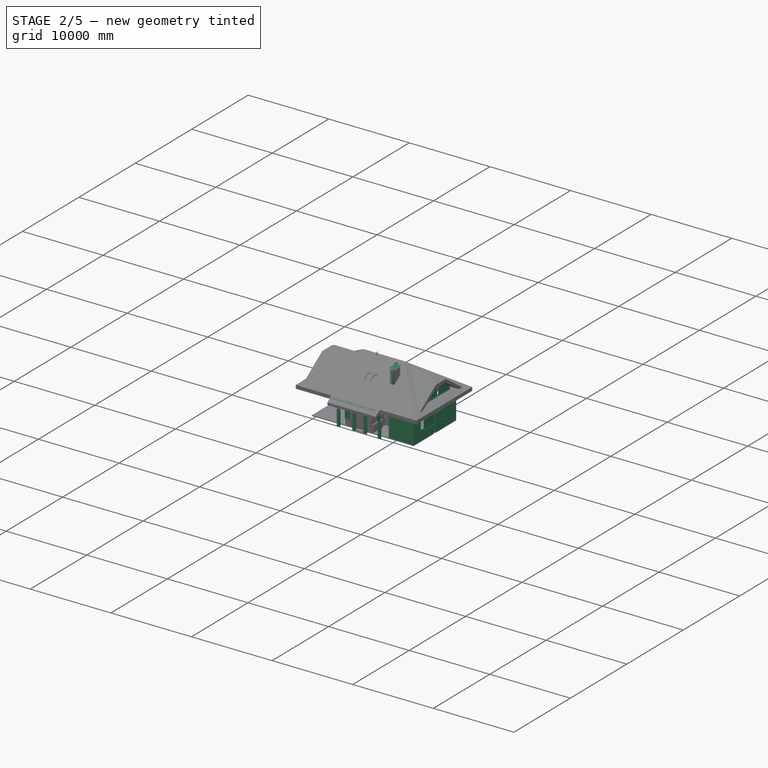
[diagram: stage 2 of 5 — iso view after this stage's code; geometry added in this stage tinted green]
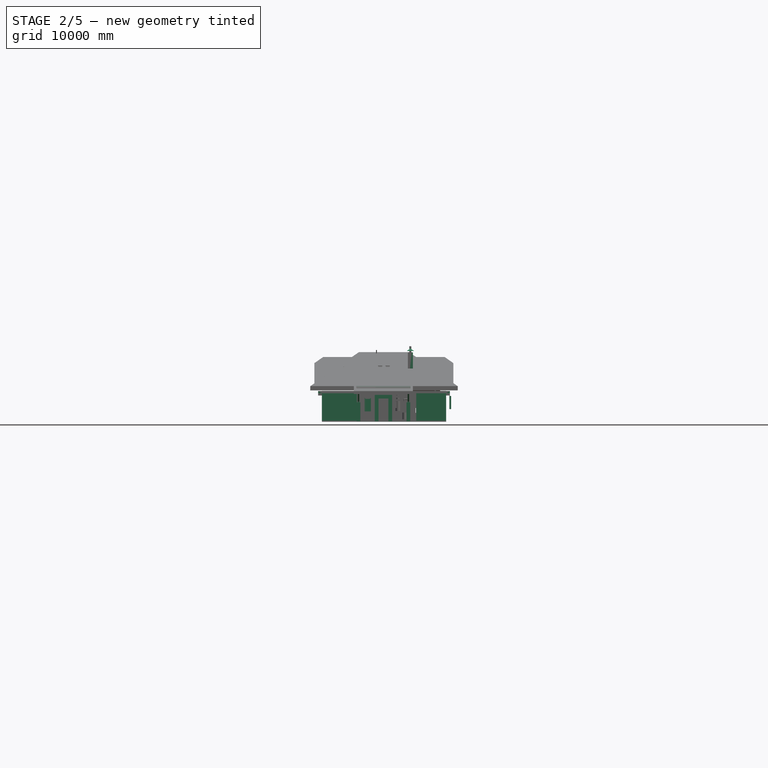
[diagram: stage 2 of 5 — front view after this stage's code; geometry added in this stage tinted green]
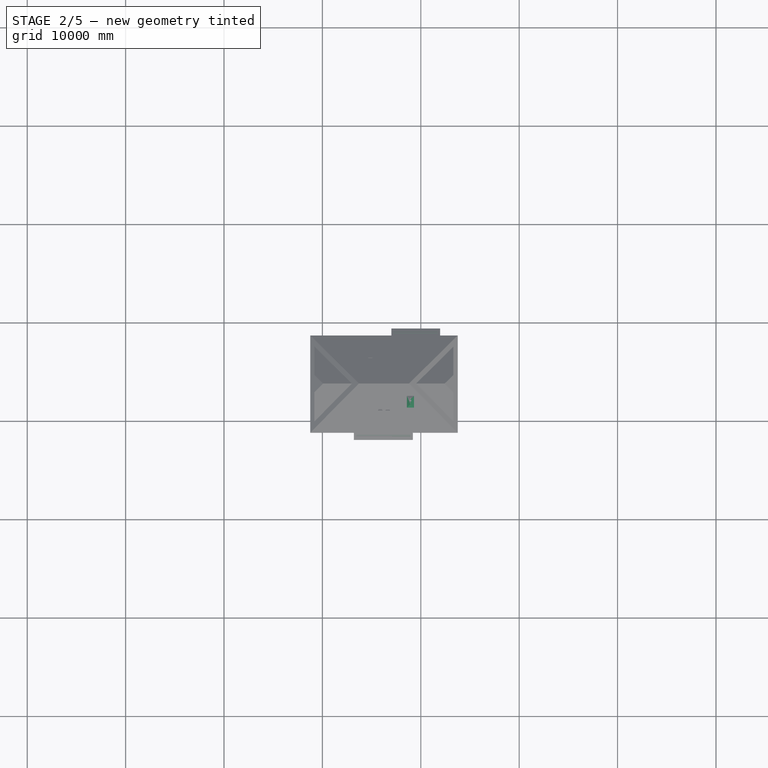
[diagram: stage 2 of 5 — top view after this stage's code; geometry added in this stage tinted green]
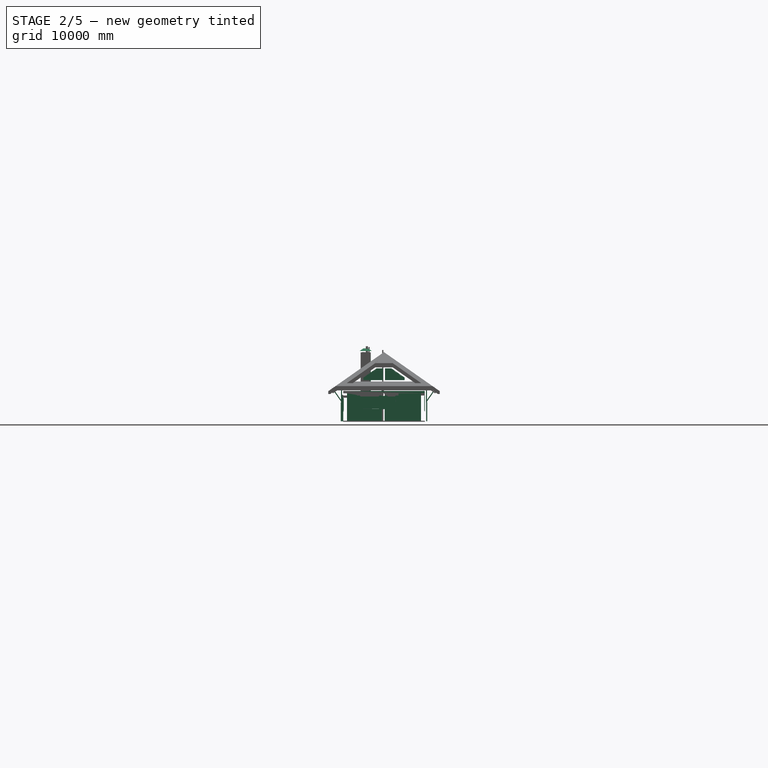
[diagram: stage 2 of 5 — right view after this stage's code; geometry added in this stage tinted green]
FEATURE [Part::Part2DObjectPython] Rectangle2788  label="вн_контур"  # Draft 2D object (typed FeaturePython)
  ChamferSize = 0
  Columns = 1
  FilletRadius = 0
  Height = 7480
  Length = 12580
  MakeFace = false
  Placement = pos=(-30,-10,0) rot=(0,0,1;0rad)
  Rows = 1
FEATURE [Part::Part2DObjectPython] Rectangle2792  # Draft 2D object (typed FeaturePython)
  ChamferSize = 0
  Columns = 1
  FilletRadius = 0
  Height = 600
  Length = 600
  MakeFace = false
  Placement = pos=(10150,-10,0) rot=(0,0,1;0rad)
  Rows = 1
FEATURE [Part::Part2DObjectPython] Rectangle2795  label="Д90-002"  # Draft 2D object (typed FeaturePython)
  ChamferSize = 0
  Columns = 1
  FilletRadius = 0
  Height = 290
  Length = 900
  MakeFace = true
  Placement = pos=(3800,3520,0) rot=(0,0,1;0rad)
  Rows = 1
FEATURE [Part::FeaturePython] Structure023  label="Проём-Д90-004"  # Arch/BIM 172 (typed FeaturePython)
  Base = -> Rectangle2795
  FaceMaker = 0
  Height = 2350
  HorizontalArea = 261000
  IfcType = 172
  Length = 0
  MoveBase = false
  MoveWithHost = false
  Nodes = (2) [(8900,5350,0),(8900,5350,2180)]
  NodesOffset = 0
  Normal = (0,0,0)
  PerimeterLength = 2380
  Placement = pos=(0,0,-200) rot=(0,0,1;0rad)
  PredefinedType = 0
  VerticalArea = 5.593e+06
  Width = 100
FEATURE [Part::Part2DObjectPython] Rectangle2807  label="Д90-001"  # Draft 2D object (typed FeaturePython)
  ChamferSize = 0
  Columns = 1
  FilletRadius = 0
  Height = 290
  Length = 900
  MakeFace = true
  Placement = pos=(6650,3810,0) rot=(0,0,1;3.14159rad)
  Rows = 1
FEATURE [Part::FeaturePython] Structure020  label="Проём-Д80-004"  # Arch/BIM 172 (typed FeaturePython)
  Base = -> Rectangle2807
  FaceMaker = 0
  Height = 2350
  HorizontalArea = 261000
  IfcType = 172
  Length = 0
  MoveBase = false
  MoveWithHost = false
  Nodes = (2) [(650,-4000,0),(650,-4000,2250)]
  NodesOffset = 0
  Normal = (0,0,0)
  PerimeterLength = 2380
  Placement = pos=(0,0,-200) rot=(0,0,1;0rad)
  PredefinedType = 0
  VerticalArea = 5.593e+06
  Width = 100
FEATURE [Part::Box] Box3209  label="ДШ_001"
  AttacherType = Attacher::AttachEngine3D
  Height = 500
  Length = 500
  Placement = pos=(10740,90,450) rot=(0,0,1;1.5708rad)
  Width = 580
FEATURE [Part::Part2DObjectPython] Rectangle016  label="Контур_по_блоку_ЛСР_38_шаг255"  # Draft 2D object (typed FeaturePython)
  Area = 0
  ChamferSize = 0
  Columns = 1
  FilletRadius = 0
  Height = 7520
  Length = 12620
  MakeFace = false
  Placement = pos=(-50,-30,0) rot=(0,0,1;0rad)
  Rows = 1
FEATURE [Part::Part2DObjectPython] Rectangle3075  label="ОК-200-003"  # Draft 2D object (typed FeaturePython)
  ChamferSize = 0
  Columns = 1
  FilletRadius = 0
  Height = 410
  Length = 2020
  MakeFace = true
  Placement = pos=(12550,3280,0) rot=(0,0,-1;1.5708rad)
  Rows = 1
FEATURE [Part::FeaturePython] Structure304  label="Проём-ОК-135-150-005"  # Arch/BIM 172 (typed FeaturePython)
  Base = -> Rectangle3075
  FaceMaker = 0
  Height = 1386
  HorizontalArea = 828200
  IfcType = 172
  Length = 0
  MoveBase = false
  MoveWithHost = false
  Nodes = (2) [(4745,-225,0),(4745,-225,1350)]
  NodesOffset = 0
  Normal = (0,0,0)
  PerimeterLength = 4860
  Placement = pos=(0,0,1186) rot=(0,0,1;0rad)
  PredefinedType = 0
  VerticalArea = 6735960
  Width = 100
FEATURE [Part::Part2DObjectPython] Rectangle3077  label="ОК-880-002"  # Draft 2D object (typed FeaturePython)
  ChamferSize = 0
  Columns = 1
  FilletRadius = 0
  Height = 410
  Length = 888
  MakeFace = true
  Placement = pos=(12550,4933,0) rot=(0,0,-1;1.5708rad)
  Rows = 1
FEATURE [Part::FeaturePython] Structure306  label="Проём-ОК-90-60-002"  # Arch/BIM 172 (typed FeaturePython)
  Base = -> Rectangle3077
  FaceMaker = 0
  Height = 1386
  HorizontalArea = 364080
  IfcType = 172
  Length = 0
  MoveBase = false
  MoveWithHost = false
  Nodes = (2) [(1035,250,0),(1035,250,600)]
  NodesOffset = 0
  Normal = (0,0,0)
  PerimeterLength = 2596
  Placement = pos=(0,0,1186) rot=(0,0,1;0rad)
  PredefinedType = 0
  VerticalArea = 3.59806e+06
  Width = 100
FEATURE [Part::Part2DObjectPython] Rectangle3079  label="ОК-200-002"  # Draft 2D object (typed FeaturePython)
  ChamferSize = 0
  Columns = 1
  FilletRadius = 0
  Height = 410
  Length = 2024
  MakeFace = true
  Placement = pos=(8503,7470,0) rot=(0,0,1;0rad)
  Rows = 1
FEATURE [Part::FeaturePython] Structure308  label="Проём-ОК-90-60-003"  # Arch/BIM 172 (typed FeaturePython)
  Base = -> Rectangle3079
  FaceMaker = 0
  Height = 2772
  HorizontalArea = 829840
  IfcType = 172
  Length = 0
  MoveBase = false
  MoveWithHost = false
  Nodes = (2) [(1035,250,0),(1035,250,600)]
  NodesOffset = 0
  Normal = (0,0,0)
  PerimeterLength = 4868
  Placement = pos=(0,0,-200) rot=(0,0,1;0rad)
  PredefinedType = 0
  VerticalArea = 13494096
  Width = 100
FEATURE [Part::Part2DObjectPython] Rectangle3086  label="ОК-200-04"  # Draft 2D object (typed FeaturePython)
  ChamferSize = 0
  Columns = 1
  FilletRadius = 0
  Height = 410
  Length = 2024
  MakeFace = true
  Placement = pos=(1985,7470,0) rot=(0,0,1;0rad)
  Rows = 1
FEATURE [Part::FeaturePython] Structure315  label="Проём-ОК-90-60-006"  # Arch/BIM 172 (typed FeaturePython)
  Base = -> Rectangle3086
  FaceMaker = 0
  Height = 1617
  HorizontalArea = 829840
  IfcType = 172
  Length = 0
  MoveBase = false
  MoveWithHost = false
  Nodes = (2) [(1035,250,0),(1035,250,600)]
  NodesOffset = 0
  Normal = (0,0,0)
  PerimeterLength = 4868
  Placement = pos=(0,0,955) rot=(0,0,1;0rad)
  PredefinedType = 0
  VerticalArea = 7871556
  Width = 100
FEATURE [Part::Part2DObjectPython] Rectangle3095  label="ПР350-001"  # Draft 2D object (typed FeaturePython)
  ChamferSize = 0
  Columns = 1
  FilletRadius = 0
  Height = 3500
  Length = 290
  MakeFace = true
  Placement = pos=(11920,3520,0) rot=(0,0,1;1.5708rad)
  Rows = 1
FEATURE [Part::FeaturePython] Structure317  label="Проём-ПР370"  # Arch/BIM 172 (typed FeaturePython)
  Base = -> Rectangle3095
  FaceMaker = 0
  Height = 2600
  HorizontalArea = 1.015e+06
  IfcType = 172
  Length = 0
  MoveBase = false
  MoveWithHost = false
  Nodes = (2) [(8200,3800,0),(8200,3800,2250)]
  NodesOffset = 0
  Normal = (0,0,0)
  PerimeterLength = 7580
  Placement = pos=(0,0,-200) rot=(0,0,1;0rad)
  PredefinedType = 0
  VerticalArea = 19708000
  Width = 100
FEATURE [Part::FeaturePython] Array063  # Draft array (typed FeaturePython)
  Angle = 360
  ArrayType = 0
  Axis = (0,0,1)
  Base = -> Rectangle3159
  Center = (0,0,0)
  Count = 11
  ExpandArray = false
  Fuse = false
  IntervalAxis = (0,0,0)
  IntervalX = (100,0,0)
  IntervalY = (0,-230,0)
  IntervalZ = (0,0,100)
  NumberCircles = 3
  NumberPolar = 5
  NumberX = 1
  NumberY = 11
  NumberZ = 1
  PlacementList = 11 placements: arithmetic series from (6940,5880,0) step (0,-230,0) to (6940,3580,0)
  RadialDistance = 50
  ScaleList = (11) [(1,1,1),(1,1,1),(1,1,1),(1,1,1),(1,1,1),(1,1,1),(1,1,1),(1,1,1),(1,1,1),(1,1,1),(1,1,1)]
  Symmetry = 1
  TangentialDistance = 25
FEATURE [Part::Part2DObjectPython] Line1391  # Draft 2D object (typed FeaturePython)
  ChamferSize = 0
  Closed = true
  End = (6930,5370,0)
  FilletRadius = 0
  Length = 920
  MakeFace = false
  Placement = pos=(10330,5365,0) rot=(0,0,-1;1.5708rad)
  Points = (2) [(-5,-2480,0),(-5,-3400,0)]
  Start = (7850,5370,0)
  Subdivisions = 0
FEATURE [Part::Part2DObjectPython] Line1392  # Draft 2D object (typed FeaturePython)
  Area = 0
  ChamferSize = 0
  Closed = true
  End = (7310,-10,0)
  FilletRadius = 0
  Length = 3120
  MakeFace = true
  Placement = pos=(4210,-10,0) rot=(0,0,1;0rad)
  Points = (2) [(-20,7.72005e-12,0),(3100,7.72005e-12,0)]
  Start = (4190,-10,0)
  Subdivisions = 0
FEATURE [Part::Part2DObjectPython] Line1393  # Draft 2D object (typed FeaturePython)
  Area = 0
  ChamferSize = 0
  Closed = true
  End = (9460,-10,0)
  FilletRadius = 0
  Length = 2070
  MakeFace = true
  Placement = pos=(7400,-10,0) rot=(0,0,1;0rad)
  Points = (2) [(-10,-4.83169e-13,0),(2060,1.2502e-11,0)]
  Start = (7390,-10,0)
  Subdivisions = 0
FEATURE [Part::Part2DObjectPython] Wire795  # Draft 2D object (typed FeaturePython)
  Area = 0
  ChamferSize = 0
  Closed = false
  End = (3590,3520,0)
  FilletRadius = 0
  Length = 15500
  MakeFace = true
  Placement = pos=(9500,20,0) rot=(0,0,1;0rad)
  Points = (4) [(40,-30,0),(3050,-30,0),(3050,3500,0),(-5910,3500,0)]
  Start = (9540,-10,0)
  Subdivisions = 0
FEATURE [Part::Part2DObjectPython] Wire796  # Draft 2D object (typed FeaturePython)
  Area = 0
  ChamferSize = 0
  Closed = false
  End = (6940,7470,0)
  FilletRadius = 0
  Length = 13880
  MakeFace = true
  Placement = pos=(7940,3810,0) rot=(0,0,1;0rad)
  Points = (4) [(0,0,0),(4610,-4.54747e-13,0),(4610,3660,0),(-1000,3660,0)]
  Start = (7940,3810,0)
  Subdivisions = 0
FEATURE [Part::Part2DObjectPython] Wire797  # Draft 2D object (typed FeaturePython)
  Area = 0
  ChamferSize = 0
  Closed = false
  End = (4830,3810,0)
  FilletRadius = 0
  Length = 13380
  MakeFace = true
  Placement = pos=(4820,7440,0) rot=(0,0,1;0rad)
  Points = (4) [(10,30,0),(-4850,30,0),(-4850,-3630,0),(10,-3630,0)]
  Start = (4830,7470,0)
  Subdivisions = 0
FEATURE [Part::Part2DObjectPython] Arc114  label="Arc115"  # Draft 2D object (typed FeaturePython)
  Area = 0
  FirstAngle = 90
  LastAngle = 180
  MakeFace = true
  Placement = pos=(4650,3810,0) rot=(0,0,1;0rad)
  Radius = 800
FEATURE [Part::Part2DObjectPython] Line1394  # Draft 2D object (typed FeaturePython)
  Area = 0
  ChamferSize = 0
  Closed = false
  End = (4650,3810,0)
  FilletRadius = 0
  Length = 800
  MakeFace = true
  Placement = pos=(4650,4610,0) rot=(0,0,1;0rad)
  Points = (2) [(0,0,0),(0,-800,0)]
  Start = (4650,4610,0)
  Subdivisions = 0
FEATURE [Part::Part2DObjectPython] Arc115  label="Arc116"  # Draft 2D object (typed FeaturePython)
  Area = 0
  FirstAngle = -180
  LastAngle = -90
  MakeFace = true
  Placement = pos=(3500,3350,0) rot=(0,0,1;0rad)
  Radius = 800
FEATURE [Part::Part2DObjectPython] Line1395  # Draft 2D object (typed FeaturePython)
  Area = 0
  ChamferSize = 0
  Closed = false
  End = (3500,3350,0)
  FilletRadius = 0
  Length = 800
  MakeFace = true
  Placement = pos=(2700,3350,0) rot=(0,0,1;0rad)
  Points = (2) [(0,0,0),(800,0,0)]
  Start = (2700,3350,0)
  Subdivisions = 0
FEATURE [Part::Part2DObjectPython] Arc116  label="Arc117"  # Draft 2D object (typed FeaturePython)
  Area = 0
  FirstAngle = 180
  LastAngle = 270
  MakeFace = true
  Placement = pos=(6600,2270,0) rot=(0,0,1;0rad)
  Radius = 800
FEATURE [Part::Part2DObjectPython] Line1396  # Draft 2D object (typed FeaturePython)
  Area = 0
  ChamferSize = 0
  Closed = false
  End = (6600,2270,0)
  FilletRadius = 0
  Length = 800
  MakeFace = true
  Placement = pos=(6600,1470,0) rot=(0,0,1;0rad)
  Points = (2) [(0,0,0),(0,800,0)]
  Start = (6600,1470,0)
  Subdivisions = 0
FEATURE [Sketcher::SketchObject] Sketch304
  FullyConstrained = true
  Placement = pos=(4295,-420,955) rot=(1,0,0;1.5708rad)
  sketch-geometry (16):
    g0: LineSegment StartX=0 StartY=0 StartZ=0 EndX=630 EndY=0 EndZ=0
    g1: LineSegment StartX=630 StartY=0 StartZ=0 EndX=630 EndY=1380 EndZ=0
    g2: LineSegment StartX=630 StartY=1380 StartZ=0 EndX=0 EndY=1380 EndZ=0
    g3: LineSegment StartX=0 StartY=1380 StartZ=0 EndX=0 EndY=0 EndZ=0
    g4: LineSegment StartX=50 StartY=50 StartZ=0 EndX=580 EndY=50 EndZ=0
    g5: LineSegment StartX=580 StartY=50 StartZ=0 EndX=580 EndY=1330 EndZ=0
    g6: LineSegment StartX=580 StartY=1330 StartZ=0 EndX=50 EndY=1330 EndZ=0
    g7: LineSegment StartX=50 StartY=1330 StartZ=0 EndX=50 EndY=50 EndZ=0
    g8: LineSegment StartX=55 StartY=55 StartZ=0 EndX=575 EndY=55 EndZ=0
    g9: LineSegment StartX=575 StartY=55 StartZ=0 EndX=575 EndY=1325 EndZ=0
    g10: LineSegment StartX=575 StartY=1325 StartZ=0 EndX=55 EndY=1325 EndZ=0
    g11: LineSegment StartX=55 StartY=1325 StartZ=0 EndX=55 EndY=55 EndZ=0
    g12: LineSegment StartX=105 StartY=105 StartZ=0 EndX=525 EndY=105 EndZ=0
    g13: LineSegment StartX=525 StartY=105 StartZ=0 EndX=525 EndY=1275 EndZ=0
    g14: LineSegment StartX=525 StartY=1275 StartZ=0 EndX=105 EndY=1275 EndZ=0
    g15: LineSegment StartX=105 StartY=1275 StartZ=0 EndX=105 EndY=105 EndZ=0
  constraints (47):
    c: Coincident(g0,g1)
    c: Coincident(g1,g2)
    c: Coincident(g2,g3)
    c: Coincident(g3,g0)
    c: Horizontal(g0)
    c: Horizontal(g2)
    c: Vertical(g1)
    c: Vertical(g3)
    c: Coincident(g4,g5)
    c: Coincident(g5,g6)
    c: Coincident(g6,g7)
    c: Coincident(g7,g4)
    c: Horizontal(g4)
    c: Horizontal(g6)
    c: Vertical(g5)
    c: Vertical(g7)
    c: DistanceY(g1) = 1380  'Height'
    c: DistanceX(g0) = 630  'Width'
    c: DistanceY(g6,g2) = 50  'Frame1'
    c: DistanceX(g2,g6) = 50  'Frame2'
    c: DistanceX(g4,g0) = 50  'Frame3'
    c: DistanceY(g0,g4) = 50  'Frame4'
    c: Coincident(g0,g-1)
    c: Coincident(g8,g9)
    c: Coincident(g9,g10)
    c: Coincident(g10,g11)
    c: Coincident(g11,g8)
    c: Horizontal(g8)
    c: Horizontal(g10)
    c: Vertical(g9)
    c: Vertical(g11)
    c: Coincident(g12,g13)
    c: Coincident(g13,g14)
    c: Coincident(g14,g15)
    c: Coincident(g15,g12)
    c: Horizontal(g12)
    c: Horizontal(g14)
    c: Vertical(g13)
    c: Vertical(g15)
    c: DistanceX(g8,g12) = 50  'Frame5'
    c: DistanceY(g8,g12) = 50  'Frame6'
    c: DistanceX(g14,g10) = 50  'Frame8'
    c: DistanceY(g14,g10) = 50  'Frame7'
    c: DistanceX(g4,g8) = 5
    c: DistanceY(g4,g8) = 5
    c: DistanceX(g10,g6) = 5
    c: DistanceY(g10,g6) = 5
FEATURE [Part::FeaturePython] Window047  label="ОК-63-002"  # Arch/BIM 170 (typed FeaturePython)
  Area = 869400
  Base = -> Sketch304
  Frame = 50
  Height = 1380
  HoleDepth = 0
  HoleWire = 0
  HorizontalArea = 0
  IfcData = attributes={"OverallHeight": {"value": 1380.0}, "OverallWidth": {"value": 630.0}}
  IfcType = 170
  LouvreSpacing = 0
  LouvreWidth = 0
  MoveBase = false
  MoveWithHost = true
  Normal = (0,1,-2e-16)
  Opening = 0
  OverallHeight = 1380
  OverallWidth = 630
  PartitioningType = 0
  PerimeterLength = 0
  PredefinedType = 0
  Preset = 2
  SymbolElevation = false
  SymbolPlan = false
  VerticalArea = 0
  Width = 630
  WindowParts = OuterFrame | Frame | Wire0,Wire1 | 0.0+V | 0.00+V | InnerFrame | Frame | Wire2,Wire3 | 0.00+V | 0.0+V | InnerGlass | Glass panel | Wire3 | 10.0 | 50.0+V
  expr: OverallWidth = .Width.Value
  expr: OverallHeight = .Height.Value
FEATURE [Sketcher::SketchObject] Sketch305
  FullyConstrained = true
  Placement = pos=(4820,6440,0) rot=(0.57735,0.57735,0.57735;2.0944rad)
  sketch-geometry (8):
    g0: LineSegment StartX=0 StartY=0 StartZ=0 EndX=900 EndY=0 EndZ=0
    g1: LineSegment StartX=900 StartY=0 StartZ=0 EndX=900 EndY=2150 EndZ=0
    g2: LineSegment StartX=900 StartY=2150 StartZ=0 EndX=0 EndY=2150 EndZ=0
    g3: LineSegment StartX=0 StartY=2150 StartZ=0 EndX=0 EndY=0 EndZ=0
    g4: LineSegment StartX=50 StartY=0 StartZ=0 EndX=850 EndY=0 EndZ=0
    g5: LineSegment StartX=850 StartY=0 StartZ=0 EndX=850 EndY=2100 EndZ=0
    g6: LineSegment StartX=850 StartY=2100 StartZ=0 EndX=50 EndY=2100 EndZ=0
    g7: LineSegment StartX=50 StartY=2100 StartZ=0 EndX=50 EndY=0 EndZ=0
  constraints (23):
    c: Coincident(g0,g1)
    c: Coincident(g1,g2)
    c: Coincident(g2,g3)
    c: Coincident(g3,g0)
    c: Horizontal(g0)
    c: Horizontal(g2)
    c: Vertical(g1)
    c: Vertical(g3)
    c: Coincident(g4,g5)
    c: Coincident(g5,g6)
    c: Coincident(g6,g7)
    c: Coincident(g7,g4)
    c: Horizontal(g4)
    c: Horizontal(g6)
    c: Vertical(g5)
    c: Vertical(g7)
    c: DistanceY(g1) = 2150  'Height'
    c: DistanceX(g0) = 900  'Width'
    c: DistanceY(g6,g2) = 50  'Frame1'
    c: DistanceX(g2,g6) = 50  'Frame2'
    c: DistanceX(g4,g0) = 50  'Frame3'
    c: DistanceY(g0,g4) = 0
    c: Coincident(g0,g-1)
FEATURE [Part::FeaturePython] Window048  label="Д-90-001"  # Arch/BIM 41 (typed FeaturePython)
  Area = 1935000
  Base = -> Sketch305
  Frame = 50
  Height = 2150
  HoleDepth = 0
  HoleWire = 0
  HorizontalArea = 0
  IfcData = attributes={"OverallHeight": {"value": 2150.0}, "OverallWidth": {"value": 900.0}}
  IfcType = 41
  LouvreSpacing = 0
  LouvreWidth = 0
  MoveBase = false
  MoveWithHost = true
  Normal = (1,0,0)
  Opening = 0
  OperationType = 0
  OverallHeight = 2150
  OverallWidth = 900
  PerimeterLength = 0
  PredefinedType = 0
  Preset = 6
  SymbolElevation = false
  SymbolPlan = false
  VerticalArea = 0
  Width = 900
  WindowParts = OuterFrame | Frame | Wire0,Wire1 | 0.0+V | 0.00+V | Door | Solid panel | Wire1 | 50.0 | 0.0+V
  expr: OverallWidth = .Width.Value
  expr: OverallHeight = .Height.Value
FEATURE [Sketcher::SketchObject] Sketch308
  FullyConstrained = true
  Placement = pos=(12960,4049,1190) rot=(0.57735,0.57735,0.57735;2.0944rad)
  sketch-geometry (16):
    g0: LineSegment StartX=0 StartY=0 StartZ=0 EndX=880 EndY=0 EndZ=0
    g1: LineSegment StartX=880 StartY=0 StartZ=0 EndX=880 EndY=1380 EndZ=0
    g2: LineSegment StartX=880 StartY=1380 StartZ=0 EndX=0 EndY=1380 EndZ=0
    g3: LineSegment StartX=0 StartY=1380 StartZ=0 EndX=0 EndY=0 EndZ=0
    g4: LineSegment StartX=50 StartY=50 StartZ=0 EndX=830 EndY=50 EndZ=0
    g5: LineSegment StartX=830 StartY=50 StartZ=0 EndX=830 EndY=1330 EndZ=0
    g6: LineSegment StartX=830 StartY=1330 StartZ=0 EndX=50 EndY=1330 EndZ=0
    g7: LineSegment StartX=50 StartY=1330 StartZ=0 EndX=50 EndY=50 EndZ=0
    g8: LineSegment StartX=55 StartY=55 StartZ=0 EndX=825 EndY=55 EndZ=0
    g9: LineSegment StartX=825 StartY=55 StartZ=0 EndX=825 EndY=1325 EndZ=0
    g10: LineSegment StartX=825 StartY=1325 StartZ=0 EndX=55 EndY=1325 EndZ=0
    g11: LineSegment StartX=55 StartY=1325 StartZ=0 EndX=55 EndY=55 EndZ=0
    g12: LineSegment StartX=105 StartY=105 StartZ=0 EndX=775 EndY=105 EndZ=0
    g13: LineSegment StartX=775 StartY=105 StartZ=0 EndX=775 EndY=1275 EndZ=0
    g14: LineSegment StartX=775 StartY=1275 StartZ=0 EndX=105 EndY=1275 EndZ=0
    g15: LineSegment StartX=105 StartY=1275 StartZ=0 EndX=105 EndY=105 EndZ=0
  constraints (47):
    c: Coincident(g0,g1)
    c: Coincident(g1,g2)
    c: Coincident(g2,g3)
    c: Coincident(g3,g0)
    c: Horizontal(g0)
    c: Horizontal(g2)
    c: Vertical(g1)
    c: Vertical(g3)
    c: Coincident(g4,g5)
    c: Coincident(g5,g6)
    c: Coincident(g6,g7)
    c: Coincident(g7,g4)
    c: Horizontal(g4)
    c: Horizontal(g6)
    c: Vertical(g5)
    c: Vertical(g7)
    c: DistanceY(g1) = 1380  'Height'
    c: DistanceX(g0) = 880  'Width'
    c: DistanceY(g6,g2) = 50  'Frame1'
    c: DistanceX(g2,g6) = 50  'Frame2'
    c: DistanceX(g4,g0) = 50  'Frame3'
    c: DistanceY(g0,g4) = 50  'Frame4'
    c: Coincident(g0,g-1)
    c: Coincident(g8,g9)
    c: Coincident(g9,g10)
    c: Coincident(g10,g11)
    c: Coincident(g11,g8)
    c: Horizontal(g8)
    c: Horizontal(g10)
    c: Vertical(g9)
    c: Vertical(g11)
    c: Coincident(g12,g13)
    c: Coincident(g13,g14)
    c: Coincident(g14,g15)
    c: Coincident(g15,g12)
    c: Horizontal(g12)
    c: Horizontal(g14)
    c: Vertical(g13)
    c: Vertical(g15)
    c: DistanceX(g8,g12) = 50  'Frame5'
    c: DistanceY(g8,g12) = 50  'Frame6'
    c: DistanceX(g14,g10) = 50  'Frame8'
    c: DistanceY(g14,g10) = 50  'Frame7'
    c: DistanceX(g4,g8) = 5
    c: DistanceY(g4,g8) = 5
    c: DistanceX(g10,g6) = 5
    c: DistanceY(g10,g6) = 5
FEATURE [Part::FeaturePython] Window051  label="ОК-880-003"  # Arch/BIM 170 (typed FeaturePython)
  Area = 1214400
  Base = -> Sketch308
  Frame = 50
  Height = 1380
  HoleDepth = 0
  HoleWire = 0
  HorizontalArea = 0
  IfcData = attributes={"OverallHeight": {"value": 1380.0}, "OverallWidth": {"value": 880.0}}
  IfcType = 170
  LouvreSpacing = 0
  LouvreWidth = 0
  MoveBase = false
  MoveWithHost = true
  Normal = (-1,0,0)
  Opening = 0
  OverallHeight = 1380
  OverallWidth = 880
  PartitioningType = 0
  PerimeterLength = 0
  PredefinedType = 0
  Preset = 2
  SymbolElevation = false
  SymbolPlan = false
  VerticalArea = 0
  Width = 880
  WindowParts = OuterFrame | Frame | Wire0,Wire1 | 0.0+V | 0.00+V | InnerFrame | Frame | Wire2,Wire3 | 0.00+V | 0.0+V | InnerGlass | Glass panel | Wire3 | 10.0 | 50.0+V
  expr: OverallHeight = .Height.Value
  expr: OverallWidth = .Width.Value
FEATURE [Sketcher::SketchObject] Sketch309
  FullyConstrained = true
  Placement = pos=(9550,770,0) rot=(0.57735,0.57735,0.57735;2.0944rad)
  sketch-geometry (8):
    g0: LineSegment StartX=0 StartY=0 StartZ=0 EndX=900 EndY=0 EndZ=0
    g1: LineSegment StartX=900 StartY=0 StartZ=0 EndX=900 EndY=2150 EndZ=0
    g2: LineSegment StartX=900 StartY=2150 StartZ=0 EndX=0 EndY=2150 EndZ=0
    g3: LineSegment StartX=0 StartY=2150 StartZ=0 EndX=0 EndY=0 EndZ=0
    g4: LineSegment StartX=50 StartY=0 StartZ=0 EndX=850 EndY=0 EndZ=0
    g5: LineSegment StartX=850 StartY=0 StartZ=0 EndX=850 EndY=2100 EndZ=0
    g6: LineSegment StartX=850 StartY=2100 StartZ=0 EndX=50 EndY=2100 EndZ=0
    g7: LineSegment StartX=50 StartY=2100 StartZ=0 EndX=50 EndY=0 EndZ=0
  constraints (23):
    c: Coincident(g0,g1)
    c: Coincident(g1,g2)
    c: Coincident(g2,g3)
    c: Coincident(g3,g0)
    c: Horizontal(g0)
    c: Horizontal(g2)
    c: Vertical(g1)
    c: Vertical(g3)
    c: Coincident(g4,g5)
    c: Coincident(g5,g6)
    c: Coincident(g6,g7)
    c: Coincident(g7,g4)
    c: Horizontal(g4)
    c: Horizontal(g6)
    c: Vertical(g5)
    c: Vertical(g7)
    c: DistanceY(g1) = 2150  'Height'
    c: DistanceX(g0) = 900  'Width'
    c: DistanceY(g6,g2) = 50  'Frame1'
    c: DistanceX(g2,g6) = 50  'Frame2'
    c: DistanceX(g4,g0) = 50  'Frame3'
    c: DistanceY(g0,g4) = 0
    c: Coincident(g0,g-1)
FEATURE [Part::FeaturePython] Window052  label="Д-90-005"  # Arch/BIM 41 (typed FeaturePython)
  Area = 1935000
  Base = -> Sketch309
  Frame = 50
  Height = 2150
  HoleDepth = 0
  HoleWire = 0
  HorizontalArea = 0
  IfcData = attributes={"OverallHeight": {"value": 2150.0}, "OverallWidth": {"value": 900.0}}
  IfcType = 41
  LouvreSpacing = 0
  LouvreWidth = 0
  MoveBase = false
  MoveWithHost = true
  Normal = (-1,0,0)
  Opening = 0
  OperationType = 0
  OverallHeight = 2150
  OverallWidth = 900
  PerimeterLength = 0
  PredefinedType = 0
  Preset = 6
  SymbolElevation = false
  SymbolPlan = false
  VerticalArea = 0
  Width = 900
  WindowParts = OuterFrame | Frame | Wire0,Wire1 | 0.0+V | 0.00+V | Door | Solid panel | Wire1 | 50.0 | 0.0+V
  expr: OverallWidth = .Width.Value
  expr: OverallHeight = .Height.Value
FEATURE [Part::Part2DObjectPython] Arc118  label="Arc119"  # Draft 2D object (typed FeaturePython)
  Area = 0
  FirstAngle = 0
  LastAngle = 90
  MakeFace = true
  Placement = pos=(9550,820,0) rot=(0,0,1;0rad)
  Radius = 800
FEATURE [Part::Part2DObjectPython] Line1398  # Draft 2D object (typed FeaturePython)
  Area = 0
  ChamferSize = 0
  Closed = false
  End = (9550,820,0)
  FilletRadius = 0
  Length = 800
  MakeFace = true
  Placement = pos=(10350,820,0) rot=(0,0,1;0rad)
  Points = (2) [(0,0,0),(-800,5.68434e-13,0)]
  Start = (10350,820,0)
  Subdivisions = 0
FEATURE [Sketcher::SketchObject] Sketch310
  FullyConstrained = true
  Placement = pos=(6830,3810,0) rot=(0.57735,0.57735,0.57735;2.0944rad)
  sketch-geometry (8):
    g0: LineSegment StartX=0 StartY=-1.137e-13 StartZ=0 EndX=900 EndY=-1.137e-13 EndZ=0
    g1: LineSegment StartX=900 StartY=-1.137e-13 StartZ=0 EndX=900 EndY=2000 EndZ=0
    g2: LineSegment StartX=900 StartY=2000 StartZ=0 EndX=0 EndY=2000 EndZ=0
    g3: LineSegment StartX=0 StartY=2000 StartZ=0 EndX=0 EndY=-2.274e-13 EndZ=0
    g4: LineSegment StartX=50 StartY=-8.53e-14 StartZ=0 EndX=850 EndY=-8.53e-14 EndZ=0
    g5: LineSegment StartX=850 StartY=-8.53e-14 StartZ=0 EndX=850 EndY=1950 EndZ=0
    g6: LineSegment StartX=850 StartY=1950 StartZ=0 EndX=50 EndY=1950 EndZ=0
    g7: LineSegment StartX=50 StartY=1950 StartZ=0 EndX=50 EndY=0 EndZ=0
  constraints (23):
    c: Coincident(g0,g1)
    c: Coincident(g1,g2)
    c: Coincident(g2,g3)
    c: Coincident(g3,g0)
    c: Horizontal(g0)
    c: Horizontal(g2)
    c: Vertical(g1)
    c: Vertical(g3)
    c: Coincident(g4,g5)
    c: Coincident(g5,g6)
    c: Coincident(g6,g7)
    c: Coincident(g7,g4)
    c: Horizontal(g4)
    c: Horizontal(g6)
    c: Vertical(g5)
    c: Vertical(g7)
    c: DistanceY(g1) = 2000  'Height'
    c: DistanceX(g0) = 900  'Width'
    c: DistanceY(g6,g2) = 50  'Frame1'
    c: DistanceX(g2,g6) = 50  'Frame2'
    c: DistanceX(g4,g0) = 50  'Frame3'
    c: DistanceY(g0,g4) = 0
    c: Coincident(g0,g-1)
FEATURE [Part::FeaturePython] Window053  label="Д-90-20-001 книжка"  # Arch/BIM 41 (typed FeaturePython)
  Area = 1800000
  Base = -> Sketch310
  Frame = 50
  Height = 2000
  HoleDepth = 0
  HoleWire = 0
  HorizontalArea = 0
  IfcData = attributes={"OverallHeight": {"value": 2000.0}, "OverallWidth": {"value": 900.0}}
  IfcType = 41
  LouvreSpacing = 0
  LouvreWidth = 0
  MoveBase = false
  MoveWithHost = true
  Normal = (1,0,0)
  Opening = 0
  OperationType = 0
  OverallHeight = 2000
  OverallWidth = 900
  PerimeterLength = 0
  PredefinedType = 0
  Preset = 6
  SymbolElevation = false
  SymbolPlan = false
  VerticalArea = 0
  Width = 900
  WindowParts = OuterFrame | Frame | Wire0,Wire1 | 0.0+V | 0.00+V | Door | Solid panel | Wire1 | 50.0 | 0.0+V
  expr: OverallWidth = .Width.Value
  expr: OverallHeight = .Height.Value
FEATURE [Part::Part2DObjectPython] Line1399  # Draft 2D object (typed FeaturePython)
  Area = 0
  ChamferSize = 0
  Closed = false
  End = (5800,3665,0)
  FilletRadius = 0
  Length = 400
  MakeFace = true
  Placement = pos=(5800,4210,0) rot=(0,0,1;0rad)
  Points = (2) [(0,-145,0),(0,-545,0)]
  Start = (5800,4065,0)
  Subdivisions = 0
FEATURE [Part::Part2DObjectPython] Line1400  # Draft 2D object (typed FeaturePython)
  Area = 0
  ChamferSize = 0
  Closed = false
  End = (6600,3665,0)
  FilletRadius = 0
  Length = 400
  MakeFace = true
  Placement = pos=(6600,4210,0) rot=(0,0,1;0rad)
  Points = (2) [(0,-145,0),(0,-545,0)]
  Start = (6600,4065,0)
  Subdivisions = 0
FEATURE [Sketcher::SketchObject] Sketch311
  FullyConstrained = true
  Placement = pos=(5049,7880,970) rot=(1,0,0;1.5708rad)
  sketch-geometry (16):
    g0: LineSegment StartX=-3.6e-15 StartY=0 StartZ=0 EndX=880 EndY=0 EndZ=0
    g1: LineSegment StartX=880 StartY=0 StartZ=0 EndX=880 EndY=1600 EndZ=0
    g2: LineSegment StartX=880 StartY=1600 StartZ=0 EndX=0 EndY=1600 EndZ=0
    g3: LineSegment StartX=-3.6e-15 StartY=1600 StartZ=0 EndX=-3.6e-15 EndY=0 EndZ=0
    g4: LineSegment StartX=50 StartY=50 StartZ=0 EndX=830 EndY=50 EndZ=0
    g5: LineSegment StartX=830 StartY=50 StartZ=0 EndX=830 EndY=1550 EndZ=0
    g6: LineSegment StartX=830 StartY=1550 StartZ=0 EndX=50 EndY=1550 EndZ=0
    g7: LineSegment StartX=50 StartY=1550 StartZ=0 EndX=50 EndY=50 EndZ=0
    g8: LineSegment StartX=55 StartY=55 StartZ=0 EndX=825 EndY=55 EndZ=0
    g9: LineSegment StartX=825 StartY=55 StartZ=0 EndX=825 EndY=1545 EndZ=0
    g10: LineSegment StartX=825 StartY=1545 StartZ=0 EndX=55 EndY=1545 EndZ=0
    g11: LineSegment StartX=55 StartY=1545 StartZ=0 EndX=55 EndY=55 EndZ=0
    g12: LineSegment StartX=105 StartY=105 StartZ=0 EndX=775 EndY=105 EndZ=0
    g13: LineSegment StartX=775 StartY=105 StartZ=0 EndX=775 EndY=1495 EndZ=0
    g14: LineSegment StartX=775 StartY=1495 StartZ=0 EndX=105 EndY=1495 EndZ=0
    g15: LineSegment StartX=105 StartY=1495 StartZ=0 EndX=105 EndY=105 EndZ=0
  constraints (47):
    c: Coincident(g0,g1)
    c: Coincident(g1,g2)
    c: Coincident(g2,g3)
    c: Coincident(g3,g0)
    c: Horizontal(g0)
    c: Horizontal(g2)
    c: Vertical(g1)
    c: Vertical(g3)
    c: Coincident(g4,g5)
    c: Coincident(g5,g6)
    c: Coincident(g6,g7)
    c: Coincident(g7,g4)
    c: Horizontal(g4)
    c: Horizontal(g6)
    c: Vertical(g5)
    c: Vertical(g7)
    c: DistanceY(g1) = 1600  'Height'
    c: DistanceX(g0) = 880  'Width'
    c: DistanceY(g6,g2) = 50  'Frame1'
    c: DistanceX(g2,g6) = 50  'Frame2'
    c: DistanceX(g4,g0) = 50  'Frame3'
    c: DistanceY(g0,g4) = 50  'Frame4'
    c: Coincident(g0,g-1)
    c: Coincident(g8,g9)
    c: Coincident(g9,g10)
    c: Coincident(g10,g11)
    c: Coincident(g11,g8)
    c: Horizontal(g8)
    c: Horizontal(g10)
    c: Vertical(g9)
    c: Vertical(g11)
    c: Coincident(g12,g13)
    c: Coincident(g13,g14)
    c: Coincident(g14,g15)
    c: Coincident(g15,g12)
    c: Horizontal(g12)
    c: Horizontal(g14)
    c: Vertical(g13)
    c: Vertical(g15)
    c: DistanceX(g8,g12) = 50  'Frame5'
    c: DistanceY(g8,g12) = 50  'Frame6'
    c: DistanceX(g14,g10) = 50  'Frame8'
    c: DistanceY(g14,g10) = 50  'Frame7'
    c: DistanceX(g4,g8) = 5
    c: DistanceY(g4,g8) = 5
    c: DistanceX(g10,g6) = 5
    c: DistanceY(g10,g6) = 5
FEATURE [Part::FeaturePython] Window054  label="ОК-880-001"  # Arch/BIM 170 (typed FeaturePython)
  Area = 1408000
  Base = -> Sketch311
  Frame = 50
  Height = 1600
  HoleDepth = 0
  HoleWire = 0
  HorizontalArea = 0
  IfcData = attributes={"OverallHeight": {"value": 1600.0}, "OverallWidth": {"value": 880.0}}
  IfcType = 170
  LouvreSpacing = 0
  LouvreWidth = 0
  MoveBase = false
  MoveWithHost = true
  Normal = (0,-1,0)
  Opening = 0
  OverallHeight = 1600
  OverallWidth = 880
  PartitioningType = 0
  PerimeterLength = 0
  PredefinedType = 0
  Preset = 2
  SymbolElevation = false
  SymbolPlan = false
  VerticalArea = 0
  Width = 880
  WindowParts = OuterFrame | Frame | Wire0,Wire1 | 0.0+V | 0.00+V | InnerFrame | Frame | Wire2,Wire3 | 0.00+V | 0.0+V | InnerGlass | Glass panel | Wire3 | 10.0 | 50.0+V
  expr: OverallWidth = .Width.Value
  expr: OverallHeight = .Height.Value
FEATURE [Part::Part2DObjectPython] Rectangle3176  # Draft 2D object (typed FeaturePython)
  Area = 0
  ChamferSize = 0
  Columns = 1
  FilletRadius = 0
  Height = 8280
  Length = 13380
  MakeFace = false
  Placement = pos=(-430,-410,0) rot=(0,0,1;0rad)
  Rows = 1
FEATURE [Part::Part2DObjectPython] Wire798  # Draft 2D object (typed FeaturePython)
  Area = 70000
  ChamferSize = 0
  Closed = true
  End = (5230,5130,0)
  FilletRadius = 0
  Length = 1082.84
  MakeFace = true
  Placement = pos=(4930,5130,0) rot=(0,0,1;0rad)
  Points = (5) [(0,9.09495e-13,0),(0,300,0),(100,300,0),(300,100,0),(300,9.09495e-13,0)]
  Start = (4930,5130,0)
  Subdivisions = 0
FEATURE [Part::FeaturePython] Structure344  label="Шкаф угловой для ванной 30х30"  # Arch/BIM 172 (typed FeaturePython)
  Base = -> Wire798
  FaceMaker = 0
  Height = 1800
  HorizontalArea = 70000
  IfcData = attributes={"GlobalId": {"name": "GlobalId", "type": "IfcGloballyUniqueId", "is_enum": false, "enum_values": []}, "Description": {"... (+484 chars omitted),+1 more (map truncated)
  IfcType = 172
  Length = 0
  MoveBase = false
  MoveWithHost = false
  Nodes = (2) [(5056.19,5256.19,0),(5056.19,5256.19,1800)]
  NodesOffset = 0
  Normal = (0,0,1)
  PerimeterLength = 1082.84
  Placement = pos=(0,0,100) rot=(0,0,1;0rad)
  PredefinedType = 0
  VerticalArea = 1.94912e+06
  Width = 100
FEATURE [Part::Part2DObjectPython] Circle109  label="Circle110"  # Draft 2D object (typed FeaturePython)
  Area = 0
  FirstAngle = 0
  LastAngle = 0
  MakeFace = false
  Placement = pos=(6500,7005,0) rot=(0,0,1;0rad)
  Radius = 100
FEATURE [Part::Part2DObjectPython] Line1409  # Draft 2D object (typed FeaturePython)
  Area = 0
  ChamferSize = 0
  Closed = false
  End = (6830,7005,0)
  FilletRadius = 0
  Length = 330
  MakeFace = false
  Placement = pos=(6500,7035,0) rot=(0,0,1;0rad)
  Points = (2) [(0,-30,0),(330,-30,0)]
  Start = (6500,7005,0)
  Subdivisions = 0
FEATURE [Part::Part2DObjectPython] Rectangle3189  # Draft 2D object (typed FeaturePython)
  Area = 0
  ChamferSize = 0
  Columns = 1
  FilletRadius = 0
  Height = 800
  Length = 40
  MakeFace = false
  Placement = pos=(6830,3870,0) rot=(0,0,1;0rad)
  Rows = 1
FEATURE [Part::Part2DObjectPython] Line1415  # Draft 2D object (typed FeaturePython)
  Area = 0
  ChamferSize = 0
  Closed = false
  End = (7236.37,3973.53,0)
  FilletRadius = 0
  Length = 400
  MakeFace = false
  Placement = pos=(6580,3890,0) rot=(0,0,1;0rad)
  Points = (2) [(270,-20,0),(656.37,83.53,0)]
  Start = (6850,3870,0)
  Subdivisions = 0
FEATURE [Part::Part2DObjectPython] Line1416  # Draft 2D object (typed FeaturePython)
  Area = 0
  ChamferSize = 0
  Closed = false
  End = (6852.53,4086.08,0)
  FilletRadius = 0
  Length = 400
  MakeFace = false
  Placement = pos=(6966.37,3993.53,0) rot=(0,0,1;1.28557rad)
  Points = (2) [(56.779,-264.719,0),(56.779,135.281,0)]
  Start = (7236.37,3973.53,0)
  Subdivisions = 0
FEATURE [Part::Part2DObjectPython] Rectangle3193  # Draft 2D object (typed FeaturePython)
  Area = 0
  ChamferSize = 0
  Columns = 1
  FilletRadius = 75
  Height = 500
  Length = 240
  MakeFace = false
  Placement = pos=(5050,4010,0) rot=(0,0,1;0rad)
  Rows = 1
FEATURE [Part::Part2DObjectPython] Rectangle3197  # Draft 2D object (typed FeaturePython)
  Area = 0
  ChamferSize = 0
  Columns = 1
  FilletRadius = 0
  Height = 10
  Length = 800
  MakeFace = false
  Placement = pos=(6030,4775,0) rot=(0,0,1;0rad)
  Rows = 1
FEATURE [Part::Part2DObjectPython] Rectangle3196  # Draft 2D object (typed FeaturePython)
  Area = 8000
  ChamferSize = 0
  Columns = 1
  FilletRadius = 0
  Height = 10
  Length = 800
  MakeFace = true
  Placement = pos=(5310,4775,0) rot=(0,0,1;0rad)
  Rows = 1
FEATURE [Part::Part2DObjectPython] Rectangle3198  # Draft 2D object (typed FeaturePython)
  Area = 7500
  ChamferSize = 0
  Columns = 1
  FilletRadius = 0
  Height = 10
  Length = 750
  MakeFace = true
  Placement = pos=(6080,4800,0) rot=(0,0,1;0rad)
  Rows = 1
FEATURE [Part::Part2DObjectPython] Wire812  # Draft 2D object (typed FeaturePython)
  Area = 0
  ChamferSize = 0
  Closed = true
  End = (4930,3810,0)
  FilletRadius = 0
  Length = 2552.43
  MakeFace = false
  Placement = pos=(4930,4710,0) rot=(0,0,1;0rad)
  Points = (10) [(0,0,0),(360,0,0),(360,-184.29,0),(393.033,-216.967,0),(410,-275,0),(410,-625,0),(393.033,-683.033,0),(360,-715.711,0),(360,-900,0),(0,-900,0)]
  Start = (4930,4710,0)
  Subdivisions = 0
FEATURE [Sketcher::SketchObject] Sketch314
  FullyConstrained = true
  Placement = pos=(12960,1260,1190) rot=(0.57735,0.57735,0.57735;2.0944rad)
  sketch-geometry (16):
    g0: LineSegment StartX=0 StartY=0 StartZ=0 EndX=2020 EndY=0 EndZ=0
    g1: LineSegment StartX=2020 StartY=0 StartZ=0 EndX=2020 EndY=1380 EndZ=0
    g2: LineSegment StartX=2020 StartY=1380 StartZ=0 EndX=0 EndY=1380 EndZ=0
    g3: LineSegment StartX=0 StartY=1380 StartZ=0 EndX=0 EndY=0 EndZ=0
    g4: LineSegment StartX=50 StartY=50 StartZ=0 EndX=1970 EndY=50 EndZ=0
    g5: LineSegment StartX=1970 StartY=50 StartZ=0 EndX=1970 EndY=1330 EndZ=0
    g6: LineSegment StartX=1970 StartY=1330 StartZ=0 EndX=50 EndY=1330 EndZ=0
    g7: LineSegment StartX=50 StartY=1330 StartZ=0 EndX=50 EndY=50 EndZ=0
    g8: LineSegment StartX=55 StartY=55 StartZ=0 EndX=1965 EndY=55 EndZ=0
    g9: LineSegment StartX=1965 StartY=55 StartZ=0 EndX=1965 EndY=1325 EndZ=0
    g10: LineSegment StartX=1965 StartY=1325 StartZ=0 EndX=55 EndY=1325 EndZ=0
    g11: LineSegment StartX=55 StartY=1325 StartZ=0 EndX=55 EndY=55 EndZ=0
    g12: LineSegment StartX=105 StartY=105 StartZ=0 EndX=1915 EndY=105 EndZ=0
    g13: LineSegment StartX=1915 StartY=105 StartZ=0 EndX=1915 EndY=1275 EndZ=0
    g14: LineSegment StartX=1915 StartY=1275 StartZ=0 EndX=105 EndY=1275 EndZ=0
    g15: LineSegment StartX=105 StartY=1275 StartZ=0 EndX=105 EndY=105 EndZ=0
  constraints (47):
    c: Coincident(g0,g1)
    c: Coincident(g1,g2)
    c: Coincident(g2,g3)
    c: Coincident(g3,g0)
    c: Horizontal(g0)
    c: Horizontal(g2)
    c: Vertical(g1)
    c: Vertical(g3)
    c: Coincident(g4,g5)
    c: Coincident(g5,g6)
    c: Coincident(g6,g7)
    c: Coincident(g7,g4)
    c: Horizontal(g4)
    c: Horizontal(g6)
    c: Vertical(g5)
    c: Vertical(g7)
    c: DistanceY(g1) = 1380  'Height'
    c: DistanceX(g0) = 2020  'Width'
    c: DistanceY(g6,g2) = 50  'Frame1'
    c: DistanceX(g2,g6) = 50  'Frame2'
    c: DistanceX(g4,g0) = 50  'Frame3'
    c: DistanceY(g0,g4) = 50  'Frame4'
    c: Coincident(g0,g-1)
    c: Coincident(g8,g9)
    c: Coincident(g9,g10)
    c: Coincident(g10,g11)
    c: Coincident(g11,g8)
    c: Horizontal(g8)
    c: Horizontal(g10)
    c: Vertical(g9)
    c: Vertical(g11)
    c: Coincident(g12,g13)
    c: Coincident(g13,g14)
    c: Coincident(g14,g15)
    c: Coincident(g15,g12)
    c: Horizontal(g12)
    c: Horizontal(g14)
    c: Vertical(g13)
    c: Vertical(g15)
    c: DistanceX(g8,g12) = 50  'Frame5'
    c: DistanceY(g8,g12) = 50  'Frame6'
    c: DistanceX(g14,g10) = 50  'Frame8'
    c: DistanceY(g14,g10) = 50  'Frame7'
    c: DistanceX(g4,g8) = 5
    c: DistanceY(g4,g8) = 5
    c: DistanceX(g10,g6) = 5
    c: DistanceY(g10,g6) = 5
FEATURE [Part::FeaturePython] Window056  label="ОК-200-001"  # Arch/BIM 170 (typed FeaturePython)
  Area = 2787600
  Base = -> Sketch314
  Frame = 50
  Height = 1380
  HoleDepth = 0
  HoleWire = 0
  HorizontalArea = 0
  IfcData = attributes={"OverallHeight": {"value": 1380.0}, "OverallWidth": {"value": 2020.0}}
  IfcType = 170
  LouvreSpacing = 0
  LouvreWidth = 0
  MoveBase = false
  MoveWithHost = true
  Normal = (-1,0,0)
  Opening = 0
  OverallHeight = 1380
  OverallWidth = 2020
  PartitioningType = 0
  PerimeterLength = 0
  PredefinedType = 0
  Preset = 2
  SymbolElevation = false
  SymbolPlan = false
  VerticalArea = 0
  Width = 2020
  WindowParts = OuterFrame | Frame | Wire0,Wire1 | 0.0+V | 0.00+V | InnerFrame | Frame | Wire2,Wire3 | 0.00+V | 0.0+V | InnerGlass | Glass panel | Wire3 | 10.0 | 50.0+V
  expr: OverallWidth = .Width.Value
  expr: OverallHeight = .Height.Value
FEATURE [Part::Part2DObjectPython] Line1424  # Draft 2D object (typed FeaturePython)
  ChamferSize = 0
  Closed = true
  End = (6110,4785,0)
  FilletRadius = 0
  Length = 800
  MakeFace = false
  Placement = pos=(2580,6955,0) rot=(0,0,-1;1.5708rad)
  Points = (2) [(2170,2730,0),(2170,3530,0)]
  Start = (5310,4785,0)
  Subdivisions = 0
FEATURE [Part::Part2DObjectPython] Wire815  label="контур по плитке СУ"  # Draft 2D object (typed FeaturePython)
  Area = 0
  ChamferSize = 0
  Closed = true
  End = (6830,3810,0)
  FilletRadius = 0
  Length = 11880
  MakeFace = false
  Placement = pos=(4930,3810,0) rot=(0,0,1;0rad)
  Points = (8) [(0,0,0),(0,900,0),(380,900,0),(380,1020,0),(0,1020,0),(0,3660,0),(1900,3660,0),(1900,0,0)]
  Start = (4930,3810,0)
  Subdivisions = 0
FEATURE [Part::Part2DObjectPython] Rectangle3199  # Draft 2D object (typed FeaturePython)
  Area = 90000
  ChamferSize = 0
  Columns = 1
  FilletRadius = 0
  Height = 300
  Length = 300
  MakeFace = true
  Placement = pos=(4930,4830,0) rot=(0,0,1;0rad)
  Rows = 1
FEATURE [Part::FeaturePython] Structure345  label="Шкаф угловой для ванной 30х031"  # Arch/BIM 172 (typed FeaturePython)
  Base = -> Rectangle3199
  FaceMaker = 0
  Height = 1800
  HorizontalArea = 90000
  IfcData = attributes={"GlobalId": {"name": "GlobalId", "type": "IfcGloballyUniqueId", "is_enum": false, "enum_values": []}, "Description": {"... (+484 chars omitted),+1 more (map truncated)
  IfcType = 172
  Length = 0
  MoveBase = false
  MoveWithHost = false
  Nodes = (2) [(5080,4980,0),(5080,4980,1800)]
  NodesOffset = 0
  Normal = (0,0,1)
  PerimeterLength = 1200
  Placement = pos=(0,0,100) rot=(0,0,1;0rad)
  PredefinedType = 0
  VerticalArea = 2.16e+06
  Width = 100
FEATURE [Part::FeaturePython] Structure346  label="Структура007"  # Arch/BIM 172 (typed FeaturePython)
  Base = -> Rectangle3193
  FaceMaker = 0
  Height = 100
  HorizontalArea = 115171
  IfcData = attributes={"GlobalId": {"name": "GlobalId", "type": "IfcGloballyUniqueId", "is_enum": false, "enum_values": []}, "Description": {"... (+484 chars omitted),+1 more (map truncated)
  IfcType = 172
  Length = 0
  MoveBase = false
  MoveWithHost = false
  Nodes = (2) [(5170,4260,0),(5170,4260,100)]
  NodesOffset = 0
  Normal = (0,0,1)
  PerimeterLength = 1351.24
  Placement = pos=(0,0,900) rot=(0,0,1;0rad)
  PredefinedType = 0
  VerticalArea = 135124
  Width = 100
FEATURE [Part::FeaturePython] Structure347  label="Раковина 90х45 Hatria Area"  # Arch/BIM 172 (typed FeaturePython)
  Base = -> Wire812
  FaceMaker = 0
  Height = 150
  HorizontalArea = 0
  IfcData = attributes={"GlobalId": {"name": "GlobalId", "type": "IfcGloballyUniqueId", "is_enum": false, "enum_values": []}, "Description": {"... (+484 chars omitted),+1 more (map truncated)
  IfcType = 172
  Length = 0
  MoveBase = false
  MoveWithHost = false
  Nodes = (2) [(-2856.79,7112.64,0),(-2856.79,7112.64,600)]
  NodesOffset = 0
  Normal = (0,0,1)
  PerimeterLength = 0
  Placement = pos=(0,0,850) rot=(0,0,1;0rad)
  PredefinedType = 0
  Subtractions = -> [Structure346]
  VerticalArea = 0
  Width = 100
FEATURE [Part::FeaturePython] Wall240  label="Облицовка ванны плиткой 30мм"  # Arch/BIM 166 (typed FeaturePython)
  Align = 1
  Area = 3.07929e+06
  Base = -> Wire808
  BlockHeight = 0
  BlockLength = 0
  CountBroken = 0
  CountEntire = 0
  Face = 0
  Height = 600
  HorizontalArea = 157593
  IfcData = attributes={"GlobalId": {"name": "GlobalId", "type": "IfcGloballyUniqueId", "is_enum": false, "enum_values": []}, "Description": {"... (+533 chars omitted),+1 more (map truncated)
  IfcType = 166
  Joint = 0
  Length = 5132.14
  MakeBlocks = false
  MoveBase = false
  MoveWithHost = false
  Normal = (0,0,0)
  OffsetFirst = 0
  OffsetSecond = 0
  PerimeterLength = 5374.06
  PredefinedType = 0
  VerticalArea = 6.30372e+06
  Width = 30
FEATURE [Part::Box] Box3229  label="шкаф 60 кухонный 013"
  AttacherType = Attacher::AttachEngine3D
  Height = 700
  Length = 600
  Placement = pos=(10150,-10,1600) rot=(0,0,1;0rad)
  Width = 600
FEATURE [Part::Box] Box3230  label="шкаф 60 кухонный 001"
  AttacherType = Attacher::AttachEngine3D
  Height = 1600
  Length = 600
  Placement = pos=(10750,-10,0) rot=(0,0,1;1.5708rad)
  Width = 600
FEATURE [Part::Box] Box3231  label="МВ_001"
  AttacherType = Attacher::AttachEngine3D
  Height = 350
  Length = 500
  Placement = pos=(10740,90,1000) rot=(0,0,1;1.5708rad)
  Width = 580
FEATURE [Part::Cut] Cut044
  Base = -> Box3230
  Tool = -> Box3231
FEATURE [Part::Cut] Cut045
  Base = -> Cut044
  Tool = -> Box3209
FEATURE [Part::Box] Box3232  label="МВ_002"
  AttacherType = Attacher::AttachEngine3D
  Height = 350
  Length = 500
  Placement = pos=(10740,90,1000) rot=(0,0,1;1.5708rad)
  Width = 580
FEATURE [Part::Box] Box3233  label="ДШ_002"
  AttacherType = Attacher::AttachEngine3D
  Height = 500
  Length = 500
  Placement = pos=(10740,90,450) rot=(0,0,1;1.5708rad)
  Width = 580
FEATURE [App::GeometryPython] BuildingPart045  label="Мебель кухонная"  # Arch/BIM 172 (typed FeaturePython)
  Area = 0
  Group = -> [Fillet001,Fusion013,Fusion014,Fusion015,Fusion016,Box3175,Box3178,Box3179,Loft001,Box3192,Cylinder001,Box3195,Box3207,Cut043,Box3229,Cut045,Box3232,Box3233,Fusion044]
  Height = 0
  HeightPropagate = true
  IfcType = 172
  LevelOffset = 0
  PredefinedType = 0
FEATURE [App::GeometryPython] BuildingPart049  label="Обстановка"  # Arch/BIM 172 (typed FeaturePython)
  Area = 3.07929e+06
  Group = -> [BuildingPart045,BuildingPart047,BuildingPart048]
  Height = 0
  HeightPropagate = true
  IfcType = 172
  LevelOffset = 0
  PredefinedType = 0
FEATURE [Part::Feature] Compound001  label="Раковина Hatria Area 90 (YXA0)"
  shape: bbox 410 x 900 x 2e-07 mm, 0 faces, 0 solids (baked)
FEATURE [Part::Feature] Compound002  label="Ванна Excellent Sfera Slim 170*100L"
  shape: bbox 1005 x 1700 x 2e-07 mm, 0 faces, 0 solids (baked)
FEATURE [Part::Feature] Compound003  label="Унитаз (габарит)"
  shape: bbox 500 x 680 x 2e-07 mm, 0 faces, 0 solids (baked)
FEATURE [Part::Feature] Compound004  label="Душ 90х90"
  Placement = pos=(0,15,0) rot=(0,0,1;0rad)
  shape: bbox 900 x 900 x 2e-07 mm, 0 faces, 0 solids (baked)
FEATURE [Part::Part2DObjectPython] Rectangle3200  label="четверть_1050_004"  # Draft 2D object (typed FeaturePython)
  ChamferSize = 0
  Columns = 1
  FilletRadius = 0
  Height = 120
  Length = 1894
  MakeFace = true
  Placement = pos=(2050,7880,0) rot=(0,0,1;0rad)
  Rows = 1
FEATURE [Part::FeaturePython] Structure348  label="Проём_четв._042"  # Arch/BIM 172 (typed FeaturePython)
  Base = -> Rectangle3200
  FaceMaker = 0
  Height = 1567
  HorizontalArea = 227280
  IfcType = 172
  Length = 0
  MoveBase = false
  MoveWithHost = false
  Nodes = (2) [(5775,-395,0),(5775,-395,2335)]
  NodesOffset = 0
  Normal = (0,0,0)
  PerimeterLength = 4028
  Placement = pos=(0,0,955) rot=(0,0,1;0rad)
  PredefinedType = 0
  VerticalArea = 6311876
  Width = 100
FEATURE [Part::Part2DObjectPython] Rectangle3201  label="четверть_1050_005"  # Draft 2D object (typed FeaturePython)
  ChamferSize = 0
  Columns = 1
  FilletRadius = 0
  Height = 120
  Length = 758
  MakeFace = true
  Placement = pos=(5110,7880,0) rot=(0,0,1;0rad)
  Rows = 1
FEATURE [Part::FeaturePython] Structure349  label="Проём_четв._043"  # Arch/BIM 172 (typed FeaturePython)
  Base = -> Rectangle3201
  FaceMaker = 0
  Height = 1567
  HorizontalArea = 90960
  IfcType = 172
  Length = 0
  MoveBase = false
  MoveWithHost = false
  Nodes = (2) [(5775,-395,0),(5775,-395,2335)]
  NodesOffset = 0
  Normal = (0,0,0)
  PerimeterLength = 1756
  Placement = pos=(0,0,955) rot=(0,0,1;0rad)
  PredefinedType = 0
  VerticalArea = 2751652
  Width = 100
FEATURE [Part::Part2DObjectPython] Rectangle3202  label="четверть_1050_006"  # Draft 2D object (typed FeaturePython)
  ChamferSize = 0
  Columns = 1
  FilletRadius = 0
  Height = 120
  Length = 1894
  MakeFace = true
  Placement = pos=(8568,7880,0) rot=(0,0,1;0rad)
  Rows = 1
FEATURE [Part::FeaturePython] Structure350  label="Проём_четв._044"  # Arch/BIM 172 (typed FeaturePython)
  Base = -> Rectangle3202
  FaceMaker = 0
  Height = 2552
  HorizontalArea = 227280
  IfcType = 172
  Length = 0
  MoveBase = false
  MoveWithHost = false
  Nodes = (2) [(5775,-395,0),(5775,-395,2335)]
  NodesOffset = 0
  Normal = (0,0,0)
  PerimeterLength = 4028
  Placement = pos=(0,0,-40) rot=(0,0,1;0rad)
  PredefinedType = 0
  VerticalArea = 10279456
  Width = 100
FEATURE [App::GeometryPython] BuildingPart001  label="проёмы"  # Arch/BIM 172 (typed FeaturePython)
  Area = 0
  Group = -> [Structure016,Structure017,Structure019,Structure020,Structure021,Structure023,Structure024,Structure026,Structure141,Structure158,Structure285,Structure146,Structure150,Structure151,Structure148,Structure149,Structure286,Structure304,Structure306,Structure308,Structure313,Structure315,Structure317,Structure333,Structure349,Structure350,Structure348,Structure360]
  Height = 0
  HeightPropagate = true
  IfcType = 172
  LevelOffset = 0
  PredefinedType = 0
FEATURE [Part::Part2DObjectPython] Line1445  # Draft 2D object (typed FeaturePython)
  Area = 0
  ChamferSize = 0
  Closed = false
  End = (8915,2339.55,0)
  FilletRadius = 0
  Length = 19.5532
  MakeFace = true
  Placement = pos=(8915,2320,0) rot=(0,0,1;0rad)
  Points = (2) [(0,0,0),(0,19.5532,0)]
  Start = (8915,2320,0)
  Subdivisions = 0
FEATURE [Part::Extrusion] Extrude093  label="ПНО 39-15-004"
  Base = -> Sketch301
  Dir = (0,1,0)
  DirMode = 0
  FaceMakerClass = Part::FaceMakerBullseye
  LengthFwd = 3880
  LengthRev = 0
  Placement = pos=(3990,-200,2800) rot=(0,0,1;0rad)
  Solid = true
  Symmetric = false
FEATURE [Part::Cut] Cut048  label="ПНО-39-15 1шт. рез. (1)"
  Base = -> Extrude093
  Tool = -> Structure360
FEATURE [Part::Extrusion] Extrude094  label="ПНО 39-12-8-008"
  Base = -> Sketch231
  Dir = (0,1,0)
  DirMode = 0
  FaceMakerClass = Part::FaceMakerBullseye
  LengthFwd = 3880
  LengthRev = 0
  Placement = pos=(5510,-200,2800) rot=(0,0,1;0rad)
  Solid = true
  Symmetric = false
FEATURE [Part::Cut] Cut049  label="ПНО-39-12 1шт. рез. (3)"
  Base = -> Extrude094
  Tool = -> Structure360
FEATURE [Part::Part2DObjectPython] Wire825  # Draft 2D object (typed FeaturePython)
  Area = 0
  ChamferSize = 0
  Closed = true
  End = (9225,2390,0)
  FilletRadius = 0
  Length = 3200
  MakeFace = false
  Placement = pos=(8665,2390,0) rot=(0,0,1;0rad)
  Points = (4) [(0,0,0),(0,-1040,0),(560,-1040,0),(560,0,0)]
  Start = (8665,2390,0)
  Subdivisions = 0
FEATURE [Part::Part2DObjectPython] Line1468  label="облицовка ВШ_линия_005"  # Draft 2D object (typed FeaturePython)
  ChamferSize = 0
  Closed = true
  End = (8690,1355,0)
  FilletRadius = 0
  Length = 380
  MakeFace = false
  Placement = pos=(8900,1355,0) rot=(0,0,1;0rad)
  Points = (2) [(170,-9.09495e-13,0),(-210,9.09495e-13,0)]
  Start = (9070,1355,0)
  Subdivisions = 0
FEATURE [Part::Part2DObjectPython] Line1469  label="облицовка ВШ_линия_006"  # Draft 2D object (typed FeaturePython)
  ChamferSize = 0
  Closed = true
  End = (9200,2385,0)
  FilletRadius = 0
  Length = 380
  MakeFace = false
  Placement = pos=(8990,2385,0) rot=(0,0,1;3.14159rad)
  Points = (2) [(170,-9.09495e-13,0),(-210,9.09495e-13,0)]
  Start = (8820,2385,0)
  Subdivisions = 0
FEATURE [Part::Part2DObjectPython] Line1470  label="облицовка ВШ_линия_007"  # Draft 2D object (typed FeaturePython)
  ChamferSize = 0
  Closed = true
  End = (8690,2385,0)
  FilletRadius = 0
  Length = 900
  MakeFace = false
  Placement = pos=(8990,2385,0) rot=(0,0,1;3.14159rad)
  Points = (2) [(300,900,0),(300,2.72848e-12,0)]
  Start = (8690,1485,0)
  Subdivisions = 0
FEATURE [Part::Part2DObjectPython] Line1471  label="облицовка ВШ_линия_008"  # Draft 2D object (typed FeaturePython)
  ChamferSize = 0
  Closed = true
  End = (9200,1355,0)
  FilletRadius = 0
  Length = 900
  MakeFace = false
  Placement = pos=(8900,1355,0) rot=(0,0,1;0rad)
  Points = (2) [(300,900,0),(300,2.72848e-12,0)]
  Start = (9200,2255,0)
  Subdivisions = 0
FEATURE [Part::Part2DObjectPython] Rectangle3286  # Draft 2D object (typed FeaturePython)
  Area = 0
  ChamferSize = 0
  Columns = 1
  FilletRadius = 0
  Height = 1003.52
  Length = 550
  MakeFace = false
  Placement = pos=(5597.36,993.568,0) rot=(0,0,1;0rad)
  Rows = 1
FEATURE [Part::Part2DObjectPython] Rectangle3287  # Draft 2D object (typed FeaturePython)
  Area = 0
  ChamferSize = 0
  Columns = 1
  FilletRadius = 0
  Height = 1003.52
  Length = 550
  MakeFace = false
  Placement = pos=(6361.11,991.948,0) rot=(0,0,1;0rad)
  Rows = 1
FEATURE [Part::Part2DObjectPython] Rectangle3288  # Draft 2D object (typed FeaturePython)
  Area = 0
  ChamferSize = 0
  Columns = 1
  FilletRadius = 0
  Height = 1003.52
  Length = 550
  MakeFace = false
  Placement = pos=(4594.31,5425.25,0) rot=(0,0,1;0rad)
  Rows = 1
FEATURE [Part::Part2DObjectPython] Circle111  label="Circle112"  # Draft 2D object (typed FeaturePython)
  Area = 0
  FirstAngle = 0
  LastAngle = 0
  MakeFace = false
  Placement = pos=(8945,1979.8,0) rot=(0,0,1;0rad)
  Radius = 100
FEATURE [Part::Part2DObjectPython] Circle112  label="Circle113"  # Draft 2D object (typed FeaturePython)
  Area = 0
  FirstAngle = 0
  LastAngle = 0
  MakeFace = false
  Placement = pos=(8945,1979.8,0) rot=(0,0,1;0rad)
  Radius = 150
FEATURE [Part::Part2DObjectPython] Circle115  label="Circle116"  # Draft 2D object (typed FeaturePython)
  Area = 0
  FirstAngle = 0
  LastAngle = 0
  MakeFace = false
  Placement = pos=(8867.89,1548.23,0) rot=(0,0,1;0rad)
  Radius = 55
FEATURE [Part::Part2DObjectPython] Circle116  label="Circle117"  # Draft 2D object (typed FeaturePython)
  Area = 0
  FirstAngle = 0
  LastAngle = 0
  MakeFace = false
  Placement = pos=(8945,2200.27,0) rot=(0,0,1;0rad)
  Radius = 30
FEATURE [Part::FeaturePython] Array064  # Draft array (typed FeaturePython)
  Angle = 360
  ArrayType = 0
  Axis = (0,0,1)
  Base = -> Circle115
  Center = (0,0,0)
  Count = 4
  ExpandArray = false
  Fuse = false
  IntervalAxis = (0,0,0)
  IntervalX = (150,0,0)
  IntervalY = (0,150,0)
  IntervalZ = (0,0,100)
  NumberCircles = 3
  NumberPolar = 5
  NumberX = 2
  NumberY = 2
  NumberZ = 1
  PlacementList = 4 placements: [(8867.89,1548.23,0),(8867.89,1698.23,0),(9017.89,1548.23,0),(9017.89,1698.23,0)]
  RadialDistance = 50
  ScaleList = (4) [(1,1,1),(1,1,1),(1,1,1),(1,1,1)]
  Symmetry = 1
  TangentialDistance = 25
FEATURE [Part::Part2DObjectPython] Circle117  label="Circle118"  # Draft 2D object (typed FeaturePython)
  Area = 0
  FirstAngle = 0
  LastAngle = 0
  MakeFace = false
  Placement = pos=(8945,2200.27,0) rot=(0,0,1;0rad)
  Radius = 55
FEATURE [Part::Part2DObjectPython] Line1472  # Draft 2D object (typed FeaturePython)
  Area = 0
  ChamferSize = 0
  Closed = false
  End = (9100,2600,0)
  FilletRadius = 0
  Length = 430
  MakeFace = false
  Placement = pos=(9100,2170,0) rot=(0,0,1;0rad)
  Points = (2) [(0,0,0),(0,430,0)]
  Start = (9100,2170,0)
  Subdivisions = 0
FEATURE [Part::Part2DObjectPython] Line1477  # Draft 2D object (typed FeaturePython)
  Area = 0
  ChamferSize = 0
  Closed = false
  End = (8915,2029.8,6981)
  FilletRadius = 0
  Length = 4950
  MakeFace = false
  Placement = pos=(8915,2029.8,2031) rot=(0,0,1;0rad)
  Points = (2) [(0,0,0),(0,0,4950)]
  Start = (8915,2029.8,2031)
  Subdivisions = 0
FEATURE [Part::Part2DObjectPython] Line1478  # Draft 2D object (typed FeaturePython)
  Area = 0
  ChamferSize = 0
  Closed = true
  End = (8915,2029.8,6981)
  FilletRadius = 0
  Length = 0
  MakeFace = false
  Placement = pos=(8915,2029.8,6981) rot=(0,0,1;0rad)
  Points = (2) [(0,0,0),(0,0,0)]
  Start = (8915,2029.8,6981)
  Subdivisions = 0
FEATURE [Part::Part2DObjectPython] Line1479  # Draft 2D object (typed FeaturePython)
  Area = 0
  ChamferSize = 0
  Closed = false
  End = (8945,1979.8,7581)
  FilletRadius = 0
  Length = 600
  MakeFace = false
  Placement = pos=(8945,1979.8,6981) rot=(0,0,1;0rad)
  Points = (2) [(0,0,0),(0,0,600)]
  Start = (8945,1979.8,6981)
  Subdivisions = 0
FEATURE [Part::Part2DObjectPython] Wire828  # Draft 2D object (typed FeaturePython)
  Area = 0
  ChamferSize = 0
  Closed = false
  End = (8945,1979.8,6981)
  FilletRadius = 0
  Length = 5777.48
  MakeFace = false
  Placement = pos=(9130,2120,1300) rot=(0,0,1;0rad)
  Points = (4) [(0,0,0),(0,0,500),(-185,-140.202,731),(-185,-140.202,5681)]
  Start = (9130,2120,1300)
  Subdivisions = 0
FEATURE [Part::Part2DObjectPython] Line1480  # Draft 2D object (typed FeaturePython)
  Area = 0
  ChamferSize = 0
  Closed = false
  End = (8867.89,1698.23,6980)
  FilletRadius = 0
  Length = 4200
  MakeFace = false
  Placement = pos=(8867.89,1698.23,2780) rot=(0,0,1;0rad)
  Points = (2) [(0,0,0),(0,0,4200)]
  Start = (8867.89,1698.23,2780)
  Subdivisions = 0
FEATURE [Part::Part2DObjectPython] Line1481  # Draft 2D object (typed FeaturePython)
  Area = 0
  ChamferSize = 0
  Closed = false
  End = (8948,-1570,3275.2)
  FilletRadius = 0
  Length = 5500
  MakeFace = false
  Placement = pos=(3448,-1570,3275.2) rot=(1,0,0;0.610865rad)
  Points = (2) [(0,0,0),(5500,2.27374e-13,9.09495e-13)]
  Start = (3448,-1570,3275.2)
  Subdivisions = 0
FEATURE [Part::Part2DObjectPython] Line1482  # Draft 2D object (typed FeaturePython)
  Area = 0
  ChamferSize = 0
  Closed = false
  End = (8948,-1447.13,3361.23)
  FilletRadius = 0
  Length = 5500
  MakeFace = false
  Placement = pos=(3448,-1447.13,3361.23) rot=(1,0,0;0.610865rad)
  Points = (2) [(0,0,0),(5500,2.27374e-13,-9.09495e-13)]
  Start = (3448,-1447.13,3361.23)
  Subdivisions = 0
FEATURE [Part::Part2DObjectPython] Line1483  # Draft 2D object (typed FeaturePython)
  Area = 0
  ChamferSize = 0
  Closed = false
  End = (8948,-1447.13,3461.23)
  FilletRadius = 0
  Length = 5500
  MakeFace = false
  Placement = pos=(3448,-1447.13,3461.23) rot=(1,0,0;0.610865rad)
  Points = (2) [(0,0,0),(5500,2.27374e-13,-9.09495e-13)]
  Start = (3448,-1447.13,3461.23)
  Subdivisions = 0
FEATURE [Part::Part2DObjectPython] Line1484  # Draft 2D object (typed FeaturePython)
  Area = 0
  ChamferSize = 0
  Closed = false
  End = (8948,-1570,3375.2)
  FilletRadius = 0
  Length = 5500
  MakeFace = false
  Placement = pos=(3448,-1570,3375.2) rot=(1,0,0;0.610865rad)
  Points = (2) [(0,0,0),(5500,0,0)]
  Start = (3448,-1570,3375.2)
  Subdivisions = 0
FEATURE [Part::FeaturePython] Pipe014  label="Снегозадержатели 010"  # Arch/BIM 98 (typed FeaturePython)
  Base = -> Line1481
  Diameter = 25
  HorizontalArea = 0
  IfcData = attributes={"GlobalId": {"name": "GlobalId", "type": "IfcGloballyUniqueId", "is_enum": false, "enum_values": []}, "Description": {"... (+487 chars omitted),+1 more (map truncated)
  IfcType = 98
  Length = 5500
  MoveBase = false
  MoveWithHost = false
  OffsetEnd = 0
  OffsetStart = 0
  PerimeterLength = 0
  Placement = pos=(0,0,50) rot=(0,0,1;0rad)
  PredefinedType = 0
  VerticalArea = 0
  WallThickness = 0
FEATURE [Part::FeaturePython] Pipe015  label="Снегозадержатели 011"  # Arch/BIM 98 (typed FeaturePython)
  Base = -> Line1482
  Diameter = 25
  HorizontalArea = 0
  IfcData = attributes={"GlobalId": {"name": "GlobalId", "type": "IfcGloballyUniqueId", "is_enum": false, "enum_values": []}, "Description": {"... (+487 chars omitted),+1 more (map truncated)
  IfcType = 98
  Length = 5500
  MoveBase = false
  MoveWithHost = false
  OffsetEnd = 0
  OffsetStart = 0
  PerimeterLength = 0
  Placement = pos=(0,0,50) rot=(0,0,1;0rad)
  PredefinedType = 0
  VerticalArea = 0
  WallThickness = 0
FEATURE [Part::FeaturePython] Pipe016  label="Снегозадержатели 012"  # Arch/BIM 98 (typed FeaturePython)
  Base = -> Line1483
  Diameter = 25
  HorizontalArea = 0
  IfcData = attributes={"GlobalId": {"name": "GlobalId", "type": "IfcGloballyUniqueId", "is_enum": false, "enum_values": []}, "Description": {"... (+487 chars omitted),+1 more (map truncated)
  IfcType = 98
  Length = 5500
  MoveBase = false
  MoveWithHost = false
  OffsetEnd = 0
  OffsetStart = 0
  PerimeterLength = 0
  Placement = pos=(0,0,50) rot=(0,0,1;0rad)
  PredefinedType = 0
  VerticalArea = 0
  WallThickness = 0
FEATURE [Part::FeaturePython] Pipe017  label="Снегозадержатели 001"  # Arch/BIM 98 (typed FeaturePython)
  Base = -> Line1484
  Diameter = 25
  HorizontalArea = 0
  IfcData = attributes={"GlobalId": {"name": "GlobalId", "type": "IfcGloballyUniqueId", "is_enum": false, "enum_values": []}, "Description": {"... (+487 chars omitted),+1 more (map truncated)
  IfcType = 98
  Length = 5500
  MoveBase = false
  MoveWithHost = false
  OffsetEnd = 0
  OffsetStart = 0
  PerimeterLength = 0
  Placement = pos=(0,0,50) rot=(0,0,1;0rad)
  PredefinedType = 0
  VerticalArea = 0
  WallThickness = 0
FEATURE [Part::Part2DObjectPython] Line1485  # Draft 2D object (typed FeaturePython)
  Area = 0
  ChamferSize = 0
  Closed = false
  End = (3496,-1660,0)
  FilletRadius = 0
  Length = 402.124
  MakeFace = true
  Placement = pos=(3198,-1930,0) rot=(0,0,1;0rad)
  Points = (2) [(4.54747e-13,0,0),(298,270,0)]
  Start = (3198,-1930,0)
  Subdivisions = 0
FEATURE [Part::Part2DObjectPython] Line1486  # Draft 2D object (typed FeaturePython)
  Area = 0
  ChamferSize = 0
  Closed = true
  End = (7257,9030,3275.2)
  FilletRadius = 0
  Length = 4460
  MakeFace = false
  Placement = pos=(11717,9030,3275.2) rot=(0,0.300706,0.953717;3.14159rad)
  Points = (2) [(0,0,0),(4460,-5.92209e-05,-8.45762e-05)]
  Start = (11717,9030,3275.2)
  Subdivisions = 0
FEATURE [Part::Part2DObjectPython] Line1487  # Draft 2D object (typed FeaturePython)
  Area = 0
  ChamferSize = 0
  Closed = false
  End = (7257,8907.13,3361.23)
  FilletRadius = 0
  Length = 4460
  MakeFace = false
  Placement = pos=(11717,8907.13,3361.23) rot=(0,0.300706,0.953717;3.14159rad)
  Points = (2) [(0,0,0),(4460,-9.09495e-13,-1.81899e-12)]
  Start = (11717,8907.13,3361.23)
  Subdivisions = 0
FEATURE [Part::Part2DObjectPython] Line1488  # Draft 2D object (typed FeaturePython)
  Area = 0
  ChamferSize = 0
  Closed = false
  End = (7257,8907.13,3461.23)
  FilletRadius = 0
  Length = 4460
  MakeFace = false
  Placement = pos=(11717,8907.13,3461.23) rot=(0,0.300706,0.953717;3.14159rad)
  Points = (2) [(0,0,0),(4460,0,-9.09495e-13)]
  Start = (11717,8907.13,3461.23)
  Subdivisions = 0
FEATURE [Part::Part2DObjectPython] Line1489  # Draft 2D object (typed FeaturePython)
  Area = 0
  ChamferSize = 0
  Closed = false
  End = (7257,9030,3375.2)
  FilletRadius = 0
  Length = 4460
  MakeFace = false
  Placement = pos=(11717,9030,3375.2) rot=(0,0.300706,0.953717;3.14159rad)
  Points = (2) [(0,0,0),(4460,0,0)]
  Start = (11717,9030,3375.2)
  Subdivisions = 0
FEATURE [Part::FeaturePython] Pipe018  label="Снегозадержатели 013"  # Arch/BIM 98 (typed FeaturePython)
  Base = -> Line1486
  Diameter = 25
  HorizontalArea = 0
  IfcData = attributes={"GlobalId": {"name": "GlobalId", "type": "IfcGloballyUniqueId", "is_enum": false, "enum_values": []}, "Description": {"... (+487 chars omitted),+1 more (map truncated)
  IfcType = 98
  Length = 4460
  MoveBase = false
  MoveWithHost = false
  OffsetEnd = 0
  OffsetStart = 0
  PerimeterLength = 0
  Placement = pos=(0,0,50) rot=(0,0,1;0rad)
  PredefinedType = 0
  VerticalArea = 0
  WallThickness = 0
FEATURE [Part::FeaturePython] Pipe019  label="Снегозадержатели 014"  # Arch/BIM 98 (typed FeaturePython)
  Base = -> Line1487
  Diameter = 25
  HorizontalArea = 0
  IfcData = attributes={"GlobalId": {"name": "GlobalId", "type": "IfcGloballyUniqueId", "is_enum": false, "enum_values": []}, "Description": {"... (+487 chars omitted),+1 more (map truncated)
  IfcType = 98
  Length = 4460
  MoveBase = false
  MoveWithHost = false
  OffsetEnd = 0
  OffsetStart = 0
  PerimeterLength = 0
  Placement = pos=(0,0,50) rot=(0,0,1;0rad)
  PredefinedType = 0
  VerticalArea = 0
  WallThickness = 0
FEATURE [Part::FeaturePython] Pipe020  label="Снегозадержатели 015"  # Arch/BIM 98 (typed FeaturePython)
  Base = -> Line1488
  Diameter = 25
  HorizontalArea = 0
  IfcData = attributes={"GlobalId": {"name": "GlobalId", "type": "IfcGloballyUniqueId", "is_enum": false, "enum_values": []}, "Description": {"... (+487 chars omitted),+1 more (map truncated)
  IfcType = 98
  Length = 4460
  MoveBase = false
  MoveWithHost = false
  OffsetEnd = 0
  OffsetStart = 0
  PerimeterLength = 0
  Placement = pos=(0,0,50) rot=(0,0,1;0rad)
  PredefinedType = 0
  VerticalArea = 0
  WallThickness = 0
FEATURE [Part::FeaturePython] Pipe021  label="Снегозадержатели 016"  # Arch/BIM 98 (typed FeaturePython)
  Base = -> Line1489
  Diameter = 25
  HorizontalArea = 0
  IfcData = attributes={"GlobalId": {"name": "GlobalId", "type": "IfcGloballyUniqueId", "is_enum": false, "enum_values": []}, "Description": {"... (+487 chars omitted),+1 more (map truncated)
  IfcType = 98
  Length = 4460
  MoveBase = false
  MoveWithHost = false
  OffsetEnd = 0
  OffsetStart = 0
  PerimeterLength = 0
  Placement = pos=(0,0,50) rot=(0,0,1;0rad)
  PredefinedType = 0
  VerticalArea = 0
  WallThickness = 0
FEATURE [App::GeometryPython] BuildingPart079  label="Лестница 19.5/25(23+2) забежные"  # Arch/BIM 172 (typed FeaturePython)
  Area = 0
  Group = -> [Structure323,Structure324,Structure325,Structure326,Structure327,Stairs,Structure328,Structure329,Structure330,Structure331,Structure332,Pipe005]
  Height = 0
  HeightPropagate = true
  IfcData = attributes={"GlobalId": {"name": "GlobalId", "type": "IfcGloballyUniqueId", "is_enum": false, "enum_values": []}, "Description": {"... (+484 chars omitted),+1 more (map truncated)
  IfcType = 172
  LevelOffset = 0
  PredefinedType = 0
FEATURE [App::GeometryPython] BuildingPart019  label="Ненужное"  # Arch/BIM 172 (typed FeaturePython)
  Area = 0
  Group = -> [BuildingPart008,BuildingPart009,Structure044,BuildingPart015,Extrude100,Extrude101,Extrude102,Extrude103,Extrude104,Extrude105,Extrude106,Extrude107,Extrude021,BuildingPart035,BuildingPart079]
  Height = 0
  HeightPropagate = true
  IfcType = 172
  LevelOffset = 0
  PredefinedType = 0
FEATURE [Part::FeaturePython] Wall250  label="Армпояс 180x140mm"  # Arch/BIM 166 (typed FeaturePython)
  Align = 0
  Area = 5639200
  Base = -> Rectangle016
  BlockHeight = 231
  BlockLength = 0
  CountBroken = 0
  CountEntire = 0
  Face = 0
  Height = 140
  HorizontalArea = 7.5528e+06
  IfcType = 166
  Joint = 0
  Length = 40280
  MakeBlocks = true
  Material = -> Material001
  MoveBase = false
  MoveWithHost = false
  Normal = (0,0,1)
  Offset = 120
  OffsetFirst = 0
  OffsetSecond = 0
  PerimeterLength = 42680
  Placement = pos=(0,0,3493) rot=(0,0,1;0rad)
  PredefinedType = 0
  VerticalArea = 11748800
  Width = 180
FEATURE [Part::FeaturePython] Wall249  label="XPS 80mm в уровне армпояса"  # Arch/BIM 166 (typed FeaturePython)
  Align = 0
  Area = 5639200
  Base = -> Rectangle016
  BlockHeight = 231
  BlockLength = 1200
  CountBroken = 33
  CountEntire = 0
  Face = 0
  Height = 140
  HorizontalArea = 0
  IfcType = 166
  Joint = 0
  Length = 40280
  MakeBlocks = true
  Material = -> Material002
  MoveBase = false
  MoveWithHost = false
  Normal = (0,0,1)
  Offset = 300
  OffsetFirst = 0
  OffsetSecond = 0
  PerimeterLength = 0
  Placement = pos=(0,0,3493) rot=(0,0,1;0rad)
  PredefinedType = 0
  VerticalArea = 0
  Width = 80
FEATURE [App::GeometryPython] BuildingPart038  label="Перемычки облицовки 1nf"  # Arch/BIM 172 (typed FeaturePython)
  Area = 4.08584e+06
  Group = -> [Wall120,Wall121,Wall123,Wall124,Wall159]
  Height = 0
  HeightPropagate = true
  IfcType = 172
  LevelOffset = 0
  PredefinedType = 0
FEATURE [Part::FeaturePython] Wall215  label="Ряд 1нф по плитам ПНО 001"  # Arch/BIM 166 (typed FeaturePython)
  Align = 0
  Area = 820300
  Base = -> Line1430
  BlockHeight = 65
  BlockLength = 260
  CountBroken = 2
  CountEntire = 48
  Face = 0
  Height = 65
  HorizontalArea = 2145400
  IfcData = attributes={"GlobalId": {"name": "GlobalId", "type": "IfcGloballyUniqueId", "is_enum": false, "enum_values": []}, "Description": {"... (+533 chars omitted),+1 more (map truncated)
  IfcType = 166
  Joint = 0
  Length = 12620
  MakeBlocks = false
  Material = -> Material003
  MoveBase = false
  MoveWithHost = false
  Normal = (0,0,0)
  Offset = 210
  OffsetFirst = 120
  OffsetSecond = 0
  PerimeterLength = 25580
  Placement = pos=(0,0,2963) rot=(0,0,1;0rad)
  PredefinedType = 0
  VerticalArea = 1662700
  Width = 170
FEATURE [Part::FeaturePython] Wall245  label="Стена 3 ряда 1NF в уровне перекрытия 001"  # Arch/BIM 166 (typed FeaturePython)
  Align = 0
  Area = 2915220
  Base = -> Line1430
  BlockHeight = 65
  BlockLength = 250
  CountBroken = 6
  CountEntire = 141
  Face = 0
  Height = 231
  HorizontalArea = 1514400
  IfcData = attributes={"GlobalId": {"name": "GlobalId", "type": "IfcGloballyUniqueId", "is_enum": false, "enum_values": []}, "Description": {"... (+533 chars omitted),+1 more (map truncated)
  IfcType = 166
  Joint = 12
  Length = 12620
  MakeBlocks = false
  Material = -> Material003
  MoveBase = false
  MoveWithHost = false
  Normal = (0,0,0)
  Offset = 85
  OffsetFirst = 65
  OffsetSecond = 200
  PerimeterLength = 25480
  Placement = pos=(5.68e-14,0,2805) rot=(0,0,1;0rad)
  PredefinedType = 0
  VerticalArea = 5885880
  Width = 120
FEATURE [Part::FeaturePython] Wall246  label="Стена 3 ряда 1NF в уровне перекрытия 002"  # Arch/BIM 166 (typed FeaturePython)
  Align = 0
  Area = 2915220
  Base = -> Line1431
  BlockHeight = 65
  BlockLength = 250
  CountBroken = 6
  CountEntire = 141
  Face = 0
  Height = 231
  HorizontalArea = 1514400
  IfcData = attributes={"GlobalId": {"name": "GlobalId", "type": "IfcGloballyUniqueId", "is_enum": false, "enum_values": []}, "Description": {"... (+533 chars omitted),+1 more (map truncated)
  IfcType = 166
  Joint = 12
  Length = 12620
  MakeBlocks = false
  Material = -> Material003
  MoveBase = false
  MoveWithHost = false
  Normal = (0,0,0)
  Offset = 85
  OffsetFirst = 65
  OffsetSecond = 200
  PerimeterLength = 25480
  Placement = pos=(5.68e-14,0,2805) rot=(0,0,1;0rad)
  PredefinedType = 0
  VerticalArea = 5885880
  Width = 120
FEATURE [Part::FeaturePython] Wall247  label="Ряд 1нф по плитам ПНО 002"  # Arch/BIM 166 (typed FeaturePython)
  Align = 0
  Area = 820300
  Base = -> Line1431
  BlockHeight = 65
  BlockLength = 260
  CountBroken = 2
  CountEntire = 48
  Face = 0
  Height = 65
  HorizontalArea = 2145400
  IfcData = attributes={"GlobalId": {"name": "GlobalId", "type": "IfcGloballyUniqueId", "is_enum": false, "enum_values": []}, "Description": {"... (+533 chars omitted),+1 more (map truncated)
  IfcType = 166
  Joint = 0
  Length = 12620
  MakeBlocks = false
  Material = -> Material003
  MoveBase = false
  MoveWithHost = false
  Normal = (0,0,0)
  Offset = 210
  OffsetFirst = 120
  OffsetSecond = 0
  PerimeterLength = 25580
  Placement = pos=(0,0,2963) rot=(0,0,1;0rad)
  PredefinedType = 0
  VerticalArea = 1662700
  Width = 170
FEATURE [Part::FeaturePython] Wall248  label="ряд  2.1нф в уровне армпояса"  # Arch/BIM 166 (typed FeaturePython)
  Align = 0
  Area = 5639200
  Base = -> Rectangle016
  BlockHeight = 140
  BlockLength = 260
  CountBroken = 4
  CountEntire = 149
  Face = 0
  Height = 140
  HorizontalArea = 4891200
  IfcType = 166
  Joint = 0
  Length = 40280
  MakeBlocks = false
  Material = -> Material003
  MoveBase = false
  MoveWithHost = false
  Normal = (0,0,1)
  OffsetFirst = 0
  OffsetSecond = 0
  PerimeterLength = 41240
  Placement = pos=(0,0,3493) rot=(0,0,1;0rad)
  PredefinedType = 0
  VerticalArea = 11412800
  Width = 120
FEATURE [Part::FeaturePython] Wall251  label="Контрфорс 001"  # Arch/BIM 166 (typed FeaturePython)
  Align = 0
  Area = 726940
  Base = -> Line1457
  BlockHeight = 65
  BlockLength = 248
  CountBroken = 38
  CountEntire = 12
  Face = 0
  Height = 1913
  HorizontalArea = 45600
  IfcType = 166
  Joint = 12
  Length = 380
  MakeBlocks = false
  Material = -> Material003
  MoveBase = false
  MoveWithHost = false
  Normal = (0,0,0)
  OffsetFirst = 250
  OffsetSecond = 120
  PerimeterLength = 1000
  Placement = pos=(0,0,-46) rot=(0,0,1;0rad)
  PredefinedType = 0
  VerticalArea = 1913000
  Width = 120
FEATURE [Part::FeaturePython] Wall252  label="Контрфорс 002"  # Arch/BIM 166 (typed FeaturePython)
  Align = 0
  Area = 726940
  Base = -> Line1458
  BlockHeight = 65
  BlockLength = 248
  CountBroken = 37
  CountEntire = 13
  Face = 0
  Height = 1913
  HorizontalArea = 45600
  IfcType = 166
  Joint = 12
  Length = 380
  MakeBlocks = false
  Material = -> Material003
  MoveBase = false
  MoveWithHost = false
  Normal = (0,0,0)
  OffsetFirst = 120
  OffsetSecond = 250
  PerimeterLength = 1000
  Placement = pos=(0,0,-46) rot=(0,0,1;0rad)
  PredefinedType = 0
  VerticalArea = 1913000
  Width = 120
FEATURE [Part::FeaturePython] Wall253  label="Контрфорс 003"  # Arch/BIM 166 (typed FeaturePython)
  Align = 1
  Area = 726940
  Base = -> Line1459
  BlockHeight = 65
  BlockLength = 248
  CountBroken = 37
  CountEntire = 13
  Face = 0
  Height = 1913
  HorizontalArea = 45600
  IfcType = 166
  Joint = 12
  Length = 380
  MakeBlocks = false
  Material = -> Material003
  MoveBase = false
  MoveWithHost = false
  Normal = (0,0,0)
  OffsetFirst = 120
  OffsetSecond = 250
  PerimeterLength = 1000
  Placement = pos=(0,0,-46) rot=(0,0,1;0rad)
  PredefinedType = 0
  VerticalArea = 1913000
  Width = 120
FEATURE [Part::FeaturePython] Wall254  label="Контрфорс 004"  # Arch/BIM 166 (typed FeaturePython)
  Align = 1
  Area = 726940
  Base = -> Line1460
  BlockHeight = 65
  BlockLength = 248
  CountBroken = 38
  CountEntire = 12
  Face = 0
  Height = 1913
  HorizontalArea = 45600
  IfcType = 166
  Joint = 12
  Length = 380
  MakeBlocks = false
  Material = -> Material003
  MoveBase = false
  MoveWithHost = false
  Normal = (0,0,0)
  OffsetFirst = 250
  OffsetSecond = 120
  PerimeterLength = 1000
  Placement = pos=(0,0,-46) rot=(0,0,1;0rad)
  PredefinedType = 0
  VerticalArea = 1913000
  Width = 120
FEATURE [Part::FeaturePython] Wall255  label="облицовка ВШ  001"  # Arch/BIM 166 (typed FeaturePython)
  Align = 0
  Area = 1520000
  Base = -> Line1468
  BlockHeight = 65
  BlockLength = 250
  CountBroken = 55
  CountEntire = 53
  Face = 0
  Height = 4000
  HorizontalArea = 45600
  IfcType = 166
  Joint = 10
  Length = 380
  MakeBlocks = false
  Material = -> Material003
  MoveBase = false
  MoveWithHost = false
  Normal = (0,0,0)
  OffsetFirst = 120
  OffsetSecond = 250
  PerimeterLength = 1000
  Placement = pos=(0,0,2960) rot=(0,0,1;0rad)
  PredefinedType = 0
  VerticalArea = 4000000
  Width = 120
FEATURE [Part::FeaturePython] Wall256  label="облицовка ВШ  002"  # Arch/BIM 166 (typed FeaturePython)
  Align = 0
  Area = 1520000
  Base = -> Line1469
  BlockHeight = 65
  BlockLength = 250
  CountBroken = 55
  CountEntire = 53
  Face = 0
  Height = 4000
  HorizontalArea = 45600
  IfcType = 166
  Joint = 10
  Length = 380
  MakeBlocks = false
  Material = -> Material003
  MoveBase = false
  MoveWithHost = false
  Normal = (0,0,0)
  OffsetFirst = 120
  OffsetSecond = 250
  PerimeterLength = 1000
  Placement = pos=(0,0,2960) rot=(0,0,1;0rad)
  PredefinedType = 0
  VerticalArea = 4000000
  Width = 120
FEATURE [Part::FeaturePython] Wall257  label="облицовка ВШ  003"  # Arch/BIM 166 (typed FeaturePython)
  Align = 0
  Area = 3600000
  Base = -> Line1470
  BlockHeight = 65
  BlockLength = 250
  CountBroken = 57
  CountEntire = 159
  Face = 0
  Height = 4000
  HorizontalArea = 108000
  IfcType = 166
  Joint = 10
  Length = 900
  MakeBlocks = false
  Material = -> Material003
  MoveBase = false
  MoveWithHost = false
  Normal = (0,0,0)
  OffsetFirst = 250
  OffsetSecond = 120
  PerimeterLength = 2040
  Placement = pos=(0,0,2960) rot=(0,0,1;0rad)
  PredefinedType = 0
  VerticalArea = 8.16e+06
  Width = 120
FEATURE [Part::FeaturePython] Wall258  label="облицовка ВШ  004"  # Arch/BIM 166 (typed FeaturePython)
  Align = 0
  Area = 3600000
  Base = -> Line1471
  BlockHeight = 65
  BlockLength = 250
  CountBroken = 57
  CountEntire = 159
  Face = 0
  Height = 4000
  HorizontalArea = 108000
  IfcType = 166
  Joint = 10
  Length = 900
  MakeBlocks = false
  Material = -> Material003
  MoveBase = false
  MoveWithHost = false
  Normal = (0,0,0)
  OffsetFirst = 250
  OffsetSecond = 120
  PerimeterLength = 2040
  Placement = pos=(0,0,2960) rot=(0,0,1;0rad)
  PredefinedType = 0
  VerticalArea = 8.16e+06
  Width = 120
FEATURE [Part::FeaturePython] Wall242  label="Стена ЛСР 380мм ряд перекрытия 001"  # Arch/BIM 166 (typed FeaturePython)
  Align = 0
  Area = 1912680
  Base = -> Line1426
  BlockHeight = 231
  BlockLength = 255
  CountBroken = 1
  CountEntire = 32
  Face = 0
  Height = 231
  HorizontalArea = 3146400
  IfcData = attributes={"GlobalId": {"name": "GlobalId", "type": "IfcGloballyUniqueId", "is_enum": false, "enum_values": []}, "Description": {"... (+533 chars omitted),+1 more (map truncated)
  IfcType = 166
  Joint = 0
  Length = 8280
  MakeBlocks = false
  Material = -> Material004
  MoveBase = false
  MoveWithHost = false
  Normal = (0,0,0)
  OffsetFirst = 0
  OffsetSecond = 0
  PerimeterLength = 17320
  Placement = pos=(5.68e-14,0,2800) rot=(0,0,1;0rad)
  PredefinedType = 0
  VerticalArea = 4000920
  Width = 380
FEATURE [Part::FeaturePython] Wall243  label="Стена ЛСР 380мм ряд перекрытия 002"  # Arch/BIM 166 (typed FeaturePython)
  Align = 1
  Area = 1912680
  Base = -> Line1427
  BlockHeight = 231
  BlockLength = 255
  CountBroken = 1
  CountEntire = 32
  Face = 0
  Height = 231
  HorizontalArea = 3146400
  IfcData = attributes={"GlobalId": {"name": "GlobalId", "type": "IfcGloballyUniqueId", "is_enum": false, "enum_values": []}, "Description": {"... (+533 chars omitted),+1 more (map truncated)
  IfcType = 166
  Joint = 0
  Length = 8280
  MakeBlocks = false
  Material = -> Material004
  MoveBase = false
  MoveWithHost = false
  Normal = (0,0,0)
  OffsetFirst = 120
  OffsetSecond = 0
  PerimeterLength = 17320
  Placement = pos=(5.68e-14,0,2800) rot=(0,0,1;0rad)
  PredefinedType = 0
  VerticalArea = 4000920
  Width = 380
FEATURE [Part::FeaturePython] Wall239  label="перегородка Glass 10mm (дверь)"  # Arch/BIM 166 (typed FeaturePython)
  Align = 0
  Area = 1.76e+06
  Base = -> Line1424
  BlockHeight = 250
  BlockLength = 625
  CountBroken = 22
  CountEntire = 16
  Face = 0
  Height = 2200
  HorizontalArea = 8000
  IfcType = 166
  Joint = 0
  Length = 800
  MakeBlocks = false
  Material = -> Material006
  MoveBase = false
  MoveWithHost = false
  Normal = (0,0,0)
  OffsetFirst = 300
  OffsetSecond = 50
  PerimeterLength = 1620
  PredefinedType = 0
  VerticalArea = 3.564e+06
  Width = 10
FEATURE [Part::FeaturePython] Wall241  label="перегородка Glass 10mm001"  # Arch/BIM 166 (typed FeaturePython)
  Align = 0
  Area = 1680000
  Base = -> Line1425
  BlockHeight = 250
  BlockLength = 625
  CountBroken = 22
  CountEntire = 16
  Face = 0
  Height = 1600
  HorizontalArea = 10500
  IfcType = 166
  Joint = 0
  Length = 1050
  MakeBlocks = false
  Material = -> Material006
  MoveBase = false
  MoveWithHost = false
  Normal = (0,0,0)
  OffsetFirst = 300
  OffsetSecond = 50
  PerimeterLength = 2120
  Placement = pos=(0,0,600) rot=(0,0,1;0rad)
  PredefinedType = 0
  VerticalArea = 3392000
  Width = 10
FEATURE [Part::FeaturePython] Structure354  label="Облицовка камнем 027"  # Arch/BIM 172 (typed FeaturePython)
  Base = -> Wire805
  FaceMaker = 0
  Height = 1567
  HorizontalArea = 139920
  IfcData = attributes={"GlobalId": {"name": "GlobalId", "type": "IfcGloballyUniqueId", "is_enum": false, "enum_values": []}, "Description": {"... (+484 chars omitted),+1 more (map truncated)
  IfcType = 172
  Length = 0
  Material = -> Material007
  MoveBase = false
  MoveWithHost = false
  Nodes = (2) [(4527,7940,0),(4527,7940,1567)]
  NodesOffset = 0
  Normal = (0,0,1)
  PerimeterLength = 2572
  Placement = pos=(0,0,955) rot=(0,0,1;0rad)
  PredefinedType = 0
  VerticalArea = 4030324
  Width = 100
FEATURE [Part::FeaturePython] Structure355  label="Облицовка камнем 028"  # Arch/BIM 172 (typed FeaturePython)
  Base = -> Wire663
  FaceMaker = 0
  Height = 1336
  HorizontalArea = 107400
  IfcData = attributes={"GlobalId": {"name": "GlobalId", "type": "IfcGloballyUniqueId", "is_enum": false, "enum_values": []}, "Description": {"... (+484 chars omitted),+1 more (map truncated)
  IfcType = 172
  Length = 0
  Material = -> Material007
  MoveBase = false
  MoveWithHost = false
  Nodes = (2) [(13020,3662.5,0),(13020,3662.5,1336)]
  NodesOffset = 0
  Normal = (0,0,1)
  PerimeterLength = 2030
  Placement = pos=(0,0,1186) rot=(0,0,1;0rad)
  PredefinedType = 0
  VerticalArea = 2712080
  Width = 100
FEATURE [Part::FeaturePython] Structure361  label="Облицовка камнем 022"  # Arch/BIM 172 (typed FeaturePython)
  Base = -> Rectangle3208
  FaceMaker = 0
  Height = 2310
  HorizontalArea = 53200
  IfcData = attributes={"GlobalId": {"name": "GlobalId", "type": "IfcGloballyUniqueId", "is_enum": false, "enum_values": []}, "Description": {"... (+484 chars omitted),+1 more (map truncated)
  IfcType = 172
  Length = 0
  Material = -> Material007
  MoveBase = false
  MoveWithHost = false
  Nodes = (2) [(3798,-460,0),(3798,-460,3600)]
  NodesOffset = 0
  Normal = (0,0,0)
  PerimeterLength = 1040
  Placement = pos=(1380,-2.558e-13,-46) rot=(0,0,1;0rad)
  PredefinedType = 0
  VerticalArea = 2402400
  Width = 100
FEATURE [Part::FeaturePython] Structure362  label="Облицовка камнем 023"  # Arch/BIM 172 (typed FeaturePython)
  Base = -> Rectangle3208
  FaceMaker = 0
  Height = 2310
  HorizontalArea = 53200
  IfcData = attributes={"GlobalId": {"name": "GlobalId", "type": "IfcGloballyUniqueId", "is_enum": false, "enum_values": []}, "Description": {"... (+484 chars omitted),+1 more (map truncated)
  IfcType = 172
  Length = 0
  Material = -> Material007
  MoveBase = false
  MoveWithHost = false
  Nodes = (2) [(3798,-460,0),(3798,-460,3600)]
  NodesOffset = 0
  Normal = (0,0,0)
  PerimeterLength = 1040
  Placement = pos=(0,-2.558e-13,-46) rot=(0,0,1;0rad)
  PredefinedType = 0
  VerticalArea = 2402400
  Width = 100
FEATURE [Part::FeaturePython] Structure363  label="Облицовка камнем 024"  # Arch/BIM 172 (typed FeaturePython)
  Base = -> Rectangle3279
  FaceMaker = 0
  Height = 373
  HorizontalArea = 246400
  IfcData = attributes={"GlobalId": {"name": "GlobalId", "type": "IfcGloballyUniqueId", "is_enum": false, "enum_values": []}, "Description": {"... (+484 chars omitted),+1 more (map truncated)
  IfcType = 172
  Length = 0
  Material = -> Material007
  MoveBase = false
  MoveWithHost = false
  Nodes = (2) [(3798,-460,0),(3798,-460,3600)]
  NodesOffset = 0
  Normal = (0,0,0)
  PerimeterLength = 3800
  Placement = pos=(0,1.14e-13,2264) rot=(0,0,1;0rad)
  PredefinedType = 0
  VerticalArea = 1.4174e+06
  Width = 100
FEATURE [Part::FeaturePython] Structure364  label="Облицовка камнем 001"  # Arch/BIM 172 (typed FeaturePython)
  Base = -> Rectangle3280
  FaceMaker = 0
  Height = 2541
  HorizontalArea = 53200
  IfcData = attributes={"GlobalId": {"name": "GlobalId", "type": "IfcGloballyUniqueId", "is_enum": false, "enum_values": []}, "Description": {"... (+484 chars omitted),+1 more (map truncated)
  IfcType = 172
  Length = 0
  Material = -> Material007
  MoveBase = false
  MoveWithHost = false
  Nodes = (2) [(3798,-460,0),(3798,-460,3600)]
  NodesOffset = 0
  Normal = (0,0,0)
  PerimeterLength = 1040
  Placement = pos=(0,4.55e-13,-46) rot=(0,0,1;0rad)
  PredefinedType = 0
  VerticalArea = 2642640
  Width = 100
FEATURE [Part::FeaturePython] Structure365  label="Облицовка камнем 026"  # Arch/BIM 172 (typed FeaturePython)
  Base = -> Rectangle3281
  FaceMaker = 0
  Height = 373
  HorizontalArea = 371560
  IfcData = attributes={"GlobalId": {"name": "GlobalId", "type": "IfcGloballyUniqueId", "is_enum": false, "enum_values": []}, "Description": {"... (+484 chars omitted),+1 more (map truncated)
  IfcType = 172
  Length = 0
  Material = -> Material007
  MoveBase = false
  MoveWithHost = false
  Nodes = (2) [(3798,-460,0),(3798,-460,3600)]
  NodesOffset = 0
  Normal = (0,0,0)
  PerimeterLength = 5588
  Placement = pos=(0,1.14e-13,2495) rot=(0,0,1;0rad)
  PredefinedType = 0
  VerticalArea = 2.08432e+06
  Width = 100
FEATURE [Part::FeaturePython] Structure366  label="Облицовка камнем 025"  # Arch/BIM 172 (typed FeaturePython)
  Base = -> Rectangle3280
  FaceMaker = 0
  Height = 2541
  HorizontalArea = 53200
  IfcData = attributes={"GlobalId": {"name": "GlobalId", "type": "IfcGloballyUniqueId", "is_enum": false, "enum_values": []}, "Description": {"... (+484 chars omitted),+1 more (map truncated)
  IfcType = 172
  Length = 0
  Material = -> Material007
  MoveBase = false
  MoveWithHost = false
  Nodes = (2) [(3798,-460,0),(3798,-460,3600)]
  NodesOffset = 0
  Normal = (0,0,0)
  PerimeterLength = 1040
  Placement = pos=(2274,2.16e-12,-46) rot=(0,0,1;0rad)
  PredefinedType = 0
  VerticalArea = 2642640
  Width = 100
FEATURE [Part::FeaturePython] Wall103  label="облицовка 014"  # Arch/BIM 166 (typed FeaturePython)
  Align = 0
  Area = 48730570
  Base = -> Line1178
  BlockHeight = 65
  BlockLength = 248
  CountBroken = 223
  CountEntire = 1631
  Face = 0
  Height = 3607
  HorizontalArea = 2.30664e+06
  IfcType = 166
  Joint = 12
  Length = 13510
  MakeBlocks = false
  Material = -> Material003
  MoveBase = false
  MoveWithHost = false
  Normal = (0,0,0)
  OffsetFirst = 140
  OffsetSecond = 270
  PerimeterLength = 0
  Placement = pos=(0,0,-46) rot=(0,0,1;0rad)
  PredefinedType = 0
  Subtractions = -> [Structure348,Structure349,Structure350,Structure354,Structure365,Structure364,Structure366]
  VerticalArea = 71993304
  Width = 120
FEATURE [App::GeometryPython] BuildingPart037  label="Облицовка 1nf кирпич"  # Arch/BIM 172 (typed FeaturePython)
  Area = 167790000
  Group = -> [Wall103,Wall104,Wall105,Wall180,Wall181,Wall182,Wall183,Wall102,Wall251,Wall252,Wall253,Wall254]
  Height = 0
  HeightPropagate = true
  IfcType = 172
  LevelOffset = 0
  PredefinedType = 0
FEATURE [Sketcher::SketchObject] Sketch319
  ExternalGeometry = -> [Wall103]
  FullyConstrained = false
  MapMode = 5
  Placement = pos=(10929,-710.046,-122.202) rot=(0.57735,0.57735,0.57735;2.0944rad)
  sketch-geometry (10):
    g0: LineSegment StartX=8710.05 StartY=1993.19 StartZ=0 EndX=8710.05 EndY=3683.19 EndZ=0
    g1: LineSegment StartX=8710.05 StartY=3683.19 StartZ=0 EndX=9693.03 EndY=2994.9 EndZ=0
    g2: LineSegment StartX=9693.03 StartY=2994.9 StartZ=0 EndX=9635.67 EndY=2912.98 EndZ=0
    g3: LineSegment StartX=9635.67 StartY=2912.98 StartZ=0 EndX=9471.84 EndY=3027.7 EndZ=0
    g4: LineSegment StartX=9471.84 StartY=3027.7 StartZ=0 EndX=8810.05 EndY=2082.56 EndZ=0
    g5: LineSegment StartX=8810.05 StartY=2082.56 StartZ=0 EndX=8810.05 EndY=1993.19 EndZ=0
    g6: LineSegment StartX=8810.05 StartY=1993.19 StartZ=0 EndX=8710.05 EndY=1993.19 EndZ=0
    g7: LineSegment StartX=8810.05 StartY=2256.9 StartZ=0 EndX=8810.05 EndY=3491.09 EndZ=0
    g8: LineSegment StartX=8810.05 StartY=3491.09 StartZ=0 EndX=9389.93 EndY=3085.06 EndZ=0
    g9: LineSegment StartX=9389.93 StartY=3085.06 StartZ=0 EndX=8810.05 EndY=2256.9 EndZ=0
  constraints (28):
    c: Vertical(g0)
    c: Coincident(g1,g2)
    c: Coincident(g2,g3)
    c: Coincident(g3,g4)
    c: Coincident(g4,g5)
    c: Vertical(g5)
    c: Coincident(g5,g6)
    c: Coincident(g6,g0)
    c: Vertical(g7)
    c: Coincident(g7,g8)
    c: Coincident(g8,g9)
    c: Coincident(g9,g7)
    c: Parallel(g4,g9)
    c: Horizontal(g6)
    c: Parallel(g3,g1)
    c: Parallel(g9,g2)
    c: Parallel(g8,g3)
    c: Distance(g8,g4) = 100
    c: Distance(g8,g1) = 100
    c: Distance(g3,g1) = 100
    c: Distance(g7,g0) = 100
    c: DistanceX(g6,g6) = 100
    c: Angle(g1) = -0.610865
    c: Coincident(g0,g1)
    c: Distance(g1) = 1200
    c: DistanceY(g0,g0) = 1690
    c: Angle(g4,g3) = 1.5708
    c: Distance(g3) = 200
FEATURE [Part::Extrusion] Extrude095  label="Подкосы крыльца 010"
  Base = -> Sketch319
  Dir = (1,0,0)
  DirMode = 2
  FaceMakerClass = Part::FaceMakerBullseye
  LengthFwd = 150
  LengthRev = 0
  Placement = pos=(476,-7.69351e-07,0) rot=(0,0,1;0rad)
  Solid = true
  Symmetric = false
FEATURE [Part::Extrusion] Extrude096  label="Подкосы крыльца 011"
  Base = -> Sketch319
  Dir = (1,0,0)
  DirMode = 2
  FaceMakerClass = Part::FaceMakerBullseye
  LengthFwd = 150
  LengthRev = 0
  Placement = pos=(-3422,-7.69351e-07,0) rot=(0,0,1;0rad)
  Solid = true
  Symmetric = false
FEATURE [Part::Extrusion] Extrude098  label="Подкосы крыльца 012"
  Base = -> Sketch319
  Dir = (1,0,0)
  DirMode = 2
  FaceMakerClass = Part::FaceMakerBullseye
  LengthFwd = 150
  LengthRev = 0
  Placement = pos=(19738,7460,0) rot=(0,0,1;3.14159rad)
  Solid = true
  Symmetric = false
FEATURE [Part::Extrusion] Extrude099  label="Подкосы крыльца 001"
  Base = -> Sketch319
  Dir = (1,0,0)
  DirMode = 2
  FaceMakerClass = Part::FaceMakerBullseye
  LengthFwd = 150
  LengthRev = 0
  Placement = pos=(14668,7460,0) rot=(0,0,1;3.14159rad)
  Solid = true
  Symmetric = false
FEATURE [App::GeometryPython] BuildingPart  label="Элементы арх.декора"  # Arch/BIM 172 (typed FeaturePython)
  Area = 0
  Group = -> [Structure355,Structure354,Extrude095,Extrude096,Extrude098,Extrude099,Structure361,Structure362,Structure363,Structure366,Structure365,Structure364]
  Height = 0
  HeightPropagate = true
  IfcData = attributes={"GlobalId": {"name": "GlobalId", "type": "IfcGloballyUniqueId", "is_enum": false, "enum_values": []}, "Description": {"... (+484 chars omitted),+1 more (map truncated)
  IfcType = 172
  LevelOffset = 0
  PredefinedType = 0
FEATURE [Part::FeaturePython] Window061  label="Окно Velox 55x98 001"  # Arch/BIM 170 (typed FeaturePython)
  Area = 539000
  Base = -> Sketch
  Frame = 50
  Height = 980
  HoleDepth = 0
  HoleWire = 0
  HorizontalArea = 0
  Hosts = -> [Roof012]
  IfcData = attributes={"GlobalId": {"name": "GlobalId", "type": "IfcGloballyUniqueId", "is_enum": false, "enum_values": []}, "Description": {"... (+1229 chars omitted),+1 more (map truncated)
  IfcType = 170
  LouvreSpacing = 0
  LouvreWidth = 0
  MoveBase = false
  MoveWithHost = true
  Normal = (0,0.573576,-0.819152)
  Opening = 0
  OverallHeight = 980
  OverallWidth = 550
  PartitioningType = 0
  PerimeterLength = 0
  Placement = pos=(0,0,23.7) rot=(0,0,1;0rad)
  PredefinedType = 0
  Preset = 2
  SymbolElevation = false
  SymbolPlan = false
  VerticalArea = 0
  Width = 550
  WindowParts = OuterFrame | Frame | Wire0,Wire1 | 300.0+V | 0.00+V | InnerFrame | Frame | Wire2,Wire3,Edge8,Mode1 | 50.0 | 50.0+V | InnerGlass | Glass panel | Wire3 | 5.0 | 75.0+V
  expr: OverallWidth = .Width.Value
  expr: OverallHeight = .Height.Value
FEATURE [Part::FeaturePython] Window062  label="Окно Velox 55x98 002"  # Arch/BIM 170 (typed FeaturePython)
  Area = 539000
  Base = -> Sketch321
  Frame = 50
  Height = 980
  HoleDepth = 0
  HoleWire = 0
  HorizontalArea = 0
  Hosts = -> [Roof012]
  IfcData = attributes={"GlobalId": {"name": "GlobalId", "type": "IfcGloballyUniqueId", "is_enum": false, "enum_values": []}, "Description": {"... (+1229 chars omitted),+1 more (map truncated)
  IfcType = 170
  LouvreSpacing = 0
  LouvreWidth = 0
  MoveBase = false
  MoveWithHost = true
  Normal = (0,0.573576,-0.819152)
  Opening = 0
  OverallHeight = 980
  OverallWidth = 550
  PartitioningType = 0
  PerimeterLength = 0
  Placement = pos=(0,0,23.7) rot=(0,0,1;0rad)
  PredefinedType = 0
  Preset = 2
  SymbolElevation = false
  SymbolPlan = false
  VerticalArea = 0
  Width = 550
  WindowParts = OuterFrame | Frame | Wire0,Wire1 | 300.0+V | 0.00+V | InnerFrame | Frame | Wire2,Wire3,Edge8,Mode1 | 50.0 | 50.0+V | InnerGlass | Glass panel | Wire3 | 5.0 | 75.0+V
  expr: OverallWidth = .Width.Value
  expr: OverallHeight = .Height.Value
FEATURE [Part::FeaturePython] Window063  label="Окно Velox 55x98 003"  # Arch/BIM 170 (typed FeaturePython)
  Area = 539000
  Base = -> Sketch322
  Frame = 50
  Height = 980
  HoleDepth = 0
  HoleWire = 0
  HorizontalArea = 0
  Hosts = -> [Roof012]
  IfcData = attributes={"GlobalId": {"name": "GlobalId", "type": "IfcGloballyUniqueId", "is_enum": false, "enum_values": []}, "Description": {"... (+1229 chars omitted),+1 more (map truncated)
  IfcType = 170
  LouvreSpacing = 0
  LouvreWidth = 0
  MoveBase = false
  MoveWithHost = true
  Normal = (0,-0.573576,-0.819152)
  Opening = 0
  OverallHeight = 980
  OverallWidth = 550
  PartitioningType = 0
  PerimeterLength = 0
  Placement = pos=(0,0,23.7) rot=(0,0,1;0rad)
  PredefinedType = 0
  Preset = 2
  SymbolElevation = false
  SymbolPlan = false
  VerticalArea = 0
  Width = 550
  WindowParts = OuterFrame | Frame | Wire0,Wire1 | 300.0+V | 0.00+V | InnerFrame | Frame | Wire2,Wire3,Edge8,Mode1 | 50.0 | 50.0+V | InnerGlass | Glass panel | Wire3 | 5.0 | 75.0+V
  expr: OverallWidth = .Width.Value
  expr: OverallHeight = .Height.Value
FEATURE [Part::FeaturePython] Roof017  label="Крышка вентшахты"  # Arch/BIM 113 (typed FeaturePython)
  Angles = [35,35,35,35]
  Base = -> Wire825
  BorderLength = 3840
  Face = 0
  Flip = false
  Heights = [196.058,210.062,196.058,210.062]
  HorizontalArea = 864000
  IdRel = [-1,-1,-1,-1]
  IfcData = attributes={"GlobalId": {"name": "GlobalId", "type": "IfcGloballyUniqueId", "is_enum": false, "enum_values": []}, "Description": {"... (+613 chars omitted),+1 more (map truncated)
  IfcType = 113
  Material = -> Material007
  MoveBase = false
  MoveWithHost = false
  Overhang = [80,80,80,80]
  PerimeterLength = 0
  Placement = pos=(0,0,7150) rot=(0,0,1;0rad)
  PredefinedType = 0
  RidgeLength = 2752.41
  Runs = [300,300,300,300]
  Thickness = [10,10,10,10]
  VerticalArea = 46877.7
FEATURE [Part::FeaturePython] Wall236  label="Штукатурка 20мм 004"  # Arch/BIM 166 (typed FeaturePython)
  Align = 0
  Area = 4.34e+07
  Base = -> Wire795
  BlockHeight = 0
  BlockLength = 0
  CountBroken = 0
  CountEntire = 0
  Face = 0
  Height = 2800
  HorizontalArea = 0
  IfcData = attributes={"GlobalId": {"name": "GlobalId", "type": "IfcGloballyUniqueId", "is_enum": false, "enum_values": []}, "Description": {"... (+533 chars omitted),+1 more (map truncated)
  IfcType = 166
  Joint = 0
  Length = 15500
  MakeBlocks = false
  Material = -> Material008
  MoveBase = false
  MoveWithHost = false
  Normal = (0,0,0)
  OffsetFirst = 0
  OffsetSecond = 0
  PerimeterLength = 0
  PredefinedType = 0
  Subtractions = -> [Structure304,Structure317,Structure020,Structure023]
  VerticalArea = 0
  Width = 20
FEATURE [Part::FeaturePython] Wall237  label="Штукатурка 20мм 005"  # Arch/BIM 166 (typed FeaturePython)
  Align = 0
  Area = 38864000
  Base = -> Wire796
  BlockHeight = 0
  BlockLength = 0
  CountBroken = 0
  CountEntire = 0
  Face = 0
  Height = 2800
  HorizontalArea = 0
  IfcData = attributes={"GlobalId": {"name": "GlobalId", "type": "IfcGloballyUniqueId", "is_enum": false, "enum_values": []}, "Description": {"... (+533 chars omitted),+1 more (map truncated)
  IfcType = 166
  Joint = 0
  Length = 13880
  MakeBlocks = false
  Material = -> Material008
  MoveBase = false
  MoveWithHost = false
  Normal = (0,0,0)
  OffsetFirst = 0
  OffsetSecond = 0
  PerimeterLength = 0
  PredefinedType = 0
  Subtractions = -> [Structure308,Structure317,Structure306]
  VerticalArea = 0
  Width = 20
FEATURE [Part::FeaturePython] Wall238  label="Штукатурка 20мм 006"  # Arch/BIM 166 (typed FeaturePython)
  Align = 0
  Area = 37464000
  Base = -> Wire797
  BlockHeight = 0
  BlockLength = 0
  CountBroken = 0
  CountEntire = 0
  Face = 0
  Height = 2800
  HorizontalArea = 308880
  IfcData = attributes={"GlobalId": {"name": "GlobalId", "type": "IfcGloballyUniqueId", "is_enum": false, "enum_values": []}, "Description": {"... (+533 chars omitted),+1 more (map truncated)
  IfcType = 166
  Joint = 0
  Length = 13380
  MakeBlocks = false
  Material = -> Material008
  MoveBase = false
  MoveWithHost = false
  Normal = (0,0,0)
  OffsetFirst = 0
  OffsetSecond = 0
  PerimeterLength = 26620
  PredefinedType = 0
  Subtractions = -> [Structure315,Structure023]
  VerticalArea = 64999064
  Width = 20
FEATURE [Part::Part2DObjectPython] Wire836  # Draft 2D object (typed FeaturePython)
  Area = 0
  ChamferSize = 0
  Closed = true
  End = (0,7042.91,3733)
  FilletRadius = 0
  Length = 14626.9
  MakeFace = false
  Placement = pos=(0,436.862,3746.85) rot=(0.57735,0.57735,0.57735;2.0944rad)
  Points = (4) [(-19.7731,-13.8453,0),(3094.8,2167,0),(3491.48,2167,0),(6606.05,-13.8453,0)]
  Start = (0,417.089,3733)
  Subdivisions = 0
FEATURE [Part::FeaturePython] Structure357  label="Фронтон каркасн. 001"  # Arch/BIM 172 (typed FeaturePython)
  Base = -> Wire836
  FaceMaker = 0
  Height = 510
  HorizontalArea = 0
  IfcData = attributes={"GlobalId": {"name": "GlobalId", "type": "IfcGloballyUniqueId", "is_enum": false, "enum_values": []}, "Description": {"... (+484 chars omitted),+1 more (map truncated)
  IfcType = 172
  Length = 0
  Material = -> Material003
  MoveBase = false
  MoveWithHost = false
  Nodes = (2) [(0,3730,4501.01),(-510,3730,4501.01)]
  NodesOffset = 0
  Normal = (0,0,0)
  PerimeterLength = 14935.2
  Placement = pos=(13080,1.818e-12,0) rot=(0,0,1;0rad)
  PredefinedType = 0
  VerticalArea = 9.7295e+06
  Width = 100
FEATURE [Part::FeaturePython] Window057  label="ОК-Фронтон-1-1"  # Arch/BIM 170 (typed FeaturePython)
  Area = 1500000
  Base = -> Sketch316
  Frame = 50
  Height = 1500
  HoleDepth = 0
  HoleWire = 0
  HorizontalArea = 0
  Hosts = -> [Structure357]
  IfcData = attributes={"OverallHeight": {"value": 1500.0}, "OverallWidth": {"value": 1000.0}}
  IfcType = 170
  LouvreSpacing = 0
  LouvreWidth = 0
  MoveBase = false
  MoveWithHost = true
  Normal = (-1,0,0)
  Opening = 0
  OverallHeight = 1500
  OverallWidth = 1000
  PartitioningType = 0
  PerimeterLength = 0
  Placement = pos=(13400,1.818e-12,0) rot=(0,0,1;0rad)
  PredefinedType = 0
  Preset = 2
  SymbolElevation = false
  SymbolPlan = false
  VerticalArea = 0
  Width = 1000
  WindowParts = OuterFrame | Frame | Wire0,Wire1 | 0.0+V | 0.00+V | InnerFrame | Frame | Wire2,Wire3 | 0.00+V | 0.0+V | InnerGlass | Glass panel | Wire3 | 10.0 | 50.0+V
  expr: OverallWidth = .Width.Value
  expr: OverallHeight = .Height.Value
FEATURE [Part::FeaturePython] Window059  label="ОК-Фронтон-1-2"  # Arch/BIM 170 (typed FeaturePython)
  Area = 1500000
  Base = -> Sketch318
  Frame = 50
  Height = 1500
  HoleDepth = 0
  HoleWire = 0
  HorizontalArea = 0
  Hosts = -> [Structure357]
  IfcData = attributes={"OverallHeight": {"value": 1500.0}, "OverallWidth": {"value": 1000.0}}
  IfcType = 170
  LouvreSpacing = 0
  LouvreWidth = 0
  MoveBase = false
  MoveWithHost = true
  Normal = (-1,0,0)
  Opening = 0
  OverallHeight = 1500
  OverallWidth = 1000
  PartitioningType = 0
  PerimeterLength = 0
  Placement = pos=(13400,1.818e-12,0) rot=(0,0,1;0rad)
  PredefinedType = 0
  Preset = 2
  SymbolElevation = false
  SymbolPlan = false
  VerticalArea = 0
  Width = 1000
  WindowParts = OuterFrame | Frame | Wire0,Wire1 | 0.0+V | 0.00+V | InnerFrame | Frame | Wire2,Wire3 | 0.00+V | 0.0+V | InnerGlass | Glass panel | Wire3 | 10.0 | 50.0+V
  expr: OverallWidth = .Width.Value
  expr: OverallHeight = .Height.Value
FEATURE [Part::FeaturePython] Structure367  label="Фронтон каркасн. 002"  # Arch/BIM 172 (typed FeaturePython)
  Base = -> Wire836
  FaceMaker = 0
  Height = 510
  HorizontalArea = 0
  IfcData = attributes={"GlobalId": {"name": "GlobalId", "type": "IfcGloballyUniqueId", "is_enum": false, "enum_values": []}, "Description": {"... (+484 chars omitted),+1 more (map truncated)
  IfcType = 172
  Length = 0
  Material = -> Material003
  MoveBase = false
  MoveWithHost = false
  Nodes = (2) [(0,3730,4501.01),(-510,3730,4501.01)]
  NodesOffset = 0
  Normal = (0,0,0)
  PerimeterLength = 0
  Placement = pos=(-50,0,0) rot=(0,0,1;0rad)
  PredefinedType = 0
  VerticalArea = 9.7295e+06
  Width = 100
FEATURE [Part::FeaturePython] Window066  label="ОК-Фронтон-1-005"  # Arch/BIM 170 (typed FeaturePython)
  Area = 1500000
  Base = -> Sketch316
  Frame = 50
  Height = 1500
  HoleDepth = 0
  HoleWire = 0
  HorizontalArea = 0
  Hosts = -> [Structure367]
  IfcData = attributes={"OverallHeight": {"value": 1500.0}, "OverallWidth": {"value": 1000.0}}
  IfcType = 170
  LouvreSpacing = 0
  LouvreWidth = 0
  MoveBase = false
  MoveWithHost = true
  Normal = (1,0,0)
  Opening = 0
  OverallHeight = 1500
  OverallWidth = 1000
  PartitioningType = 0
  PerimeterLength = 0
  PredefinedType = 0
  Preset = 2
  SymbolElevation = false
  SymbolPlan = false
  VerticalArea = 0
  Width = 1000
  WindowParts = OuterFrame | Frame | Wire0,Wire1 | 0.0+V | 0.00+V | InnerFrame | Frame | Wire2,Wire3 | 0.00+V | 0.0+V | InnerGlass | Glass panel | Wire3 | 10.0 | 50.0+V
  expr: OverallHeight = .Height.Value
  expr: OverallWidth = .Width.Value
FEATURE [Part::FeaturePython] Window067  label="ОК-Фронтон-1-006"  # Arch/BIM 170 (typed FeaturePython)
  Area = 1500000
  Base = -> Sketch318
  Frame = 50
  Height = 1500
  HoleDepth = 0
  HoleWire = 0
  HorizontalArea = 0
  Hosts = -> [Structure367]
  IfcData = attributes={"OverallHeight": {"value": 1500.0}, "OverallWidth": {"value": 1000.0}}
  IfcType = 170
  LouvreSpacing = 0
  LouvreWidth = 0
  MoveBase = false
  MoveWithHost = true
  Normal = (1,0,0)
  Opening = 0
  OverallHeight = 1500
  OverallWidth = 1000
  PartitioningType = 0
  PerimeterLength = 0
  PredefinedType = 0
  Preset = 2
  SymbolElevation = false
  SymbolPlan = false
  VerticalArea = 0
  Width = 1000
  WindowParts = OuterFrame | Frame | Wire0,Wire1 | 0.0+V | 0.00+V | InnerFrame | Frame | Wire2,Wire3 | 0.00+V | 0.0+V | InnerGlass | Glass panel | Wire3 | 10.0 | 50.0+V
  expr: OverallHeight = .Height.Value
  expr: OverallWidth = .Width.Value
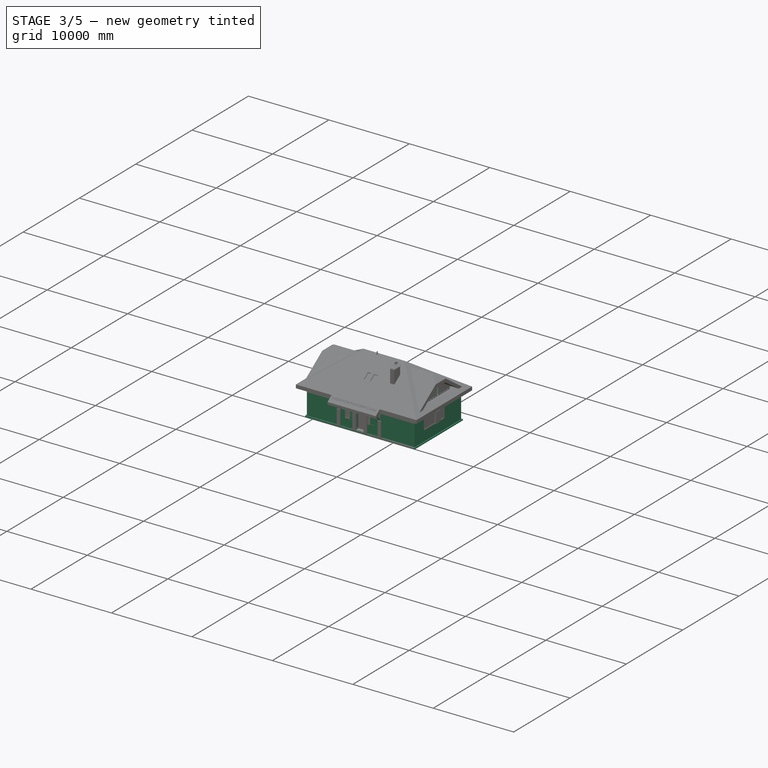
[diagram: stage 3 of 5 — iso view after this stage's code; geometry added in this stage tinted green]
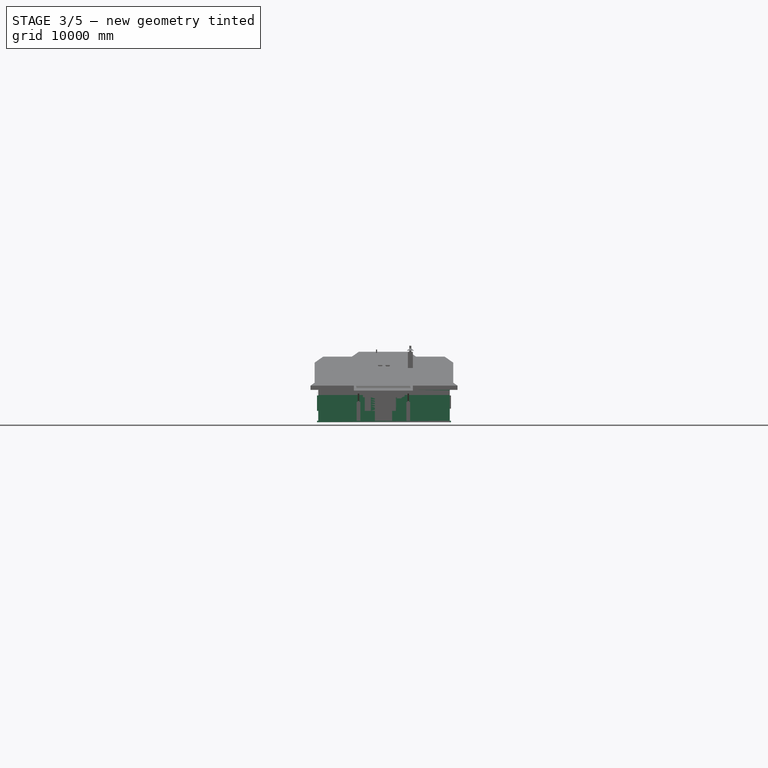
[diagram: stage 3 of 5 — front view after this stage's code; geometry added in this stage tinted green]
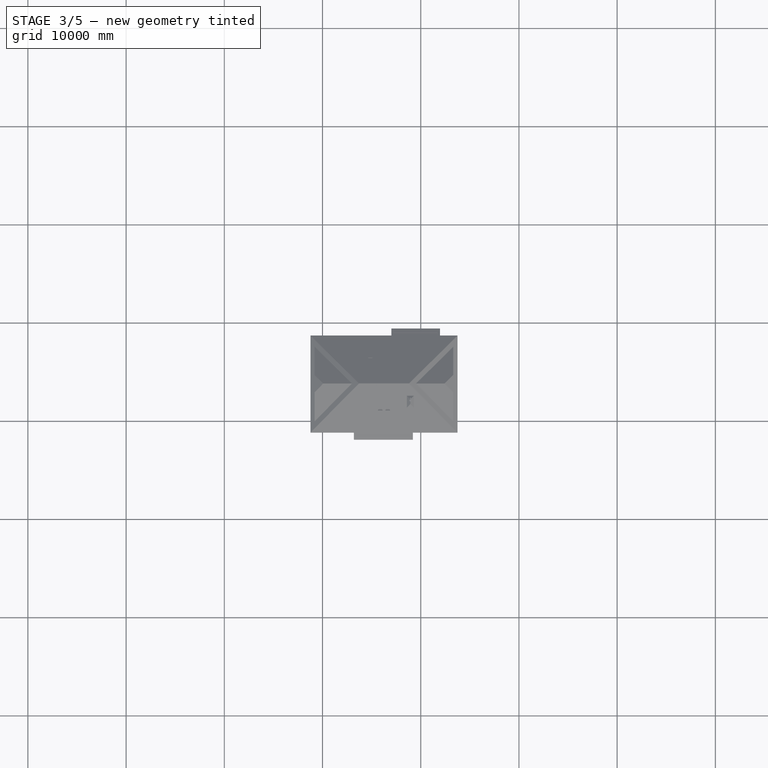
[diagram: stage 3 of 5 — top view after this stage's code; geometry added in this stage tinted green]
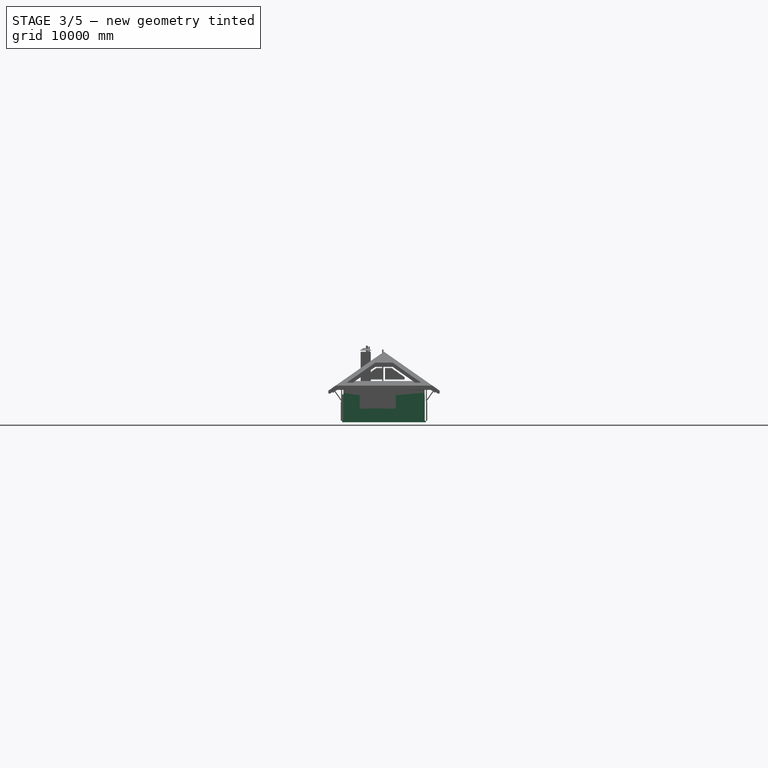
[diagram: stage 3 of 5 — right view after this stage's code; geometry added in this stage tinted green]
FEATURE [Part::Part2DObjectPython] Rectangle2169  label="Д-100-2500-01"  # Draft 2D object (typed FeaturePython)
  ChamferSize = 0
  Columns = 1
  FilletRadius = 0
  Height = 410
  Length = 1010
  MakeFace = true
  Placement = pos=(5695,-420,0) rot=(0,0,1;0rad)
  Rows = 1
FEATURE [Part::Part2DObjectPython] Rectangle2231  label="ОК-60-02"  # Draft 2D object (typed FeaturePython)
  ChamferSize = 0
  Columns = 1
  FilletRadius = 0
  Height = 410
  Length = 630
  MakeFace = true
  Placement = pos=(7475,-420,0) rot=(0,0,1;0rad)
  Rows = 1
FEATURE [Part::Part2DObjectPython] Rectangle2230  label="ОК-60-01"  # Draft 2D object (typed FeaturePython)
  ChamferSize = 0
  Columns = 1
  FilletRadius = 0
  Height = 410
  Length = 630
  MakeFace = true
  Placement = pos=(4295,-420,0) rot=(0,0,1;0rad)
  Rows = 1
FEATURE [App::FeaturePython] Dimension001  # Draft dimension (typed FeaturePython)
  Diameter = false
  Dimline = (14400,-300,0)
  Direction = (0,0,0)
  Distance = 7480
  End = (12550,7470,0)
  Normal = (0,0,1)
  Start = (12550,-10,0)
FEATURE [App::FeaturePython] Dimension  # Draft dimension (typed FeaturePython)
  Diameter = false
  Dimline = (13600,-1100,0)
  Direction = (0,0,0)
  Distance = 12580
  End = (12550,-10,0)
  Normal = (0,0,1)
  Start = (-30,-10,0)
FEATURE [Part::FeaturePython] Axis  label="Оси верт."  # WARN: FeaturePython — macro-defined, semantics opaque (R4)
  Angles = [0,0,0,0,0,0,0,0,0]
  Distances = [-220,3770,600,720,2020,460,540,1610,3240]
  Length = 12000
  Placement = pos=(0,-2300,0) rot=(0,0,1;0rad)
FEATURE [Part::FeaturePython] Axis001  label="Оси гор."  # WARN: FeaturePython — macro-defined, semantics opaque (R4)
  Angles = [0,0,0,0]
  Distances = [-200,2520,1345,3995]
  Length = 16500
  Placement = pos=(14500,7.96e-13,0) rot=(0,0,1;1.5708rad)
FEATURE [App::FeaturePython] AxisSystem  label="Axis System"  # WARN: FeaturePython — macro-defined, semantics opaque (R4)
  Axes = -> [Axis,Axis001]
FEATURE [Part::Part2DObjectPython] Rectangle2234  # Draft 2D object (typed FeaturePython)
  ChamferSize = 0
  Columns = 1
  FilletRadius = 0
  Height = 1500
  Length = 3000
  MakeFace = false
  Placement = pos=(5125,-1770,0) rot=(0,0,1;0rad)
  Rows = 1
FEATURE [Part::FeaturePython] Structure016  label="Проём-ОК-135-150-01"  # Arch/BIM 172 (typed FeaturePython)
  Base = -> Rectangle2230
  FaceMaker = 0
  Height = 1386
  HorizontalArea = 258300
  IfcType = 172
  Length = 0
  MoveBase = false
  MoveWithHost = false
  Nodes = (2) [(4618,-185,0),(4618,-185,1386)]
  NodesOffset = 0
  Normal = (0,0,0)
  PerimeterLength = 2080
  Placement = pos=(0,0,955) rot=(0,0,1;0rad)
  PredefinedType = 0
  VerticalArea = 2882880
  Width = 100
FEATURE [Part::FeaturePython] Structure017  label="Проём-ОК-115-150-01"  # Arch/BIM 172 (typed FeaturePython)
  Base = -> Rectangle2231
  FaceMaker = 0
  Height = 1386
  HorizontalArea = 258300
  IfcType = 172
  Length = 0
  MoveBase = false
  MoveWithHost = false
  Nodes = (2) [(7790,-215,0),(7790,-215,1386)]
  NodesOffset = 0
  Normal = (0,0,0)
  PerimeterLength = 2080
  Placement = pos=(0,0,955) rot=(0,0,1;0rad)
  PredefinedType = 0
  VerticalArea = 2882880
  Width = 100
FEATURE [Part::FeaturePython] Structure019  label="Проём-Д-100-250-004"  # Arch/BIM 172 (typed FeaturePython)
  Base = -> Rectangle2169
  FaceMaker = 0
  Height = 2541
  HorizontalArea = 414100
  IfcType = 172
  Length = 0
  MoveBase = false
  MoveWithHost = false
  Nodes = (2) [(6200,-215,0),(6200,-215,2541)]
  NodesOffset = 0
  Normal = (0,0,0)
  PerimeterLength = 2840
  Placement = pos=(0,0,-200) rot=(0,0,1;0rad)
  PredefinedType = 0
  VerticalArea = 7216440
  Width = 100
FEATURE [Part::Part2DObjectPython] Rectangle2589  label="проём в перекрытии 005"  # Draft 2D object (typed FeaturePython)
  ChamferSize = 0
  Columns = 1
  FilletRadius = 0
  Height = 1550
  Length = 380
  MakeFace = false
  Placement = pos=(-3580,8320,0) rot=(0,0,1;0rad)
  Rows = 1
FEATURE [Part::Part2DObjectPython] Rectangle2597  label="проём вентшахты"  # Draft 2D object (typed FeaturePython)
  ChamferSize = 0
  Columns = 1
  FilletRadius = 0
  Height = 800
  Length = 320
  MakeFace = false
  Placement = pos=(8785,1470,0) rot=(0,0,1;0rad)
  Rows = 1
FEATURE [Part::FeaturePython] Structure158  label="Вентстояк вычитаемы объём 002"  # Arch/BIM 172 (typed FeaturePython)
  Base = -> Rectangle2597
  FaceMaker = 0
  Height = 4000
  HorizontalArea = 256000
  IfcType = 172
  Length = 0
  MoveBase = false
  MoveWithHost = false
  Nodes = (2) [(8945,1870,0),(8945,1870,4000)]
  NodesOffset = 0
  Normal = (0,0,0)
  PerimeterLength = 2240
  Placement = pos=(0,0,2800) rot=(0,0,1;0rad)
  PredefinedType = 0
  VerticalArea = 8960000
  Width = 100
FEATURE [Part::Box] Box3157  label="шкаф 60 одежда 004"
  AttacherType = Attacher::AttachEngine3D
  Height = 2700
  Length = 1400
  Placement = pos=(-30,5025,0) rot=(0,0,1;0rad)
  Width = 600
FEATURE [Part::Box] Box3159  label="ТВ001"
  AttacherType = Attacher::AttachEngine3D
  Height = 750
  Length = 1200
  Placement = pos=(4720,6225,620) rot=(0,0,-1;1.5708rad)
  Width = 75
FEATURE [Part::Box] Box3163  label="обувница"
  AttacherType = Attacher::AttachEngine3D
  Height = 500
  Length = 1400
  Placement = pos=(4200,-4.55e-13,0) rot=(0,0,1;0rad)
  Width = 400
FEATURE [Part::Feature] Fillet003  label="Столик журнальный"
  Placement = pos=(13600,-900,0) rot=(0,0,1;0rad)
  shape: bbox 1000 x 1000 x 530 mm, 34 faces, 5 solids (baked)
FEATURE [Part::Box] Box3183  label="морозильник 60 см"
  AttacherType = Attacher::AttachEngine3D
  Height = 1800
  Length = 600
  Placement = pos=(8250,-10,0) rot=(0,0,1;0rad)
  Width = 600
FEATURE [Part::Box] Box3184  label="СМ"
  AttacherType = Attacher::AttachEngine3D
  Height = 800
  Length = 600
  Placement = pos=(8850,-10,0) rot=(0,0,1;0rad)
  Width = 600
FEATURE [Part::Feature] Fusion041  label="унитаз с инсталляцией 002"
  Placement = pos=(12995.1,-6440,0) rot=(0,0,1;1.5708rad)
  shape: bbox 400 x 700 x 1150 mm, 15 faces (baked)
FEATURE [Part::Box] Box3191  label="кулер"
  AttacherType = Attacher::AttachEngine3D
  Height = 950
  Length = 310
  Placement = pos=(12240,4560,0) rot=(0,0,1;0rad)
  Width = 310
FEATURE [Part::Cylinder] Cylinder  label="бутыль воды"
  Angle = 360
  AttacherType = Attacher::AttachEngine3D
  Height = 400
  Placement = pos=(12395,4715,950) rot=(0,0,1;0rad)
  Radius = 150
FEATURE [Part::Box] Box3195  label="шкаф 45 кухонный 003"
  AttacherType = Attacher::AttachEngine3D
  Height = 400
  Length = 3000
  Placement = pos=(9550,-10,2300) rot=(0,0,1;0rad)
  Width = 600
FEATURE [Part::Part2DObjectPython] Rectangle2730  label="Д70-004"  # Draft 2D object (typed FeaturePython)
  ChamferSize = 0
  Columns = 1
  FilletRadius = 0
  Height = 110
  Length = 900
  MakeFace = true
  Placement = pos=(4930,6440,0) rot=(0,0,1;1.5708rad)
  Rows = 1
FEATURE [Part::FeaturePython] Structure141  label="Проём-Д70-002"  # Arch/BIM 172 (typed FeaturePython)
  Base = -> Rectangle2730
  FaceMaker = 0
  Height = 2170
  HorizontalArea = 99000
  IfcType = 172
  Length = 0
  MoveBase = false
  MoveWithHost = false
  Nodes = (2) [(10750,4050,0),(10750,4050,2180)]
  NodesOffset = 0
  Normal = (0,0,0)
  PerimeterLength = 2020
  Placement = pos=(0,0,-20) rot=(0,0,1;0rad)
  PredefinedType = 0
  VerticalArea = 4.3834e+06
  Width = 100
FEATURE [Part::Part2DObjectPython] Rectangle2808  # Draft 2D object (typed FeaturePython)
  ChamferSize = 0
  Columns = 1
  FilletRadius = 0
  Height = 600
  Length = 600
  MakeFace = true
  Placement = pos=(8850,-10,0) rot=(0,0,1;0rad)
  Rows = 1
FEATURE [Sketcher::SketchObject] Sketch281
  FullyConstrained = true
  Placement = pos=(7475,-420,955) rot=(1,0,0;1.5708rad)
  sketch-geometry (16):
    g0: LineSegment StartX=0 StartY=0 StartZ=0 EndX=630 EndY=0 EndZ=0
    g1: LineSegment StartX=630 StartY=0 StartZ=0 EndX=630 EndY=1380 EndZ=0
    g2: LineSegment StartX=630 StartY=1380 StartZ=0 EndX=0 EndY=1380 EndZ=0
    g3: LineSegment StartX=0 StartY=1380 StartZ=0 EndX=0 EndY=0 EndZ=0
    g4: LineSegment StartX=50 StartY=50 StartZ=0 EndX=580 EndY=50 EndZ=0
    g5: LineSegment StartX=580 StartY=50 StartZ=0 EndX=580 EndY=1330 EndZ=0
    g6: LineSegment StartX=580 StartY=1330 StartZ=0 EndX=50 EndY=1330 EndZ=0
    g7: LineSegment StartX=50 StartY=1330 StartZ=0 EndX=50 EndY=50 EndZ=0
    g8: LineSegment StartX=55 StartY=55 StartZ=0 EndX=575 EndY=55 EndZ=0
    g9: LineSegment StartX=575 StartY=55 StartZ=0 EndX=575 EndY=1325 EndZ=0
    g10: LineSegment StartX=575 StartY=1325 StartZ=0 EndX=55 EndY=1325 EndZ=0
    g11: LineSegment StartX=55 StartY=1325 StartZ=0 EndX=55 EndY=55 EndZ=0
    g12: LineSegment StartX=105 StartY=105 StartZ=0 EndX=525 EndY=105 EndZ=0
    g13: LineSegment StartX=525 StartY=105 StartZ=0 EndX=525 EndY=1275 EndZ=0
    g14: LineSegment StartX=525 StartY=1275 StartZ=0 EndX=105 EndY=1275 EndZ=0
    g15: LineSegment StartX=105 StartY=1275 StartZ=0 EndX=105 EndY=105 EndZ=0
  constraints (47):
    c: Coincident(g0,g1)
    c: Coincident(g1,g2)
    c: Coincident(g2,g3)
    c: Coincident(g3,g0)
    c: Horizontal(g0)
    c: Horizontal(g2)
    c: Vertical(g1)
    c: Vertical(g3)
    c: Coincident(g4,g5)
    c: Coincident(g5,g6)
    c: Coincident(g6,g7)
    c: Coincident(g7,g4)
    c: Horizontal(g4)
    c: Horizontal(g6)
    c: Vertical(g5)
    c: Vertical(g7)
    c: DistanceY(g1) = 1380  'Height'
    c: DistanceX(g0) = 630  'Width'
    c: DistanceY(g6,g2) = 50  'Frame1'
    c: DistanceX(g2,g6) = 50  'Frame2'
    c: DistanceX(g4,g0) = 50  'Frame3'
    c: DistanceY(g0,g4) = 50  'Frame4'
    c: Coincident(g0,g-1)
    c: Coincident(g8,g9)
    c: Coincident(g9,g10)
    c: Coincident(g10,g11)
    c: Coincident(g11,g8)
    c: Horizontal(g8)
    c: Horizontal(g10)
    c: Vertical(g9)
    c: Vertical(g11)
    c: Coincident(g12,g13)
    c: Coincident(g13,g14)
    c: Coincident(g14,g15)
    c: Coincident(g15,g12)
    c: Horizontal(g12)
    c: Horizontal(g14)
    c: Vertical(g13)
    c: Vertical(g15)
    c: DistanceX(g8,g12) = 50  'Frame5'
    c: DistanceY(g8,g12) = 50  'Frame6'
    c: DistanceX(g14,g10) = 50  'Frame8'
    c: DistanceY(g14,g10) = 50  'Frame7'
    c: DistanceX(g4,g8) = 5
    c: DistanceY(g4,g8) = 5
    c: DistanceX(g10,g6) = 5
    c: DistanceY(g10,g6) = 5
FEATURE [Part::FeaturePython] Window035  label="ОК-63-001"  # Arch/BIM 170 (typed FeaturePython)
  Area = 869400
  Base = -> Sketch281
  Frame = 50
  Height = 1380
  HoleDepth = 0
  HoleWire = 0
  HorizontalArea = 0
  IfcData = attributes={"OverallHeight": {"value": 1380.0}, "OverallWidth": {"value": 630.0}}
  IfcType = 170
  LouvreSpacing = 0
  LouvreWidth = 0
  MoveBase = false
  MoveWithHost = true
  Normal = (0,1,-2e-16)
  Opening = 0
  OverallHeight = 1380
  OverallWidth = 630
  PartitioningType = 0
  PerimeterLength = 0
  PredefinedType = 0
  Preset = 2
  SymbolElevation = false
  SymbolPlan = false
  VerticalArea = 0
  Width = 630
  WindowParts = OuterFrame | Frame | Wire0,Wire1 | 0.0+V | 0.00+V | InnerFrame | Frame | Wire2,Wire3 | 0.00+V | 0.0+V | InnerGlass | Glass panel | Wire3 | 10.0 | 50.0+V
  expr: OverallHeight = .Height.Value
  expr: OverallWidth = .Width.Value
FEATURE [Part::Part2DObjectPython] Rectangle  label="контур по облицовке"  # Draft 2D object (typed FeaturePython)
  ChamferSize = 0
  Columns = 1
  FilletRadius = 0
  Height = 8540
  Length = 13640
  MakeFace = false
  Placement = pos=(-560,-540,0) rot=(0,0,1;0rad)
  Rows = 1
FEATURE [Part::Extrusion] Extrude061  label="ПНО 40-10-6-003"
  Base = -> Sketch249
  Dir = (0,1,0)
  DirMode = 0
  FaceMakerClass = Part::FaceMakerBullseye
  LengthFwd = 3980
  LengthRev = 0
  Placement = pos=(10,3680,2800) rot=(0,0,1;0rad)
  Solid = true
  Symmetric = false
FEATURE [Part::Extrusion] Extrude062  label="ПНО 40-12-8-003"
  Base = -> Sketch231
  Dir = (0,1,0)
  DirMode = 0
  FaceMakerClass = Part::FaceMakerBullseye
  LengthFwd = 3980
  LengthRev = 0
  Placement = pos=(10,3680,2800) rot=(0,0,1;0rad)
  Solid = true
  Symmetric = false
FEATURE [Part::FeaturePython] Array038  label="ПНО-40-12 3шт."  # Draft array (typed FeaturePython)
  Angle = 360
  ArrayType = 0
  Axis = (0,0,1)
  Base = -> Extrude062
  Center = (0,0,0)
  Fuse = false
  IntervalAxis = (0,0,0)
  IntervalX = (1215,0,0)
  IntervalY = (0,0,0)
  IntervalZ = (0,0,1)
  NumberPolar = 1
  NumberX = 3
  NumberY = 1
  NumberZ = 1
  Placement = pos=(7920,9.09e-13,0) rot=(0,0,1;0rad)
FEATURE [Part::Part2DObjectPython] Rectangle544  # Draft 2D object (typed FeaturePython)
  ChamferSize = 0
  Columns = 1
  FilletRadius = 25
  Height = 300
  Length = 2500
  MakeFace = false
  Placement = pos=(12470,4910,0) rot=(0,0,1;1.5708rad)
  Rows = 1
FEATURE [Part::Part2DObjectPython] Rectangle545  # Draft 2D object (typed FeaturePython)
  ChamferSize = 0
  Columns = 1
  FilletRadius = 25
  Height = 950
  Length = 2500
  MakeFace = true
  Placement = pos=(12470,4910,0) rot=(0,0,1;1.5708rad)
  Rows = 1
  Support = -> [Rectangle544]
FEATURE [Part::Part2DObjectPython] Rectangle546  # Draft 2D object (typed FeaturePython)
  ChamferSize = 0
  Columns = 1
  FilletRadius = 25
  Height = 1620
  Length = 250
  MakeFace = false
  Placement = pos=(12470,7160,0) rot=(0,0,1;1.5708rad)
  Rows = 1
FEATURE [Part::FeaturePython] Structure277  label="Structure020"  # Arch/BIM 172 (typed FeaturePython)
  Base = -> Rectangle546
  FaceMaker = 0
  Height = 200
  HorizontalArea = 404463
  IfcType = 172
  Length = 0
  MoveBase = false
  MoveWithHost = false
  Nodes = (2) [(1656.58,7240.7,0),(1656.58,7240.7,200)]
  NodesOffset = 0
  Normal = (0,0,0)
  PerimeterLength = 3697.08
  Placement = pos=(0,0,400) rot=(0,0,1;0rad)
  PredefinedType = 0
  VerticalArea = 739416
  Width = 100
FEATURE [Part::FeaturePython] Structure275  label="Structure018"  # Arch/BIM 172 (typed FeaturePython)
  Base = -> Rectangle544
  FaceMaker = 0
  Height = 400
  HorizontalArea = 749463
  IfcType = 172
  Length = 0
  MoveBase = false
  MoveWithHost = false
  Nodes = (2) [(182.895,-1383.89,0),(182.895,-1383.89,400)]
  NodesOffset = 0
  Normal = (0,0,0)
  PerimeterLength = 5557.08
  Placement = pos=(0,0,400) rot=(0,0,1;0rad)
  PredefinedType = 0
  VerticalArea = 2.22283e+06
  Width = 100
FEATURE [Part::Part2DObjectPython] Rectangle547  # Draft 2D object (typed FeaturePython)
  ChamferSize = 0
  Columns = 1
  FilletRadius = 25
  Height = 950
  Length = 250
  MakeFace = false
  Placement = pos=(12470,4910,0) rot=(0,0,1;1.5708rad)
  Rows = 1
FEATURE [Part::FeaturePython] Structure278  label="Structure021"  # Arch/BIM 172 (typed FeaturePython)
  Base = -> Rectangle547
  FaceMaker = 0
  Height = 200
  HorizontalArea = 236963
  IfcType = 172
  Length = 0
  MoveBase = false
  MoveWithHost = false
  Nodes = (2) [(156.577,7240.7,0),(156.577,7240.7,200)]
  NodesOffset = 0
  Normal = (0,0,0)
  PerimeterLength = 2357.08
  Placement = pos=(0,0,400) rot=(0,0,1;0rad)
  PredefinedType = 0
  VerticalArea = 471416
  Width = 100
FEATURE [Part::FeaturePython] Structure276  label="Structure019"  # Arch/BIM 172 (typed FeaturePython)
  Base = -> Rectangle545
  FaceMaker = 0
  Height = 400
  HorizontalArea = 2.37446e+06
  IfcType = 172
  Length = 0
  MoveBase = false
  MoveWithHost = false
  Nodes = (2) [(906.577,7240.7,0),(906.577,7240.7,400)]
  NodesOffset = 0
  Normal = (0,0,0)
  PerimeterLength = 6857.08
  PredefinedType = 0
  VerticalArea = 2.74283e+06
  Width = 100
FEATURE [Part::Part2DObjectPython] Rectangle2837  # Draft 2D object (typed FeaturePython)
  ChamferSize = 0
  Columns = 1
  FilletRadius = 25
  Height = 670
  Length = 900
  MakeFace = true
  Placement = pos=(11520,6510,0) rot=(0,0,1;1.5708rad)
  Rows = 1
FEATURE [Part::FeaturePython] Structure279  label="Structure143"  # Arch/BIM 172 (typed FeaturePython)
  Base = -> Rectangle2837
  FaceMaker = 0
  Height = 400
  HorizontalArea = 602463
  IfcType = 172
  Length = 0
  MoveBase = false
  MoveWithHost = false
  Nodes = (2) [(906.577,7240.7,0),(906.577,7240.7,400)]
  NodesOffset = 0
  Normal = (0,0,0)
  PerimeterLength = 3097.08
  PredefinedType = 0
  VerticalArea = 1.23883e+06
  Width = 100
FEATURE [App::GeometryPython] BuildingPart065  label="Диван 250x162L"  # Arch/BIM 172 (typed FeaturePython)
  Area = 0
  Group = -> [Structure275,Structure278,Structure276,Structure277,Structure279]
  Height = 0
  HeightPropagate = true
  IfcType = 172
  LevelOffset = 0
  PredefinedType = 0
FEATURE [Part::Part2DObjectPython] Rectangle2857  label="ОК-150-01"  # Draft 2D object (typed FeaturePython)
  ChamferSize = 0
  Columns = 1
  FilletRadius = 0
  Height = 410
  Length = 1500
  MakeFace = true
  Placement = pos=(-30,1900,0) rot=(0,0,1;1.5708rad)
  Rows = 1
FEATURE [Part::FeaturePython] Structure285  label="Проём-ОК-135-150-004"  # Arch/BIM 172 (typed FeaturePython)
  Base = -> Rectangle2857
  FaceMaker = 0
  Height = 1617
  HorizontalArea = 615000
  IfcType = 172
  Length = 0
  MoveBase = false
  MoveWithHost = false
  Nodes = (2) [(-8120,-170,0),(-8120,-170,1500)]
  NodesOffset = 0
  Normal = (0,0,0)
  PerimeterLength = 3820
  Placement = pos=(0,0,955) rot=(0,0,1;0rad)
  PredefinedType = 0
  VerticalArea = 6176940
  Width = 100
FEATURE [Part::Part2DObjectPython] Rectangle2858  label="четверть_790_015"  # Draft 2D object (typed FeaturePython)
  ChamferSize = 0
  Columns = 1
  FilletRadius = 0
  Height = 120
  Length = 1370
  MakeFace = true
  Placement = pos=(-560,3335,0) rot=(0,0,-1;1.5708rad)
  Rows = 1
FEATURE [Part::FeaturePython] Structure286  label="Проём_четв._035"  # Arch/BIM 172 (typed FeaturePython)
  Base = -> Rectangle2858
  FaceMaker = 0
  Height = 1567
  HorizontalArea = 164400
  IfcType = 172
  Length = 0
  MoveBase = false
  MoveWithHost = false
  Nodes = (2) [(1035,460,0),(1035,460,535)]
  NodesOffset = 0
  Normal = (0,0,0)
  PerimeterLength = 2980
  Placement = pos=(0,0,955) rot=(0,0,1;0rad)
  PredefinedType = 0
  VerticalArea = 4669660
  Width = 100
FEATURE [Part::Part2DObjectPython] Line1266  label="Line1267"  # Draft 2D object (typed FeaturePython)
  ChamferSize = 0
  Closed = false
  End = (-560,1875,0)
  FilletRadius = 0
  Length = 1550
  MakeFace = true
  Placement = pos=(-560,3425,0) rot=(0,0,-1;1.5708rad)
  Points = (2) [(0,0,0),(1550,0,0)]
  Start = (-560,3425,0)
  Subdivisions = 0
FEATURE [Part::Part2DObjectPython] Line1271  label="Line1272"  # Draft 2D object (typed FeaturePython)
  ChamferSize = 0
  Closed = true
  End = (8690,1820,0)
  FilletRadius = 0
  Length = 770
  MakeFace = false
  Placement = pos=(11240,5170,0) rot=(0,0,-1;1.5708rad)
  Points = (2) [(3350,-1780,0),(3350,-2550,0)]
  Start = (9460,1820,0)
  Subdivisions = 0
FEATURE [Part::FeaturePython] Wall162  label="перегородка 042"  # Arch/BIM 166 (typed FeaturePython)
  Align = 2
  Area = 2.156e+06
  Base = -> Line1271
  BlockHeight = 250
  BlockLength = 0
  CountBroken = 0
  CountEntire = 0
  Face = 0
  Height = 2800
  HorizontalArea = 61600
  IfcType = 166
  Joint = 0
  Length = 770
  MakeBlocks = false
  MoveBase = false
  MoveWithHost = false
  Normal = (0,0,0)
  OffsetFirst = 0
  OffsetSecond = 300
  PerimeterLength = 1700
  PredefinedType = 0
  VerticalArea = 4760000
  Width = 80
FEATURE [Part::Box] Box3203  label="шкаф подвесной"
  AttacherType = Attacher::AttachEngine3D
  Height = 1000
  Length = 600
  Placement = pos=(8850,-10,800) rot=(0,0,1;0rad)
  Width = 600
FEATURE [Part::Box] Box3204  label="шкаф 001"
  AttacherType = Attacher::AttachEngine3D
  Height = 2700
  Length = 1215
  Placement = pos=(370,3810,0) rot=(0,0,1;1.5708rad)
  Width = 400
FEATURE [Part::Box] Box3205  label="шкаф 60 кухонный 011"
  AttacherType = Attacher::AttachEngine3D
  Height = 850
  Length = 1800
  Placement = pos=(10750,-10,0) rot=(0,0,1;0rad)
  Width = 600
FEATURE [Part::Part2DObjectPython] ShapeString131  # Draft 2D object (typed FeaturePython)
  FontFile = <path>
  Placement = pos=(9798.37,89.5753,0) rot=(0,0,1;0rad)
  Size = 300
  String = *
  Tracking = 0
FEATURE [Part::Part2DObjectPython] ShapeString133  # Draft 2D object (typed FeaturePython)
  FontFile = <path>
  Placement = pos=(8956.86,201.345,0) rot=(0,0,1;0rad)
  Size = 200
  String = СМ
  Tracking = 0
FEATURE [Part::Part2DObjectPython] Wire657  label="Облицовка 120мм 001"  # Draft 2D object (typed FeaturePython)
  Area = 876600
  ChamferSize = 0
  Closed = true
  End = (4360,-540,0)
  FilletRadius = 0
  Length = 14850
  MakeFace = true
  Placement = pos=(-560,-540,0) rot=(0,0,1;0rad)
  Points = (6) [(0,0,0),(0,2505,0),(120,2505,0),(120,120,0),(4920,120,0),(4920,1.81899e-12,0)]
  Start = (-560,-540,0)
  Subdivisions = 0
FEATURE [Part::Part2DObjectPython] Wire658  label="Облицовка 120мм 031"  # Draft 2D object (typed FeaturePython)
  Area = 100800
  ChamferSize = 0
  Closed = true
  End = (5700,-540,0)
  FilletRadius = 0
  Length = 1920
  MakeFace = true
  Placement = pos=(4097,-540,0) rot=(0,0,1;0rad)
  Points = (4) [(763,3.29692e-12,0),(763,120,0),(1603,120,0),(1603,3.29692e-12,0)]
  Start = (4860,-540,0)
  Subdivisions = 0
FEATURE [Part::Part2DObjectPython] Wire660  label="Облицовка 120мм 033"  # Draft 2D object (typed FeaturePython)
  Area = 100800
  ChamferSize = 0
  Closed = true
  End = (7540,-540,0)
  FilletRadius = 0
  Length = 1920
  MakeFace = true
  Placement = pos=(5537,-540,0) rot=(0,0,1;0rad)
  Points = (4) [(1163,4.09273e-12,0),(1163,120,0),(2003,120,0),(2003,2.95586e-12,0)]
  Start = (6700,-540,0)
  Subdivisions = 0
FEATURE [Part::Part2DObjectPython] Wire661  label="Облицовка 120мм 034"  # Draft 2D object (typed FeaturePython)
  Area = 813720
  ChamferSize = 0
  Closed = true
  End = (13080,-540,0)
  FilletRadius = 0
  Length = 13802
  MakeFace = true
  Placement = pos=(9970,-540,0) rot=(0,0,1;0rad)
  Points = (6) [(-1930,2.27374e-12,0),(-1930,120,0),(2990,120,0),(2990,1861,0),(3110,1861,0),(3110,4.54747e-13,0)]
  Start = (8040,-540,0)
  Subdivisions = 0
FEATURE [Part::Part2DObjectPython] Wire663  label="Облицовка 120мм 036"  # Draft 2D object (typed FeaturePython)
  Area = 107400
  ChamferSize = 0
  Closed = true
  End = (13080,4110,0)
  FilletRadius = 0
  Length = 2030
  MakeFace = true
  Placement = pos=(13080,2465,0) rot=(0,0,1;0rad)
  Points = (4) [(-3.63798e-12,750,0),(-120,750,0),(-120,1645,0),(-3.63798e-12,1645,0)]
  Start = (13080,3215,0)
  Subdivisions = 0
FEATURE [Part::Part2DObjectPython] Wire664  label="Облицовка 120мм 037"  # Draft 2D object (typed FeaturePython)
  Area = 675600
  ChamferSize = 0
  Closed = true
  End = (13080,8000,0)
  FilletRadius = 0
  Length = 11500
  MakeFace = true
  Placement = pos=(13080,6320,0) rot=(0,0,1;0rad)
  Points = (6) [(0,-1452,0),(-120,-1452,0),(-120,1560,0),(-2618,1560,0),(-2618,1680,0),(0,1680,0)]
  Start = (13080,4868,0)
  Subdivisions = 0
FEATURE [Part::Part2DObjectPython] Wire665  label="Облицовка 120мм 038"  # Draft 2D object (typed FeaturePython)
  Area = 324000
  ChamferSize = 0
  Closed = true
  End = (5868,8000,0)
  FilletRadius = 0
  Length = 5640
  MakeFace = true
  Placement = pos=(9696,8000,0) rot=(0,0,1;0rad)
  Points = (4) [(-1128,9.09495e-13,0),(-1128,-120,0),(-3828,-120,0),(-3828,1.81899e-12,0)]
  Start = (8568,8000,0)
  Subdivisions = 0
FEATURE [Part::Part2DObjectPython] Wire667  label="Облицовка 120мм 040"  # Draft 2D object (typed FeaturePython)
  Area = 858600
  ChamferSize = 0
  Closed = true
  End = (-560,8000,0)
  FilletRadius = 0
  Length = 14550
  MakeFace = true
  Placement = pos=(1520,8000,0) rot=(0,0,1;0rad)
  Points = (6) [(530,0,0),(530,-120,0),(-1960,-120,0),(-1960,-4665,0),(-2080,-4665,0),(-2080,0,0)]
  Start = (2050,8000,0)
  Subdivisions = 0
FEATURE [Part::Part2DObjectPython] Wire670  label="Стены_и_перегородки 032"  # Draft 2D object (typed FeaturePython)
  Area = 494500
  ChamferSize = 0
  Closed = true
  End = (12550,3810,0)
  FilletRadius = 0
  Length = 3630
  MakeFace = true
  Placement = pos=(13210,6015,0) rot=(0,0,-1;1.5708rad)
  Points = (8) [(1970,-660,0),(1970,-260,0),(2735,-260,0),(2735,-660,0),(2495,-660,0),(2495,-1310,0),(2205,-1310,0),(2205,-660,0)]
  Start = (12550,4045,0)
  Subdivisions = 0
FEATURE [Part::Part2DObjectPython] Wire671  label="Стены_и_перегородки 033"  # Draft 2D object (typed FeaturePython)
  Area = 1.984e+06
  ChamferSize = 0
  Closed = true
  End = (12550,7470,0)
  FilletRadius = 0
  Length = 10720
  MakeFace = true
  Placement = pos=(10175,7700,0) rot=(0,0,1;0rad)
  Points = (6) [(352,-230,0),(352,170,0),(2775,170,0),(2775,-2767,0),(2375,-2767,0),(2375,-230,0)]
  Start = (10527,7470,0)
  Subdivisions = 0
FEATURE [Part::Part2DObjectPython] ShapeString135  # Draft 2D object (typed FeaturePython)
  FontFile = <path>
  Placement = pos=(12278.3,1373.24,0) rot=(0,0,1;1.5708rad)
  Size = 200
  String = ПМ
  Tracking = 0
FEATURE [Part::Part2DObjectPython] Rectangle2972  label="Камин"  # Draft 2D object (typed FeaturePython)
  Area = 400000
  ChamferSize = 0
  Columns = 1
  FilletRadius = 0
  Height = 500
  Length = 800
  MakeFace = true
  Placement = pos=(8750,1870,0) rot=(0,0,1;0rad)
  Rows = 1
FEATURE [Spreadsheet::Sheet] Spreadsheet  label="Площади помещений"
  cells = A1=N/N; B1=Помещение; C1=Площадь; A2=1); B2==<<Прихожая>>.Label; C2==<<Прихожая>>.Shape.Area; A3=2); B3==<<Котельная>>.Label; C3==<<Котельная>>.Shape.Area; A4=3); B4==<<Кабинет>>.Label; C4==<<Кабинет>>.Shape.Area; A5=4); B5==<<Кухня>>.Label; C5==<<Кухня>>.Shape.Area; A6=5); B6==<<СУ>>.Label; C6==<<СУ>>.Shape.Area; A7=6); B7==<<Туалет>>.Label; C7==<<Туалет>>.Shape.Area; A8=7); B8==<<Коридор>>.Label; C8==<<Коридор>>.Shape.Area; A9=8); B9==<<Спальня 1 этаж>>.Label; C9==<<Спальня 1 этаж>>.Shape.Area; A10=9); B10==<<Гостиная>>.Label; C10==<<Гостиная>>.Shape.Area; B11=Итого:; C11==sum(C2:C10); B12=Тёплый контур:; C12==<<Тёплый контур>>.Shape.Area; A14=Объёмы материалов (этап коробки под крышу с облицовкой, на готовый фундамент):; A15=Блок ЛСР "Тёплый" 10.7нф; B15==<<Внешняя стена ЛСР 380мм>>.Label; C15==<<Внешняя стена ЛСР 380мм>>.Shape.Volume; B16==<<Стена ЛСР 380мм ряд перекрытия 001>>.Label; C16==<<Стена ЛСР 380мм ряд перекрытия 001>>.Shape.Volume; B17==<<Стена ЛСР 380мм ряд перекрытия 002>>.Label; C17==<<Стена ЛСР 380мм ряд перекрытия 002>>.Shape.Volume; B18==<<Стена ЛСР 380мм под мауэрлат>>.Label; C18==<<Стена ЛСР 380мм под мауэрлат>>.Shape.Volume; B19=Итого:; C19==sum(C15:C18); A21=Кирпич рядовой 1нф и 2.1нф, в соотн. 1:2; B21==<<Стена 250mm 2.1нф+1нф>>.Label; C21==<<Стена 250mm 2.1нф+1нф>>.Shape.Volume; B22==<<Ряд 1нф по плитам ПНО 001>>.Label; C22==<<Ряд 1нф по плитам ПНО 001>>.Shape.Volume; B23==<<Ряд 1нф по плитам ПНО 002>>.Label; C23==<<Ряд 1нф по плитам ПНО 002>>.Shape.Volume; B24==<<Стена 3 ряда 1NF в уровне перекрытия 001>>.Label; C24==<<Стена 3 ряда 1NF в уровне перекрытия 001>>.Shape.Volume; B25==<<Стена 3 ряда 1NF в уровне перекрытия 002>>.Label; C25==<<Стена 3 ряда 1NF в уровне перекрытия 002>>.Shape.Volume; B26==<<ряд  2.1нф в уровне армпояса>>.Label; C26==<<ряд  2.1нф в уровне армпояса>>.Shape.Volume; B27=Итого:; C27==sum(C21:C26); A28=Бетон (без учёта армирования):; B29==<<Перемычки монолитные>>.Label; C29==<<Перемычки монолитные>>.Shape.Volume; B30==<<Армпояс 180x140mm>>.Label; C30==<<Армпояс 180x140mm>>.Shape.Volume; B31=Итого:; C31==sum(C29:C30); A32=Утеплитель XPS 80mm и 100mm; B33==<<Утепление перемычек XPS 100mm>>.Label; C33==<<Утепление перемычек XPS 100mm>>.Shape.Volume; B34==<<Утепление торца плит XPS 80mm 001>>.Label; C34==<<Утепление торца плит XPS 80mm 001>>.Shape.Volume; B35==<<Утепление торца плит XPS 80mm 002>>.Label; C35==<<Утепление торца плит XPS 80mm 002>>.Shape.Volume; B36==<<XPS 80mm в уровне армпояса>>.Label; C36==<<XPS 80mm в уровне армпояса>>.Shape.Volume; B37=Итого:; C37==sum(C33:C36); B39=Перегородки 80mm; C39==<<Перегородки>>.Shape.Volume; B40=Утепление перемычек XPS 100mm; C40==<<Утепление перемычек XPS 100mm>>.Shape.Volume; B41=Облицовка 1nf кирпич; C41==<<Облицовка 1nf кирпич>>.Shape.Volume; B42=бетон Армпояс+Пол по грунту стяжка; B46=бетон (фундамент МЗЛФ); C46==<<фундамент МЗЛФ>>.Shape.Volume; B47=Утеплитель ЭППС (МЗЛФ); C47==<<утепл фунд. внешней.стены 002>>.Shape.Volume + <<утепл отмостки 001>>.Shape.Volume + <<Утеплитель полки облицовки>>.Shape.Volume; B49=Утепление перекрытия ПСБ25; C49==<<Утепление перекрытия XPS 80mm>>.Shape.Volume; B50=Пояс перекрытия+монолит.уч.; B51=стяжка перекрытия; C51==<<70мм стяжка+2 мм подложка+8 мм ламинат>>.Shape.Volume; B52=опорный ряд  под мауэрлат; C52==<<Стена ЛСР 380мм под мауэрлат>>.Shape.Volume; B54=грунт в границах участка, h=1м; C54==<<грунт в границах участка>>.Shape.Volume
FEATURE [Part::Part2DObjectPython] Rectangle2973  label="Шкаф 60 014"  # Draft 2D object (typed FeaturePython)
  Area = 640500
  ChamferSize = 0
  Columns = 1
  FilletRadius = 0
  Height = 1830
  Length = 350
  MakeFace = true
  Placement = pos=(-30,-10,0) rot=(0,0,1;0rad)
  Rows = 1
FEATURE [Part::Part2DObjectPython] ShapeString138  # Draft 2D object (typed FeaturePython)
  FontFile = <path>
  Placement = pos=(5506.65,999.608,0) rot=(0,0,1;0rad)
  Size = 250
  String = 1
  Tracking = 0
FEATURE [Part::Part2DObjectPython] Circle088  # Draft 2D object (typed FeaturePython)
  Area = 0
  FirstAngle = 0
  LastAngle = 0
  MakeFace = false
  Placement = pos=(5600,1100,0) rot=(0,0,1;0rad)
  Radius = 200
FEATURE [Part::Part2DObjectPython] Circle089  label="Circle090"  # Draft 2D object (typed FeaturePython)
  Area = 0
  FirstAngle = 0
  LastAngle = 0
  MakeFace = false
  Placement = pos=(8400,1200,0) rot=(0,0,1;0rad)
  Radius = 200
FEATURE [Part::Part2DObjectPython] ShapeString139  # Draft 2D object (typed FeaturePython)
  FontFile = <path>
  Placement = pos=(8306.65,1099.61,0) rot=(0,0,1;0rad)
  Size = 250
  String = 2
  Tracking = 0
FEATURE [Part::Part2DObjectPython] Circle090  label="Circle091"  # Draft 2D object (typed FeaturePython)
  Area = 0
  FirstAngle = 0
  LastAngle = 0
  MakeFace = false
  Placement = pos=(2300,1700,0) rot=(0,0,1;0rad)
  Radius = 200
FEATURE [Part::Part2DObjectPython] ShapeString140  # Draft 2D object (typed FeaturePython)
  FontFile = <path>
  Placement = pos=(2206.65,1599.61,0) rot=(0,0,1;0rad)
  Size = 250
  String = 3
  Tracking = 0
FEATURE [Part::Part2DObjectPython] Circle091  label="Circle092"  # Draft 2D object (typed FeaturePython)
  Area = 0
  FirstAngle = 0
  LastAngle = 0
  MakeFace = false
  Placement = pos=(7500,4200,0) rot=(0,0,1;0rad)
  Radius = 200
FEATURE [Part::Part2DObjectPython] ShapeString141  # Draft 2D object (typed FeaturePython)
  FontFile = <path>
  Placement = pos=(7406.65,4099.61,0) rot=(0,0,1;0rad)
  Size = 250
  String = 6
  Tracking = 0
FEATURE [Part::Part2DObjectPython] Circle092  label="Circle093"  # Draft 2D object (typed FeaturePython)
  Area = 0
  FirstAngle = 0
  LastAngle = 0
  MakeFace = false
  Placement = pos=(10900,1200,0) rot=(0,0,1;0rad)
  Radius = 200
FEATURE [Part::Part2DObjectPython] ShapeString142  # Draft 2D object (typed FeaturePython)
  FontFile = <path>
  Placement = pos=(10806.7,1099.61,0) rot=(0,0,1;0rad)
  Size = 250
  String = 4
  Tracking = 0
FEATURE [Part::Part2DObjectPython] Circle093  label="Circle094"  # Draft 2D object (typed FeaturePython)
  Area = 0
  FirstAngle = 0
  LastAngle = 0
  MakeFace = false
  Placement = pos=(5400,5800,0) rot=(0,0,1;0rad)
  Radius = 200
FEATURE [Part::Part2DObjectPython] ShapeString143  # Draft 2D object (typed FeaturePython)
  FontFile = <path>
  Placement = pos=(5306.65,5699.61,0) rot=(0,0,1;0rad)
  Size = 250
  String = 5
  Tracking = 0
FEATURE [Part::Part2DObjectPython] Circle094  label="Circle095"  # Draft 2D object (typed FeaturePython)
  Area = 0
  FirstAngle = 0
  LastAngle = 0
  MakeFace = false
  Placement = pos=(4100,5600,0) rot=(0,0,1;0rad)
  Radius = 200
FEATURE [Part::Part2DObjectPython] ShapeString144  # Draft 2D object (typed FeaturePython)
  FontFile = <path>
  Placement = pos=(4006.65,5499.61,0) rot=(0,0,1;0rad)
  Size = 250
  String = 8
  Tracking = 0
FEATURE [Part::Part2DObjectPython] Circle095  label="Circle096"  # Draft 2D object (typed FeaturePython)
  Area = 0
  FirstAngle = 0
  LastAngle = 0
  MakeFace = false
  Placement = pos=(5500,3000,0) rot=(0,0,1;0rad)
  Radius = 200
FEATURE [Part::Part2DObjectPython] ShapeString145  # Draft 2D object (typed FeaturePython)
  FontFile = <path>
  Placement = pos=(5406.65,2899.61,0) rot=(0,0,1;0rad)
  Size = 250
  String = 7
  Tracking = 0
FEATURE [Part::Part2DObjectPython] Circle097  label="Circle098"  # Draft 2D object (typed FeaturePython)
  Area = 0
  FirstAngle = 0
  LastAngle = 0
  MakeFace = false
  Placement = pos=(9400,5300,0) rot=(0,0,1;0rad)
  Radius = 200
FEATURE [Part::Part2DObjectPython] ShapeString147  # Draft 2D object (typed FeaturePython)
  FontFile = <path>
  Placement = pos=(9306.65,5199.61,0) rot=(0,0,1;0rad)
  Size = 250
  String = 9
  Tracking = 0
FEATURE [App::GeometryPython] BuildingPart067  label="Участок с ограждением"  # Arch/BIM 172 (typed FeaturePython)
  Area = 3.83198e+08
  Group = -> [BuildingPart034,Structure133,Wall095]
  Height = 0
  HeightPropagate = true
  IfcData = attributes={"GlobalId": {"name": "GlobalId", "type": "IfcGloballyUniqueId", "is_enum": false, "enum_values": []}, "Description": {"... (+484 chars omitted),+1 more (map truncated)
  IfcType = 172
  LevelOffset = 0
  PredefinedType = 0
FEATURE [Sketcher::SketchObject] Sketch286
  FullyConstrained = true
  Placement = pos=(10525,7880,-46) rot=(0,0.707107,0.707107;3.14159rad)
  sketch-geometry (24):
    g0: LineSegment StartX=0 StartY=0 StartZ=0 EndX=2020 EndY=0 EndZ=0
    g1: LineSegment StartX=2020 StartY=0 StartZ=0 EndX=2020 EndY=2570 EndZ=0
    g2: LineSegment StartX=2020 StartY=2570 StartZ=0 EndX=0 EndY=2570 EndZ=0
    g3: LineSegment StartX=0 StartY=2570 StartZ=0 EndX=0 EndY=0 EndZ=0
    g4: LineSegment StartX=50 StartY=50 StartZ=0 EndX=1970 EndY=50 EndZ=0
    g5: LineSegment StartX=1970 StartY=50 StartZ=0 EndX=1970 EndY=2520 EndZ=0
    g6: LineSegment StartX=1970 StartY=2520 StartZ=0 EndX=50 EndY=2520 EndZ=0
    g7: LineSegment StartX=50 StartY=2520 StartZ=0 EndX=50 EndY=50 EndZ=0
    g8: LineSegment StartX=55 StartY=55 StartZ=0 EndX=1007.5 EndY=55 EndZ=0
    g9: LineSegment StartX=1007.5 StartY=55 StartZ=0 EndX=1007.5 EndY=2515 EndZ=0
    g10: LineSegment StartX=1007.5 StartY=2515 StartZ=0 EndX=55 EndY=2515 EndZ=0
    g11: LineSegment StartX=55 StartY=2515 StartZ=0 EndX=55 EndY=55 EndZ=0
    g12: LineSegment StartX=105 StartY=105 StartZ=0 EndX=957.5 EndY=105 EndZ=0
    g13: LineSegment StartX=957.5 StartY=105 StartZ=0 EndX=957.5 EndY=2465 EndZ=0
    g14: LineSegment StartX=957.5 StartY=2465 StartZ=0 EndX=105 EndY=2465 EndZ=0
    g15: LineSegment StartX=105 StartY=2465 StartZ=0 EndX=105 EndY=105 EndZ=0
    g16: LineSegment StartX=1012.5 StartY=55 StartZ=0 EndX=1965 EndY=55 EndZ=0
    g17: LineSegment StartX=1965 StartY=55 StartZ=0 EndX=1965 EndY=2515 EndZ=0
    g18: LineSegment StartX=1965 StartY=2515 StartZ=0 EndX=1012.5 EndY=2515 EndZ=0
    g19: LineSegment StartX=1012.5 StartY=2515 StartZ=0 EndX=1012.5 EndY=55 EndZ=0
    g20: LineSegment StartX=1062.5 StartY=105 StartZ=0 EndX=1915 EndY=105 EndZ=0
    g21: LineSegment StartX=1915 StartY=105 StartZ=0 EndX=1915 EndY=2465 EndZ=0
    g22: LineSegment StartX=1915 StartY=2465 StartZ=0 EndX=1062.5 EndY=2465 EndZ=0
    g23: LineSegment StartX=1062.5 StartY=2465 StartZ=0 EndX=1062.5 EndY=105 EndZ=0
  constraints (71):
    c: Coincident(g0,g1)
    c: Coincident(g1,g2)
    c: Coincident(g2,g3)
    c: Coincident(g3,g0)
    c: Horizontal(g0)
    c: Horizontal(g2)
    c: Vertical(g1)
    c: Vertical(g3)
    c: Coincident(g4,g5)
    c: Coincident(g5,g6)
    c: Coincident(g6,g7)
    c: Coincident(g7,g4)
    c: Horizontal(g4)
    c: Horizontal(g6)
    c: Vertical(g5)
    c: Vertical(g7)
    c: DistanceY(g1) = 2570  'Height'
    c: DistanceX(g0) = 2020  'Width'
    c: DistanceY(g6,g2) = 50  'Frame1'
    c: DistanceX(g2,g6) = 50  'Frame2'
    c: DistanceX(g4,g0) = 50  'Frame3'
    c: DistanceY(g0,g4) = 50  'Frame4'
    c: Coincident(g0,g-1)
    c: Coincident(g8,g9)
    c: Coincident(g9,g10)
    c: Coincident(g10,g11)
    c: Coincident(g11,g8)
    c: Horizontal(g8)
    c: Horizontal(g10)
    c: Vertical(g9)
    c: Vertical(g11)
    c: Coincident(g12,g13)
    c: Coincident(g13,g14)
    c: Coincident(g14,g15)
    c: Coincident(g15,g12)
    c: Horizontal(g12)
    c: Horizontal(g14)
    c: Vertical(g13)
    c: Vertical(g15)
    c: Coincident(g16,g17)
    c: Coincident(g17,g18)
    c: Coincident(g18,g19)
    c: Coincident(g19,g16)
    c: Horizontal(g16)
    c: Horizontal(g18)
    c: Vertical(g17)
    c: Vertical(g19)
    c: Coincident(g20,g21)
    c: Coincident(g21,g22)
    c: Coincident(g22,g23)
    c: Coincident(g23,g20)
    c: Horizontal(g20)
    c: Horizontal(g22)
    c: Vertical(g21)
    c: Vertical(g23)
    c: DistanceY(g8,g12) = 50  'Frame5'
    c: DistanceX(g8,g12) = 50  'Frame6'
    c: DistanceX(g21,g17) = 50  'Frame7'
    c: DistanceY(g21,g17) = 50  'Frame8'
    c: DistanceX(g16,g20) = 50  'Frame9'
    c: DistanceX(g14,g10) = 50  'Frame10'
    c: Equal(g22,g14)
    c: DistanceY(g8,g16) = 0
    c: DistanceY(g10,g18) = 0
    c: DistanceX(g4,g8) = 5
    c: DistanceY(g4,g8) = 5
    c: DistanceX(g6,g18) = -5
    c: DistanceY(g6,g18) = -5
    c: DistanceX(g9,g19) = 5
    c: PointOnObject(g13,g22)
    c: PointOnObject(g20,g12)
FEATURE [Part::FeaturePython] Window040  label="Д-202-001"  # Arch/BIM 170 (typed FeaturePython)
  Area = 5191400
  Base = -> Sketch286
  Frame = 50
  Height = 2570
  HoleDepth = 0
  HoleWire = 0
  HorizontalArea = 0
  IfcData = attributes={"OverallHeight": {"value": 2570.0}, "OverallWidth": {"value": 2020.0}}
  IfcType = 170
  LouvreSpacing = 0
  LouvreWidth = 0
  MoveBase = false
  MoveWithHost = true
  Normal = (0,-1,0)
  Opening = 0
  OverallHeight = 2570
  OverallWidth = 2020
  PartitioningType = 0
  PerimeterLength = 0
  PredefinedType = 0
  Preset = 3
  SymbolElevation = false
  SymbolPlan = false
  VerticalArea = 0
  Width = 2020
  WindowParts = <same value as first occurrence — deduplicated (x4 in doc)>
  expr: OverallHeight = .Height.Value
  expr: OverallWidth = .Width.Value
FEATURE [Sketcher::SketchObject] Sketch287
  FullyConstrained = true
  Placement = pos=(6650,3625,0) rot=(0,0.707107,0.707107;3.14159rad)
  sketch-geometry (24):
    g0: LineSegment StartX=0 StartY=0 StartZ=0 EndX=900 EndY=0 EndZ=0
    g1: LineSegment StartX=900 StartY=0 StartZ=0 EndX=900 EndY=2150 EndZ=0
    g2: LineSegment StartX=900 StartY=2150 StartZ=0 EndX=0 EndY=2150 EndZ=0
    g3: LineSegment StartX=0 StartY=2150 StartZ=0 EndX=0 EndY=0 EndZ=0
    g4: LineSegment StartX=50 StartY=50 StartZ=0 EndX=850 EndY=50 EndZ=0
    g5: LineSegment StartX=850 StartY=50 StartZ=0 EndX=850 EndY=2100 EndZ=0
    g6: LineSegment StartX=850 StartY=2100 StartZ=0 EndX=50 EndY=2100 EndZ=0
    g7: LineSegment StartX=50 StartY=2100 StartZ=0 EndX=50 EndY=50 EndZ=0
    g8: LineSegment StartX=55 StartY=55 StartZ=0 EndX=447.5 EndY=55 EndZ=0
    g9: LineSegment StartX=447.5 StartY=55 StartZ=0 EndX=447.5 EndY=2095 EndZ=0
    g10: LineSegment StartX=447.5 StartY=2095 StartZ=0 EndX=55 EndY=2095 EndZ=0
    g11: LineSegment StartX=55 StartY=2095 StartZ=0 EndX=55 EndY=55 EndZ=0
    g12: LineSegment StartX=105 StartY=105 StartZ=0 EndX=397.5 EndY=105 EndZ=0
    g13: LineSegment StartX=397.5 StartY=105 StartZ=0 EndX=397.5 EndY=2045 EndZ=0
    g14: LineSegment StartX=397.5 StartY=2045 StartZ=0 EndX=105 EndY=2045 EndZ=0
    g15: LineSegment StartX=105 StartY=2045 StartZ=0 EndX=105 EndY=105 EndZ=0
    g16: LineSegment StartX=452.5 StartY=55 StartZ=0 EndX=845 EndY=55 EndZ=0
    g17: LineSegment StartX=845 StartY=55 StartZ=0 EndX=845 EndY=2095 EndZ=0
    g18: LineSegment StartX=845 StartY=2095 StartZ=0 EndX=452.5 EndY=2095 EndZ=0
    g19: LineSegment StartX=452.5 StartY=2095 StartZ=0 EndX=452.5 EndY=55 EndZ=0
    g20: LineSegment StartX=502.5 StartY=105 StartZ=0 EndX=795 EndY=105 EndZ=0
    g21: LineSegment StartX=795 StartY=105 StartZ=0 EndX=795 EndY=2045 EndZ=0
    g22: LineSegment StartX=795 StartY=2045 StartZ=0 EndX=502.5 EndY=2045 EndZ=0
    g23: LineSegment StartX=502.5 StartY=2045 StartZ=0 EndX=502.5 EndY=105 EndZ=0
  constraints (71):
    c: Coincident(g0,g1)
    c: Coincident(g1,g2)
    c: Coincident(g2,g3)
    c: Coincident(g3,g0)
    c: Horizontal(g0)
    c: Horizontal(g2)
    c: Vertical(g1)
    c: Vertical(g3)
    c: Coincident(g4,g5)
    c: Coincident(g5,g6)
    c: Coincident(g6,g7)
    c: Coincident(g7,g4)
    c: Horizontal(g4)
    c: Horizontal(g6)
    c: Vertical(g5)
    c: Vertical(g7)
    c: DistanceY(g1) = 2150  'Height'
    c: DistanceX(g0) = 900  'Width'
    c: DistanceY(g6,g2) = 50  'Frame1'
    c: DistanceX(g2,g6) = 50  'Frame2'
    c: DistanceX(g4,g0) = 50  'Frame3'
    c: DistanceY(g0,g4) = 50  'Frame4'
    c: Coincident(g0,g-1)
    c: Coincident(g8,g9)
    c: Coincident(g9,g10)
    c: Coincident(g10,g11)
    c: Coincident(g11,g8)
    c: Horizontal(g8)
    c: Horizontal(g10)
    c: Vertical(g9)
    c: Vertical(g11)
    c: Coincident(g12,g13)
    c: Coincident(g13,g14)
    c: Coincident(g14,g15)
    c: Coincident(g15,g12)
    c: Horizontal(g12)
    c: Horizontal(g14)
    c: Vertical(g13)
    c: Vertical(g15)
    c: Coincident(g16,g17)
    c: Coincident(g17,g18)
    c: Coincident(g18,g19)
    c: Coincident(g19,g16)
    c: Horizontal(g16)
    c: Horizontal(g18)
    c: Vertical(g17)
    c: Vertical(g19)
    c: Coincident(g20,g21)
    c: Coincident(g21,g22)
    c: Coincident(g22,g23)
    c: Coincident(g23,g20)
    c: Horizontal(g20)
    c: Horizontal(g22)
    c: Vertical(g21)
    c: Vertical(g23)
    c: DistanceY(g8,g12) = 50  'Frame5'
    c: DistanceX(g8,g12) = 50  'Frame6'
    c: DistanceX(g21,g17) = 50  'Frame7'
    c: DistanceY(g21,g17) = 50  'Frame8'
    c: DistanceX(g16,g20) = 50  'Frame9'
    c: DistanceX(g14,g10) = 50  'Frame10'
    c: Equal(g22,g14)
    c: DistanceY(g8,g16) = 0
    c: DistanceY(g10,g18) = 0
    c: DistanceX(g4,g8) = 5
    c: DistanceY(g4,g8) = 5
    c: DistanceX(g6,g18) = -5
    c: DistanceY(g6,g18) = -5
    c: DistanceX(g9,g19) = 5
    c: PointOnObject(g13,g22)
    c: PointOnObject(g20,g12)
FEATURE [Part::FeaturePython] Window041  label="Д-90-001 маятниковая"  # Arch/BIM 170 (typed FeaturePython)
  Area = 1935000
  Base = -> Sketch287
  Frame = 50
  Height = 2150
  HoleDepth = 0
  HoleWire = 0
  HorizontalArea = 0
  IfcData = attributes={"OverallHeight": {"value": 2150.0}, "OverallWidth": {"value": 900.0}}
  IfcType = 170
  LouvreSpacing = 20
  LouvreWidth = 20
  MoveBase = false
  MoveWithHost = true
  Normal = (0,1,0)
  Opening = 0
  OverallHeight = 2150
  OverallWidth = 900
  PartitioningType = 0
  PerimeterLength = 0
  PredefinedType = 0
  Preset = 3
  SymbolElevation = false
  SymbolPlan = false
  VerticalArea = 0
  Width = 900
  WindowParts = <same value as first occurrence — deduplicated (x4 in doc)>
  expr: OverallHeight = .Height.Value
  expr: OverallWidth = .Width.Value
FEATURE [Sketcher::SketchObject] Sketch288
  FullyConstrained = true
  Placement = pos=(11421,9710,970) rot=(0,0.707107,0.707107;3.14159rad)
  sketch-geometry (24):
    g0: LineSegment StartX=0 StartY=0 StartZ=0 EndX=2020 EndY=0 EndZ=0
    g1: LineSegment StartX=2020 StartY=0 StartZ=0 EndX=2020 EndY=1600 EndZ=0
    g2: LineSegment StartX=2020 StartY=1600 StartZ=0 EndX=0 EndY=1600 EndZ=0
    g3: LineSegment StartX=0 StartY=1600 StartZ=0 EndX=0 EndY=0 EndZ=0
    g4: LineSegment StartX=50 StartY=50 StartZ=0 EndX=1970 EndY=50 EndZ=0
    g5: LineSegment StartX=1970 StartY=50 StartZ=0 EndX=1970 EndY=1550 EndZ=0
    g6: LineSegment StartX=1970 StartY=1550 StartZ=0 EndX=50 EndY=1550 EndZ=0
    g7: LineSegment StartX=50 StartY=1550 StartZ=0 EndX=50 EndY=50 EndZ=0
    g8: LineSegment StartX=55 StartY=55 StartZ=0 EndX=1007.5 EndY=55 EndZ=0
    g9: LineSegment StartX=1007.5 StartY=55 StartZ=0 EndX=1007.5 EndY=1545 EndZ=0
    g10: LineSegment StartX=1007.5 StartY=1545 StartZ=0 EndX=55 EndY=1545 EndZ=0
    g11: LineSegment StartX=55 StartY=1545 StartZ=0 EndX=55 EndY=55 EndZ=0
    g12: LineSegment StartX=105 StartY=105 StartZ=0 EndX=957.5 EndY=105 EndZ=0
    g13: LineSegment StartX=957.5 StartY=105 StartZ=0 EndX=957.5 EndY=1495 EndZ=0
    g14: LineSegment StartX=957.5 StartY=1495 StartZ=0 EndX=105 EndY=1495 EndZ=0
    g15: LineSegment StartX=105 StartY=1495 StartZ=0 EndX=105 EndY=105 EndZ=0
    g16: LineSegment StartX=1012.5 StartY=55 StartZ=0 EndX=1965 EndY=55 EndZ=0
    g17: LineSegment StartX=1965 StartY=55 StartZ=0 EndX=1965 EndY=1545 EndZ=0
    g18: LineSegment StartX=1965 StartY=1545 StartZ=0 EndX=1012.5 EndY=1545 EndZ=0
    g19: LineSegment StartX=1012.5 StartY=1545 StartZ=0 EndX=1012.5 EndY=55 EndZ=0
    g20: LineSegment StartX=1062.5 StartY=105 StartZ=0 EndX=1915 EndY=105 EndZ=0
    g21: LineSegment StartX=1915 StartY=105 StartZ=0 EndX=1915 EndY=1495 EndZ=0
    g22: LineSegment StartX=1915 StartY=1495 StartZ=0 EndX=1062.5 EndY=1495 EndZ=0
    g23: LineSegment StartX=1062.5 StartY=1495 StartZ=0 EndX=1062.5 EndY=105 EndZ=0
  constraints (71):
    c: Coincident(g0,g1)
    c: Coincident(g1,g2)
    c: Coincident(g2,g3)
    c: Coincident(g3,g0)
    c: Horizontal(g0)
    c: Horizontal(g2)
    c: Vertical(g1)
    c: Vertical(g3)
    c: Coincident(g4,g5)
    c: Coincident(g5,g6)
    c: Coincident(g6,g7)
    c: Coincident(g7,g4)
    c: Horizontal(g4)
    c: Horizontal(g6)
    c: Vertical(g5)
    c: Vertical(g7)
    c: DistanceY(g1) = 1600  'Height'
    c: DistanceX(g0) = 2020  'Width'
    c: DistanceY(g6,g2) = 50  'Frame1'
    c: DistanceX(g2,g6) = 50  'Frame2'
    c: DistanceX(g4,g0) = 50  'Frame3'
    c: DistanceY(g0,g4) = 50  'Frame4'
    c: Coincident(g0,g-1)
    c: Coincident(g8,g9)
    c: Coincident(g9,g10)
    c: Coincident(g10,g11)
    c: Coincident(g11,g8)
    c: Horizontal(g8)
    c: Horizontal(g10)
    c: Vertical(g9)
    c: Vertical(g11)
    c: Coincident(g12,g13)
    c: Coincident(g13,g14)
    c: Coincident(g14,g15)
    c: Coincident(g15,g12)
    c: Horizontal(g12)
    c: Horizontal(g14)
    c: Vertical(g13)
    c: Vertical(g15)
    c: Coincident(g16,g17)
    c: Coincident(g17,g18)
    c: Coincident(g18,g19)
    c: Coincident(g19,g16)
    c: Horizontal(g16)
    c: Horizontal(g18)
    c: Vertical(g17)
    c: Vertical(g19)
    c: Coincident(g20,g21)
    c: Coincident(g21,g22)
    c: Coincident(g22,g23)
    c: Coincident(g23,g20)
    c: Horizontal(g20)
    c: Horizontal(g22)
    c: Vertical(g21)
    c: Vertical(g23)
    c: DistanceY(g8,g12) = 50  'Frame5'
    c: DistanceX(g8,g12) = 50  'Frame6'
    c: DistanceX(g21,g17) = 50  'Frame7'
    c: DistanceY(g21,g17) = 50  'Frame8'
    c: DistanceX(g16,g20) = 50  'Frame9'
    c: DistanceX(g14,g10) = 50  'Frame10'
    c: Equal(g22,g14)
    c: DistanceY(g8,g16) = 0
    c: DistanceY(g10,g18) = 0
    c: DistanceX(g4,g8) = 5
    c: DistanceY(g4,g8) = 5
    c: DistanceX(g6,g18) = -5
    c: DistanceY(g6,g18) = -5
    c: DistanceX(g9,g19) = 5
    c: PointOnObject(g13,g22)
    c: PointOnObject(g20,g12)
FEATURE [Part::FeaturePython] Window042  label="ОК-202-001"  # Arch/BIM 170 (typed FeaturePython)
  Area = 3232000
  Base = -> Sketch288
  Frame = 50
  Height = 1600
  HoleDepth = 0
  HoleWire = 0
  HorizontalArea = 0
  IfcData = attributes={"OverallHeight": {"value": 1600.0}, "OverallWidth": {"value": 2020.0}}
  IfcType = 170
  LouvreSpacing = 0
  LouvreWidth = 0
  MoveBase = false
  MoveWithHost = true
  Normal = (0,-1,0)
  Opening = 0
  OverallHeight = 1600
  OverallWidth = 2020
  PartitioningType = 0
  PerimeterLength = 0
  Placement = pos=(-7416,-1830,0) rot=(0,0,1;0rad)
  PredefinedType = 0
  Preset = 3
  SymbolElevation = false
  SymbolPlan = false
  VerticalArea = 0
  Width = 2020
  WindowParts = <same value as first occurrence — deduplicated (x4 in doc)>
  expr: OverallHeight = .Height.Value
  expr: OverallWidth = .Width.Value
FEATURE [Part::Part2DObjectPython] Circle098  label="Circle099"  # Draft 2D object (typed FeaturePython)
  Area = 0
  FirstAngle = 0
  LastAngle = 0
  MakeFace = false
  Placement = pos=(11626.7,117.473,0) rot=(0,0,1;0rad)
  Radius = 75
FEATURE [Part::FeaturePython] Array019  # Draft array (typed FeaturePython)
  Angle = 360
  ArrayType = 0
  Axis = (0,0,1)
  Base = -> Circle098
  Center = (0,0,0)
  Fuse = false
  IntervalAxis = (0,0,0)
  IntervalX = (250,0,0)
  IntervalY = (0,250,0)
  IntervalZ = (0,0,1)
  NumberPolar = 1
  NumberX = 2
  NumberY = 2
  NumberZ = 1
  Placement = pos=(-250,0,0) rot=(0,0,1;0rad)
FEATURE [Part::Extrusion] Extrude058  label="Панель индукционная"
  Base = -> Array019
  Dir = (0,0,1)
  DirMode = 2
  FaceMakerClass = Part::FaceMakerBullseye
  LengthFwd = 50
  LengthRev = 0
  Placement = pos=(0,0,800) rot=(0,0,1;0rad)
  Solid = true
  Symmetric = false
FEATURE [Part::MultiFuse] Fusion044  label="Шкаф с плитой 001"
  Shapes = -> [Box3205,Extrude058]
FEATURE [Part::Box] Box3207  label="ПММ_45_002"
  AttacherType = Attacher::AttachEngine3D
  Height = 700
  Length = 450
  Placement = pos=(12440,1345,100) rot=(0,0,1;1.5708rad)
  Width = 500
FEATURE [Part::Box] Box3215  label="Душ 100*80"
  AttacherType = Attacher::AttachEngine3D
  Height = 5
  Length = 930
  Placement = pos=(5900,6540,-10) rot=(0,0,1;0rad)
  Width = 900
FEATURE [App::GeometryPython] BuildingPart012  label="Фундамент МЗЛФ в сборе"  # Arch/BIM 172 (typed FeaturePython)
  Area = 51604000
  Group = -> [Wall046,Wall047,BuildingPart013,Wall163,Wall176]
  Height = 0
  HeightPropagate = true
  IfcType = 172
  LevelOffset = 0
  PredefinedType = 0
FEATURE [App::GeometryPython] BuildingPart010  label="Фундамент и основание"  # Arch/BIM 14 (typed FeaturePython)
  Area = 51604000
  CompositionType = 0
  Elevation = 0
  Group = -> [BuildingPart012]
  Height = 0
  HeightPropagate = true
  IfcData = attributes={"Elevation": {"value": 0.0}}
  IfcType = 14
  LevelOffset = 0
  LongName = Фундамент и основание
  expr: Elevation = .Placement.Base.z
FEATURE [Part::Part2DObjectPython] Rectangle3023  # Draft 2D object (typed FeaturePython)
  ChamferSize = 0
  Columns = 1
  FilletRadius = 0
  Height = 300
  Length = 500
  MakeFace = true
  Placement = pos=(11190,4065,0) rot=(0,0,1;0rad)
  Rows = 1
FEATURE [Part::Part2DObjectPython] Rectangle3024  # Draft 2D object (typed FeaturePython)
  ChamferSize = 0
  Columns = 1
  FilletRadius = 0
  Height = 300
  Length = 500
  MakeFace = true
  Placement = pos=(11190,2965,0) rot=(0,0,1;0rad)
  Rows = 1
FEATURE [Part::Part2DObjectPython] Rectangle3026  # Draft 2D object (typed FeaturePython)
  Area = 0
  ChamferSize = 0
  Columns = 1
  FilletRadius = 0
  Height = 490
  Length = 450
  MakeFace = false
  Placement = pos=(12440,1345,0) rot=(0,0,1;1.5708rad)
  Rows = 1
FEATURE [Part::Part2DObjectPython] Line1316  # Draft 2D object (typed FeaturePython)
  ChamferSize = 0
  Closed = true
  End = (3590,2320,0)
  FilletRadius = 0
  Length = 5950
  MakeFace = false
  Placement = pos=(4490,5620,0) rot=(0,0,-1;1.5708rad)
  Points = (2) [(3300,5050,0),(3300,-900,0)]
  Start = (9540,2320,0)
  Subdivisions = 0
FEATURE [Part::Part2DObjectPython] Rectangle3032  # Draft 2D object (typed FeaturePython)
  ChamferSize = 0
  Columns = 1
  FilletRadius = 75
  Height = 1000
  Length = 500
  MakeFace = true
  Placement = pos=(10350,5100,0) rot=(0,0,1;0rad)
  Rows = 1
FEATURE [Part::Part2DObjectPython] Line1317  # Draft 2D object (typed FeaturePython)
  Area = 0
  ChamferSize = 0
  Closed = false
  End = (10128.9,747.87,0)
  FilletRadius = 0
  Length = 600
  MakeFace = true
  Placement = pos=(9550,590,0) rot=(0,0,1;0rad)
  Points = (2) [(0,0,0),(578.858,157.87,0)]
  Start = (9550,590,0)
  Subdivisions = 0
FEATURE [Part::Part2DObjectPython] Rectangle3034  label="Унитаз Geberit Smyle 54х35 003"  # Draft 2D object (typed FeaturePython)
  ChamferSize = 0
  Columns = 1
  FilletRadius = 0
  Height = 350
  Length = 540
  MakeFace = true
  Placement = pos=(7565,4770,0) rot=(0,0,1;1.5708rad)
  Rows = 1
FEATURE [Part::Part2DObjectPython] Rectangle3046  label="Шкаф 60 015"  # Draft 2D object (typed FeaturePython)
  Area = 498000
  ChamferSize = 0
  Columns = 1
  FilletRadius = 0
  Height = 1245
  Length = 400
  MakeFace = true
  Placement = pos=(-30,6225,0) rot=(0,0,1;0rad)
  Rows = 1
FEATURE [Part::Part2DObjectPython] Rectangle3053  label="раковина 35*900"  # Draft 2D object (typed FeaturePython)
  ChamferSize = 0
  Columns = 1
  FilletRadius = 0
  Height = 900
  Length = 360
  MakeFace = true
  Placement = pos=(4930,3810,0) rot=(0,0,1;0rad)
  Rows = 1
FEATURE [Part::Part2DObjectPython] Line1323  # Draft 2D object (typed FeaturePython)
  ChamferSize = 0
  Closed = true
  End = (8700,1780,0)
  FilletRadius = 0
  Length = 500
  MakeFace = false
  Placement = pos=(10280,1880,0) rot=(0,0,1;0rad)
  Points = (2) [(-1580,400,0),(-1580,-100,0)]
  Start = (8700,2280,0)
  Subdivisions = 0
FEATURE [Part::FeaturePython] Wall187  label="перегородка 044"  # Arch/BIM 166 (typed FeaturePython)
  Align = 2
  Area = 1400000
  Base = -> Line1323
  BlockHeight = 250
  BlockLength = 0
  CountBroken = 0
  CountEntire = 0
  Face = 0
  Height = 2800
  HorizontalArea = 40000
  IfcType = 166
  Joint = 0
  Length = 500
  MakeBlocks = false
  MoveBase = false
  MoveWithHost = false
  Normal = (0,0,0)
  OffsetFirst = 0
  OffsetSecond = 300
  PerimeterLength = 1160
  PredefinedType = 0
  VerticalArea = 3.248e+06
  Width = 80
FEATURE [Part::Part2DObjectPython] Line1324  # Draft 2D object (typed FeaturePython)
  ChamferSize = 0
  Closed = true
  End = (7350,-30,0)
  FilletRadius = 0
  Length = 2310
  MakeFace = false
  Placement = pos=(9435,1900,0) rot=(0,0,1;0rad)
  Points = (2) [(-2085,380,0),(-2085,-1930,0)]
  Start = (7350,2280,0)
  Subdivisions = 0
FEATURE [Part::FeaturePython] Wall188  label="перегородка 045"  # Arch/BIM 166 (typed FeaturePython)
  Align = 2
  Area = 6468000
  Base = -> Line1324
  BlockHeight = 250
  BlockLength = 0
  CountBroken = 0
  CountEntire = 0
  Face = 0
  Height = 2800
  HorizontalArea = 184800
  IfcType = 166
  Joint = 0
  Length = 2310
  MakeBlocks = false
  MoveBase = false
  MoveWithHost = false
  Normal = (0,0,0)
  OffsetFirst = 0
  OffsetSecond = 300
  PerimeterLength = 4780
  PredefinedType = 0
  VerticalArea = 13384000
  Width = 80
FEATURE [App::GeometryPython] BuildingPart072  label="ряд 2"  # Arch/BIM 172 (typed FeaturePython)
  Area = 9655800
  Group = -> [Wall212,Wall210,Wall211,Wall206]
  Height = 0
  HeightPropagate = true
  IfcData = attributes={"GlobalId": {"name": "GlobalId", "type": "IfcGloballyUniqueId", "is_enum": false, "enum_values": []}, "Description": {"... (+484 chars omitted),+1 more (map truncated)
  IfcType = 172
  LevelOffset = 0
  PredefinedType = 0
FEATURE [Part::Part2DObjectPython] Rectangle3084  label="ОК-88-002"  # Draft 2D object (typed FeaturePython)
  ChamferSize = 0
  Columns = 1
  FilletRadius = 0
  Height = 410
  Length = 888
  MakeFace = true
  Placement = pos=(5045,7470,0) rot=(0,0,1;0rad)
  Rows = 1
FEATURE [Part::FeaturePython] Structure313  label="Проём-ОК-90-60-005"  # Arch/BIM 172 (typed FeaturePython)
  Base = -> Rectangle3084
  FaceMaker = 0
  Height = 1617
  HorizontalArea = 364080
  IfcType = 172
  Length = 0
  MoveBase = false
  MoveWithHost = false
  Nodes = (2) [(1035,250,0),(1035,250,600)]
  NodesOffset = 0
  Normal = (0,0,0)
  PerimeterLength = 2596
  Placement = pos=(0,0,955) rot=(0,0,1;0rad)
  PredefinedType = 0
  VerticalArea = 4197732
  Width = 100
FEATURE [Part::Part2DObjectPython] Rectangle3104  # Draft 2D object (typed FeaturePython)
  ChamferSize = 0
  Columns = 1
  FilletRadius = 0
  Height = 1060
  Length = 310
  MakeFace = true
  Placement = pos=(12240,3810,0) rot=(0,0,1;0rad)
  Rows = 1
FEATURE [App::FeaturePython] Dimension002  # Draft dimension (typed FeaturePython)
  Diameter = false
  Dimline = (6500,-1800,0)
  Direction = (0,0,0)
  Distance = 13640
  End = (13080,-540,0)
  Normal = (0,0,1)
  Start = (-560,-540,0)
FEATURE [App::FeaturePython] Dimension011  # Draft dimension (typed FeaturePython)
  Diameter = false
  Dimline = (4150,-1500,0)
  Direction = (0,0,0)
  Distance = 3200
  End = (7350,-2300,0)
  Normal = (0,0,1)
  Start = (4150,-2300,0)
FEATURE [App::FeaturePython] Dimension012  # Draft dimension (typed FeaturePython)
  Diameter = false
  Dimline = (8300,-1500,0)
  Direction = (0,0,0)
  Distance = 2150
  End = (9500,-2300,0)
  Normal = (0,0,1)
  Start = (7350,-2300,0)
FEATURE [App::FeaturePython] Dimension013  # Draft dimension (typed FeaturePython)
  Diameter = false
  Dimline = (1700,-1500,0)
  Direction = (0,0,0)
  Distance = 4370
  End = (4150,-2300,0)
  Normal = (0,0,1)
  Start = (-220,-2300,0)
FEATURE [App::FeaturePython] Dimension014  # Draft dimension (typed FeaturePython)
  Diameter = false
  Dimline = (9600,9000,0)
  Direction = (0,0,0)
  Distance = 4850
  End = (12740,9700,0)
  Normal = (0,0,1)
  Start = (7890,9700,0)
FEATURE [App::FeaturePython] Dimension015  # Draft dimension (typed FeaturePython)
  Diameter = false
  Dimline = (-900,2370,0)
  Direction = (0,0,0)
  Distance = 2520
  End = (-560,2320,0)
  Normal = (0,0,1)
  Start = (-560,-200,0)
FEATURE [App::FeaturePython] Dimension016  # Draft dimension (typed FeaturePython)
  Diameter = false
  Dimline = (3550,-900,0)
  Direction = (0,0,0)
  Distance = 600
  End = (4150,-540,0)
  Normal = (0,0,1)
  Start = (3550,-540,0)
FEATURE [App::FeaturePython] Dimension017  # Draft dimension (typed FeaturePython)
  Diameter = false
  Dimline = (1000,8300,0)
  Direction = (0,0,0)
  Distance = 170
  End = (1985,7660,0)
  Normal = (0,0,1)
  Start = (1985,7490,0)
FEATURE [App::FeaturePython] Dimension018  # Draft dimension (typed FeaturePython)
  Diameter = false
  Dimline = (1200,4300,0)
  Direction = (0,0,0)
  Distance = 290
  End = (-30,3810,0)
  Normal = (0,0,1)
  Start = (-30,3520,0)
FEATURE [Part::Part2DObjectPython] Wire749  # Draft 2D object (typed FeaturePython)
  Area = 308000
  ChamferSize = 0
  Closed = true
  End = (4925,-410,0)
  FilletRadius = 0
  Length = 2340
  MakeFace = true
  Placement = pos=(27002,5810,0) rot=(0,0,1;0rad)
  Points = (4) [(-22077,-5820,0),(-21307,-5820,0),(-21307,-6220,0),(-22077,-6220,0)]
  Start = (4925,-10,0)
  Subdivisions = 0
FEATURE [Part::Part2DObjectPython] Wire752  # Draft 2D object (typed FeaturePython)
  Area = 428700
  ChamferSize = 0
  Closed = true
  End = (4009,7870,0)
  FilletRadius = 0
  Length = 3132
  MakeFace = true
  Placement = pos=(5410,7880,0) rot=(0,0,1;3.14159rad)
  Points = (8) [(365,10,0),(365,410,0),(480,410,0),(480,540,0),(590,540,0),(590,410,0),(1401,410,0),(1401,10,0)]
  Start = (5045,7870,0)
  Subdivisions = 0
FEATURE [Sketcher::SketchObject] Sketch301  label="Профиль ПНО 150-001"
  FullyConstrained = true
  Placement = pos=(0,0,0) rot=(1,0,0;1.5708rad)
  sketch-geometry (23):
    g0: LineSegment StartX=0 StartY=0 StartZ=0 EndX=1490 EndY=0 EndZ=0
    g1: LineSegment StartX=1490 StartY=0 StartZ=0 EndX=1490 EndY=160 EndZ=0
    g2: LineSegment StartX=1490 StartY=160 StartZ=0 EndX=0 EndY=160 EndZ=0
    g3: LineSegment StartX=0 StartY=160 StartZ=0 EndX=0 EndY=0 EndZ=0
    g4: Circle CenterX=115 CenterY=80 CenterZ=0 NormalX=0 NormalY=0 NormalZ=1 AngleXU=0 Radius=50
    g5: Circle CenterX=255 CenterY=80 CenterZ=0 NormalX=0 NormalY=0 NormalZ=1 AngleXU=0 Radius=50
    g6: LineSegment StartX=115 StartY=80 StartZ=0 EndX=255 EndY=80 EndZ=0
    g7: Circle CenterX=395 CenterY=80 CenterZ=0 NormalX=0 NormalY=0 NormalZ=1 AngleXU=0 Radius=50
    g8: LineSegment StartX=255 StartY=80 StartZ=0 EndX=395 EndY=80 EndZ=0
    g9: Circle CenterX=535 CenterY=80 CenterZ=0 NormalX=0 NormalY=0 NormalZ=1 AngleXU=0 Radius=50
    g10: LineSegment StartX=395 StartY=80 StartZ=0 EndX=535 EndY=80 EndZ=0
    g11: Circle CenterX=675 CenterY=80 CenterZ=0 NormalX=0 NormalY=0 NormalZ=1 AngleXU=0 Radius=50
    g12: LineSegment StartX=535 StartY=80 StartZ=0 EndX=675 EndY=80 EndZ=0
    g13: Circle CenterX=815 CenterY=80 CenterZ=0 NormalX=0 NormalY=0 NormalZ=1 AngleXU=0 Radius=50
    g14: LineSegment StartX=675 StartY=80 StartZ=0 EndX=815 EndY=80 EndZ=0
    g15: Circle CenterX=955 CenterY=80 CenterZ=0 NormalX=0 NormalY=0 NormalZ=1 AngleXU=0 Radius=50
    g16: Circle CenterX=1095 CenterY=80 CenterZ=0 NormalX=0 NormalY=0 NormalZ=1 AngleXU=0 Radius=50
    g17: Circle CenterX=1235 CenterY=80 CenterZ=0 NormalX=0 NormalY=0 NormalZ=1 AngleXU=0 Radius=50
    g18: Circle CenterX=1375 CenterY=80 CenterZ=0 NormalX=0 NormalY=0 NormalZ=1 AngleXU=0 Radius=50
    g19: LineSegment StartX=1235 StartY=80 StartZ=0 EndX=1375 EndY=80 EndZ=0
    g20: LineSegment StartX=1095 StartY=80 StartZ=0 EndX=1235 EndY=80 EndZ=0
    g21: LineSegment StartX=955 StartY=80 StartZ=0 EndX=1095 EndY=80 EndZ=0
    g22: LineSegment StartX=815 StartY=80 StartZ=0 EndX=955 EndY=80 EndZ=0
  constraints (59):
    c: Coincident(g0,g1)
    c: Coincident(g1,g2)
    c: Coincident(g2,g3)
    c: Coincident(g3,g0)
    c: Horizontal(g0)
    c: Horizontal(g2)
    c: Vertical(g1)
    c: Vertical(g3)
    c: Coincident(g0,g-1)
    c: DistanceY(g3,g3) = 160
    c: DistanceX(g2,g2) = 1490
    c: Diameter(g4) = 100
    c: DistanceY(g4,g2) = 80
    c: Diameter(g5) = 100
    c: Coincident(g4,g6)
    c: Coincident(g5,g6)
    c: Distance(g6) = 140
    c: Angle(g6) = 0
    c: Diameter(g7) = 100
    c: Coincident(g5,g8)
    c: Coincident(g7,g8)
    c: Equal(g6,g8)
    c: Parallel(g8,g6)
    c: Diameter(g9) = 100
    c: Coincident(g7,g10)
    c: Coincident(g9,g10)
    c: Equal(g6,g10)
    c: Parallel(g10,g6)
    c: Diameter(g11) = 100
    c: Coincident(g9,g12)
    c: Coincident(g11,g12)
    c: Equal(g6,g12)
    c: Parallel(g12,g6)
    c: Diameter(g13) = 100
    c: Coincident(g11,g14)
    c: Coincident(g13,g14)
    c: Equal(g6,g14)
    c: Parallel(g14,g6)
    c: Diameter(g15) = 100
    c: Coincident(g15,g22)
    c: Diameter(g16) = 100
    c: Coincident(g15,g21)
    c: Coincident(g16,g21)
    c: Diameter(g17) = 100
    c: Coincident(g16,g20)
    c: Coincident(g17,g20)
    c: Diameter(g18) = 100
    c: Coincident(g17,g19)
    c: Coincident(g18,g19)
    c: Coincident(g22,g13)
    c: Equal(g14,g22)
    c: Equal(g22,g21)
    c: Equal(g21,g20)
    c: Equal(g20,g19)
    c: Horizontal(g22)
    c: Horizontal(g21)
    c: Horizontal(g20)
    c: Horizontal(g19)
    c: DistanceX(g18,g1) = 115
FEATURE [Part::Part2DObjectPython] Wire760  label="Кабинет"  # Draft 2D object (typed FeaturePython)
  Area = 13828900
  ChamferSize = 0
  Closed = true
  End = (-30,-10,0)
  FilletRadius = 0
  Length = 15320
  MakeFace = true
  Placement = pos=(-1.819e-13,2970,0) rot=(0,0,1;0rad)
  Points = (6) [(-30,550,0),(3500,550,0),(3500,-700,0),(4100,-700,0),(4100,-2980,0),(-30,-2980,0)]
  Start = (-30,3520,0)
  Subdivisions = 0
FEATURE [Part::Extrusion] Extrude084  label="ПНО 40-15-002"
  Base = -> Sketch301
  Dir = (0,1,0)
  DirMode = 0
  FaceMakerClass = Part::FaceMakerBullseye
  LengthFwd = 3980
  LengthRev = 0
  Placement = pos=(10,3680,2800) rot=(0,0,1;0rad)
  Solid = true
  Symmetric = false
FEATURE [Part::FeaturePython] Array054  label="ПНО-40-15 3шт."  # Draft array (typed FeaturePython)
  Angle = 360
  ArrayType = 0
  Axis = (0,0,1)
  Base = -> Extrude084
  Center = (0,0,0)
  Fuse = false
  IntervalAxis = (0,0,0)
  IntervalX = (1510,0,0)
  IntervalY = (0,0,0)
  IntervalZ = (0,0,1)
  NumberPolar = 1
  NumberX = 3
  NumberY = 1
  NumberZ = 1
  Placement = pos=(-50,-9.09e-13,0) rot=(0,0,1;0rad)
FEATURE [Part::Part2DObjectPython] Line1357  # Draft 2D object (typed FeaturePython)
  ChamferSize = 0
  Closed = true
  End = (4150,-30,0)
  FilletRadius = 0
  Length = 2310
  MakeFace = false
  Placement = pos=(5430,5450,0) rot=(0,0,-1;1.5708rad)
  Points = (2) [(3170,-1280,0),(5480,-1280,0)]
  Start = (4150,2280,0)
  Subdivisions = 0
FEATURE [Part::FeaturePython] Wall222  label="перегородка 048"  # Arch/BIM 166 (typed FeaturePython)
  Align = 2
  Area = 6.468e+06
  Base = -> Line1357
  BlockHeight = 250
  BlockLength = 0
  CountBroken = 0
  CountEntire = 0
  Face = 0
  Height = 2800
  HorizontalArea = 184800
  IfcType = 166
  Joint = 0
  Length = 2310
  MakeBlocks = false
  MoveBase = false
  MoveWithHost = false
  Normal = (0,0,0)
  OffsetFirst = 300
  OffsetSecond = 50
  PerimeterLength = 4780
  PredefinedType = 0
  VerticalArea = 1.3384e+07
  Width = 80
FEATURE [Part::Part2DObjectPython] Line1358  # Draft 2D object (typed FeaturePython)
  ChamferSize = 0
  Closed = true
  End = (6890,3790,0)
  FilletRadius = 0
  Length = 3700
  MakeFace = false
  Placement = pos=(5520,5450,0) rot=(0,0,-1;1.5708rad)
  Points = (2) [(-2040,1370,0),(1660,1370,0)]
  Start = (6890,7490,0)
  Subdivisions = 0
FEATURE [Part::Part2DObjectPython] Line1359  # Draft 2D object (typed FeaturePython)
  ChamferSize = 0
  Closed = true
  End = (3550,2280,0)
  FilletRadius = 0
  Length = 1260
  MakeFace = false
  Placement = pos=(5330,5450,0) rot=(0,0,-1;1.5708rad)
  Points = (2) [(1910,-1780,0),(3170,-1780,0)]
  Start = (3550,3540,0)
  Subdivisions = 0
FEATURE [Part::FeaturePython] Wall224  label="перегородка 050"  # Arch/BIM 166 (typed FeaturePython)
  Align = 2
  Area = 3.528e+06
  Base = -> Line1359
  BlockHeight = 250
  BlockLength = 0
  CountBroken = 0
  CountEntire = 0
  Face = 0
  Height = 2800
  HorizontalArea = 100800
  IfcType = 166
  Joint = 0
  Length = 1260
  MakeBlocks = false
  MoveBase = false
  MoveWithHost = false
  Normal = (0,0,0)
  OffsetFirst = 300
  OffsetSecond = 50
  PerimeterLength = 2680
  PredefinedType = 0
  VerticalArea = 7.504e+06
  Width = 80
FEATURE [Part::Part2DObjectPython] Line1360  # Draft 2D object (typed FeaturePython)
  ChamferSize = 0
  Closed = true
  End = (9500,2280,0)
  FilletRadius = 0
  Length = 2310
  MakeFace = false
  Placement = pos=(10380,1920,0) rot=(0,0,1;0rad)
  Points = (2) [(-880,-1950,0),(-880,360,0)]
  Start = (9500,-30,0)
  Subdivisions = 0
FEATURE [Part::FeaturePython] Wall225  label="перегородка 052"  # Arch/BIM 166 (typed FeaturePython)
  Align = 2
  Area = 6468000
  Base = -> Line1360
  BlockHeight = 250
  BlockLength = 0
  CountBroken = 0
  CountEntire = 0
  Face = 0
  Height = 2800
  HorizontalArea = 184800
  IfcType = 166
  Joint = 0
  Length = 2310
  MakeBlocks = false
  MoveBase = false
  MoveWithHost = false
  Normal = (0,0,0)
  OffsetFirst = 0
  OffsetSecond = 300
  PerimeterLength = 4780
  PredefinedType = 0
  VerticalArea = 13384000
  Width = 80
FEATURE [Part::Part2DObjectPython] Line  # Draft 2D object (typed FeaturePython)
  Area = 0
  ChamferSize = 0
  Closed = true
  End = (2300,7770,0)
  FilletRadius = 0
  Length = 3200
  MakeFace = false
  Placement = pos=(5350,7770,0) rot=(0,0,1;0rad)
  Points = (2) [(150,1.81899e-12,0),(-3050,1.81899e-12,0)]
  Start = (5500,7770,0)
  Subdivisions = 0
FEATURE [Part::Part2DObjectPython] Wire769  label="Забежные ст. 019"  # Draft 2D object (typed FeaturePython)
  Area = 0
  ChamferSize = 0
  Closed = true
  End = (8290,7470,0)
  FilletRadius = 0
  Length = 2448.91
  MakeFace = false
  Placement = pos=(8290,6570,0) rot=(0,0,1;0rad)
  Points = (4) [(0,0,0),(-139.058,-22.0246,0),(-438.642,900,0),(0,900,0)]
  Start = (8290,6570,0)
  Subdivisions = 0
FEATURE [Part::Part2DObjectPython] Wire770  label="Забежные ст. 018"  # Draft 2D object (typed FeaturePython)
  Area = 0
  ChamferSize = 0
  Closed = true
  End = (7851.36,7470,0)
  FilletRadius = 0
  Length = 2871.15
  MakeFace = false
  Placement = pos=(8150.94,6547.98,0) rot=(0,0,1;0rad)
  Points = (4) [(0,0,0),(-125.446,-63.9178,0),(-841.775,922.025,0),(-299.584,922.025,0)]
  Start = (8150.94,6547.98,0)
  Subdivisions = 0
FEATURE [Part::Part2DObjectPython] Wire771  label="Забежные ст. 017"  # Draft 2D object (typed FeaturePython)
  Area = 0
  ChamferSize = 0
  Closed = true
  End = (7309.17,7470,0)
  FilletRadius = 0
  Length = 3316.51
  MakeFace = false
  Placement = pos=(8025.5,6484.06,0) rot=(0,0,1;0rad)
  Points = (5) [(0,0,0),(-99.5543,-99.5543,0),(-1085.5,616.775,0),(-1085.5,985.942,0),(-716.329,985.942,0)]
  Start = (8025.5,6484.06,0)
  Subdivisions = 0
FEATURE [Part::Part2DObjectPython] Wire772  label="Забежные ст. 016"  # Draft 2D object (typed FeaturePython)
  Area = 0
  ChamferSize = 0
  Closed = true
  End = (6940,7100.83,0)
  FilletRadius = 0
  Length = 2871.15
  MakeFace = false
  Placement = pos=(7925.94,6384.5,0) rot=(0,0,1;0rad)
  Points = (4) [(0,0,0),(-63.9178,-125.446,0),(-985.942,174.138,0),(-985.942,716.329,0)]
  Start = (7925.94,6384.5,0)
  Subdivisions = 0
FEATURE [Part::Part2DObjectPython] Wire774  label="Забежные ст. 001"  # Draft 2D object (typed FeaturePython)
  Area = 0
  ChamferSize = 0
  Closed = true
  End = (7840,5910,0)
  FilletRadius = 0
  Length = 2868.91
  MakeFace = false
  Placement = pos=(6940,5860,0) rot=(0,0,1;0rad)
  Points = (5) [(5.45697e-12,50,0),(6.82121e-12,698.642,0),(922.025,399.058,0),(900,260,0),(900,50,0)]
  Start = (6940,5910,0)
  Subdivisions = 0
FEATURE [App::FeaturePython] Dimension019  # Draft dimension (typed FeaturePython)
  Diameter = false
  Dimline = (200,8200,0)
  Direction = (0,0,0)
  Distance = 170
  End = (-50,7660,0)
  Normal = (0,0,1)
  Start = (-220,7660,0)
FEATURE [Part::Part2DObjectPython] Rectangle3159  # Draft 2D object (typed FeaturePython)
  Area = 0
  ChamferSize = 0
  Columns = 1
  FilletRadius = 0
  Height = 230
  Length = 900
  MakeFace = false
  Placement = pos=(6940,5880,0) rot=(0,0,1;0rad)
  Rows = 1
FEATURE [App::GeometryPython] BuildingPart077  label="ряд 1"  # Arch/BIM 172 (typed FeaturePython)
  Area = 9655800
  Group = -> [Wall209,Wall208,Wall213,Wall207]
  Height = 0
  HeightPropagate = true
  IfcData = attributes={"GlobalId": {"name": "GlobalId", "type": "IfcGloballyUniqueId", "is_enum": false, "enum_values": []}, "Description": {"... (+484 chars omitted),+1 more (map truncated)
  IfcType = 172
  LevelOffset = 0
  PredefinedType = 0
FEATURE [App::GeometryPython] BuildingPart078  label="Порядовка"  # Arch/BIM 172 (typed FeaturePython)
  Area = 19311600
  Group = -> [BuildingPart077,BuildingPart072]
  Height = 0
  HeightPropagate = true
  IfcData = attributes={"GlobalId": {"name": "GlobalId", "type": "IfcGloballyUniqueId", "is_enum": false, "enum_values": []}, "Description": {"... (+484 chars omitted),+1 more (map truncated)
  IfcType = 172
  LevelOffset = 0
  PredefinedType = 0
FEATURE [Image::ImagePlane] ImagePlane001  label="Эскиз планировки"
  Placement = pos=(7057.85,2583.46,-10) rot=(0,0,1;0rad)
  XSize = 15451.2
  YSize = 11577
FEATURE [Part::Part2DObjectPython] Wire776  label="Забежные ст. 020"  # Draft 2D object (typed FeaturePython)
  Area = 0
  ChamferSize = 0
  Closed = true
  End = (8310,7470,0)
  FilletRadius = 0
  Length = 2485.99
  MakeFace = false
  Placement = pos=(8290,6570,0) rot=(0,0,1;0rad)
  Points = (4) [(20,3.16748,0),(-139.058,-22.0246,0),(-438.642,900,0),(20,900,0)]
  Start = (8310,6573.17,0)
  Subdivisions = 0
FEATURE [Part::Part2DObjectPython] Wire777  label="Забежные ст. 021"  # Draft 2D object (typed FeaturePython)
  Area = 0
  ChamferSize = 0
  Closed = true
  End = (7872.13,7470,0)
  FilletRadius = 0
  Length = 2902.37
  MakeFace = false
  Placement = pos=(8150.94,6547.98,0) rot=(0,0,1;0rad)
  Points = (4) [(17.8203,9.07974,0),(-125.446,-63.9178,0),(-841.775,922.025,0),(-278.813,922.025,0)]
  Start = (8168.76,6557.06,0)
  Subdivisions = 0
FEATURE [Part::Part2DObjectPython] Wire778  label="Забежные ст. 022"  # Draft 2D object (typed FeaturePython)
  Area = 0
  ChamferSize = 0
  Closed = true
  End = (7333.58,7470,0)
  FilletRadius = 0
  Length = 3343.45
  MakeFace = false
  Placement = pos=(8025.5,6484.06,0) rot=(0,0,1;0rad)
  Points = (5) [(14.142,14.1421,0),(-99.5543,-99.5543,0),(-1085.5,616.775,0),(-1085.5,985.942,0),(-691.912,985.942,0)]
  Start = (8039.64,6498.2,0)
  Subdivisions = 0
FEATURE [Part::Part2DObjectPython] Wire779  label="Забежные ст. 023"  # Draft 2D object (typed FeaturePython)
  Area = 0
  ChamferSize = 0
  Closed = true
  End = (6940,7125.25,0)
  FilletRadius = 0
  Length = 2926.79
  MakeFace = false
  Placement = pos=(7925.94,6384.5,0) rot=(0,0,1;0rad)
  Points = (4) [(9.07962,17.8204,0),(-63.9178,-125.446,0),(-985.942,174.138,0),(-985.942,740.746,0)]
  Start = (7935.02,6402.32,0)
  Subdivisions = 0
FEATURE [Part::Part2DObjectPython] Wire780  label="Забежные ст. 024"  # Draft 2D object (typed FeaturePython)
  Area = 0
  ChamferSize = 0
  Closed = true
  End = (7840,5910,0)
  FilletRadius = 0
  Length = 2912.97
  MakeFace = false
  Placement = pos=(6940,5860,0) rot=(0,0,1;0rad)
  Points = (5) [(5.45697e-12,50,0),(5.45697e-12,719.412,0),(925.153,418.812,0),(900,260,0),(900,50,0)]
  Start = (6940,5910,0)
  Subdivisions = 0
FEATURE [Part::FeaturePython] Array056  label="ПНО-40-10 1шт. (2)"  # Draft array (typed FeaturePython)
  Angle = 360
  ArrayType = 0
  Axis = (0,0,1)
  Base = -> Extrude061
  Center = (0,0,0)
  Fuse = false
  IntervalAxis = (0,0,0)
  IntervalX = (-1010,0,0)
  IntervalY = (0,0,0)
  IntervalZ = (0,0,1)
  NumberPolar = 1
  NumberX = 1
  NumberY = 1
  NumberZ = 1
  Placement = pos=(11560,9.09e-13,0) rot=(0,0,1;0rad)
FEATURE [Part::FeaturePython] Array057  label="ПНО-40-12 1шт."  # Draft array (typed FeaturePython)
  Angle = 360
  ArrayType = 0
  Axis = (0,0,1)
  Base = -> Extrude062
  Center = (0,0,0)
  Fuse = false
  IntervalAxis = (0,0,0)
  IntervalX = (1210,0,0)
  IntervalY = (0,0,0)
  IntervalZ = (0,0,1)
  NumberPolar = 1
  NumberX = 2
  NumberY = 1
  NumberZ = 1
  Placement = pos=(4480,9.09e-13,0) rot=(0,0,1;0rad)
FEATURE [App::GeometryPython] BuildingPart074  label="Перекрытие 1-2"  # Arch/BIM 172 (typed FeaturePython)
  Area = 0
  Group = -> [Array054,Array038,Array056,Array057]
  Height = 0
  HeightPropagate = true
  IfcData = attributes={"GlobalId": {"name": "GlobalId", "type": "IfcGloballyUniqueId", "is_enum": false, "enum_values": []}, "Description": {"... (+484 chars omitted),+1 more (map truncated)
  IfcType = 172
  LevelOffset = 0
  PredefinedType = 0
FEATURE [Part::Extrusion] Extrude087  label="ПНО 39-10-6-005"
  Base = -> Sketch249
  Dir = (0,1,0)
  DirMode = 0
  FaceMakerClass = Part::FaceMakerBullseye
  LengthFwd = 3880
  LengthRev = 0
  Placement = pos=(10,-200,2800) rot=(0,0,1;0rad)
  Solid = true
  Symmetric = false
FEATURE [Part::FeaturePython] Array058  label="ПНО-39-10 1шт. (1)"  # Draft array (typed FeaturePython)
  Angle = 360
  ArrayType = 0
  Axis = (0,0,1)
  Base = -> Extrude087
  Center = (0,0,0)
  Fuse = false
  IntervalAxis = (0,0,0)
  IntervalX = (-1010,0,0)
  IntervalY = (0,0,0)
  IntervalZ = (0,0,1)
  NumberPolar = 1
  NumberX = 1
  NumberY = 1
  NumberZ = 1
  Placement = pos=(-50,0,0) rot=(0,0,1;0rad)
FEATURE [Part::Extrusion] Extrude088  label="ПНО 39-12-8-005"
  Base = -> Sketch231
  Dir = (0,1,0)
  DirMode = 0
  FaceMakerClass = Part::FaceMakerBullseye
  LengthFwd = 3880
  LengthRev = 0
  Placement = pos=(10,-200,2800) rot=(0,0,1;0rad)
  Solid = true
  Symmetric = false
FEATURE [Part::FeaturePython] Array059  label="ПНО-39-12 2шт."  # Draft array (typed FeaturePython)
  Angle = 360
  ArrayType = 0
  Axis = (0,0,1)
  Base = -> Extrude088
  Center = (0,0,0)
  Fuse = false
  IntervalAxis = (0,0,0)
  IntervalX = (1210,0,0)
  IntervalY = (0,0,0)
  IntervalZ = (0,0,1)
  NumberPolar = 1
  NumberX = 2
  NumberY = 1
  NumberZ = 1
  Placement = pos=(10150,1.364e-12,0) rot=(0,0,1;0rad)
FEATURE [Part::Extrusion] Extrude089  label="ПНО 39-15-003"
  Base = -> Sketch301
  Dir = (0,1,0)
  DirMode = 0
  FaceMakerClass = Part::FaceMakerBullseye
  LengthFwd = 3880
  LengthRev = 0
  Placement = pos=(10,-200,2800) rot=(0,0,1;0rad)
  Solid = true
  Symmetric = false
FEATURE [Part::FeaturePython] Array060  label="ПНО-39-15 2шт."  # Draft array (typed FeaturePython)
  Angle = 360
  ArrayType = 0
  Axis = (0,0,1)
  Base = -> Extrude089
  Center = (0,0,0)
  Fuse = false
  IntervalAxis = (0,0,0)
  IntervalX = (1510,0,0)
  IntervalY = (0,0,0)
  IntervalZ = (0,0,1)
  NumberPolar = 1
  NumberX = 2
  NumberY = 1
  NumberZ = 1
  Placement = pos=(960,0,0) rot=(0,0,1;0rad)
FEATURE [Part::FeaturePython] Array061  label="ПНО-39-10 1шт. (2)"  # Draft array (typed FeaturePython)
  Angle = 360
  ArrayType = 0
  Axis = (0,0,1)
  Base = -> Extrude087
  Center = (0,0,0)
  Fuse = false
  IntervalAxis = (0,0,0)
  IntervalX = (-1010,0,0)
  IntervalY = (0,0,0)
  IntervalZ = (0,0,1)
  NumberPolar = 1
  NumberX = 1
  NumberY = 1
  NumberZ = 1
  Placement = pos=(6710,4.54e-13,0) rot=(0,0,1;0rad)
FEATURE [Part::Part2DObjectPython] Rectangle3166  label="Д70-017"  # Draft 2D object (typed FeaturePython)
  ChamferSize = 0
  Columns = 1
  FilletRadius = 0
  Height = 120
  Length = 900
  MakeFace = true
  Placement = pos=(6950,3810,0) rot=(0,0,1;1.5708rad)
  Rows = 1
FEATURE [Part::FeaturePython] Structure333  label="Проём-Д70-003"  # Arch/BIM 172 (typed FeaturePython)
  Base = -> Rectangle3166
  FaceMaker = 0
  Height = 2000
  HorizontalArea = 108000
  IfcType = 172
  Length = 0
  MoveBase = false
  MoveWithHost = false
  Nodes = (2) [(10750,4050,0),(10750,4050,2180)]
  NodesOffset = 0
  Normal = (0,0,0)
  PerimeterLength = 2040
  PredefinedType = 0
  VerticalArea = 4.08e+06
  Width = 100
FEATURE [Part::Part2DObjectPython] Line1381  # Draft 2D object (typed FeaturePython)
  ChamferSize = 0
  Closed = true
  End = (6830,4800,0)
  FilletRadius = 0
  Length = 750
  MakeFace = false
  Placement = pos=(3350,6970,0) rot=(0,0,-1;1.5708rad)
  Points = (2) [(2170,2730,0),(2170,3480,0)]
  Start = (6080,4800,0)
  Subdivisions = 0
FEATURE [Part::Part2DObjectPython] Rectangle3168  label="трап"  # Draft 2D object (typed FeaturePython)
  Area = 0
  ChamferSize = 0
  Columns = 1
  FilletRadius = 0
  Height = 900
  Length = 70
  MakeFace = false
  Placement = pos=(5850,6555,0) rot=(0,0,1;0rad)
  Rows = 1
FEATURE [Part::Box] Box3216  label="шкаф книжн. 001"
  AttacherType = Attacher::AttachEngine3D
  Height = 2700
  Length = 900
  Placement = pos=(320,890,0) rot=(0,0,1;1.5708rad)
  Width = 350
FEATURE [Part::Box] Box3217  label="шкаф 60 одежда 005"
  AttacherType = Attacher::AttachEngine3D
  Height = 2700
  Length = 1400
  Placement = pos=(-30,5625,0) rot=(0,0,1;0rad)
  Width = 600
FEATURE [Part::Box] Box3218  label="шкаф 003"
  AttacherType = Attacher::AttachEngine3D
  Height = 2700
  Length = 1245
  Placement = pos=(370,6225,0) rot=(0,0,1;1.5708rad)
  Width = 400
FEATURE [Part::Part2DObjectPython] Line1383  # Draft 2D object (typed FeaturePython)
  ChamferSize = 0
  Closed = true
  End = (1370,6575,0)
  FilletRadius = 0
  Length = 1900
  MakeFace = false
  Placement = pos=(-1100,7435,0) rot=(0,0,-1;1.5708rad)
  Points = (2) [(2760,2470,0),(860,2470,0)]
  Start = (1370,4675,0)
  Subdivisions = 0
FEATURE [Part::Feature] Fillet004  label="стол письменный"
  Placement = pos=(1140,1890,0) rot=(0,0,1;1.5708rad)
  shape: bbox 750 x 1500 x 750 mm, 30 faces (baked)
FEATURE [Part::Feature] Fusion045  label="стул009"
  Placement = pos=(-462.225,3197.19,0) rot=(0,0,-1;1.5708rad)
  shape: bbox 520 x 480 x 910 mm, 35 faces (baked)
FEATURE [Part::Part2DObjectPython] Line1387  # Draft 2D object (typed FeaturePython)
  Area = 0
  ChamferSize = 0
  Closed = false
  End = (6850,3790,2883.34)
  FilletRadius = 0
  Length = 2883.34
  MakeFace = true
  Placement = pos=(6850,3790,0) rot=(0.57735,-0.57735,-0.57735;2.0944rad)
  Points = (2) [(0,0,0),(0,2883.34,0)]
  Start = (6850,3790,0)
  Subdivisions = 0
FEATURE [Part::Part2DObjectPython] Line1388  # Draft 2D object (typed FeaturePython)
  Area = 0
  ChamferSize = 0
  Closed = false
  End = (6850,3790,2705.3)
  FilletRadius = 0
  Length = 2705.3
  MakeFace = true
  Placement = pos=(6850,3790,0) rot=(0.57735,-0.57735,-0.57735;2.0944rad)
  Points = (2) [(0,0,0),(0,2705.3,0)]
  Start = (6850,3790,0)
  Subdivisions = 0
FEATURE [Part::Part2DObjectPython] Line1389  # Draft 2D object (typed FeaturePython)
  Area = 0
  ChamferSize = 0
  Closed = false
  End = (6850,4800,2105)
  FilletRadius = 0
  Length = 2105
  MakeFace = true
  Placement = pos=(6850,4800,0) rot=(0.57735,-0.57735,-0.57735;2.0944rad)
  Points = (2) [(0,0,0),(0,2105,0)]
  Start = (6850,4800,0)
  Subdivisions = 0
FEATURE [Part::Part2DObjectPython] Wire784  # Draft 2D object (typed FeaturePython)
  Area = 1.11311e+06
  ChamferSize = 0
  Closed = true
  End = (8340,3810,0)
  FilletRadius = 0
  Length = 6495.24
  MakeFace = true
  Placement = pos=(7940,3820,0) rot=(0,0,1;0rad)
  Points = (10) [(1.36424e-11,-10,0),(1.36424e-11,2650,0),(-100,2650,0),(-100,2707.73,0),(-57.7349,2750,0),(1.36424e-11,2750,0),(250,2750.02,0),(350,2750,0),+2 more]
  Start = (7940,3810,0)
  Subdivisions = 0
FEATURE [Part::FeaturePython] Structure339  label="Тумба под ТВ"  # Arch/BIM 172 (typed FeaturePython)
  Base = -> Wire784
  FaceMaker = 0
  Height = 550
  HorizontalArea = 1.11311e+06
  IfcData = attributes={"GlobalId": {"name": "GlobalId", "type": "IfcGloballyUniqueId", "is_enum": false, "enum_values": []}, "Description": {"... (+484 chars omitted),+1 more (map truncated)
  IfcType = 172
  Length = 0
  MoveBase = false
  MoveWithHost = false
  Nodes = (2) [(8137.98,5200.86,0),(8137.98,5200.86,550)]
  NodesOffset = 0
  Normal = (0,0,1)
  PerimeterLength = 6495.24
  PredefinedType = 0
  VerticalArea = 3.57238e+06
  Width = 100
FEATURE [Part::Extrusion] Extrude090  label="ПНО 39-12-8-006"
  Base = -> Sketch231
  Dir = (0,1,0)
  DirMode = 0
  FaceMakerClass = Part::FaceMakerBullseye
  LengthFwd = 3880
  LengthRev = 0
  Placement = pos=(7740,-200,2800) rot=(0,0,1;0rad)
  Solid = true
  Symmetric = false
FEATURE [Part::Extrusion] Extrude091  label="ПНО 39-12-8-007"
  Base = -> Sketch231
  Dir = (0,1,0)
  DirMode = 0
  FaceMakerClass = Part::FaceMakerBullseye
  LengthFwd = 3880
  LengthRev = 0
  Placement = pos=(8950,-200,2800) rot=(0,0,1;0rad)
  Solid = true
  Symmetric = false
FEATURE [Part::Cut] Cut040  label="ПНО-39-12 1шт. рез. (1)"
  Base = -> Extrude090
  Tool = -> Structure158
FEATURE [Part::Cut] Cut041  label="ПНО-39-12 1шт. рез. (2)"
  Base = -> Extrude091
  Tool = -> Structure158
FEATURE [Part::Extrusion] Extrude057  label="мойка_вырез"
  Base = -> Rectangle2392
  Dir = (0,0,1)
  DirMode = 0
  FaceMakerClass = Part::FaceMakerBullseye
  LengthFwd = 150
  LengthRev = 0
  Placement = pos=(0,0,700) rot=(0,0,1;0rad)
  Solid = true
  Symmetric = false
FEATURE [Part::Box] Box3224  label="шкаф 60 кухонный 012"
  AttacherType = Attacher::AttachEngine3D
  Height = 850
  Length = 2930
  Placement = pos=(12550,590,0) rot=(0,0,1;1.5708rad)
  Width = 600
FEATURE [Part::Cut] Cut043  label="Шкаф с мойкой"
  Base = -> Box3224
  Tool = -> Extrude057
FEATURE [Part::Part2DObjectPython] Wire787  label="Котельная"  # Draft 2D object (typed FeaturePython)
  Area = 4274000
  ChamferSize = 0
  Closed = true
  End = (9450,-10,0)
  FilletRadius = 0
  Length = 8660
  MakeFace = true
  Placement = pos=(7380,20,0) rot=(0,0,1;0rad)
  Points = (6) [(20,-30,0),(20,2250,0),(1270,2250,0),(1270,1750,0),(2070,1750,0),(2070,-30,0)]
  Start = (7400,-10,0)
  Subdivisions = 0
FEATURE [Part::Box] Box3227  label="комод"
  AttacherType = Attacher::AttachEngine3D
  Height = 950
  Length = 310
  Placement = pos=(12240,3810,0) rot=(0,0,1;0rad)
  Width = 750
FEATURE [App::GeometryPython] BuildingPart047  label="Мебель другая"  # Arch/BIM 172 (typed FeaturePython)
  Area = 0
  Group = -> [Box3156,Box3143,Box3145,Box3154,Box3155,Box3157,Box3159,Box3163,Fusion019,Fusion027,Fillet003,Box3183,Box3184,BuildingPart065,Box3203,Box3204,Box3216,Box3217,Box3218,Fillet004,Fusion045,Structure339,Cylinder,Box3191,Box3227]
  Height = 0
  HeightPropagate = true
  IfcType = 172
  LevelOffset = 0
  PredefinedType = 0
FEATURE [Part::Part2DObjectPython] Wire788  label="Гостиная"  # Draft 2D object (typed FeaturePython)
  Area = 19236000
  ChamferSize = 0
  Closed = true
  End = (6940,6110,0)
  FilletRadius = 0
  Length = 19120
  MakeFace = true
  Placement = pos=(6925,7460,0) rot=(0,0,1;0rad)
  Points = (12) [(15,10,0),(5625,10,0),(5625,-3650,0),(4975,-3650,0),(4975,-3940,0),(3220,-3940,0),(2575,-3940,0),(1515,-3940,0),(1515,-3650,0),(1015,-3650,0),+2 more]
  Start = (6940,7470,0)
  Subdivisions = 0
FEATURE [Part::Part2DObjectPython] Line1390  # Draft 2D object (typed FeaturePython)
  ChamferSize = 0
  Closed = true
  End = (4910,4770,0)
  FilletRadius = 0
  Length = 380
  MakeFace = false
  Placement = pos=(7130,8280,0) rot=(0,0,-1;1.5708rad)
  Points = (2) [(3510,-1840,0),(3510,-2220,0)]
  Start = (5290,4770,0)
  Subdivisions = 0
FEATURE [Part::FeaturePython] Wall230  label="перегородка 053"  # Arch/BIM 166 (typed FeaturePython)
  Align = 2
  Area = 1064000
  Base = -> Line1390
  BlockHeight = 250
  BlockLength = 0
  CountBroken = 0
  CountEntire = 0
  Face = 0
  Height = 2800
  HorizontalArea = 30400
  IfcType = 166
  Joint = 0
  Length = 380
  MakeBlocks = false
  MoveBase = false
  MoveWithHost = false
  Normal = (0,0,0)
  OffsetFirst = 300
  OffsetSecond = 50
  PerimeterLength = 920
  PredefinedType = 0
  VerticalArea = 2576000
  Width = 80
FEATURE [Part::Part2DObjectPython] Wire799  # Draft 2D object (typed FeaturePython)
  Area = 2.524e+06
  ChamferSize = 0
  Closed = true
  End = (12950,-410,0)
  FilletRadius = 0
  Length = 14590
  MakeFace = true
  Placement = pos=(8143,-380,0) rot=(0,0,1;0rad)
  Points = (10) [(-38,-30,0),(-38,370,0),(1307,370,0),(1307,1150,0),(1407,1150,0),(1407,370,0),(4407,370,0),(4407,1640,0),(4807,1640,0),(4807,-30,0)]
  Start = (8105,-410,0)
  Subdivisions = 0
FEATURE [Part::Part2DObjectPython] Wire800  # Draft 2D object (typed FeaturePython)
  Area = 3120000
  ChamferSize = 0
  Closed = true
  End = (-430,-410,0)
  FilletRadius = 0
  Length = 23390
  MakeFace = true
  Placement = pos=(-380,1906,0) rot=(0,0,1;0rad)
  Points = (16) [(-50,-6,0),(350,-6,0),(350,-1916,0),(4480,-1916,0),(4480,364,0),(3880,364,0),(3880,594,0),(3980,594,0),(3980,464,0),(6130,464,0),(6130,364,0),+5 more]
  Start = (-430,1900,0)
  Subdivisions = 0
FEATURE [Part::Part2DObjectPython] Wire801  # Draft 2D object (typed FeaturePython)
  Area = 936000
  ChamferSize = 0
  Closed = true
  End = (7475,-410,0)
  FilletRadius = 0
  Length = 14900
  MakeFace = true
  Placement = pos=(6703,-380,0) rot=(0,0,1;0rad)
  Points = (20) [(2,-30,0),(2,370,0),(597,370,0),(597,2650,0),(-53,2650,0),(-53,2750,0),(2047,2750,0),(2047,2250,0),(2747,2250,0),(2747,2750,0),(2847,2750,0),+9 more]
  Start = (6705,-410,0)
  Subdivisions = 0
FEATURE [Part::Part2DObjectPython] Wire802  # Draft 2D object (typed FeaturePython)
  Area = 3.7167e+06
  ChamferSize = 0
  Closed = true
  End = (-30,3400,0)
  FilletRadius = 0
  Length = 21670
  MakeFace = true
  Placement = pos=(-380,3406,0) rot=(0,0,1;0rad)
  Points = (14) [(-50,-6,0),(-50,4464,0),(2365,4464,0),(2365,4064,0),(350,4064,0),(350,404,0),(4180,404,0),(4180,114,0),(3980,114,0),(3980,-6,0),(3880,-6,0),+3 more]
  Start = (-430,3400,0)
  Subdivisions = 0
FEATURE [Part::Part2DObjectPython] Wire805  label="Облицовка 120мм 044"  # Draft 2D object (typed FeaturePython)
  Area = 139920
  ChamferSize = 0
  Closed = true
  End = (3944,8000,0)
  FilletRadius = 0
  Length = 2572
  MakeFace = true
  Placement = pos=(7425,8000,0) rot=(0,0,1;0rad)
  Points = (4) [(-2315,2.72848e-12,0),(-2315,-120,0),(-3481,-120,0),(-3481,2.72848e-12,0)]
  Start = (5110,8000,0)
  Subdivisions = 0
FEATURE [Part::Part2DObjectPython] Wire808  # Draft 2D object (typed FeaturePython)
  Area = 0
  ChamferSize = 0
  Closed = true
  End = (6800,4810,0)
  FilletRadius = 0
  Length = 5132.14
  MakeFace = false
  Placement = pos=(6100,4810,0) rot=(0,0,1;0rad)
  Points = (4) [(0,1.81899e-12,0),(-305,1700,0),(700,1700,0),(700,1.81899e-12,0)]
  Start = (6100,4810,0)
  Subdivisions = 0
FEATURE [Part::Part2DObjectPython] Wire809  # Draft 2D object (typed FeaturePython)
  Area = 0
  ChamferSize = 0
  Closed = true
  End = (6738.67,4892.86,0)
  FilletRadius = 0
  Length = 4553.36
  MakeFace = false
  Placement = pos=(6170,4870,0) rot=(0,0,1;0rad)
  Points = (4) [(-16.6284,23.2974,0),(-281.677,1570,0),(570,1570,0),(568.668,22.8628,0)]
  Start = (6153.37,4893.3,0)
  Subdivisions = 0
FEATURE [Part::FeaturePython] Structure342  label="Структура006"  # Arch/BIM 172 (typed FeaturePython)
  Base = -> Wire809
  FaceMaker = 0
  Height = 450
  HorizontalArea = 1.11141e+06
  IfcData = attributes={"GlobalId": {"name": "GlobalId", "type": "IfcGloballyUniqueId", "is_enum": false, "enum_values": []}, "Description": {"... (+484 chars omitted),+1 more (map truncated)
  IfcType = 172
  Length = 0
  MoveBase = false
  MoveWithHost = false
  Nodes = (2) [(6409.93,5722.83,0),(6409.93,5722.83,450)]
  NodesOffset = 0
  Normal = (0,0,1)
  PerimeterLength = 4553.36
  Placement = pos=(0,0,150) rot=(0,0,1;0rad)
  PredefinedType = 0
  VerticalArea = 2.04901e+06
  Width = 100
FEATURE [Part::FeaturePython] Structure343  label="Ванна 170х100"  # Arch/BIM 172 (typed FeaturePython)
  Base = -> Wire808
  FaceMaker = 0
  Height = 600
  HorizontalArea = 1.44925e+06
  IfcData = attributes={"GlobalId": {"name": "GlobalId", "type": "IfcGloballyUniqueId", "is_enum": false, "enum_values": []}, "Description": {"... (+484 chars omitted),+1 more (map truncated)
  IfcType = 172
  Length = 0
  MoveBase = false
  MoveWithHost = false
  Nodes = (2) [(-2856.79,7112.64,0),(-2856.79,7112.64,600)]
  NodesOffset = 0
  Normal = (0,0,1)
  PerimeterLength = 4240.95
  PredefinedType = 0
  Subtractions = -> [Structure342]
  VerticalArea = 5.1283e+06
  Width = 100
FEATURE [Part::FeaturePython] Wall159  label="Перемычка облицовки 019"  # Arch/BIM 166 (typed FeaturePython)
  Align = 2
  Area = 578150
  Base = -> Line1266
  BlockHeight = 250
  BlockLength = 65
  CountBroken = 21
  CountEntire = 19
  Face = 0
  Height = 373
  HorizontalArea = 0
  IfcType = 166
  Joint = 12.5
  Length = 1550
  MakeBlocks = true
  Material = -> Material003
  MoveBase = false
  MoveWithHost = false
  Normal = (0,0,1)
  OffsetFirst = 0
  OffsetSecond = 0
  PerimeterLength = 0
  Placement = pos=(0,0,2495) rot=(0,0,1;0rad)
  PredefinedType = 0
  VerticalArea = 0
  Width = 10
FEATURE [App::MaterialObjectPython] Material004  label="Ceramic block"  # material (typed FeaturePython)
  Description = A standard Ceramic block LSR TK380
  Material = AuthorAndLicense=Concrete-Generic,CardName=Concrete-Generic,Color=(0.8627450980392157, 0.5803921568627451, 0.13725490196078433, 1.0),+11 more (map truncated)
  Transparency = 0
FEATURE [Part::FeaturePython] Wall164  label="Стена ЛСР 380мм под мауэрлат"  # Arch/BIM 166 (typed FeaturePython)
  Align = 0
  Area = 18609360
  Base = -> Rectangle016
  BlockHeight = 231
  BlockLength = 0
  CountBroken = 0
  CountEntire = 0
  Face = 0
  Height = 462
  HorizontalArea = 31768000
  IfcType = 166
  Joint = 0
  Length = 40280
  MakeBlocks = true
  Material = -> Material004
  MoveBase = false
  MoveWithHost = false
  Normal = (0,0,1)
  OffsetFirst = 0
  OffsetSecond = 0
  PerimeterLength = 0
  Placement = pos=(0,0,3031) rot=(0,0,1;0rad)
  PredefinedType = 0
  VerticalArea = 38623200
  Width = 380
FEATURE [App::GeometryPython] BuildingPart082  label="Кладка в уровне перекрытия"  # Arch/BIM 172 (typed FeaturePython)
  Area = 17126840
  Group = -> [Wall247,Wall242,Wall243,Wall245,Wall246,Wall215,Wall259,Wall260]
  Height = 0
  HeightPropagate = true
  IfcData = attributes={"GlobalId": {"name": "GlobalId", "type": "IfcGloballyUniqueId", "is_enum": false, "enum_values": []}, "Description": {"... (+484 chars omitted),+1 more (map truncated)
  IfcType = 172
  LevelOffset = 0
  PredefinedType = 0
FEATURE [App::MaterialObjectPython] Material005  label="Wall ceramic plates"  # material (typed FeaturePython)
  Description = Wall ceramic plates
  Material = AuthorAndLicense=Concrete-Generic,CardName=Concrete-Generic,Color=(0.1450980392156863, 0.4745098039215686, 0.6980392156862745, 1.0),+11 more (map truncated)
  Transparency = 0
FEATURE [Part::FeaturePython] Wall232  label="Покрытие СУ плиткой 20мм"  # Arch/BIM 166 (typed FeaturePython)
  Align = 1
  Area = 3.3264e+07
  Base = -> Wire815
  BlockHeight = 0
  BlockLength = 0
  CountBroken = 0
  CountEntire = 0
  Face = 0
  Height = 2800
  HorizontalArea = 0
  IfcData = attributes={"GlobalId": {"name": "GlobalId", "type": "IfcGloballyUniqueId", "is_enum": false, "enum_values": []}, "Description": {"... (+533 chars omitted),+1 more (map truncated)
  IfcType = 166
  Joint = 0
  Length = 11880
  MakeBlocks = false
  Material = -> Material005
  MoveBase = false
  MoveWithHost = false
  Normal = (0,0,0)
  OffsetFirst = 0
  OffsetSecond = 0
  PerimeterLength = 0
  PredefinedType = 0
  Subtractions = -> [Structure141,Structure313,Structure333,Structure020]
  VerticalArea = 0
  Width = 20
FEATURE [App::MaterialObjectPython] Material006  label="Glass mate"  # material (typed FeaturePython)
  Description = Generic soda-lime glass
  Material = AuthorAndLicense=Glass-Generic,CardName=Glass-Generic,Color=(0.8, 0.8, 0.8, 1.0),Density=2520 kg/m^3,Description=Generic soda-lime glass,+12 more (map truncated)
  ProductURL = https://en.wikipedia.org/wiki/Soda-lime_glass
  Transparency = 80
FEATURE [Part::FeaturePython] Wall227  label="перегородка Glass 10mm"  # Arch/BIM 166 (typed FeaturePython)
  Align = 0
  Area = 1200000
  Base = -> Line1381
  BlockHeight = 250
  BlockLength = 625
  CountBroken = 22
  CountEntire = 16
  Face = 0
  Height = 1600
  HorizontalArea = 7500
  IfcType = 166
  Joint = 0
  Length = 750
  MakeBlocks = false
  Material = -> Material006
  MoveBase = false
  MoveWithHost = false
  Normal = (0,0,0)
  OffsetFirst = 300
  OffsetSecond = 50
  PerimeterLength = 1520
  Placement = pos=(0,0,600) rot=(0,0,1;0rad)
  PredefinedType = 0
  VerticalArea = 2432000
  Width = 10
FEATURE [Part::FeaturePython] Wall180  label="облицовка нижние ряды 017"  # Arch/BIM 166 (typed FeaturePython)
  Align = 1
  Area = 1295140
  Base = -> Line1181
  BlockHeight = 65
  BlockLength = 251
  CountBroken = 4
  CountEntire = 75
  Face = 0
  Height = 154
  HorizontalArea = 1009200
  IfcType = 166
  Joint = 10
  Length = 8410
  MakeBlocks = false
  Material = -> Material007
  MoveBase = false
  MoveWithHost = false
  Normal = (0,0,0)
  OffsetFirst = 250
  OffsetSecond = 120
  PerimeterLength = 17060
  Placement = pos=(0,0,-200) rot=(0,0,1;0rad)
  PredefinedType = 0
  VerticalArea = 2627240
  Width = 120
FEATURE [Part::FeaturePython] Wall181  label="облицовка нижние ряды 018"  # Arch/BIM 166 (typed FeaturePython)
  Align = 0
  Area = 2060520
  Base = -> Line1180
  BlockHeight = 65
  BlockLength = 248
  CountBroken = 58
  CountEntire = 53
  Face = 0
  Height = 154
  HorizontalArea = 1.6056e+06
  IfcType = 166
  Joint = 12
  Length = 13380
  MakeBlocks = false
  Material = -> Material007
  MoveBase = false
  MoveWithHost = false
  Normal = (0,0,0)
  OffsetFirst = 250
  OffsetSecond = 120
  PerimeterLength = 27000
  Placement = pos=(0,0,-200) rot=(0,0,1;0rad)
  PredefinedType = 0
  VerticalArea = 4158000
  Width = 120
FEATURE [Part::FeaturePython] Wall182  label="облицовка нижние ряды 019"  # Arch/BIM 166 (typed FeaturePython)
  Align = 1
  Area = 1315160
  Base = -> Line1179
  BlockHeight = 65
  BlockLength = 249
  CountBroken = 42
  CountEntire = 38
  Face = 0
  Height = 154
  HorizontalArea = 1024800
  IfcType = 166
  Joint = 12
  Length = 8540
  MakeBlocks = false
  Material = -> Material007
  MoveBase = false
  MoveWithHost = false
  Normal = (0,0,0)
  OffsetFirst = 250
  OffsetSecond = 120
  PerimeterLength = 17320
  Placement = pos=(0,0,-200) rot=(0,0,1;0rad)
  PredefinedType = 0
  VerticalArea = 2667280
  Width = 120
FEATURE [Part::FeaturePython] Wall183  label="облицовка нижние ряды 020"  # Arch/BIM 166 (typed FeaturePython)
  Align = 0
  Area = 2080540
  Base = -> Line1178
  BlockHeight = 65
  BlockLength = 250.4
  CountBroken = 58
  CountEntire = 53
  Face = 0
  Height = 154
  HorizontalArea = 1.6212e+06
  IfcType = 166
  Joint = 12
  Length = 13510
  MakeBlocks = false
  Material = -> Material007
  MoveBase = false
  MoveWithHost = false
  Normal = (0,0,0)
  OffsetFirst = 250
  OffsetSecond = 120
  PerimeterLength = 27260
  Placement = pos=(0,0,-200) rot=(0,0,1;0rad)
  PredefinedType = 0
  VerticalArea = 4198040
  Width = 120
FEATURE [App::GeometryPython] BuildingPart040  label="Вентстояки верх.часть"  # Arch/BIM 172 (typed FeaturePython)
  Area = 10240000
  Group = -> [Wall256,Wall257,Wall258,Wall255,Roof017]
  Height = 0
  HeightPropagate = true
  IfcType = 172
  LevelOffset = 0
  PredefinedType = 0
FEATURE [App::MaterialObjectPython] Material008  label="Wall cement"  # material (typed FeaturePython)
  Description = Wall cement
  Material = AuthorAndLicense=Concrete-Generic,CardName=Concrete-Generic,Color=(0.8, 0.8, 0.8, 1.0),CompressiveStrength=25 MPa,Density=2400 kg/m^3,+9 more (map truncated)
  Transparency = 0
FEATURE [Part::FeaturePython] Wall229  label="перегородка ГП 75мм"  # Arch/BIM 166 (typed FeaturePython)
  Align = 0
  Area = 5.32e+06
  Base = -> Line1383
  BlockHeight = 250
  BlockLength = 625
  CountBroken = 22
  CountEntire = 16
  Face = 0
  Height = 2800
  HorizontalArea = 142500
  IfcType = 166
  Joint = 0
  Length = 1900
  MakeBlocks = false
  Material = -> Material008
  MoveBase = false
  MoveWithHost = false
  Normal = (0,0,0)
  OffsetFirst = 300
  OffsetSecond = 50
  PerimeterLength = 3950
  PredefinedType = 0
  VerticalArea = 1.106e+07
  Width = 75
FEATURE [Part::FeaturePython] Wall233  label="Штукатурка 20мм 001"  # Arch/BIM 166 (typed FeaturePython)
  Align = 0
  Area = 31388000
  Base = -> Wire829
  BlockHeight = 0
  BlockLength = 0
  CountBroken = 0
  CountEntire = 0
  Face = 0
  Height = 2800
  HorizontalArea = 255000
  IfcData = attributes={"GlobalId": {"name": "GlobalId", "type": "IfcGloballyUniqueId", "is_enum": false, "enum_values": []}, "Description": {"... (+533 chars omitted),+1 more (map truncated)
  IfcType = 166
  Joint = 0
  Length = 11210
  MakeBlocks = false
  Material = -> Material008
  MoveBase = false
  MoveWithHost = false
  Normal = (0,0,0)
  OffsetFirst = 0
  OffsetSecond = 0
  PerimeterLength = 14792.2
  PredefinedType = 0
  Subtractions = -> [Structure285]
  VerticalArea = 58325680
  Width = 20
FEATURE [Part::FeaturePython] Wall234  label="Штукатурка 20мм 002"  # Arch/BIM 166 (typed FeaturePython)
  Align = 0
  Area = 8736000
  Base = -> Line1392
  BlockHeight = 0
  BlockLength = 0
  CountBroken = 0
  CountEntire = 0
  Face = 0
  Height = 2800
  HorizontalArea = 75000
  IfcData = attributes={"GlobalId": {"name": "GlobalId", "type": "IfcGloballyUniqueId", "is_enum": false, "enum_values": []}, "Description": {"... (+533 chars omitted),+1 more (map truncated)
  IfcType = 166
  Joint = 0
  Length = 3120
  MakeBlocks = false
  Material = -> Material008
  MoveBase = false
  MoveWithHost = false
  Normal = (0,0,0)
  OffsetFirst = 0
  OffsetSecond = 0
  PerimeterLength = 6280
  PredefinedType = 0
  Subtractions = -> [Structure019,Structure016]
  VerticalArea = 1.12579e+07
  Width = 20
FEATURE [Part::FeaturePython] Wall235  label="Штукатурка 20мм 003"  # Arch/BIM 166 (typed FeaturePython)
  Align = 0
  Area = 5796000
  Base = -> Line1393
  BlockHeight = 0
  BlockLength = 0
  CountBroken = 0
  CountEntire = 0
  Face = 0
  Height = 2800
  HorizontalArea = 54000
  IfcData = attributes={"GlobalId": {"name": "GlobalId", "type": "IfcGloballyUniqueId", "is_enum": false, "enum_values": []}, "Description": {"... (+533 chars omitted),+1 more (map truncated)
  IfcType = 166
  Joint = 0
  Length = 2070
  MakeBlocks = false
  Material = -> Material008
  MoveBase = false
  MoveWithHost = false
  Normal = (0,0,0)
  OffsetFirst = 0
  OffsetSecond = 0
  PerimeterLength = 4080
  PredefinedType = 0
  Subtractions = -> [Structure017]
  VerticalArea = 1.00131e+07
  Width = 20
FEATURE [Part::FeaturePython] Wall186  label="перегородка (сил.блок 500х250х80) 002"  # Arch/BIM 166 (typed FeaturePython)
  Additions = -> [Wall162,Wall187,Wall225,Wall188,Wall224,Wall222]
  Align = 2
  Area = 16660000
  Base = -> Line1316
  BlockHeight = 250
  BlockLength = 0
  CountBroken = 0
  CountEntire = 0
  Face = 0
  Height = 2800
  HorizontalArea = 0
  IfcType = 166
  Joint = 0
  Length = 5950
  MakeBlocks = false
  Material = -> Material009
  MoveBase = false
  MoveWithHost = false
  Normal = (0,0,0)
  OffsetFirst = 300
  OffsetSecond = 0
  PerimeterLength = 0
  PredefinedType = 0
  Subtractions = -> [Structure024,Structure026,Structure021,Box3211,Box3228]
  VerticalArea = 0
  Width = 80
FEATURE [Part::FeaturePython] Wall223  label="перегородка (сил.блок 500х250х80) 004"  # Arch/BIM 166 (typed FeaturePython)
  Align = 2
  Area = 1.036e+07
  Base = -> Line1358
  BlockHeight = 250
  BlockLength = 0
  CountBroken = 0
  CountEntire = 0
  Face = 0
  Height = 2800
  HorizontalArea = 296000
  IfcType = 166
  Joint = 0
  Length = 3700
  MakeBlocks = false
  Material = -> Material009
  MoveBase = false
  MoveWithHost = false
  Normal = (0,0,0)
  OffsetFirst = 300
  OffsetSecond = 50
  PerimeterLength = 7560
  PredefinedType = 0
  Subtractions = -> [Structure333]
  VerticalArea = 1.7888e+07
  Width = 80
FEATURE [Part::FeaturePython] Wall231  label="перегородка (сил.блок 500х250х80) 005"  # Arch/BIM 166 (typed FeaturePython)
  Align = 2
  Area = 1.38e+06
  Base = -> Line1391
  BlockHeight = 250
  BlockLength = 0
  CountBroken = 0
  CountEntire = 0
  Face = 0
  Height = 1500
  HorizontalArea = 73600
  IfcType = 166
  Joint = 0
  Length = 920
  MakeBlocks = false
  Material = -> Material009
  MoveBase = false
  MoveWithHost = false
  Normal = (0,0,0)
  OffsetFirst = 300
  OffsetSecond = 50
  PerimeterLength = 2000
  PredefinedType = 0
  VerticalArea = 3e+06
  Width = 80
FEATURE [Part::FeaturePython] Wall281  label="Перемычка монолитн. 012"  # Arch/BIM 166 (typed FeaturePython)
  Align = 2
  Area = 1600000
  Base = -> Line1540
  BlockHeight = 0
  BlockLength = 0
  CountBroken = 0
  CountEntire = 0
  Face = 0
  Height = 400
  HorizontalArea = 1e+06
  IfcData = attributes={"GlobalId": {"name": "GlobalId", "type": "IfcGloballyUniqueId", "is_enum": false, "enum_values": []}, "Description": {"... (+533 chars omitted),+1 more (map truncated)
  IfcType = 166
  Joint = 0
  Length = 4000
  MakeBlocks = false
  Material = -> Material001
  MoveBase = false
  MoveWithHost = false
  Normal = (0,0,0)
  OffsetFirst = 0
  OffsetSecond = 0
  PerimeterLength = 8500
  Placement = pos=(0,-1.819e-12,2400) rot=(0,0,1;0rad)
  PredefinedType = 0
  VerticalArea = 3.4e+06
  Width = 250
FEATURE [Part::FeaturePython] Wall214  label="Внешняя стена ЛСР 380мм"  # Arch/BIM 166 (typed FeaturePython)
  Align = 0
  Area = 120840000
  Base = -> Rectangle016
  BlockHeight = 231
  BlockLength = 0
  CountBroken = 0
  CountEntire = 0
  Face = 0
  Height = 3000
  HorizontalArea = 0
  IfcData = attributes={"GlobalId": {"name": "GlobalId", "type": "IfcGloballyUniqueId", "is_enum": false, "enum_values": []}, "Description": {"... (+533 chars omitted),+1 more (map truncated)
  IfcType = 166
  Joint = 0
  Length = 40280
  MakeBlocks = true
  Material = -> Material004
  MoveBase = false
  MoveWithHost = false
  Normal = (0,0,0)
  OffsetFirst = 0
  OffsetSecond = 0
  PerimeterLength = 0
  Placement = pos=(0,0,-200) rot=(0,0,1;0rad)
  PredefinedType = 0
  Subtractions = -> [Structure315,Structure313,Structure308,Structure304,Structure285,Structure019,Structure016,Structure017,Structure306,Wall270,Wall271,Wall280,Wall276,Wall274,Wall275,Wall279,Wall272,Wall273,Wall285,Wall282,Wall284,Wall287,Wall290,Wall289,Wall283,Wall288,Wall286]
  VerticalArea = 0
  Width = 380
FEATURE [Part::Part2DObjectPython] Line1550  # Draft 2D object (typed FeaturePython)
  Area = 0
  ChamferSize = 0
  Closed = false
  End = (7940,7026.15,469.287)
  FilletRadius = 0
  Length = 5000
  MakeFace = false
  Placement = pos=(7940,2995.41,3427.85) rot=(0.57735,-0.57735,-0.57735;2.0944rad)
  Points = (2) [(0,0,0),(-4030.74,-2958.57,0)]
  Start = (7940,2995.41,3427.85)
  Subdivisions = 0
FEATURE [Part::Part2DObjectPython] Wire849  # Draft 2D object (typed FeaturePython)
  Area = 0
  ChamferSize = 0
  Closed = true
  End = (7940,6915.5,3427.85)
  FilletRadius = 0
  Length = 11660.2
  MakeFace = false
  Placement = pos=(7940,2995.41,3427.85) rot=(0.57735,-0.57735,-0.57735;2.0944rad)
  Points = (3) [(0,0,0),(-3920.1,-2877.35,0),(-3920.1,0,0)]
  Start = (7940,2995.41,3427.85)
  Subdivisions = 0
FEATURE [Part::FeaturePython] Structure337  label="Структура005"  # Arch/BIM 172 (typed FeaturePython)
  Base = -> Wire849
  FaceMaker = 0
  Height = 100
  HorizontalArea = 392010
  IfcData = attributes={"GlobalId": {"name": "GlobalId", "type": "IfcGloballyUniqueId", "is_enum": false, "enum_values": []}, "Description": {"... (+484 chars omitted),+1 more (map truncated)
  IfcType = 172
  Length = 0
  MoveBase = false
  MoveWithHost = false
  Nodes = (2) [(5266.67,6238.33,-4065),(5166.67,6238.33,-4065)]
  NodesOffset = 0
  Normal = (-1,0,0)
  PerimeterLength = 8040.2
  PredefinedType = 0
  VerticalArea = 1.15672e+07
  Width = 100
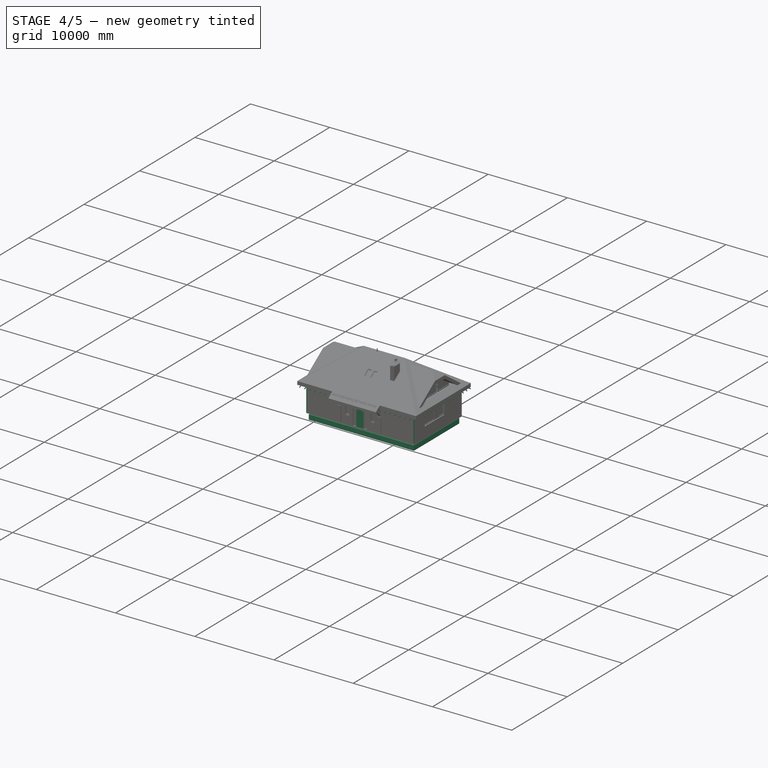
[diagram: stage 4 of 5 — iso view after this stage's code; geometry added in this stage tinted green]
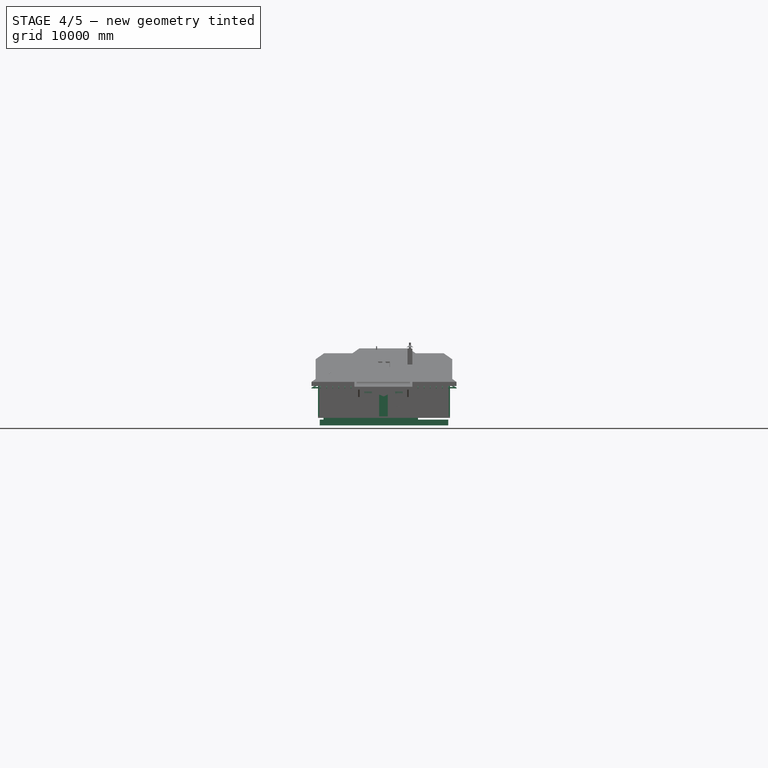
[diagram: stage 4 of 5 — front view after this stage's code; geometry added in this stage tinted green]
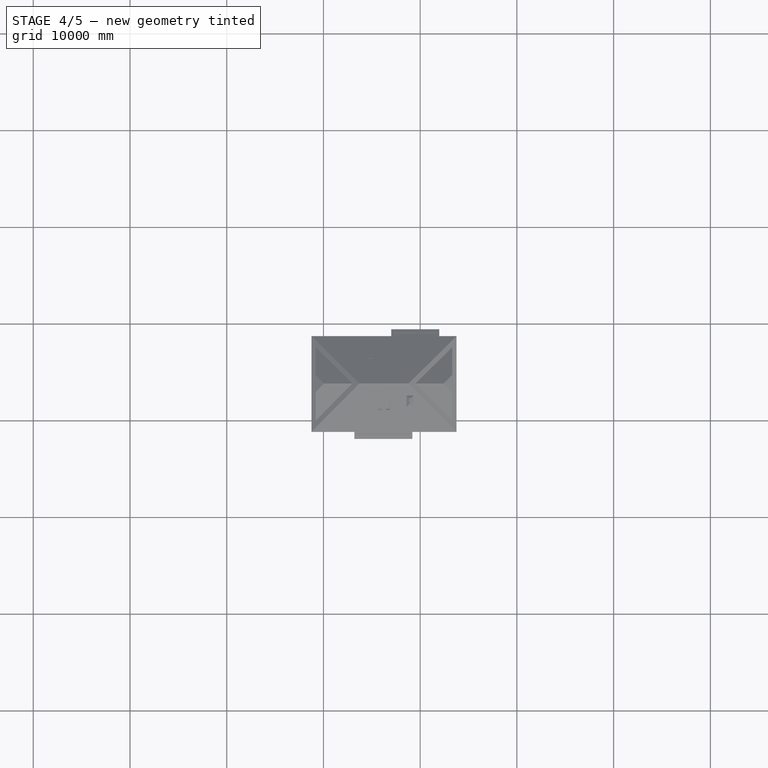
[diagram: stage 4 of 5 — top view after this stage's code; geometry added in this stage tinted green]
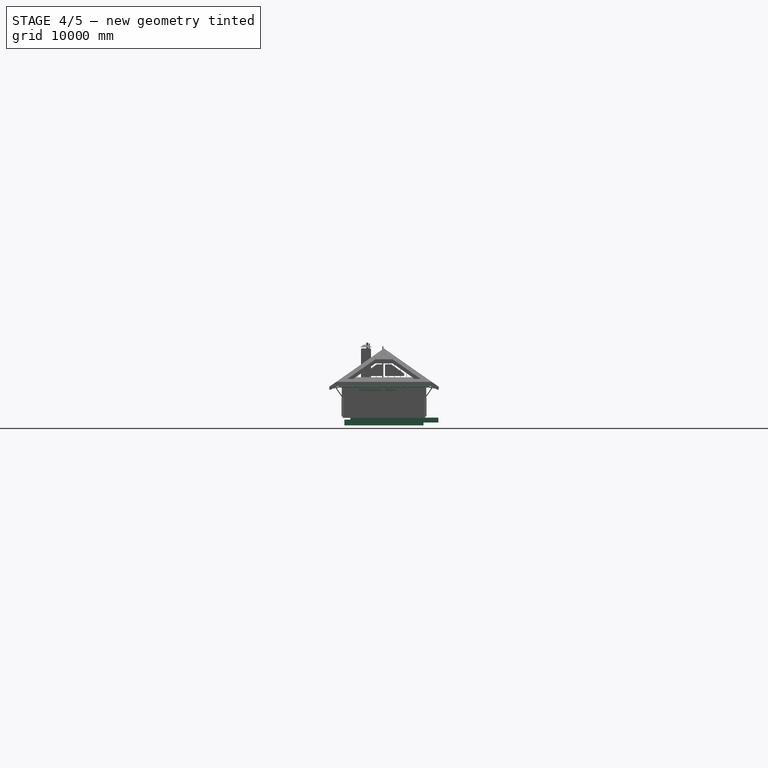
[diagram: stage 4 of 5 — right view after this stage's code; geometry added in this stage tinted green]
FEATURE [App::GeometryPython] BuildingPart009  label="Колонна_002"  # Arch/BIM 172 (typed FeaturePython)
  Area = 0
  Group = -> [Wall032,Wall033,Wall034,Wall035]
  Height = 0
  HeightPropagate = true
  IfcType = 172
  LevelOffset = 0
  PredefinedType = 0
FEATURE [Sketcher::SketchObject] Sketch236
  FullyConstrained = true
  Placement = pos=(5700,-540,-46) rot=(1,0,0;1.5708rad)
  sketch-geometry (16):
    g0: LineSegment StartX=0 StartY=0 StartZ=0 EndX=1000 EndY=0 EndZ=0
    g1: LineSegment StartX=1000 StartY=0 StartZ=0 EndX=1000 EndY=2310 EndZ=0
    g2: LineSegment StartX=1000 StartY=2310 StartZ=0 EndX=0 EndY=2310 EndZ=0
    g3: LineSegment StartX=0 StartY=2310 StartZ=0 EndX=0 EndY=0 EndZ=0
    g4: LineSegment StartX=50 StartY=0 StartZ=0 EndX=950 EndY=0 EndZ=0
    g5: LineSegment StartX=950 StartY=0 StartZ=0 EndX=950 EndY=2260 EndZ=0
    g6: LineSegment StartX=950 StartY=2260 StartZ=0 EndX=50 EndY=2260 EndZ=0
    g7: LineSegment StartX=50 StartY=2260 StartZ=0 EndX=50 EndY=0 EndZ=0
    g8: LineSegment StartX=55 StartY=5 StartZ=0 EndX=945 EndY=5 EndZ=0
    g9: LineSegment StartX=945 StartY=5 StartZ=0 EndX=945 EndY=2255 EndZ=0
    g10: LineSegment StartX=945 StartY=2255 StartZ=0 EndX=55 EndY=2255 EndZ=0
    g11: LineSegment StartX=55 StartY=2255 StartZ=0 EndX=55 EndY=5 EndZ=0
    g12: LineSegment StartX=455 StartY=1205 StartZ=0 EndX=545 EndY=1205 EndZ=0
    g13: LineSegment StartX=545 StartY=1205 StartZ=0 EndX=545 EndY=2055 EndZ=0
    g14: LineSegment StartX=545 StartY=2055 StartZ=0 EndX=455 EndY=2055 EndZ=0
    g15: LineSegment StartX=455 StartY=2055 StartZ=0 EndX=455 EndY=1205 EndZ=0
  constraints (47):
    c: Coincident(g0,g1)
    c: Coincident(g1,g2)
    c: Coincident(g2,g3)
    c: Coincident(g3,g0)
    c: Horizontal(g0)
    c: Horizontal(g2)
    c: Vertical(g1)
    c: Vertical(g3)
    c: Coincident(g4,g5)
    c: Coincident(g5,g6)
    c: Coincident(g6,g7)
    c: Coincident(g7,g4)
    c: Horizontal(g4)
    c: Horizontal(g6)
    c: Vertical(g5)
    c: Vertical(g7)
    c: DistanceY(g1) = 2310  'Height'
    c: DistanceX(g0) = 1000  'Width'
    c: DistanceY(g6,g2) = 50  'Frame1'
    c: DistanceX(g2,g6) = 50  'Frame2'
    c: DistanceX(g4,g0) = 50  'Frame3'
    c: DistanceY(g0,g4) = 0
    c: Coincident(g0,g-1)
    c: Coincident(g8,g9)
    c: Coincident(g9,g10)
    c: Coincident(g10,g11)
    c: Coincident(g11,g8)
    c: Horizontal(g8)
    c: Horizontal(g10)
    c: Vertical(g9)
    c: Vertical(g11)
    c: Coincident(g12,g13)
    c: Coincident(g13,g14)
    c: Coincident(g14,g15)
    c: Coincident(g15,g12)
    c: Horizontal(g12)
    c: Horizontal(g14)
    c: Vertical(g13)
    c: Vertical(g15)
    c: DistanceX(g8,g12) = 400
    c: DistanceY(g8,g12) = 1200
    c: DistanceX(g14,g10) = 400
    c: DistanceY(g14,g10) = 200
    c: DistanceX(g4,g8) = 5
    c: DistanceY(g4,g8) = 5
    c: DistanceX(g10,g6) = 5
    c: DistanceY(g10,g6) = 5
FEATURE [Part::FeaturePython] Window009  label="Д-100-001"  # Arch/BIM 41 (typed FeaturePython)
  Area = 2310000
  Base = -> Sketch236
  Frame = 50
  Height = 2310
  HoleDepth = 0
  HoleWire = 0
  HorizontalArea = 0
  IfcData = attributes={"OverallHeight": {"value": 2310.0}, "OverallWidth": {"value": 1000.0}}
  IfcType = 41
  LouvreSpacing = 0
  LouvreWidth = 0
  MoveBase = false
  MoveWithHost = true
  Normal = (0,1,0)
  Opening = 0
  OperationType = 0
  OverallHeight = 2310
  OverallWidth = 1000
  PerimeterLength = 0
  PredefinedType = 0
  Preset = 7
  SymbolElevation = false
  SymbolPlan = false
  VerticalArea = 0
  Width = 1000
  WindowParts = OuterFrame | Frame | Wire0,Wire1 | 0.0+V | 0.00+V | InnerFrame | Frame | Wire2,Wire3 | 0.00+V | 0.0+V | InnerGlass | Glass panel | Wire3 | 8.0 | 40.0+V
  expr: OverallHeight = .Height.Value
  expr: OverallWidth = .Width.Value
FEATURE [App::GeometryPython] BuildingPart015  label="Колодец d1000 (ввод воды и канализации)"  # Arch/BIM 172 (typed FeaturePython)
  Area = 0
  Group = -> [Structure040,Structure043]
  Height = 0
  HeightPropagate = true
  IfcType = 172
  LevelOffset = 0
  PredefinedType = 0
FEATURE [Part::Part2DObjectPython] Line1077  # Draft 2D object (typed FeaturePython)
  ChamferSize = 0
  Closed = true
  End = (-50,-30,0)
  FilletRadius = 0
  Length = 12620
  MakeFace = false
  Placement = pos=(12060,280,0) rot=(0,0,1;0rad)
  Points = (2) [(510,-310,0),(-12110,-310,0)]
  Start = (12570,-30,0)
  Subdivisions = 0
FEATURE [Part::Part2DObjectPython] Rectangle2286  # Draft 2D object (typed FeaturePython)
  ChamferSize = 0
  Columns = 1
  FilletRadius = 0
  Height = 5190
  Length = 9350
  MakeFace = false
  Placement = pos=(1950,2210,0) rot=(0,0,1;0rad)
  Rows = 1
FEATURE [Part::FeaturePython] Structure047  label="Плоскость стропила"  # Arch/BIM 7 (typed FeaturePython)
  FaceMaker = 0
  Height = 5000
  HorizontalArea = 600000
  IfcType = 7
  Length = 12000
  MoveBase = false
  MoveWithHost = false
  Nodes = (2) [(0,1.81899e-16,-8.88178e-15),(0,1.81899e-16,14000)]
  NodesOffset = 0
  Normal = (0,0,0)
  PerimeterLength = 24100
  Placement = pos=(175,-2000,4500) rot=(0,0,1;1.5708rad)
  PredefinedType = 0
  VerticalArea = 120500000
  Width = 50
FEATURE [Part::FeaturePython] Structure051  label="вычитаемый объём 003"  # Arch/BIM 172 (typed FeaturePython)
  FaceMaker = 0
  Height = 4000
  HorizontalArea = 32092225
  IfcType = 172
  Length = 0
  MoveBase = false
  MoveWithHost = false
  Nodes = (2) [(12481.7,4805,0),(12481.7,4805,4000)]
  NodesOffset = 0
  Normal = (0,0,1)
  PerimeterLength = 27353
  Placement = pos=(0,0,3160) rot=(0,0,1;0rad)
  PredefinedType = 0
  VerticalArea = 1.09412e+08
  Width = 100
FEATURE [Part::FeaturePython] Structure052  label="Плоскость стропила001"  # Arch/BIM 7 (typed FeaturePython)
  FaceMaker = 0
  Height = 5000
  HorizontalArea = 850000
  IfcType = 7
  Length = 17000
  MoveBase = false
  MoveWithHost = false
  Nodes = (2) [(0,1.81899e-16,-8.88178e-15),(0,1.81899e-16,17000)]
  NodesOffset = 0
  Normal = (0,0,0)
  PerimeterLength = 34100
  Placement = pos=(-2000,55,4500) rot=(0,0,1;0rad)
  PredefinedType = 0
  VerticalArea = 170500000
  Width = 50
FEATURE [Part::FeaturePython] Array013  # Draft array (typed FeaturePython)
  Angle = 360
  ArrayType = 0
  Axis = (0,0,1)
  Base = -> Structure047
  Center = (0,0,0)
  Fuse = false
  IntervalAxis = (0,0,0)
  IntervalX = (630,0,0)
  IntervalY = (0,1,0)
  IntervalZ = (0,0,1)
  NumberPolar = 1
  NumberX = 24
  NumberY = 1
  NumberZ = 1
  Placement = pos=(-1160,-1.819e-12,0) rot=(0,0,1;0rad)
FEATURE [Part::FeaturePython] Array014  # Draft array (typed FeaturePython)
  Angle = 360
  ArrayType = 0
  Axis = (0,0,1)
  Base = -> Structure052
  Center = (0,0,0)
  Fuse = false
  IntervalAxis = (0,0,0)
  IntervalX = (1,0,0)
  IntervalY = (0,630,0)
  IntervalZ = (0,0,1)
  NumberPolar = 1
  NumberX = 1
  NumberY = 15
  NumberZ = 1
  Placement = pos=(0,340,0) rot=(0,0,1;0rad)
FEATURE [TechDraw::DrawSVGTemplate] Template
  EditableTexts = AUTHOR_NAME=<owner>,DN=001,DRAWING_TITLE=Планировка одноэтажного дома,FC-DATE=26/04/2021,FC-REV=REV A,FC-SC=1:50,FC-SH=1 / 1,FC-SI=A2,+2 more (map truncated)
  Height = 420
  Orientation = 1
  Width = 594
FEATURE [TechDraw::DrawPage] Page  label="лист 1 - планировка"
  KeepUpdated = true
  NextBalloonIndex = 1
  ProjectionType = 0
  Scale = 0.02
  Template = -> Template
FEATURE [App::FeaturePython] Dimension003  # Draft dimension (typed FeaturePython)
  Diameter = false
  Dimline = (14800,-1000,0)
  Direction = (0,0,0)
  Distance = 8540
  End = (13080,8000,0)
  Normal = (0,0,1)
  Start = (13080,-540,0)
FEATURE [Sketcher::SketchObject] Sketch248
  FullyConstrained = true
  Placement = pos=(3800,3810,0) rot=(1,0,0;1.5708rad)
  sketch-geometry (8):
    g0: LineSegment StartX=0 StartY=0 StartZ=0 EndX=900 EndY=0 EndZ=0
    g1: LineSegment StartX=900 StartY=0 StartZ=0 EndX=900 EndY=2150 EndZ=0
    g2: LineSegment StartX=900 StartY=2150 StartZ=0 EndX=0 EndY=2150 EndZ=0
    g3: LineSegment StartX=0 StartY=2150 StartZ=0 EndX=0 EndY=0 EndZ=0
    g4: LineSegment StartX=50 StartY=0 StartZ=0 EndX=850 EndY=0 EndZ=0
    g5: LineSegment StartX=850 StartY=0 StartZ=0 EndX=850 EndY=2100 EndZ=0
    g6: LineSegment StartX=850 StartY=2100 StartZ=0 EndX=50 EndY=2100 EndZ=0
    g7: LineSegment StartX=50 StartY=2100 StartZ=0 EndX=50 EndY=0 EndZ=0
  constraints (23):
    c: Coincident(g0,g1)
    c: Coincident(g1,g2)
    c: Coincident(g2,g3)
    c: Coincident(g3,g0)
    c: Horizontal(g0)
    c: Horizontal(g2)
    c: Vertical(g1)
    c: Vertical(g3)
    c: Coincident(g4,g5)
    c: Coincident(g5,g6)
    c: Coincident(g6,g7)
    c: Coincident(g7,g4)
    c: Horizontal(g4)
    c: Horizontal(g6)
    c: Vertical(g5)
    c: Vertical(g7)
    c: DistanceY(g1) = 2150  'Height'
    c: DistanceX(g0) = 900  'Width'
    c: DistanceY(g6,g2) = 50  'Frame1'
    c: DistanceX(g2,g6) = 50  'Frame2'
    c: DistanceX(g4,g0) = 50  'Frame3'
    c: DistanceY(g0,g4) = 0
    c: Coincident(g0,g-1)
FEATURE [Part::FeaturePython] Window020  label="Д-90-004"  # Arch/BIM 41 (typed FeaturePython)
  Area = 1935000
  Base = -> Sketch248
  Frame = 50
  Height = 2150
  HoleDepth = 0
  HoleWire = 0
  HorizontalArea = 0
  IfcData = attributes={"OverallHeight": {"value": 2150.0}, "OverallWidth": {"value": 900.0}}
  IfcType = 41
  LouvreSpacing = 0
  LouvreWidth = 0
  MoveBase = false
  MoveWithHost = true
  Normal = (0,-1,0)
  Opening = 0
  OperationType = 0
  OverallHeight = 2150
  OverallWidth = 900
  PerimeterLength = 0
  PredefinedType = 0
  Preset = 6
  SymbolElevation = false
  SymbolPlan = false
  VerticalArea = 0
  Width = 900
  WindowParts = OuterFrame | Frame | Wire0,Wire1 | 0.0+V | 0.00+V | Door | Solid panel | Wire1 | 50.0 | 0.0+V
  expr: OverallHeight = .Height.Value
  expr: OverallWidth = .Width.Value
FEATURE [App::GeometryPython] BuildingPart035  label="Внешние элементы"  # Arch/BIM 172 (typed FeaturePython)
  Area = 0
  Group = -> [Structure028,Structure029]
  Height = 0
  HeightPropagate = true
  IfcType = 172
  LevelOffset = 0
  PredefinedType = 0
FEATURE [Image::ImagePlane] ImagePlane  label="План участка"
  Placement = pos=(6252.32,18787.3,-450) rot=(0,0,1;3.14159rad)
  XSize = 103541
  YSize = 98696.8
FEATURE [Sketcher::SketchObject] Sketch251
  FullyConstrained = true
  Placement = pos=(3500,2500,0) rot=(0.57735,0.57735,0.57735;2.0944rad)
  sketch-geometry (8):
    g0: LineSegment StartX=0 StartY=0 StartZ=0 EndX=900 EndY=0 EndZ=0
    g1: LineSegment StartX=900 StartY=0 StartZ=0 EndX=900 EndY=2150 EndZ=0
    g2: LineSegment StartX=900 StartY=2150 StartZ=0 EndX=0 EndY=2150 EndZ=0
    g3: LineSegment StartX=0 StartY=2150 StartZ=0 EndX=0 EndY=0 EndZ=0
    g4: LineSegment StartX=50 StartY=0 StartZ=0 EndX=850 EndY=0 EndZ=0
    g5: LineSegment StartX=850 StartY=0 StartZ=0 EndX=850 EndY=2100 EndZ=0
    g6: LineSegment StartX=850 StartY=2100 StartZ=0 EndX=50 EndY=2100 EndZ=0
    g7: LineSegment StartX=50 StartY=2100 StartZ=0 EndX=50 EndY=0 EndZ=0
  constraints (23):
    c: Coincident(g0,g1)
    c: Coincident(g1,g2)
    c: Coincident(g2,g3)
    c: Coincident(g3,g0)
    c: Horizontal(g0)
    c: Horizontal(g2)
    c: Vertical(g1)
    c: Vertical(g3)
    c: Coincident(g4,g5)
    c: Coincident(g5,g6)
    c: Coincident(g6,g7)
    c: Coincident(g7,g4)
    c: Horizontal(g4)
    c: Horizontal(g6)
    c: Vertical(g5)
    c: Vertical(g7)
    c: DistanceY(g1) = 2150  'Height'
    c: DistanceX(g0) = 900  'Width'
    c: DistanceY(g6,g2) = 50  'Frame1'
    c: DistanceX(g2,g6) = 50  'Frame2'
    c: DistanceX(g4,g0) = 50  'Frame3'
    c: DistanceY(g0,g4) = 0
    c: Coincident(g0,g-1)
FEATURE [Part::FeaturePython] Window021  label="Д-90-003"  # Arch/BIM 41 (typed FeaturePython)
  Area = 1935000
  Base = -> Sketch251
  Frame = 50
  Height = 2150
  HoleDepth = 0
  HoleWire = 0
  HorizontalArea = 0
  IfcData = attributes={"OverallHeight": {"value": 2150.0}, "OverallWidth": {"value": 900.0}}
  IfcType = 41
  LouvreSpacing = 0
  LouvreWidth = 0
  MoveBase = false
  MoveWithHost = true
  Normal = (1,0,0)
  Opening = 0
  OperationType = 0
  OverallHeight = 2150
  OverallWidth = 900
  PerimeterLength = 0
  PredefinedType = 0
  Preset = 6
  SymbolElevation = false
  SymbolPlan = false
  VerticalArea = 0
  Width = 900
  WindowParts = OuterFrame | Frame | Wire0,Wire1 | 0.0+V | 0.00+V | Door | Solid panel | Wire1 | 50.0 | 0.0+V
  expr: OverallHeight = .Height.Value
  expr: OverallWidth = .Width.Value
FEATURE [App::FeaturePython] Dimension004  # Draft dimension (typed FeaturePython)
  Diameter = false
  Dimline = (-1400,-1000,0)
  Direction = (0,0,0)
  Distance = 3865
  End = (-2000,3665,0)
  Normal = (0,0,1)
  Start = (-2000,-200,0)
FEATURE [App::FeaturePython] Dimension006  # Draft dimension (typed FeaturePython)
  Diameter = false
  Dimline = (-1400,4100,0)
  Direction = (0,0,0)
  Distance = 3995
  End = (-2000,7660,0)
  Normal = (0,0,1)
  Start = (-2000,3665,0)
FEATURE [App::FeaturePython] Dimension007  # Draft dimension (typed FeaturePython)
  Diameter = false
  Dimline = (-600,9000,0)
  Direction = (0,0,0)
  Distance = 5090
  End = (4870,9700,0)
  Normal = (0,0,1)
  Start = (-220,9700,0)
FEATURE [App::FeaturePython] Dimension009  # Draft dimension (typed FeaturePython)
  Diameter = false
  Dimline = (8100,9000,0)
  Direction = (0,0,0)
  Distance = 1000
  End = (7890,9700,0)
  Normal = (0,0,1)
  Start = (6890,9700,0)
FEATURE [Part::Part2DObjectPython] Rectangle2392  # Draft 2D object (typed FeaturePython)
  ChamferSize = 0
  Columns = 1
  FilletRadius = 50
  Height = 400
  Length = 400
  MakeFace = false
  Placement = pos=(12050,2076,0) rot=(0,0,1;0rad)
  Rows = 1
FEATURE [Part::Part2DObjectPython] Line1178  label="облицовка_стены_028"  # Draft 2D object (typed FeaturePython)
  ChamferSize = 0
  Closed = true
  End = (12950,8000,0)
  FilletRadius = 0
  Length = 13510
  MakeFace = false
  Placement = pos=(-450,8520,0) rot=(0,0,1;0rad)
  Points = (2) [(-110,-520,0),(13400,-520,0)]
  Start = (-560,8000,0)
  Subdivisions = 0
FEATURE [Part::Part2DObjectPython] Line1179  label="облицовка_стены_029"  # Draft 2D object (typed FeaturePython)
  ChamferSize = 0
  Closed = true
  End = (13080,8000,0)
  FilletRadius = 0
  Length = 8540
  MakeFace = false
  Placement = pos=(14815,4225,0) rot=(0,0,1;0rad)
  Points = (2) [(-1735,-4765,0),(-1735,3775,0)]
  Start = (13080,-540,0)
  Subdivisions = 0
FEATURE [Part::Part2DObjectPython] Rectangle2573  label="четверть_790_009"  # Draft 2D object (typed FeaturePython)
  ChamferSize = 0
  Columns = 1
  FilletRadius = 0
  Height = 120
  Length = 500
  MakeFace = true
  Placement = pos=(4360,-540,0) rot=(0,0,1;0rad)
  Rows = 1
FEATURE [Part::Part2DObjectPython] Rectangle2571  label="четверть_1050_002"  # Draft 2D object (typed FeaturePython)
  ChamferSize = 0
  Columns = 1
  FilletRadius = 0
  Height = 120
  Length = 1000
  MakeFace = true
  Placement = pos=(5700,-540,0) rot=(0,0,1;0rad)
  Rows = 1
FEATURE [Part::FeaturePython] Structure148  label="Проём_четв._031"  # Arch/BIM 172 (typed FeaturePython)
  Base = -> Rectangle2571
  FaceMaker = 0
  Height = 2315
  HorizontalArea = 120000
  IfcType = 172
  Length = 0
  MoveBase = false
  MoveWithHost = false
  Nodes = (2) [(5775,-395,0),(5775,-395,2335)]
  NodesOffset = 0
  Normal = (0,0,0)
  PerimeterLength = 2240
  Placement = pos=(0,0,-40) rot=(0,0,1;0rad)
  PredefinedType = 0
  VerticalArea = 5.1856e+06
  Width = 100
FEATURE [Part::FeaturePython] Structure149  label="Проём_четв._032"  # Arch/BIM 172 (typed FeaturePython)
  Base = -> Rectangle2573
  FaceMaker = 0
  Height = 1320
  HorizontalArea = 60000
  IfcType = 172
  Length = 0
  MoveBase = false
  MoveWithHost = false
  Nodes = (2) [(4618,-450,0),(4618,-450,1320)]
  NodesOffset = 0
  Normal = (0,0,0)
  PerimeterLength = 1240
  Placement = pos=(0,0,955) rot=(0,0,1;0rad)
  PredefinedType = 0
  VerticalArea = 1.6368e+06
  Width = 100
FEATURE [Part::Part2DObjectPython] Line1180  label="облицовка_стены_030"  # Draft 2D object (typed FeaturePython)
  ChamferSize = 0
  Closed = true
  End = (-430,-540,0)
  FilletRadius = 0
  Length = 13380
  MakeFace = false
  Placement = pos=(12780,-540,0) rot=(0,0,1;0rad)
  Points = (2) [(170,1.02318e-12,0),(-13210,2.84217e-12,0)]
  Start = (12950,-540,0)
  Subdivisions = 0
FEATURE [Part::Part2DObjectPython] Line1181  label="облицовка_стены_031"  # Draft 2D object (typed FeaturePython)
  ChamferSize = 0
  Closed = true
  End = (-560,-540,0)
  FilletRadius = 0
  Length = 8410
  MakeFace = false
  Placement = pos=(-515,-735,0) rot=(0,0,1;0rad)
  Points = (2) [(-45,8605,0),(-45,195,0)]
  Start = (-560,7870,0)
  Subdivisions = 0
FEATURE [Part::Part2DObjectPython] Rectangle2579  label="четверть_790_014"  # Draft 2D object (typed FeaturePython)
  ChamferSize = 0
  Columns = 1
  FilletRadius = 0
  Height = 120
  Length = 1894
  MakeFace = true
  Placement = pos=(12960,3215,0) rot=(0,0,-1;1.5708rad)
  Rows = 1
FEATURE [Part::FeaturePython] Structure146  label="Проём_четв._029"  # Arch/BIM 172 (typed FeaturePython)
  Base = -> Rectangle2579
  FaceMaker = 0
  Height = 1336
  HorizontalArea = 227280
  IfcType = 172
  Length = 0
  MoveBase = false
  MoveWithHost = false
  Nodes = (2) [(1035,460,0),(1035,460,535)]
  NodesOffset = 0
  Normal = (0,0,0)
  PerimeterLength = 4028
  Placement = pos=(0,0,1186) rot=(0,0,1;0rad)
  PredefinedType = 0
  VerticalArea = 5381408
  Width = 100
FEATURE [Part::Part2DObjectPython] Rectangle2577  label="четверть_790_012"  # Draft 2D object (typed FeaturePython)
  ChamferSize = 0
  Columns = 1
  FilletRadius = 0
  Height = 120
  Length = 758
  MakeFace = true
  Placement = pos=(12960,4868,0) rot=(0,0,-1;1.5708rad)
  Rows = 1
FEATURE [Part::Part2DObjectPython] Line1184  label="Line1179"  # Draft 2D object (typed FeaturePython)
  ChamferSize = 0
  Closed = false
  End = (8175,-540,0)
  FilletRadius = 0
  Length = 770
  MakeFace = true
  Placement = pos=(7405,-540,0) rot=(0,0,-1;0rad)
  Points = (2) [(0,0,0),(770,3.41061e-13,0)]
  Start = (7405,-540,0)
  Subdivisions = 0
FEATURE [Part::FeaturePython] Structure150  label="Проём_четв._033"  # Arch/BIM 172 (typed FeaturePython)
  Base = -> Rectangle2577
  FaceMaker = 0
  Height = 1336
  HorizontalArea = 90960
  IfcType = 172
  Length = 0
  MoveBase = false
  MoveWithHost = false
  Nodes = (2) [(1035,460,0),(1035,460,535)]
  NodesOffset = 0
  Normal = (0,0,0)
  PerimeterLength = 1756
  Placement = pos=(0,0,1186) rot=(0,0,1;0rad)
  PredefinedType = 0
  VerticalArea = 2346016
  Width = 100
FEATURE [Part::Part2DObjectPython] Line1186  # Draft 2D object (typed FeaturePython)
  ChamferSize = 0
  Closed = true
  End = (5975,8000,0)
  FilletRadius = 0
  Length = 4053
  MakeFace = true
  Placement = pos=(1922,8000,0) rot=(0,0,1;0rad)
  Points = (2) [(0,0,0),(4053,0,0)]
  Start = (1922,8000,0)
  Subdivisions = 0
FEATURE [Part::Part2DObjectPython] Line1187  # Draft 2D object (typed FeaturePython)
  ChamferSize = 0
  Closed = true
  End = (13080,4997,0)
  FilletRadius = 0
  Length = 3811
  MakeFace = true
  Placement = pos=(13080,1186,0) rot=(0,0,1;1.5708rad)
  Points = (2) [(0,0,0),(3811,1.81899e-11,0)]
  Start = (13080,1186,0)
  Subdivisions = 0
FEATURE [Part::Part2DObjectPython] Rectangle2580  label="четверть_1050_003"  # Draft 2D object (typed FeaturePython)
  ChamferSize = 0
  Columns = 1
  FilletRadius = 0
  Height = 120
  Length = 500
  MakeFace = true
  Placement = pos=(7540,-540,0) rot=(0,0,1;0rad)
  Rows = 1
FEATURE [Part::FeaturePython] Structure151  label="Проём_четв._034"  # Arch/BIM 172 (typed FeaturePython)
  Base = -> Rectangle2580
  FaceMaker = 0
  Height = 1320
  HorizontalArea = 60000
  IfcType = 172
  Length = 0
  MoveBase = false
  MoveWithHost = false
  Nodes = (2) [(5775,-395,0),(5775,-395,2335)]
  NodesOffset = 0
  Normal = (0,0,0)
  PerimeterLength = 1240
  Placement = pos=(0,0,955) rot=(0,0,1;0rad)
  PredefinedType = 0
  VerticalArea = 1.6368e+06
  Width = 100
FEATURE [Part::Part2DObjectPython] Line1191  label="Line1184"  # Draft 2D object (typed FeaturePython)
  ChamferSize = 0
  Closed = false
  End = (4995,-540,0)
  FilletRadius = 0
  Length = 770
  MakeFace = true
  Placement = pos=(4225,-570,0) rot=(0,0,-1;0rad)
  Points = (2) [(0,30,0),(770,30,0)]
  Start = (4225,-540,0)
  Subdivisions = 0
FEATURE [Sketcher::SketchObject] Sketch256
  FullyConstrained = true
  Placement = pos=(-440,1900,970) rot=(0.57735,0.57735,0.57735;2.0944rad)
  sketch-geometry (24):
    g0: LineSegment StartX=0 StartY=0 StartZ=0 EndX=1500 EndY=0 EndZ=0
    g1: LineSegment StartX=1500 StartY=0 StartZ=0 EndX=1500 EndY=1600 EndZ=0
    g2: LineSegment StartX=1500 StartY=1600 StartZ=0 EndX=0 EndY=1600 EndZ=0
    g3: LineSegment StartX=0 StartY=1600 StartZ=0 EndX=0 EndY=0 EndZ=0
    g4: LineSegment StartX=50 StartY=50 StartZ=0 EndX=1450 EndY=50 EndZ=0
    g5: LineSegment StartX=1450 StartY=50 StartZ=0 EndX=1450 EndY=1550 EndZ=0
    g6: LineSegment StartX=1450 StartY=1550 StartZ=0 EndX=50 EndY=1550 EndZ=0
    g7: LineSegment StartX=50 StartY=1550 StartZ=0 EndX=50 EndY=50 EndZ=0
    g8: LineSegment StartX=55 StartY=55 StartZ=0 EndX=747.5 EndY=55 EndZ=0
    g9: LineSegment StartX=747.5 StartY=55 StartZ=0 EndX=747.5 EndY=1545 EndZ=0
    g10: LineSegment StartX=747.5 StartY=1545 StartZ=0 EndX=55 EndY=1545 EndZ=0
    g11: LineSegment StartX=55 StartY=1545 StartZ=0 EndX=55 EndY=55 EndZ=0
    g12: LineSegment StartX=105 StartY=105 StartZ=0 EndX=697.5 EndY=105 EndZ=0
    g13: LineSegment StartX=697.5 StartY=105 StartZ=0 EndX=697.5 EndY=1495 EndZ=0
    g14: LineSegment StartX=697.5 StartY=1495 StartZ=0 EndX=105 EndY=1495 EndZ=0
    g15: LineSegment StartX=105 StartY=1495 StartZ=0 EndX=105 EndY=105 EndZ=0
    g16: LineSegment StartX=752.5 StartY=55 StartZ=0 EndX=1445 EndY=55 EndZ=0
    g17: LineSegment StartX=1445 StartY=55 StartZ=0 EndX=1445 EndY=1545 EndZ=0
    g18: LineSegment StartX=1445 StartY=1545 StartZ=0 EndX=752.5 EndY=1545 EndZ=0
    g19: LineSegment StartX=752.5 StartY=1545 StartZ=0 EndX=752.5 EndY=55 EndZ=0
    g20: LineSegment StartX=802.5 StartY=105 StartZ=0 EndX=1395 EndY=105 EndZ=0
    g21: LineSegment StartX=1395 StartY=105 StartZ=0 EndX=1395 EndY=1495 EndZ=0
    g22: LineSegment StartX=1395 StartY=1495 StartZ=0 EndX=802.5 EndY=1495 EndZ=0
    g23: LineSegment StartX=802.5 StartY=1495 StartZ=0 EndX=802.5 EndY=105 EndZ=0
  constraints (71):
    c: Coincident(g0,g1)
    c: Coincident(g1,g2)
    c: Coincident(g2,g3)
    c: Coincident(g3,g0)
    c: Horizontal(g0)
    c: Horizontal(g2)
    c: Vertical(g1)
    c: Vertical(g3)
    c: Coincident(g4,g5)
    c: Coincident(g5,g6)
    c: Coincident(g6,g7)
    c: Coincident(g7,g4)
    c: Horizontal(g4)
    c: Horizontal(g6)
    c: Vertical(g5)
    c: Vertical(g7)
    c: DistanceY(g1) = 1600  'Height'
    c: DistanceX(g0) = 1500  'Width'
    c: DistanceY(g6,g2) = 50  'Frame1'
    c: DistanceX(g2,g6) = 50  'Frame2'
    c: DistanceX(g4,g0) = 50  'Frame3'
    c: DistanceY(g0,g4) = 50  'Frame4'
    c: Coincident(g0,g-1)
    c: Coincident(g8,g9)
    c: Coincident(g9,g10)
    c: Coincident(g10,g11)
    c: Coincident(g11,g8)
    c: Horizontal(g8)
    c: Horizontal(g10)
    c: Vertical(g9)
    c: Vertical(g11)
    c: Coincident(g12,g13)
    c: Coincident(g13,g14)
    c: Coincident(g14,g15)
    c: Coincident(g15,g12)
    c: Horizontal(g12)
    c: Horizontal(g14)
    c: Vertical(g13)
    c: Vertical(g15)
    c: Coincident(g16,g17)
    c: Coincident(g17,g18)
    c: Coincident(g18,g19)
    c: Coincident(g19,g16)
    c: Horizontal(g16)
    c: Horizontal(g18)
    c: Vertical(g17)
    c: Vertical(g19)
    c: Coincident(g20,g21)
    c: Coincident(g21,g22)
    c: Coincident(g22,g23)
    c: Coincident(g23,g20)
    c: Horizontal(g20)
    c: Horizontal(g22)
    c: Vertical(g21)
    c: Vertical(g23)
    c: DistanceY(g8,g12) = 50  'Frame5'
    c: DistanceX(g8,g12) = 50  'Frame6'
    c: DistanceX(g21,g17) = 50  'Frame7'
    c: DistanceY(g21,g17) = 50  'Frame8'
    c: DistanceX(g16,g20) = 50  'Frame9'
    c: DistanceX(g14,g10) = 50  'Frame10'
    c: Equal(g22,g14)
    c: DistanceY(g8,g16) = 0
    c: DistanceY(g10,g18) = 0
    c: DistanceX(g4,g8) = 5
    c: DistanceY(g4,g8) = 5
    c: DistanceX(g6,g18) = -5
    c: DistanceY(g6,g18) = -5
    c: DistanceX(g9,g19) = 5
    c: PointOnObject(g13,g22)
    c: PointOnObject(g20,g12)
FEATURE [Part::FeaturePython] Window022  label="ОК-150-001"  # Arch/BIM 170 (typed FeaturePython)
  Area = 2400000
  Base = -> Sketch256
  Frame = 50
  Height = 1600
  HoleDepth = 0
  HoleWire = 0
  HorizontalArea = 0
  IfcData = attributes={"OverallHeight": {"value": 1600.0}, "OverallWidth": {"value": 1500.0}}
  IfcType = 170
  LouvreSpacing = 0
  LouvreWidth = 0
  MoveBase = false
  MoveWithHost = true
  Normal = (1,0,0)
  Opening = 0
  OverallHeight = 1600
  OverallWidth = 1500
  PartitioningType = 0
  PerimeterLength = 0
  PredefinedType = 0
  Preset = 3
  SymbolElevation = false
  SymbolPlan = false
  VerticalArea = 0
  Width = 1500
  WindowParts = OuterFrame | Frame | Wire0,Wire1 | 30.0+V | 0.00+V | LeftFrame | Frame | Wire2,Wire3 | 50.0 | 0.0+V | LeftGlass | Glass panel | Wire3 | 5.0 | 25.0+V | RightFrame | Frame | Wire4,Wire5 | 50.0 | 0.0+V | RightGlass | Glass panel | Wire5 | 5.0 | 25.0+V
  expr: OverallHeight = .Height.Value
  expr: OverallWidth = .Width.Value
FEATURE [Sketcher::SketchObject] Sketch260
  FullyConstrained = true
  Placement = pos=(5750,2270,-180) rot=(1,0,0;1.5708rad)
  sketch-geometry (8):
    g0: LineSegment StartX=0 StartY=0 StartZ=0 EndX=900 EndY=0 EndZ=0
    g1: LineSegment StartX=900 StartY=0 StartZ=0 EndX=900 EndY=2150 EndZ=0
    g2: LineSegment StartX=900 StartY=2150 StartZ=0 EndX=0 EndY=2150 EndZ=0
    g3: LineSegment StartX=0 StartY=2150 StartZ=0 EndX=0 EndY=0 EndZ=0
    g4: LineSegment StartX=50 StartY=0 StartZ=0 EndX=850 EndY=0 EndZ=0
    g5: LineSegment StartX=850 StartY=0 StartZ=0 EndX=850 EndY=2100 EndZ=0
    g6: LineSegment StartX=850 StartY=2100 StartZ=0 EndX=50 EndY=2100 EndZ=0
    g7: LineSegment StartX=50 StartY=2100 StartZ=0 EndX=50 EndY=0 EndZ=0
  constraints (23):
    c: Coincident(g0,g1)
    c: Coincident(g1,g2)
    c: Coincident(g2,g3)
    c: Coincident(g3,g0)
    c: Horizontal(g0)
    c: Horizontal(g2)
    c: Vertical(g1)
    c: Vertical(g3)
    c: Coincident(g4,g5)
    c: Coincident(g5,g6)
    c: Coincident(g6,g7)
    c: Coincident(g7,g4)
    c: Horizontal(g4)
    c: Horizontal(g6)
    c: Vertical(g5)
    c: Vertical(g7)
    c: DistanceY(g1) = 2150  'Height'
    c: DistanceX(g0) = 900  'Width'
    c: DistanceY(g6,g2) = 50  'Frame1'
    c: DistanceX(g2,g6) = 50  'Frame2'
    c: DistanceX(g4,g0) = 50  'Frame3'
    c: DistanceY(g0,g4) = 0
    c: Coincident(g0,g-1)
FEATURE [Part::FeaturePython] Window026  label="Д-90-002"  # Arch/BIM 41 (typed FeaturePython)
  Area = 1935000
  Base = -> Sketch260
  Frame = 50
  Height = 2150
  HoleDepth = 0
  HoleWire = 0
  HorizontalArea = 0
  IfcData = attributes={"OverallHeight": {"value": 2150.0}, "OverallWidth": {"value": 900.0}}
  IfcType = 41
  LouvreSpacing = 0
  LouvreWidth = 0
  MoveBase = false
  MoveWithHost = true
  Normal = (0,1,0)
  Opening = 0
  OperationType = 0
  OverallHeight = 2150
  OverallWidth = 900
  PerimeterLength = 0
  Placement = pos=(0,0,180) rot=(0,0,1;0rad)
  PredefinedType = 0
  Preset = 6
  SymbolElevation = false
  SymbolPlan = false
  VerticalArea = 0
  Width = 900
  WindowParts = OuterFrame | Frame | Wire0,Wire1 | 0.0+V | 0.00+V | Door | Solid panel | Wire1 | 50.0 | 0.0+V
  expr: OverallHeight = .Height.Value
  expr: OverallWidth = .Width.Value
FEATURE [Part::Part2DObjectPython] Line1200  label="Line1202"  # Draft 2D object (typed FeaturePython)
  ChamferSize = 0
  Closed = true
  End = (7890,6460,0)
  FilletRadius = 0
  Length = 2670
  MakeFace = false
  Placement = pos=(5420,5450,0) rot=(0,0,-1;1.5708rad)
  Points = (2) [(1660,2470,0),(-1010,2470,0)]
  Start = (7890,3790,0)
  Subdivisions = 0
FEATURE [Part::Part2DObjectPython] Line1201  label="ось фундамента внутр.стены001"  # Draft 2D object (typed FeaturePython)
  ChamferSize = 0
  Closed = true
  End = (9525,9350,0)
  FilletRadius = 0
  Length = 9090
  MakeFace = false
  Placement = pos=(7825,2900,0) rot=(0,0,1;1.5708rad)
  Points = (2) [(-2640,-1700,0),(6450,-1700,0)]
  Start = (9525,260,0)
  Subdivisions = 0
FEATURE [Part::FeaturePython] Wall129  label="фундамент внутр.стена002"  # Arch/BIM 166 (typed FeaturePython)
  Align = 2
  Area = 4545000
  Base = -> Line1201
  BlockHeight = 0
  BlockLength = 0
  CountBroken = 0
  CountEntire = 0
  Face = 0
  Height = 500
  HorizontalArea = 2.2725e+06
  IfcType = 166
  Joint = 0
  Length = 9090
  MakeBlocks = false
  MoveBase = false
  MoveWithHost = false
  Normal = (0,0,-1)
  OffsetFirst = 0
  OffsetSecond = 0
  PerimeterLength = 18680
  Placement = pos=(0,0,-180) rot=(0,0,1;0rad)
  PredefinedType = 0
  VerticalArea = 9340000
  Width = 250
FEATURE [App::GeometryPython] BuildingPart036  label="Эргономика"  # Arch/BIM 172 (typed FeaturePython)
  Area = 0
  Group = -> [Extrude007,Extrude008,Extrude012,Extrude022]
  Height = 0
  HeightPropagate = true
  IfcType = 172
  LevelOffset = 0
  PredefinedType = 0
FEATURE [Part::FeaturePython] Wall145  label="табуретка"  # Arch/BIM 166 (typed FeaturePython)
  Align = 2
  Area = 1992000
  BlockHeight = 0
  BlockLength = 0
  CountBroken = 0
  CountEntire = 0
  Face = 0
  Height = 150
  HorizontalArea = 1.328e+06
  IfcType = 166
  Joint = 0
  Length = 13280
  MakeBlocks = false
  MoveBase = false
  MoveWithHost = false
  Normal = (0,0,0)
  OffsetFirst = 0
  OffsetSecond = 0
  PerimeterLength = 26760
  Placement = pos=(0,0,5260) rot=(0,0,1;0rad)
  PredefinedType = 0
  VerticalArea = 4.014e+06
  Width = 100
FEATURE [Part::Part2DObjectPython] Rectangle2651  label="уширение фундамента 001"  # Draft 2D object (typed FeaturePython)
  ChamferSize = 0
  Columns = 1
  FilletRadius = 0
  Height = 1030
  Length = 130
  MakeFace = false
  Placement = pos=(3600,5330,0) rot=(0,0,1;0rad)
  Rows = 1
FEATURE [Part::FeaturePython] Structure172  label="уширение фундамента001"  # Arch/BIM 172 (typed FeaturePython)
  Base = -> Rectangle2651
  FaceMaker = 0
  Height = 500
  HorizontalArea = 133900
  IfcType = 172
  Length = 0
  MoveBase = false
  MoveWithHost = false
  Nodes = (2) [(3665,5845,0),(3665,5845,-500)]
  NodesOffset = 0
  Normal = (0,0,-1)
  PerimeterLength = 2320
  Placement = pos=(0,0,-180) rot=(0,0,1;0rad)
  PredefinedType = 0
  VerticalArea = 1160000
  Width = 100
FEATURE [Part::Part2DObjectPython] Rectangle556  label="вытяжка осн мал"  # Draft 2D object (typed FeaturePython)
  ChamferSize = 0
  Columns = 1
  FilletRadius = 0
  Height = 400
  Length = 400
  MakeFace = false
  Placement = pos=(11300,390,1600) rot=(0,0,-1;1.5708rad)
  Rows = 1
FEATURE [Part::Box] Box3145  label="ТВ"
  AttacherType = Attacher::AttachEngine3D
  Height = 750
  Length = 1400
  Placement = pos=(8090,6200,620) rot=(0,0,-1;1.5708rad)
  Width = 100
FEATURE [Part::Box] Box3143  label="шкаф книжн. "
  AttacherType = Attacher::AttachEngine3D
  Height = 2700
  Length = 900
  Placement = pos=(320,-10,0) rot=(0,0,1;1.5708rad)
  Width = 350
FEATURE [Part::Part2DObjectPython] Rectangle555  label="вытяжка осн бол"  # Draft 2D object (typed FeaturePython)
  ChamferSize = 0
  Columns = 1
  FilletRadius = 0
  Height = 600
  Length = 500
  MakeFace = false
  Placement = pos=(11200,490,1550) rot=(0,0,-1;1.5708rad)
  Rows = 1
FEATURE [Part::Loft] Loft001  label="вытяжка"
  Closed = false
  MaxDegree = 5
  Ruled = false
  Sections = -> [Rectangle555,Rectangle556]
  Solid = true
FEATURE [Part::Feature] Fillet001  label="стол обеденный"
  Placement = pos=(10350,2890,0) rot=(0,0,1;0rad)
  shape: bbox 1500 x 750 x 750 mm, 30 faces (baked)
FEATURE [Part::Feature] Fusion013  label="стул005"
  Placement = pos=(10350,2890,0) rot=(0,0,1;0rad)
  shape: bbox 480 x 520 x 910 mm, 35 faces (baked)
FEATURE [Part::Feature] Fusion014  label="стул006"
  Placement = pos=(10350,2890,0) rot=(0,0,1;0rad)
  shape: bbox 480 x 520 x 910 mm, 35 faces (baked)
FEATURE [Part::Feature] Fusion015  label="стул007"
  Placement = pos=(10350,2890,0) rot=(0,0,1;0rad)
  shape: bbox 480 x 520 x 910 mm, 35 faces (baked)
FEATURE [Part::Feature] Fusion016  label="стул008"
  Placement = pos=(10350,2890,0) rot=(0,0,1;0rad)
  shape: bbox 480 x 520 x 910 mm, 35 faces (baked)
FEATURE [Part::Box] Box3154  label="шкаф 55 одежда 001"
  AttacherType = Attacher::AttachEngine3D
  Height = 2700
  Length = 2280
  Placement = pos=(7300,-10,0) rot=(0,0,1;1.5708rad)
  Width = 500
FEATURE [Part::Box] Box3155  label="шкаф 60 одежда 002"
  AttacherType = Attacher::AttachEngine3D
  Height = 2700
  Length = 1400
  Placement = pos=(4200,1670,0) rot=(0,0,1;0rad)
  Width = 600
FEATURE [Part::Box] Box3156  label="шкаф 60 одежда 003"
  AttacherType = Attacher::AttachEngine3D
  Height = 2700
  Length = 2280
  Placement = pos=(4100,-10,0) rot=(0,0,1;1.5708rad)
  Width = 600
FEATURE [Part::Feature] Fusion019  label="кровать 2 спальная 210х170 002"
  Placement = pos=(6970,7925,0) rot=(0,0,-1;1.5708rad)
  shape: bbox 2100 x 1700 x 800 mm, 53 faces (baked)
FEATURE [Part::Feature] Fusion027  label="Диван кабинет"
  Placement = pos=(3475,2970,0) rot=(0,0,1;3.14159rad)
  shape: bbox 1950 x 950 x 800 mm, 23 faces (baked)
FEATURE [Part::Box] Box3175  label="Холодильник"
  AttacherType = Attacher::AttachEngine3D
  Height = 1600
  Length = 600
  Placement = pos=(10150,-10,0) rot=(0,0,1;1.5708rad)
  Width = 600
FEATURE [Part::Box] Box3178  label="шкаф 45 кухонный 002"
  AttacherType = Attacher::AttachEngine3D
  Height = 700
  Length = 1800
  Placement = pos=(10750,-10,1600) rot=(0,0,1;0rad)
  Width = 450
FEATURE [Part::Box] Box3179  label="шкаф 60 кухонный 003"
  AttacherType = Attacher::AttachEngine3D
  Height = 700
  Length = 600
  Placement = pos=(9550,-10,1600) rot=(0,0,1;0rad)
  Width = 600
FEATURE [Part::Box] Box3192  label="кофеварка"
  AttacherType = Attacher::AttachEngine3D
  Height = 250
  Length = 200
  Placement = pos=(12494,3045.99,850) rot=(0,0,1;1.5708rad)
  Width = 250
FEATURE [Part::Cylinder] Cylinder001  label="чайник"
  Angle = 360
  AttacherType = Attacher::AttachEngine3D
  Height = 250
  Placement = pos=(12393.3,3359.1,850) rot=(0,0,1;1.5708rad)
  Radius = 75
FEATURE [Part::Part2DObjectPython] Rectangle2663  label="уширение фундамента 002"  # Draft 2D object (typed FeaturePython)
  ChamferSize = 0
  Columns = 1
  FilletRadius = 0
  Height = 1030
  Length = 130
  MakeFace = false
  Placement = pos=(9650,4310,0) rot=(0,0,1;0rad)
  Rows = 1
FEATURE [Part::FeaturePython] Structure175  label="уширение фундамента002"  # Arch/BIM 172 (typed FeaturePython)
  Base = -> Rectangle2663
  FaceMaker = 0
  Height = 500
  HorizontalArea = 133900
  IfcType = 172
  Length = 0
  MoveBase = false
  MoveWithHost = false
  Nodes = (2) [(9715,4825,0),(9715,4825,-500)]
  NodesOffset = 0
  Normal = (0,0,-1)
  PerimeterLength = 2320
  Placement = pos=(0,0,-180) rot=(0,0,1;0rad)
  PredefinedType = 0
  VerticalArea = 1160000
  Width = 100
FEATURE [Part::Part2DObjectPython] Rectangle2939  # Draft 2D object (typed FeaturePython)
  ChamferSize = 0
  Columns = 1
  FilletRadius = 100
  Height = 800
  Length = 1500
  MakeFace = true
  Placement = pos=(10350,3265,0) rot=(0,0,1;0rad)
  Rows = 1
FEATURE [Part::Part2DObjectPython] Rectangle2941  # Draft 2D object (typed FeaturePython)
  ChamferSize = 0
  Columns = 1
  FilletRadius = 0
  Height = 300
  Length = 500
  MakeFace = true
  Placement = pos=(10490,4065,0) rot=(0,0,1;0rad)
  Rows = 1
FEATURE [Part::Part2DObjectPython] Rectangle2944  # Draft 2D object (typed FeaturePython)
  ChamferSize = 0
  Columns = 1
  FilletRadius = 0
  Height = 300
  Length = 500
  MakeFace = true
  Placement = pos=(10490,2965,0) rot=(0,0,1;0rad)
  Rows = 1
FEATURE [Part::FeaturePython] Structure155  label="Вентстояк вычитаемы объём 001"  # Arch/BIM 172 (typed FeaturePython)
  Base = -> Rectangle2589
  FaceMaker = 0
  Height = 6000
  HorizontalArea = 589000
  IfcType = 172
  Length = 0
  MoveBase = false
  MoveWithHost = false
  Nodes = (2) [(-3390,9095,0),(-3390,9095,6000)]
  NodesOffset = 0
  Normal = (0,0,0)
  PerimeterLength = 3860
  Placement = pos=(0,0,-180) rot=(0,0,1;0rad)
  PredefinedType = 0
  VerticalArea = 2.316e+07
  Width = 100
FEATURE [Part::Part2DObjectPython] Wire691  label="кровля_контур_001"  # Draft 2D object (typed FeaturePython)
  Area = 0
  ChamferSize = 0
  Closed = true
  End = (-1230,8670,0)
  FilletRadius = 0
  Length = 49720
  MakeFace = false
  Placement = pos=(19000,-1120,0) rot=(0,0,1;0rad)
  Points = (4) [(-20230,-90,0),(-5250,-90,0),(-5250,9790,0),(-20230,9790,0)]
  Start = (-1230,-1210,0)
  Subdivisions = 0
FEATURE [Part::FeaturePython] Roof013  label="Крыша объём стропильной системы"  # Arch/BIM 113 (typed FeaturePython)
  Angles = [30,30,30,30]
  Base = -> Wire691
  BorderLength = 49720
  Face = 0
  Flip = false
  Heights = [2852.11,3345.74,2852.11,3345.74]
  HorizontalArea = 1.48002e+08
  IdRel = [-1,-1,-1,-1]
  IfcData = attributes={"GlobalId": {"name": "GlobalId", "type": "IfcGloballyUniqueId", "is_enum": false, "enum_values": []}, "Description": {"... (+613 chars omitted),+1 more (map truncated)
  IfcType = 113
  MoveBase = false
  MoveWithHost = false
  Overhang = [0,0,0,0]
  PerimeterLength = 0
  Placement = pos=(0,0,3180) rot=(0,0,1;0rad)
  PredefinedType = 0
  RidgeLength = 35283.9
  Runs = [5795,5795,5795,5795]
  Thickness = [190,190,190,190]
  VerticalArea = 1.09082e+07
FEATURE [Part::MultiCommon] Common024
  Shapes = -> [Roof013,Structure051]
FEATURE [Part::MultiCommon] Common025  label="Стропилка_003"
  Shapes = -> [Common024,Array014]
FEATURE [Part::Cut] Cut026
  Base = -> Common025
  Tool = -> Wall145
FEATURE [Part::Part2DObjectPython] Line1302  label="ось фундамента внутр.стены002"  # Draft 2D object (typed FeaturePython)
  ChamferSize = 0
  Closed = true
  End = (9400,4025,0)
  FilletRadius = 0
  Length = 9400
  MakeFace = false
  Placement = pos=(7825,3025,0) rot=(0,0,1;1.5708rad)
  Points = (2) [(1000,7825,0),(1000,-1575,0)]
  Start = (0,4025,0)
  Subdivisions = 0
FEATURE [Part::FeaturePython] Wall174  label="фундамент внутр.стена003"  # Arch/BIM 166 (typed FeaturePython)
  Align = 2
  Area = 4.7e+06
  Base = -> Line1302
  BlockHeight = 0
  BlockLength = 0
  CountBroken = 0
  CountEntire = 0
  Face = 0
  Height = 500
  HorizontalArea = 2.35e+06
  IfcType = 166
  Joint = 0
  Length = 9400
  MakeBlocks = false
  MoveBase = false
  MoveWithHost = false
  Normal = (0,0,-1)
  OffsetFirst = 0
  OffsetSecond = 0
  PerimeterLength = 19300
  Placement = pos=(0,0,-180) rot=(0,0,1;0rad)
  PredefinedType = 0
  VerticalArea = 9.65e+06
  Width = 250
FEATURE [Part::FeaturePython] Wall175  label="фундамент внутр. стена 003"  # Arch/BIM 166 (typed FeaturePython)
  Additions = -> [Wall174]
  Align = 2
  Area = 2.82e+06
  Base = -> Line1302
  BlockHeight = 0
  BlockLength = 0
  CountBroken = 0
  CountEntire = 0
  Face = 0
  Height = 300
  HorizontalArea = 4.7e+06
  IfcType = 166
  Joint = 0
  Length = 9400
  MakeBlocks = false
  MoveBase = false
  MoveWithHost = false
  Normal = (0,0,-1)
  OffsetFirst = 0
  OffsetSecond = 0
  PerimeterLength = 28620
  Placement = pos=(0,0,-680) rot=(0,0,1;0rad)
  PredefinedType = 0
  VerticalArea = 1.559e+07
  Width = 500
FEATURE [Part::FeaturePython] Roof014  label="Крыша объём кобылок"  # Arch/BIM 113 (typed FeaturePython)
  Angles = [28,28,28,28]
  Base = -> Wire691
  BorderLength = 93040
  Face = 0
  Flip = false
  Heights = [425.368,425.368,425.368,425.368]
  HorizontalArea = 3.7216e+07
  IdRel = [-1,-1,-1,-1]
  IfcData = attributes={"GlobalId": {"name": "GlobalId", "type": "IfcGloballyUniqueId", "is_enum": false, "enum_values": []}, "Description": {"... (+613 chars omitted),+1 more (map truncated)
  IfcType = 113
  MoveBase = false
  MoveWithHost = false
  Overhang = [0,0,0,0]
  PerimeterLength = 0
  Placement = pos=(0,0,2820) rot=(0,0,1;0rad)
  PredefinedType = 0
  RidgeLength = 4834.77
  Runs = [800,800,800,800]
  Thickness = [100,100,100,100]
  VerticalArea = 1.05374e+07
FEATURE [Part::MultiCommon] Common031  label="Кобылки 001"
  Placement = pos=(50,0,0) rot=(0,0,1;0rad)
  Shapes = -> [Roof014,Array013]
FEATURE [Part::MultiCommon] Common032  label="Кобылки 002"
  Placement = pos=(0,50,0) rot=(0,0,1;0rad)
  Shapes = -> [Roof014,Array014]
FEATURE [Part::Part2DObjectPython] Rectangle3000  # Draft 2D object (typed FeaturePython)
  Area = 810000
  ChamferSize = 0
  Columns = 1
  FilletRadius = 0
  Height = 900
  Length = 900
  MakeFace = true
  Placement = pos=(5930,6555,0) rot=(0,0,1;0rad)
  Rows = 1
FEATURE [Part::Part2DObjectPython] Rectangle3004  # Draft 2D object (typed FeaturePython)
  ChamferSize = 0
  Columns = 1
  FilletRadius = 0
  Height = 600
  Length = 600
  MakeFace = true
  Placement = pos=(8250,-10,0) rot=(0,0,1;0rad)
  Rows = 1
FEATURE [Part::Part2DObjectPython] ShapeString185  # Draft 2D object (typed FeaturePython)
  FontFile = <path>
  Placement = pos=(8472.79,91.4359,0) rot=(0,0,1;0rad)
  Size = 300
  String = *
  Tracking = 0
FEATURE [Part::Part2DObjectPython] ShapeString186  # Draft 2D object (typed FeaturePython)
  FontFile = <path>
  Placement = pos=(10206,195.637,0) rot=(0,0,1;0rad)
  Size = 200
  String = ДШ
  Tracking = 0
FEATURE [Part::FeaturePython] Wall184  label="МЗЛФ нижняя часть"  # Arch/BIM 166 (typed FeaturePython)
  Align = 0
  Area = 24072000
  Base = -> Rectangle2788
  BlockHeight = 0
  BlockLength = 0
  CountBroken = 0
  CountEntire = 0
  Face = 0
  Height = 600
  HorizontalArea = 1.4532e+07
  IfcData = attributes={"GlobalId": {"name": "GlobalId", "type": "IfcGloballyUniqueId", "is_enum": false, "enum_values": []}, "Description": {"... (+533 chars omitted),+1 more (map truncated)
  IfcType = 166
  Joint = 0
  Length = 40120
  MakeBlocks = false
  MoveBase = false
  MoveWithHost = false
  Normal = (0,0,0)
  OffsetFirst = 0
  OffsetSecond = 0
  PerimeterLength = 42920
  Placement = pos=(0,0,-980) rot=(0,0,1;0rad)
  PredefinedType = 0
  VerticalArea = 49824000
  Width = 350
FEATURE [Part::Part2DObjectPython] Line1326  # Draft 2D object (typed FeaturePython)
  Area = 0
  ChamferSize = 0
  Closed = false
  End = (15300,7200,0)
  FilletRadius = 0
  Length = 2300
  MakeFace = true
  Placement = pos=(15300,9500,0) rot=(0,0,1;0rad)
  Points = (2) [(0,0,0),(0,-2300,0)]
  Start = (15300,9500,0)
  Subdivisions = 0
FEATURE [Part::Part2DObjectPython] Line1327  # Draft 2D object (typed FeaturePython)
  Area = 0
  ChamferSize = 0
  Closed = false
  End = (15300,9500,0)
  FilletRadius = 0
  Length = 282.843
  MakeFace = true
  Placement = pos=(15100,9700,0) rot=(0,0,1;0rad)
  Points = (2) [(0,0,0),(200,-200,0)]
  Start = (15100,9700,0)
  Subdivisions = 0
FEATURE [Part::Part2DObjectPython] Line1328  # Draft 2D object (typed FeaturePython)
  Area = 0
  ChamferSize = 0
  Closed = false
  End = (15500,9700,0)
  FilletRadius = 0
  Length = 282.843
  MakeFace = true
  Placement = pos=(15300,9500,0) rot=(0,0,1;0rad)
  Points = (2) [(0,0,0),(200,200,0)]
  Start = (15300,9500,0)
  Subdivisions = 0
FEATURE [Part::Part2DObjectPython] Line1329  # Draft 2D object (typed FeaturePython)
  Area = 0
  ChamferSize = 0
  Closed = false
  End = (15100,7600,0)
  FilletRadius = 0
  Length = 447.214
  MakeFace = true
  Placement = pos=(15300,7200,0) rot=(0,0,1;0rad)
  Points = (2) [(0,0,0),(-200,400,0)]
  Start = (15300,7200,0)
  Subdivisions = 0
FEATURE [Part::Part2DObjectPython] Line1330  # Draft 2D object (typed FeaturePython)
  Area = 0
  ChamferSize = 0
  Closed = false
  End = (15500,7600,0)
  FilletRadius = 0
  Length = 447.214
  MakeFace = true
  Placement = pos=(15300,7200,0) rot=(0,0,1;0rad)
  Points = (2) [(0,0,0),(200,400,0)]
  Start = (15300,7200,0)
  Subdivisions = 0
FEATURE [Part::Part2DObjectPython] ShapeString189  # Draft 2D object (typed FeaturePython)
  FontFile = <path>
  Placement = pos=(15206.7,6799.61,0) rot=(0,0,1;0rad)
  Size = 250
  String = С
  Tracking = 0
FEATURE [Part::Part2DObjectPython] ShapeString191  # Draft 2D object (typed FeaturePython)
  FontFile = <path>
  Placement = pos=(15106.7,9799.61,0) rot=(0,0,1;0rad)
  Size = 250
  String = Юг
  Tracking = 0
FEATURE [App::FeaturePython] Dimension010  # Draft dimension (typed FeaturePython)
  Diameter = false
  Dimline = (5300,9000,0)
  Direction = (0,0,0)
  Distance = 2020
  End = (6890,9700,0)
  Normal = (0,0,1)
  Start = (4870,9700,0)
FEATURE [Part::Part2DObjectPython] Line1340  # Draft 2D object (typed FeaturePython)
  Area = 0
  ChamferSize = 0
  Closed = true
  End = (12570,-410,0)
  FilletRadius = 0
  Length = 13000
  MakeFace = false
  Placement = pos=(-400,-505,0) rot=(0,0,1;0rad)
  Points = (2) [(-30,95,0),(12970,95,0)]
  Start = (-430,-410,0)
  Subdivisions = 0
FEATURE [Part::Part2DObjectPython] Rectangle3074  label="Тёплый контур"  # Draft 2D object (typed FeaturePython)
  Area = 9.40984e+07
  ChamferSize = 0
  Columns = 1
  FilletRadius = 0
  Height = 7480
  Length = 12580
  MakeFace = true
  Placement = pos=(-30,-10,0) rot=(0,0,1;0rad)
  Rows = 1
FEATURE [Part::Part2DObjectPython] Rectangle003  label="СУ"  # Draft 2D object (typed FeaturePython)
  Area = 6954000
  ChamferSize = 0
  Columns = 1
  FilletRadius = 0
  Height = 3660
  Length = 1900
  MakeFace = true
  Placement = pos=(4930,3810,0) rot=(0,0,1;0rad)
  Rows = 1
FEATURE [Part::Part2DObjectPython] Rectangle005  label="Прихожая"  # Draft 2D object (typed FeaturePython)
  Area = 7.068e+06
  ChamferSize = 0
  Columns = 1
  FilletRadius = 0
  Height = 2280
  Length = 3100
  MakeFace = true
  Placement = pos=(4200,-10,0) rot=(0,0,1;0rad)
  Rows = 1
FEATURE [Part::Part2DObjectPython] Rectangle006  label="Туалет"  # Draft 2D object (typed FeaturePython)
  Area = 1.32e+06
  ChamferSize = 0
  Columns = 1
  FilletRadius = 0
  Height = 1500
  Length = 880
  MakeFace = true
  Placement = pos=(6950,3810,0) rot=(0,0,1;0rad)
  Rows = 1
FEATURE [Part::Part2DObjectPython] Rectangle008  label="Спальня 1 этаж"  # Draft 2D object (typed FeaturePython)
  Area = 17751000
  ChamferSize = 0
  Columns = 1
  FilletRadius = 0
  Height = 3660
  Length = 4850
  MakeFace = true
  Placement = pos=(-30,3810,0) rot=(0,0,1;0rad)
  Rows = 1
FEATURE [Part::Part2DObjectPython] Rectangle009  label="Кухня"  # Draft 2D object (typed FeaturePython)
  Area = 10590000
  ChamferSize = 0
  Columns = 1
  FilletRadius = 0
  Height = 3530
  Length = 3000
  MakeFace = true
  Placement = pos=(9550,-10,0) rot=(0,0,1;0rad)
  Rows = 1
FEATURE [Part::Part2DObjectPython] Rectangle011  label="Коридор"  # Draft 2D object (typed FeaturePython)
  Area = 6.8425e+06
  ChamferSize = 0
  Columns = 1
  FilletRadius = 0
  Height = 1150
  Length = 5950
  MakeFace = true
  Placement = pos=(3600,2370,0) rot=(0,0,1;0rad)
  Rows = 1
FEATURE [Part::Part2DObjectPython] Line1341  # Draft 2D object (typed FeaturePython)
  Area = 0
  ChamferSize = 0
  Closed = true
  End = (-430,-30,0)
  FilletRadius = 0
  Length = 7900
  MakeFace = false
  Placement = pos=(-345,-380,0) rot=(0,0,1;0rad)
  Points = (2) [(-85,8250,0),(-85,350,0)]
  Start = (-430,7870,0)
  Subdivisions = 0
FEATURE [Part::Part2DObjectPython] Line1342  # Draft 2D object (typed FeaturePython)
  Area = 0
  ChamferSize = 0
  Closed = true
  End = (12950,7490,0)
  FilletRadius = 0
  Length = 7900
  MakeFace = false
  Placement = pos=(-4425,-450,0) rot=(0,0,1;0rad)
  Points = (2) [(17375,40,0),(17375,7940,0)]
  Start = (12950,-410,0)
  Subdivisions = 0
FEATURE [Part::Part2DObjectPython] Line1343  # Draft 2D object (typed FeaturePython)
  Area = 0
  ChamferSize = 0
  Closed = true
  End = (12950,-30,0)
  FilletRadius = 0
  Length = 7900
  MakeFace = false
  Placement = pos=(-4425,-760,0) rot=(0,0,1;0rad)
  Points = (2) [(17375,8630,0),(17375,730,0)]
  Start = (12950,7870,0)
  Subdivisions = 0
FEATURE [Part::Part2DObjectPython] Line1347  # Draft 2D object (typed FeaturePython)
  Area = 0
  ChamferSize = 0
  Closed = true
  End = (-430,7490,0)
  FilletRadius = 0
  Length = 7900
  MakeFace = false
  Placement = pos=(-345,-890,0) rot=(0,0,1;0rad)
  Points = (2) [(-85,480,0),(-85,8380,0)]
  Start = (-430,-410,0)
  Subdivisions = 0
FEATURE [Part::FeaturePython] Wall206  label="Стена021"  # Arch/BIM 166 (typed FeaturePython)
  Align = 0
  Area = 1824900
  Base = -> Line1343
  BlockHeight = 231
  BlockLength = 255
  CountBroken = 1
  CountEntire = 30
  Face = 0
  Height = 231
  HorizontalArea = 0
  IfcData = attributes={"GlobalId": {"name": "GlobalId", "type": "IfcGloballyUniqueId", "is_enum": false, "enum_values": []}, "Description": {"... (+533 chars omitted),+1 more (map truncated)
  IfcType = 166
  Joint = 0
  Length = 7900
  MakeBlocks = true
  MoveBase = false
  MoveWithHost = false
  Normal = (0,0,0)
  OffsetFirst = 0
  OffsetSecond = 0
  PerimeterLength = 0
  Placement = pos=(0,0,31) rot=(0,0,1;0rad)
  PredefinedType = 0
  VerticalArea = 0
  Width = 380
FEATURE [Part::FeaturePython] Wall207  label="Стена022"  # Arch/BIM 166 (typed FeaturePython)
  Align = 1
  Area = 1824900
  Base = -> Line1342
  BlockHeight = 231
  BlockLength = 255
  CountBroken = 1
  CountEntire = 30
  Face = 0
  Height = 231
  HorizontalArea = 0
  IfcData = attributes={"GlobalId": {"name": "GlobalId", "type": "IfcGloballyUniqueId", "is_enum": false, "enum_values": []}, "Description": {"... (+533 chars omitted),+1 more (map truncated)
  IfcType = 166
  Joint = 0
  Length = 7900
  MakeBlocks = true
  MoveBase = false
  MoveWithHost = false
  Normal = (0,0,0)
  OffsetFirst = 0
  OffsetSecond = 0
  PerimeterLength = 0
  Placement = pos=(0,0,-200) rot=(0,0,1;0rad)
  PredefinedType = 0
  VerticalArea = 0
  Width = 380
FEATURE [Part::FeaturePython] Wall209  label="Стена024"  # Arch/BIM 166 (typed FeaturePython)
  Align = 1
  Area = 3003000
  Base = -> Line1340
  BlockHeight = 231
  BlockLength = 255
  CountBroken = 3
  CountEntire = 46
  Face = 0
  Height = 231
  HorizontalArea = 0
  IfcData = attributes={"GlobalId": {"name": "GlobalId", "type": "IfcGloballyUniqueId", "is_enum": false, "enum_values": []}, "Description": {"... (+533 chars omitted),+1 more (map truncated)
  IfcType = 166
  Joint = 0
  Length = 13000
  MakeBlocks = true
  MoveBase = false
  MoveWithHost = false
  Normal = (0,0,0)
  OffsetFirst = 0
  OffsetSecond = 0
  PerimeterLength = 0
  Placement = pos=(0,0,-200) rot=(0,0,1;0rad)
  PredefinedType = 0
  Subtractions = -> [Structure019]
  VerticalArea = 0
  Width = 380
FEATURE [Part::FeaturePython] Wall211  label="Стена026"  # Arch/BIM 166 (typed FeaturePython)
  Align = 0
  Area = 1824900
  Base = -> Line1347
  BlockHeight = 231
  BlockLength = 255
  CountBroken = 1
  CountEntire = 30
  Face = 0
  Height = 231
  HorizontalArea = 0
  IfcData = attributes={"GlobalId": {"name": "GlobalId", "type": "IfcGloballyUniqueId", "is_enum": false, "enum_values": []}, "Description": {"... (+533 chars omitted),+1 more (map truncated)
  IfcType = 166
  Joint = 0
  Length = 7900
  MakeBlocks = true
  MoveBase = false
  MoveWithHost = false
  Normal = (0,0,0)
  OffsetFirst = 0
  OffsetSecond = 0
  PerimeterLength = 0
  Placement = pos=(0,0,31) rot=(0,0,1;0rad)
  PredefinedType = 0
  VerticalArea = 0
  Width = 380
FEATURE [Part::FeaturePython] Wall213  label="Стена028"  # Arch/BIM 166 (typed FeaturePython)
  Align = 1
  Area = 1824900
  Base = -> Line1341
  BlockHeight = 231
  BlockLength = 255
  CountBroken = 1
  CountEntire = 30
  Face = 0
  Height = 231
  HorizontalArea = 0
  IfcData = attributes={"GlobalId": {"name": "GlobalId", "type": "IfcGloballyUniqueId", "is_enum": false, "enum_values": []}, "Description": {"... (+533 chars omitted),+1 more (map truncated)
  IfcType = 166
  Joint = 0
  Length = 7900
  MakeBlocks = true
  MoveBase = false
  MoveWithHost = false
  Normal = (0,0,0)
  OffsetFirst = 0
  OffsetSecond = 0
  PerimeterLength = 0
  Placement = pos=(0,0,-200) rot=(0,0,1;0rad)
  PredefinedType = 0
  VerticalArea = 0
  Width = 380
FEATURE [Part::Part2DObjectPython] Line1349  # Draft 2D object (typed FeaturePython)
  Area = 0
  ChamferSize = 0
  Closed = true
  End = (-50,7870,0)
  FilletRadius = 0
  Length = 13000
  MakeFace = false
  Placement = pos=(-4925,-320,0) rot=(0,0,1;0rad)
  Points = (2) [(17875,8190,0),(4875,8190,0)]
  Start = (12950,7870,0)
  Subdivisions = 0
FEATURE [Part::Part2DObjectPython] Line1350  # Draft 2D object (typed FeaturePython)
  Area = 0
  ChamferSize = 0
  Closed = true
  End = (12570,7870,0)
  FilletRadius = 0
  Length = 13000
  MakeFace = false
  Placement = pos=(-345,-320,0) rot=(0,0,1;0rad)
  Points = (2) [(-85,8190,0),(12915,8190,0)]
  Start = (-430,7870,0)
  Subdivisions = 0
FEATURE [Part::Part2DObjectPython] Line1351  # Draft 2D object (typed FeaturePython)
  Area = 0
  ChamferSize = 0
  Closed = true
  End = (-50,-410,0)
  FilletRadius = 0
  Length = 13000
  MakeFace = false
  Placement = pos=(-4925,-450,0) rot=(0,0,1;0rad)
  Points = (2) [(17875,40,0),(4875,40,0)]
  Start = (12950,-410,0)
  Subdivisions = 0
FEATURE [Part::FeaturePython] Wall212  label="Стена027"  # Arch/BIM 166 (typed FeaturePython)
  Align = 0
  Area = 3003000
  Base = -> Line1351
  BlockHeight = 231
  BlockLength = 255
  CountBroken = 3
  CountEntire = 45
  Face = 0
  Height = 231
  HorizontalArea = 0
  IfcData = attributes={"GlobalId": {"name": "GlobalId", "type": "IfcGloballyUniqueId", "is_enum": false, "enum_values": []}, "Description": {"... (+533 chars omitted),+1 more (map truncated)
  IfcType = 166
  Joint = 0
  Length = 13000
  MakeBlocks = true
  MoveBase = false
  MoveWithHost = false
  Normal = (0,0,0)
  OffsetFirst = 0
  OffsetSecond = 0
  PerimeterLength = 0
  Placement = pos=(0,0,31) rot=(0,0,1;0rad)
  PredefinedType = 0
  Subtractions = -> [Structure019]
  VerticalArea = 0
  Width = 380
FEATURE [Part::FeaturePython] Wall208  label="Стена023"  # Arch/BIM 166 (typed FeaturePython)
  Align = 1
  Area = 3003000
  Base = -> Line1349
  BlockHeight = 231
  BlockLength = 255
  CountBroken = 3
  CountEntire = 41
  Face = 0
  Height = 231
  HorizontalArea = 0
  IfcData = attributes={"GlobalId": {"name": "GlobalId", "type": "IfcGloballyUniqueId", "is_enum": false, "enum_values": []}, "Description": {"... (+533 chars omitted),+1 more (map truncated)
  IfcType = 166
  Joint = 0
  Length = 13000
  MakeBlocks = true
  MoveBase = false
  MoveWithHost = false
  Normal = (0,0,0)
  OffsetFirst = 0
  OffsetSecond = 0
  PerimeterLength = 0
  Placement = pos=(0,0,-200) rot=(0,0,1;0rad)
  PredefinedType = 0
  Subtractions = -> [Structure308]
  VerticalArea = 0
  Width = 380
FEATURE [Part::FeaturePython] Wall210  label="Стена025"  # Arch/BIM 166 (typed FeaturePython)
  Align = 0
  Area = 3003000
  Base = -> Line1350
  BlockHeight = 231
  BlockLength = 255
  CountBroken = 3
  CountEntire = 42
  Face = 0
  Height = 231
  HorizontalArea = 0
  IfcData = attributes={"GlobalId": {"name": "GlobalId", "type": "IfcGloballyUniqueId", "is_enum": false, "enum_values": []}, "Description": {"... (+533 chars omitted),+1 more (map truncated)
  IfcType = 166
  Joint = 0
  Length = 13000
  MakeBlocks = true
  MoveBase = false
  MoveWithHost = false
  Normal = (0,0,0)
  OffsetFirst = 0
  OffsetSecond = 0
  PerimeterLength = 0
  Placement = pos=(0,0,31) rot=(0,0,1;0rad)
  PredefinedType = 0
  Subtractions = -> [Structure308]
  VerticalArea = 0
  Width = 380
FEATURE [Part::Part2DObjectPython] Rectangle3121  label="проём в перекрытии 007"  # Draft 2D object (typed FeaturePython)
  Area = 0
  ChamferSize = 0
  Columns = 1
  FilletRadius = 0
  Height = 3770
  Length = 1020
  MakeFace = false
  Placement = pos=(6900,3720,0) rot=(0,0,1;0rad)
  Rows = 1
FEATURE [Part::FeaturePython] Structure037  label="проём в перекрытии 004"  # Arch/BIM 172 (typed FeaturePython)
  Base = -> Rectangle3121
  FaceMaker = 0
  Height = 4500
  HorizontalArea = 3845400
  IfcType = 172
  Length = 0
  MoveBase = false
  MoveWithHost = false
  Nodes = (2) [(4500,6910,0),(4500,6910,4500)]
  NodesOffset = 0
  Normal = (0,0,0)
  PerimeterLength = 9580
  PredefinedType = 0
  VerticalArea = 43110000
  Width = 100
FEATURE [Part::Part2DObjectPython] Wire786  # Draft 2D object (typed FeaturePython)
  Area = 0
  ChamferSize = 0
  Closed = false
  End = (8360,6523.17,995)
  FilletRadius = 0
  Length = 4220.87
  MakeFace = true
  Placement = pos=(7890,3790,3920) rot=(0,0,1;0rad)
  Points = (7) [(0,0,0),(-9.09495e-13,2300,-1950),(25.1533,2438.81,-2145),(95.022,2562.32,-2340),(199.639,2658.2,-2535),(328.763,2717.06,-2730),(470,2733.17,-2925)]
  Start = (7890,3790,3920)
  Subdivisions = 0
FEATURE [Part::FeaturePython] Pipe005  label="поручень"  # Arch/BIM 98 (typed FeaturePython)
  Base = -> Wire786
  Diameter = 50
  HorizontalArea = 0
  IfcData = attributes={"GlobalId": {"name": "GlobalId", "type": "IfcGloballyUniqueId", "is_enum": false, "enum_values": []}, "Description": {"... (+487 chars omitted),+1 more (map truncated)
  IfcType = 98
  Length = 4220.87
  MoveBase = false
  MoveWithHost = false
  OffsetEnd = 0
  OffsetStart = 0
  PerimeterLength = 0
  PredefinedType = 0
  VerticalArea = 0
  WallThickness = 0
FEATURE [App::GeometryPython] BuildingPart080  label="Перекрытие 2-3"  # Arch/BIM 172 (typed FeaturePython)
  Area = 0
  Group = -> [Array060,Array059,Array058,Array061,Cut040,Cut041,Cut048,Cut049]
  Height = 0
  HeightPropagate = true
  IfcData = attributes={"GlobalId": {"name": "GlobalId", "type": "IfcGloballyUniqueId", "is_enum": false, "enum_values": []}, "Description": {"... (+484 chars omitted),+1 more (map truncated)
  IfcType = 172
  LevelOffset = 0
  PredefinedType = 0
FEATURE [App::GeometryPython] BuildingPart006  label="Перекрытие плитами ПНО"  # Arch/BIM 172 (typed FeaturePython)
  Area = 0
  Group = -> [BuildingPart074,BuildingPart080]
  Height = 0
  HeightPropagate = true
  IfcType = 172
  LevelOffset = 0
  PredefinedType = 0
FEATURE [Part::Part2DObjectPython] Rectangle3227  # Draft 2D object (typed FeaturePython)
  Area = 22500
  ChamferSize = 0
  Columns = 1
  FilletRadius = 0
  Height = 150
  Length = 150
  MakeFace = true
  Placement = pos=(3320,3655,0) rot=(0,0,1;0rad)
  Rows = 1
FEATURE [Part::Part2DObjectPython] Rectangle3228  # Draft 2D object (typed FeaturePython)
  Area = 22500
  ChamferSize = 0
  Columns = 1
  FilletRadius = 0
  Height = 150
  Length = 150
  MakeFace = true
  Placement = pos=(9050,3655,0) rot=(0,0,1;0rad)
  Rows = 1
FEATURE [Part::Part2DObjectPython] Rectangle3229  # Draft 2D object (typed FeaturePython)
  Area = 22500
  ChamferSize = 0
  Columns = 1
  FilletRadius = 0
  Height = 150
  Length = 150
  MakeFace = true
  Placement = pos=(5158.48,3655,0) rot=(0,0,1;0rad)
  Rows = 1
FEATURE [Part::Part2DObjectPython] Rectangle3232  # Draft 2D object (typed FeaturePython)
  Area = 169500
  ChamferSize = 0
  Columns = 1
  FilletRadius = 0
  Height = 150
  Length = 1130
  MakeFace = true
  Placement = pos=(7920,3655,0) rot=(0,0,1;0rad)
  Rows = 1
FEATURE [Part::Part2DObjectPython] Rectangle3233  # Draft 2D object (typed FeaturePython)
  Area = 545250
  ChamferSize = 0
  Columns = 1
  FilletRadius = 0
  Height = 3635
  Length = 150
  MakeFace = true
  Placement = pos=(7920,3805,0) rot=(0,0,1;0rad)
  Rows = 1
FEATURE [Part::Part2DObjectPython] Rectangle3236  # Draft 2D object (typed FeaturePython)
  Area = 545250
  ChamferSize = 0
  Columns = 1
  FilletRadius = 0
  Height = 3635
  Length = 150
  MakeFace = true
  Placement = pos=(6750,3805,0) rot=(0,0,1;0rad)
  Rows = 1
FEATURE [Part::Part2DObjectPython] Rectangle3239  # Draft 2D object (typed FeaturePython)
  Area = 0
  ChamferSize = 0
  Columns = 1
  FilletRadius = 0
  Height = 1200
  Length = 1200
  MakeFace = false
  Placement = pos=(4239.24,2877.18,0) rot=(0,0,1;0.785398rad)
  Rows = 1
FEATURE [Part::Part2DObjectPython] Rectangle3240  # Draft 2D object (typed FeaturePython)
  Area = 22500
  ChamferSize = 0
  Columns = 1
  FilletRadius = 0
  Height = 150
  Length = 150
  MakeFace = true
  Placement = pos=(6750,3655,0) rot=(0,0,1;0rad)
  Rows = 1
FEATURE [Part::Part2DObjectPython] Rectangle3244  # Draft 2D object (typed FeaturePython)
  Area = 122303
  ChamferSize = 0
  Columns = 1
  FilletRadius = 0
  Height = 265
  Length = 461.522
  MakeFace = true
  Placement = pos=(5288.48,3540,0) rot=(0,0,1;0rad)
  Rows = 1
FEATURE [Part::Part2DObjectPython] Rectangle3247  # Draft 2D object (typed FeaturePython)
  Area = 93750
  ChamferSize = 0
  Columns = 1
  FilletRadius = 0
  Height = 1250
  Length = 75
  MakeFace = true
  Placement = pos=(3341.97,3783.03,0) rot=(0,0,-1;0.785398rad)
  Rows = 1
FEATURE [Part::Part2DObjectPython] Rectangle3248  # Draft 2D object (typed FeaturePython)
  Area = 0
  ChamferSize = 0
  Columns = 1
  FilletRadius = 0
  Height = 1215
  Length = 100
  MakeFace = false
  Placement = pos=(9095,2440,0) rot=(0,0,1;0rad)
  Rows = 1
FEATURE [Part::Part2DObjectPython] Rectangle3249  # Draft 2D object (typed FeaturePython)
  Area = 290718
  ChamferSize = 0
  Columns = 1
  FilletRadius = 0
  Height = 2907.18
  Length = 100
  MakeFace = true
  Placement = pos=(4189.24,20,0) rot=(0,0,1;0rad)
  Rows = 1
FEATURE [Part::Part2DObjectPython] Rectangle3250  # Draft 2D object (typed FeaturePython)
  Area = 291576
  ChamferSize = 0
  Columns = 1
  FilletRadius = 0
  Height = 2915.76
  Length = 100
  MakeFace = true
  Placement = pos=(4189.24,4524.24,0) rot=(0,0,1;0rad)
  Rows = 1
FEATURE [Part::Part2DObjectPython] Rectangle3252  # Draft 2D object (typed FeaturePython)
  Area = 179000
  ChamferSize = 0
  Columns = 1
  FilletRadius = 0
  Height = 1790
  Length = 100
  MakeFace = true
  Placement = pos=(9095,-390,0) rot=(0,0,1;0rad)
  Rows = 1
FEATURE [Part::Part2DObjectPython] Rectangle3253  # Draft 2D object (typed FeaturePython)
  Area = 0
  ChamferSize = 0
  Columns = 1
  FilletRadius = 0
  Height = 800
  Length = 100
  MakeFace = false
  Placement = pos=(9095,2600,0) rot=(0,0,1;0rad)
  Rows = 1
FEATURE [Part::Part2DObjectPython] Arc119  label="Arc120"  # Draft 2D object (typed FeaturePython)
  Area = 0
  FirstAngle = 0
  LastAngle = 90
  MakeFace = false
  Placement = pos=(9195,2600,0) rot=(0,0,1;0rad)
  Radius = 800
FEATURE [Part::Part2DObjectPython] Rectangle3255  # Draft 2D object (typed FeaturePython)
  Area = 0
  ChamferSize = 0
  Columns = 1
  FilletRadius = 0
  Height = 800
  Length = 100
  MakeFace = false
  Placement = pos=(4027.11,2947.89,0) rot=(0,0,1;0.785398rad)
  Rows = 1
FEATURE [Part::Part2DObjectPython] Rectangle3257  # Draft 2D object (typed FeaturePython)
  Area = 0
  ChamferSize = 0
  Columns = 1
  FilletRadius = 0
  Height = 800
  Length = 100
  MakeFace = false
  Placement = pos=(4097.82,4432.82,0) rot=(0,0,1;2.35619rad)
  Rows = 1
FEATURE [Part::Part2DObjectPython] Rectangle3258  # Draft 2D object (typed FeaturePython)
  Area = 0
  ChamferSize = 0
  Columns = 1
  FilletRadius = 0
  Height = 800
  Length = 100
  MakeFace = false
  Placement = pos=(4946.35,3867.13,0) rot=(0,0,1;0.785398rad)
  Rows = 1
FEATURE [Part::Part2DObjectPython] Rectangle3259  # Draft 2D object (typed FeaturePython)
  Area = 10000
  ChamferSize = 0
  Columns = 1
  FilletRadius = 0
  Height = 100
  Length = 100
  MakeFace = true
  Placement = pos=(4189.24,4524.24,0) rot=(0,0,1;0rad)
  Rows = 1
FEATURE [Part::Part2DObjectPython] Rectangle3260  # Draft 2D object (typed FeaturePython)
  Area = 10000
  ChamferSize = 0
  Columns = 1
  FilletRadius = 0
  Height = 100
  Length = 100
  MakeFace = true
  Placement = pos=(4189.24,2827.18,0) rot=(0,0,1;0rad)
  Rows = 1
FEATURE [Part::Part2DObjectPython] Rectangle3261  # Draft 2D object (typed FeaturePython)
  Area = 330000
  ChamferSize = 0
  Columns = 1
  FilletRadius = 0
  Height = 100
  Length = 3300
  MakeFace = true
  Placement = pos=(20,3680,0) rot=(0,0,1;0rad)
  Rows = 1
FEATURE [Part::Part2DObjectPython] Rectangle3262  # Draft 2D object (typed FeaturePython)
  Area = 238728
  ChamferSize = 0
  Columns = 1
  FilletRadius = 0
  Height = 150
  Length = 1591.52
  MakeFace = true
  Placement = pos=(5158.48,3655,0) rot=(0,0,1;0rad)
  Rows = 1
FEATURE [Part::Part2DObjectPython] Line1447  # Draft 2D object (typed FeaturePython)
  Area = 0
  ChamferSize = 0
  Closed = false
  End = (4027.11,4503.53,0)
  FilletRadius = 0
  Length = 800
  MakeFace = false
  Placement = pos=(3461.42,5069.21,0) rot=(0,0,1;0rad)
  Points = (2) [(0,0,0),(565.685,-565.685,0)]
  Start = (3461.42,5069.21,0)
  Subdivisions = 0
FEATURE [Part::Part2DObjectPython] Line1448  # Draft 2D object (typed FeaturePython)
  Area = 0
  ChamferSize = 0
  Closed = false
  End = (4027.11,2947.89,0)
  FilletRadius = 0
  Length = 800
  MakeFace = false
  Placement = pos=(3461.42,2382.21,0) rot=(0,0,1;0rad)
  Points = (2) [(0,0,0),(565.685,565.685,0)]
  Start = (3461.42,2382.21,0)
  Subdivisions = 0
FEATURE [Part::Part2DObjectPython] Line1449  # Draft 2D object (typed FeaturePython)
  Area = 0
  ChamferSize = 0
  Closed = false
  End = (9995,2600,0)
  FilletRadius = 0
  Length = 800
  MakeFace = false
  Placement = pos=(9195,2600,0) rot=(0,0,1;0rad)
  Points = (2) [(0,0,0),(800,0,0)]
  Start = (9195,2600,0)
  Subdivisions = 0
FEATURE [Part::Part2DObjectPython] Rectangle3264  # Draft 2D object (typed FeaturePython)
  Area = 0
  ChamferSize = 0
  Columns = 1
  FilletRadius = 0
  Height = 600
  Length = 1500
  MakeFace = false
  Placement = pos=(40,3060,0) rot=(0,0,1;0rad)
  Rows = 1
FEATURE [Part::Part2DObjectPython] Rectangle3265  # Draft 2D object (typed FeaturePython)
  Area = 0
  ChamferSize = 0
  Columns = 1
  FilletRadius = 0
  Height = 600
  Length = 1500
  MakeFace = false
  Placement = pos=(40,3800,0) rot=(0,0,1;0rad)
  Rows = 1
FEATURE [Part::Part2DObjectPython] Rectangle3266  # Draft 2D object (typed FeaturePython)
  Area = 0
  ChamferSize = 0
  Columns = 1
  FilletRadius = 0
  Height = 1200
  Length = 2000
  MakeFace = false
  Placement = pos=(817.97,600,0) rot=(0,0,1;0rad)
  Rows = 1
FEATURE [Part::Part2DObjectPython] Rectangle3267  # Draft 2D object (typed FeaturePython)
  Area = 0
  ChamferSize = 0
  Columns = 1
  FilletRadius = 0
  Height = 1000
  Length = 400
  MakeFace = false
  Placement = pos=(2317.97,700,0) rot=(0,0,1;0rad)
  Rows = 1
FEATURE [Part::Part2DObjectPython] Arc122  label="Arc123"  # Draft 2D object (typed FeaturePython)
  Area = 0
  FirstAngle = -45
  LastAngle = 45
  MakeFace = false
  Placement = pos=(4451.37,4503.53,0) rot=(0,0,1;0rad)
  Radius = 800
FEATURE [Part::Part2DObjectPython] Line1450  # Draft 2D object (typed FeaturePython)
  Area = 0
  ChamferSize = 0
  Closed = false
  End = (5017.06,5069.21,0)
  FilletRadius = 0
  Length = 800
  MakeFace = false
  Placement = pos=(4451.37,4503.53,0) rot=(0,0,1;0rad)
  Points = (2) [(0,0,0),(565.685,565.685,0)]
  Start = (4451.37,4503.53,0)
  Subdivisions = 0
FEATURE [Part::Part2DObjectPython] Rectangle3271  # Draft 2D object (typed FeaturePython)
  Area = 0
  ChamferSize = 0
  Columns = 1
  FilletRadius = 0
  Height = 50
  Length = 1100
  MakeFace = false
  Placement = pos=(6860,3590,0) rot=(0,0,1;0rad)
  Rows = 1
FEATURE [Part::Part2DObjectPython] Rectangle3272  # Draft 2D object (typed FeaturePython)
  Area = 0
  ChamferSize = 0
  Columns = 1
  FilletRadius = 0
  Height = 50
  Length = 1100
  MakeFace = false
  Placement = pos=(5800,3590,0) rot=(0,0,1;0rad)
  Rows = 1
FEATURE [Part::Part2DObjectPython] Rectangle3273  # Draft 2D object (typed FeaturePython)
  Area = 0
  ChamferSize = 0
  Columns = 1
  FilletRadius = 0
  Height = 2100
  Length = 1800
  MakeFace = false
  Placement = pos=(9000,4800,0) rot=(0,0,1;0rad)
  Rows = 1
FEATURE [Part::Part2DObjectPython] Rectangle3274  # Draft 2D object (typed FeaturePython)
  Area = 0
  ChamferSize = 0
  Columns = 1
  FilletRadius = 0
  Height = 400
  Length = 800
  MakeFace = false
  Placement = pos=(9100,6400,0) rot=(0,0,1;0rad)
  Rows = 1
FEATURE [Part::Part2DObjectPython] Rectangle3275  # Draft 2D object (typed FeaturePython)
  Area = 0
  ChamferSize = 0
  Columns = 1
  FilletRadius = 0
  Height = 400
  Length = 700
  MakeFace = false
  Placement = pos=(10000,6400,0) rot=(0,0,1;0rad)
  Rows = 1
FEATURE [Part::Part2DObjectPython] Rectangle3276  # Draft 2D object (typed FeaturePython)
  Area = 0
  ChamferSize = 0
  Columns = 1
  FilletRadius = 0
  Height = 500
  Length = 3600
  MakeFace = false
  Placement = pos=(8100,6900,0) rot=(0,0,1;0rad)
  Rows = 1
FEATURE [Part::Part2DObjectPython] Arc123  label="Arc124"  # Draft 2D object (typed FeaturePython)
  Area = 0
  FirstAngle = -225
  LastAngle = -135
  MakeFace = false
  Placement = pos=(4027.11,4503.53,0) rot=(0,0,1;0rad)
  Radius = 800
FEATURE [Part::Part2DObjectPython] Line1451  # Draft 2D object (typed FeaturePython)
  Area = 0
  ChamferSize = 0
  Closed = false
  End = (5158.48,3655,0)
  FilletRadius = 0
  Length = 100
  MakeFace = false
  Placement = pos=(5087.77,3725.71,0) rot=(0,0,1;0rad)
  Points = (2) [(0,0,0),(70.7107,-70.7107,0)]
  Start = (5087.77,3725.71,0)
  Subdivisions = 0
FEATURE [Part::Part2DObjectPython] Line1452  # Draft 2D object (typed FeaturePython)
  Area = 0
  ChamferSize = 0
  Closed = false
  End = (3299.29,3675.71,0)
  FilletRadius = 0
  Length = 1300
  MakeFace = false
  Placement = pos=(4218.53,2756.47,0) rot=(0,0,1;0rad)
  Points = (2) [(0,0,0),(-919.239,919.239,0)]
  Start = (4218.53,2756.47,0)
  Subdivisions = 0
FEATURE [Part::Part2DObjectPython] Line1453  # Draft 2D object (typed FeaturePython)
  Area = 0
  ChamferSize = 0
  Closed = false
  End = (4203.88,4680.3,0)
  FilletRadius = 0
  Length = 1300
  MakeFace = false
  Placement = pos=(3284.64,3761.07,0) rot=(0,0,1;0rad)
  Points = (2) [(0,0,0),(919.239,919.239,0)]
  Start = (3284.64,3761.07,0)
  Subdivisions = 0
FEATURE [Part::Part2DObjectPython] Arc124  label="Arc125"  # Draft 2D object (typed FeaturePython)
  Area = 0
  FirstAngle = -225
  LastAngle = -135
  MakeFace = false
  Placement = pos=(4027.11,2947.89,0) rot=(0,0,1;0rad)
  Radius = 800
FEATURE [Part::Part2DObjectPython] Rectangle3277  # Draft 2D object (typed FeaturePython)
  Area = 0
  ChamferSize = 0
  Columns = 1
  FilletRadius = 0
  Height = 1200
  Length = 2000
  MakeFace = false
  Placement = pos=(817.97,5700,0) rot=(0,0,1;0rad)
  Rows = 1
FEATURE [Part::Part2DObjectPython] Rectangle3278  # Draft 2D object (typed FeaturePython)
  Area = 0
  ChamferSize = 0
  Columns = 1
  FilletRadius = 0
  Height = 1000
  Length = 400
  MakeFace = false
  Placement = pos=(2317.97,5800,0) rot=(0,0,1;0rad)
  Rows = 1
FEATURE [Part::Part2DObjectPython] Rectangle3279  label="Фальшколонна 013"  # Draft 2D object (typed FeaturePython)
  Area = 246400
  ChamferSize = 0
  Columns = 1
  FilletRadius = 0
  Height = 140
  Length = 1760
  MakeFace = true
  Placement = pos=(5325,-550,0) rot=(0,0,1;0rad)
  Rows = 1
FEATURE [Sketcher::SketchObject] Sketch320
  FullyConstrained = false
  MapMode = 5
  Placement = pos=(-6.70263,-510,-97.403) rot=(1,0,0;1.5708rad)
  sketch-geometry (24):
    g0: LineSegment StartX=-503.297 StartY=2737.4 StartZ=0 EndX=-123.297 EndY=2737.4 EndZ=0
    g1: LineSegment StartX=-123.297 StartY=2737.4 StartZ=0 EndX=-123.297 EndY=3187.4 EndZ=0
    g2: LineSegment StartX=-123.297 StartY=3187.4 StartZ=0 EndX=-503.297 EndY=3187.4 EndZ=0
    g3: LineSegment StartX=-503.297 StartY=3187.4 StartZ=0 EndX=-503.297 EndY=2737.4 EndZ=0
    g4: LineSegment StartX=-503.297 StartY=112.403 StartZ=0 EndX=276.703 EndY=112.403 EndZ=0
    g5: LineSegment StartX=276.703 StartY=112.403 StartZ=0 EndX=276.703 EndY=562.403 EndZ=0
    g6: LineSegment StartX=276.703 StartY=562.403 StartZ=0 EndX=-503.297 EndY=562.403 EndZ=0
    g7: LineSegment StartX=-503.297 StartY=562.403 StartZ=0 EndX=-503.297 EndY=112.403 EndZ=0
    g8: LineSegment StartX=276.703 StartY=1612.4 StartZ=0 EndX=-503.297 EndY=1612.4 EndZ=0
    g9: LineSegment StartX=-503.297 StartY=1612.4 StartZ=0 EndX=-503.297 EndY=1162.4 EndZ=0
    g10: LineSegment StartX=276.703 StartY=1162.4 StartZ=0 EndX=276.703 EndY=1612.4 EndZ=0
    g11: LineSegment StartX=-503.297 StartY=1162.4 StartZ=0 EndX=276.703 EndY=1162.4 EndZ=0
    g12: LineSegment StartX=-123.297 StartY=1087.4 StartZ=0 EndX=-503.297 EndY=1087.4 EndZ=0
    g13: LineSegment StartX=-503.297 StartY=1087.4 StartZ=0 EndX=-503.297 EndY=637.403 EndZ=0
    g14: LineSegment StartX=-123.297 StartY=637.403 StartZ=0 EndX=-123.297 EndY=1087.4 EndZ=0
    g15: LineSegment StartX=-503.297 StartY=637.403 StartZ=0 EndX=-123.297 EndY=637.403 EndZ=0
    g16: LineSegment StartX=-503.297 StartY=1687.4 StartZ=0 EndX=-123.297 EndY=1687.4 EndZ=0
    g17: LineSegment StartX=-503.297 StartY=2137.4 StartZ=0 EndX=-503.297 EndY=1687.4 EndZ=0
    g18: LineSegment StartX=-123.297 StartY=1687.4 StartZ=0 EndX=-123.297 EndY=2137.4 EndZ=0
    g19: LineSegment StartX=-123.297 StartY=2137.4 StartZ=0 EndX=-503.297 EndY=2137.4 EndZ=0
    g20: LineSegment StartX=-503.297 StartY=2212.4 StartZ=0 EndX=276.703 EndY=2212.4 EndZ=0
    g21: LineSegment StartX=276.703 StartY=2212.4 StartZ=0 EndX=276.703 EndY=2662.4 EndZ=0
    g22: LineSegment StartX=-503.297 StartY=2662.4 StartZ=0 EndX=-503.297 EndY=2212.4 EndZ=0
    g23: LineSegment StartX=276.703 StartY=2662.4 StartZ=0 EndX=-503.297 EndY=2662.4 EndZ=0
  constraints (70):
    c: Coincident(g0,g1)
    c: Coincident(g1,g2)
    c: Coincident(g2,g3)
    c: Coincident(g3,g0)
    c: Horizontal(g0)
    c: Horizontal(g2)
    c: Vertical(g1)
    c: Vertical(g3)
    c: Coincident(g4,g5)
    c: Coincident(g5,g6)
    c: Coincident(g6,g7)
    c: Coincident(g7,g4)
    c: Horizontal(g4)
    c: Horizontal(g6)
    c: Vertical(g5)
    c: Vertical(g7)
    c: DistanceX(g2,g2) = 380
    c: DistanceY(g1,g1) = 450
    c: DistanceX(g4,g2) = 0
    c: Equal(g1,g5)
    c: DistanceX(g4,g4) = 780
    c: Coincident(g15,g14)
    c: Coincident(g14,g12)
    c: Coincident(g12,g13)
    c: Coincident(g13,g15)
    c: Horizontal(g15)
    c: Horizontal(g12)
    c: Vertical(g14)
    c: Vertical(g13)
    c: Coincident(g11,g10)
    c: Coincident(g10,g8)
    c: Coincident(g8,g9)
    c: Coincident(g9,g11)
    c: Horizontal(g11)
    c: Horizontal(g8)
    c: Vertical(g10)
    c: Vertical(g9)
    c: DistanceX(g12,g12) = 380
    c: DistanceY(g14,g14) = 450
    c: DistanceX(g11,g12) = 0
    c: DistanceY(g12,g11) = 75
    c: Equal(g14,g10)
    c: DistanceX(g11,g11) = 780
    c: DistanceX(g6,g13) = 0
    c: DistanceY(g6,g13) = 75
    c: Coincident(g16,g18)
    c: Coincident(g18,g19)
    c: Coincident(g19,g17)
    c: Coincident(g17,g16)
    c: Horizontal(g16)
    c: Horizontal(g19)
    c: Vertical(g18)
    c: Vertical(g17)
    c: Coincident(g20,g21)
    c: Coincident(g21,g23)
    c: Coincident(g23,g22)
    c: Coincident(g22,g20)
    c: Horizontal(g20)
    c: Horizontal(g23)
    c: Vertical(g21)
    c: Vertical(g22)
    c: Equal(g12,g19) = 380
    c: Equal(g14,g18) = 450
    c: DistanceX(g20,g19) = 0
    c: DistanceY(g19,g20) = 75
    c: Equal(g18,g21)
    c: Equal(g11,g20) = 780
    c: DistanceX(g8,g16) = 0
    c: DistanceY(g8,g16) = 75
    c: DistanceY(g22,g0) = 75
FEATURE [Part::Extrusion] Extrude100  label="Руст 001"
  Base = -> Sketch320
  Dir = (0,-1,2e-16)
  DirMode = 2
  FaceMakerClass = Part::FaceMakerBullseye
  LengthFwd = 130
  LengthRev = 0
  Placement = pos=(-10,120,0) rot=(0,0,1;0rad)
  Solid = true
  Symmetric = false
FEATURE [Part::Extrusion] Extrude101  label="Руст 002"
  Base = -> Sketch320
  Dir = (0,-1,2e-16)
  DirMode = 2
  FaceMakerClass = Part::FaceMakerBullseye
  LengthFwd = 130
  LengthRev = 0
  Placement = pos=(-10,8490,0) rot=(0,0,1;0rad)
  Solid = true
  Symmetric = false
FEATURE [Part::Extrusion] Extrude102  label="Руст 003"
  Base = -> Sketch320
  Dir = (0,-1,2e-16)
  DirMode = 2
  FaceMakerClass = Part::FaceMakerBullseye
  LengthFwd = 130
  LengthRev = 0
  Placement = pos=(12530,-1030,0) rot=(0,0,1;3.14159rad)
  Solid = true
  Symmetric = false
FEATURE [Part::Extrusion] Extrude103  label="Руст 004"
  Base = -> Sketch320
  Dir = (0,-1,2e-16)
  DirMode = 2
  FaceMakerClass = Part::FaceMakerBullseye
  LengthFwd = 130
  LengthRev = 0
  Placement = pos=(12530,7340,0) rot=(0,0,1;3.14159rad)
  Solid = true
  Symmetric = false
FEATURE [Part::Extrusion] Extrude104  label="Руст 005"
  Base = -> Sketch320
  Dir = (0,-1,2e-16)
  DirMode = 2
  FaceMakerClass = Part::FaceMakerBullseye
  LengthFwd = 130
  LengthRev = 0
  Placement = pos=(12400,-10,0) rot=(0,0,1;1.5708rad)
  Solid = true
  Symmetric = false
FEATURE [Part::Extrusion] Extrude105  label="Руст 006"
  Base = -> Sketch320
  Dir = (0,-1,2e-16)
  DirMode = 2
  FaceMakerClass = Part::FaceMakerBullseye
  LengthFwd = 130
  LengthRev = 0
  Placement = pos=(13550,7470,0) rot=(0,0,-1;1.5708rad)
  Solid = true
  Symmetric = false
FEATURE [Part::Extrusion] Extrude106  label="Руст 007"
  Base = -> Sketch320
  Dir = (0,-1,2e-16)
  DirMode = 2
  FaceMakerClass = Part::FaceMakerBullseye
  LengthFwd = 130
  LengthRev = 0
  Placement = pos=(120,7470,0) rot=(0,0,-1;1.5708rad)
  Solid = true
  Symmetric = false
FEATURE [Part::Extrusion] Extrude107  label="Руст 008"
  Base = -> Sketch320
  Dir = (0,-1,2e-16)
  DirMode = 2
  FaceMakerClass = Part::FaceMakerBullseye
  LengthFwd = 130
  LengthRev = 0
  Placement = pos=(-1030,-10,0) rot=(0,0,1;1.5708rad)
  Solid = true
  Symmetric = false
FEATURE [Part::Cut] Cut027  label="Стропила 003"
  Base = -> Cut026
  Tool = -> Wall057
FEATURE [Part::Cut] Cut035  label="Стропила 003_001"
  Base = -> Cut027
  Tool = -> Structure155
FEATURE [App::GeometryPython] BuildingPart018  label="Стропильная система"  # Arch/BIM 172 (typed FeaturePython)
  Area = 3.746e+06
  Group = -> [BuildingPart044,Common028,Wall064,Common029,Common030,Cut023,Cut025,Cut029,Wall145,Common031,Common032,Cut035]
  Height = 0
  HeightPropagate = true
  IfcType = 172
  LevelOffset = 0
  PredefinedType = 0
FEATURE [App::GeometryPython] BuildingPart007  label="Чердак и кровля"  # Arch/BIM 14 (typed FeaturePython)
  Area = 3.746e+06
  CompositionType = 0
  Elevation = 0
  Group = -> [BuildingPart018]
  Height = 0
  HeightPropagate = true
  IfcData = attributes={"Elevation": {"value": 0.0}}
  IfcType = 14
  LevelOffset = 0
  LongName = Чердак и кровля
  expr: Elevation = .Placement.Base.z
FEATURE [App::MaterialObjectPython] Material001  label="Concrete"  # material (typed FeaturePython)
  Description = A standard C-25 construction concrete
  Material = AuthorAndLicense=Concrete-Generic,CardName=Concrete-Generic,Color=(0.47058823529411764, 0.4627450980392157, 0.4627450980392157, 1.0),+13 more (map truncated)
  ProductURL = https://en.wikipedia.org/wiki/Concrete
  StandardCode = Masterformat 03 33 13
  Transparency = 0
FEATURE [Part::FeaturePython] Stairs  # Arch/BIM 128 (typed FeaturePython)
  AbsTop = (0,0,2340)
  Align = 0
  BlondelRatio = 0
  Flight = 0
  Height = 3000
  HorizontalArea = 0
  IfcData = attributes={"GlobalId": {"name": "GlobalId", "type": "IfcGloballyUniqueId", "is_enum": false, "enum_values": []}, "Description": {"... (+760 chars omitted),+1 more (map truncated)
  IfcType = 128
  LandingDepth = 0
  Landings = 0
  Length = 4500
  Material = -> Material001
  MoveBase = false
  MoveWithHost = false
  Nosing = 20
  NumberOfSteps = 12
  OutlineLeft = (2) [(0,-60,1055),(2530,-60,3200)]
  OutlineLeftAll = (2) [(0,-60,1055),(2530,-60,3200)]
  OutlineRight = (2) [(2530,-840,3200),(0,-840,1055)]
  OutlineRightAll = (2) [(2530,-840,3200),(0,-840,1055)]
  PerimeterLength = 0
  Placement = pos=(7840,6120,975) rot=(0,0,-1;1.5708rad)
  PredefinedType = 0
  RailingHeightLeft = 900
  RailingHeightRight = 900
  RailingLeft = Rail
  RailingOffsetLeft = 60
  RailingOffsetRight = 60
  RailingRight = Rail001
  RiserHeight = 195
  RiserHeightEnforce = 195
  RiserThickness = 0
  StringerOverlap = 0
  StringerWidth = 100
  Structure = 1
  StructureOffset = 0
  StructureThickness = 80
  TreadDepth = 230
  TreadDepthEnforce = 230
  TreadThickness = 40
  VerticalArea = 0
  Width = 900
  Winders = 0
FEATURE [Part::FeaturePython] Structure323  label=" Забежные низ 001"  # Arch/BIM 172 (typed FeaturePython)
  Base = -> Wire769
  FaceMaker = 0
  Height = 155
  HorizontalArea = 264795
  IfcData = attributes={"GlobalId": {"name": "GlobalId", "type": "IfcGloballyUniqueId", "is_enum": false, "enum_values": []}, "Description": {"... (+484 chars omitted),+1 more (map truncated)
  IfcType = 172
  Length = 0
  Material = -> Material001
  MoveBase = false
  MoveWithHost = false
  Nodes = (2) [(8131.99,7091.76,0),(8131.99,7091.76,155)]
  NodesOffset = 0
  Normal = (0,0,1)
  PerimeterLength = 2448.91
  PredefinedType = 0
  VerticalArea = 379581
  Width = 100
FEATURE [Part::FeaturePython] Structure324  label=" Забежные низ 013"  # Arch/BIM 172 (typed FeaturePython)
  Base = -> Wire770
  FaceMaker = 0
  Height = 350
  HorizontalArea = 334691
  IfcData = attributes={"GlobalId": {"name": "GlobalId", "type": "IfcGloballyUniqueId", "is_enum": false, "enum_values": []}, "Description": {"... (+484 chars omitted),+1 more (map truncated)
  IfcType = 172
  Length = 0
  Material = -> Material001
  MoveBase = false
  MoveWithHost = false
  Nodes = (2) [(7785.19,7079.45,0),(7785.19,7079.45,350)]
  NodesOffset = 0
  Normal = (0,0,1)
  PerimeterLength = 2871.15
  PredefinedType = 0
  VerticalArea = 1.0049e+06
  Width = 100
FEATURE [Part::FeaturePython] Structure325  label=" Забежные низ 014"  # Arch/BIM 172 (typed FeaturePython)
  Base = -> Wire771
  FaceMaker = 0
  Height = 545
  HorizontalArea = 467088
  IfcData = attributes={"GlobalId": {"name": "GlobalId", "type": "IfcGloballyUniqueId", "is_enum": false, "enum_values": []}, "Description": {"... (+484 chars omitted),+1 more (map truncated)
  IfcType = 172
  Length = 0
  Material = -> Material001
  MoveBase = false
  MoveWithHost = false
  Nodes = (2) [(7409.4,7000.6,0),(7409.4,7000.6,545)]
  NodesOffset = 0
  Normal = (0,0,1)
  PerimeterLength = 3316.51
  PredefinedType = 0
  VerticalArea = 1.8075e+06
  Width = 100
FEATURE [Part::FeaturePython] Structure326  label=" Забежные низ 015"  # Arch/BIM 172 (typed FeaturePython)
  Base = -> Wire772
  FaceMaker = 0
  Height = 740
  HorizontalArea = 334691
  IfcData = attributes={"GlobalId": {"name": "GlobalId", "type": "IfcGloballyUniqueId", "is_enum": false, "enum_values": []}, "Description": {"... (+484 chars omitted),+1 more (map truncated)
  IfcType = 172
  Length = 0
  Material = -> Material001
  MoveBase = false
  MoveWithHost = false
  Nodes = (2) [(7330.55,6624.81,0),(7330.55,6624.81,740)]
  NodesOffset = 0
  Normal = (0,0,1)
  PerimeterLength = 2871.15
  PredefinedType = 0
  VerticalArea = 2.12465e+06
  Width = 100
FEATURE [Part::FeaturePython] Structure327  label=" Забежные низ 016"  # Arch/BIM 172 (typed FeaturePython)
  Base = -> Wire774
  FaceMaker = 0
  Height = 935
  HorizontalArea = 453795
  IfcData = attributes={"GlobalId": {"name": "GlobalId", "type": "IfcGloballyUniqueId", "is_enum": false, "enum_values": []}, "Description": {"... (+484 chars omitted),+1 more (map truncated)
  IfcType = 172
  Length = 0
  Material = -> Material001
  MoveBase = false
  MoveWithHost = false
  Nodes = (2) [(4411.2,7798,0),(4411.2,7798,1143.6)]
  NodesOffset = 0
  Normal = (0,0,1)
  PerimeterLength = 2868.91
  PredefinedType = 0
  VerticalArea = 2.68243e+06
  Width = 100
FEATURE [Part::FeaturePython] Structure328  label=" Забежные верх 001"  # Arch/BIM 172 (typed FeaturePython)
  Base = -> Wire776
  FaceMaker = 0
  Height = 40
  HorizontalArea = 282763
  IfcData = attributes={"GlobalId": {"name": "GlobalId", "type": "IfcGloballyUniqueId", "is_enum": false, "enum_values": []}, "Description": {"... (+484 chars omitted),+1 more (map truncated)
  IfcType = 172
  Length = 0
  Material = -> Material001
  MoveBase = false
  MoveWithHost = false
  Nodes = (2) [(8142.66,7087.25,0),(8142.66,7087.25,40)]
  NodesOffset = 0
  Normal = (0,0,1)
  PerimeterLength = 2485.99
  Placement = pos=(0,0,155) rot=(0,0,1;0rad)
  PredefinedType = 0
  VerticalArea = 99439.5
  Width = 100
FEATURE [Part::FeaturePython] Structure329  label=" Забежные верх 013"  # Arch/BIM 172 (typed FeaturePython)
  Base = -> Wire777
  FaceMaker = 0
  Height = 40
  HorizontalArea = 353747
  IfcData = attributes={"GlobalId": {"name": "GlobalId", "type": "IfcGloballyUniqueId", "is_enum": false, "enum_values": []}, "Description": {"... (+484 chars omitted),+1 more (map truncated)
  IfcType = 172
  Length = 0
  Material = -> Material001
  MoveBase = false
  MoveWithHost = false
  Nodes = (2) [(7797.34,7075.78,0),(7797.34,7075.78,40)]
  NodesOffset = 0
  Normal = (0,0,1)
  PerimeterLength = 2902.37
  Placement = pos=(0,0,350) rot=(0,0,1;0rad)
  PredefinedType = 0
  VerticalArea = 116095
  Width = 100
FEATURE [Part::FeaturePython] Structure330  label=" Забежные верх 014"  # Arch/BIM 172 (typed FeaturePython)
  Base = -> Wire778
  FaceMaker = 0
  Height = 40
  HorizontalArea = 490989
  IfcData = attributes={"GlobalId": {"name": "GlobalId", "type": "IfcGloballyUniqueId", "is_enum": false, "enum_values": []}, "Description": {"... (+484 chars omitted),+1 more (map truncated)
  IfcType = 172
  Length = 0
  Material = -> Material001
  MoveBase = false
  MoveWithHost = false
  Nodes = (2) [(7422.42,6999.63,0),(7422.42,6999.63,40)]
  NodesOffset = 0
  Normal = (0,0,1)
  PerimeterLength = 3343.45
  Placement = pos=(0,0,545) rot=(0,0,1;0rad)
  PredefinedType = 0
  VerticalArea = 133738
  Width = 100
FEATURE [Part::FeaturePython] Structure331  label=" Забежные верх 015"  # Arch/BIM 172 (typed FeaturePython)
  Base = -> Wire779
  FaceMaker = 0
  Height = 40
  HorizontalArea = 358876
  IfcData = attributes={"GlobalId": {"name": "GlobalId", "type": "IfcGloballyUniqueId", "is_enum": false, "enum_values": []}, "Description": {"... (+484 chars omitted),+1 more (map truncated)
  IfcType = 172
  Length = 0
  Material = -> Material001
  MoveBase = false
  MoveWithHost = false
  Nodes = (2) [(7337.6,6633.47,0),(7337.6,6633.47,40)]
  NodesOffset = 0
  Normal = (0,0,1)
  PerimeterLength = 2926.79
  Placement = pos=(0,0,740) rot=(0,0,1;0rad)
  PredefinedType = 0
  VerticalArea = 117072
  Width = 100
FEATURE [Part::FeaturePython] Structure332  label=" Забежные верх 016"  # Arch/BIM 172 (typed FeaturePython)
  Base = -> Wire780
  FaceMaker = 0
  Height = 40
  HorizontalArea = 472979
  IfcData = attributes={"GlobalId": {"name": "GlobalId", "type": "IfcGloballyUniqueId", "is_enum": false, "enum_values": []}, "Description": {"... (+484 chars omitted),+1 more (map truncated)
  IfcType = 172
  Length = 0
  Material = -> Material001
  MoveBase = false
  MoveWithHost = false
  Nodes = (2) [(4411.2,7798,0),(4411.2,7798,1143.6)]
  NodesOffset = 0
  Normal = (0,0,1)
  PerimeterLength = 2912.97
  Placement = pos=(0,0,935) rot=(0,0,1;0rad)
  PredefinedType = 0
  VerticalArea = 116519
  Width = 100
FEATURE [App::GeometryPython] BuildingPart085  label="Стяжка тёплого пола 80мм"  # Arch/BIM 172 (typed FeaturePython)
  Area = 94902400
  Group = -> [Structure368,Structure371,Wall266]
  Height = 0
  HeightPropagate = true
  IfcData = attributes={"GlobalId": {"name": "GlobalId", "type": "IfcGloballyUniqueId", "is_enum": false, "enum_values": []}, "Description": {"... (+484 chars omitted),+1 more (map truncated)
  IfcType = 172
  LevelOffset = 0
  PredefinedType = 0
FEATURE [App::MaterialObjectPython] Material002  label="XPS"  # material (typed FeaturePython)
  Description = XPS
  Material = AuthorAndLicense=ABS-Generic,CardName=ABS-Generic,Color=(0.9411764705882353, 0.5450980392156862, 0.5686274509803921, 1.0),Density=1060 kg/m^3,+15 more (map truncated)
  Transparency = 0
FEATURE [Part::FeaturePython] Structure066  label="утепление пола в проёмах XPS 100mm 001"  # Arch/BIM 172 (typed FeaturePython)
  Base = -> Rectangle3079
  FaceMaker = 0
  Height = 100
  HorizontalArea = 829840
  IfcType = 172
  Length = 0
  Material = -> Material002
  MoveBase = false
  MoveWithHost = false
  Nodes = (2) [(4000,4250,0),(4000,4250,100)]
  NodesOffset = 0
  Normal = (0,0,1)
  PerimeterLength = 4868
  Placement = pos=(0,0,-200) rot=(0,0,1;0rad)
  PredefinedType = 0
  VerticalArea = 486800
  Width = 100
FEATURE [Part::FeaturePython] Structure069  label="утепление пола в проёмах XPS 100mm 002"  # Arch/BIM 172 (typed FeaturePython)
  Base = -> Rectangle2169
  FaceMaker = 0
  Height = 100
  HorizontalArea = 414100
  IfcType = 172
  Length = 0
  Material = -> Material002
  MoveBase = false
  MoveWithHost = false
  Nodes = (2) [(6200,-215,0),(6200,-215,100)]
  NodesOffset = 0
  Normal = (0,0,1)
  PerimeterLength = 2840
  Placement = pos=(0,0,-200) rot=(0,0,1;0rad)
  PredefinedType = 0
  VerticalArea = 284000
  Width = 100
FEATURE [App::MaterialObjectPython] Material003  label="Red brick"  # material (typed FeaturePython)
  Description = A standard red brick
  Material = AuthorAndLicense=Concrete-Generic,CardName=Concrete-Generic,Color=(0.788235294117647, 0.2980392156862745, 0.18823529411764706, 1.0),+11 more (map truncated)
  Transparency = 0
FEATURE [Part::FeaturePython] Wall105  label="облицовка 016"  # Arch/BIM 166 (typed FeaturePython)
  Align = 1
  Area = 30334870
  Base = -> Line1181
  BlockHeight = 65
  BlockLength = 248
  CountBroken = 140
  CountEntire = 1321
  Face = 0
  Height = 3607
  HorizontalArea = 1173600
  IfcType = 166
  Joint = 12
  Length = 8410
  MakeBlocks = false
  Material = -> Material003
  MoveBase = false
  MoveWithHost = false
  Normal = (0,0,0)
  OffsetFirst = 120
  OffsetSecond = 250
  PerimeterLength = 0
  Placement = pos=(0,0,-46) rot=(0,0,1;0rad)
  PredefinedType = 0
  Subtractions = -> [Structure286]
  VerticalArea = 5.76179e+07
  Width = 120
FEATURE [Part::FeaturePython] Wall120  label="Перемычка облицовки 014"  # Arch/BIM 166 (typed FeaturePython)
  Align = 2
  Area = 1.4215e+06
  Base = -> Line1187
  BlockHeight = 250
  BlockLength = 65
  CountBroken = 52
  CountEntire = 48
  Face = 0
  Height = 373
  HorizontalArea = 0
  IfcType = 166
  Joint = 12.5
  Length = 3811
  MakeBlocks = true
  Material = -> Material003
  MoveBase = false
  MoveWithHost = false
  Normal = (0,0,1)
  OffsetFirst = 0
  OffsetSecond = 0
  PerimeterLength = 0
  Placement = pos=(0,0,2495) rot=(0,0,1;0rad)
  PredefinedType = 0
  VerticalArea = 0
  Width = 10
FEATURE [Part::FeaturePython] Wall121  label="Перемычка облицовки 015"  # Arch/BIM 166 (typed FeaturePython)
  Align = 2
  Area = 1511769
  Base = -> Line1186
  BlockHeight = 250
  BlockLength = 65
  CountBroken = 54
  CountEntire = 50
  Face = 0
  Height = 373
  HorizontalArea = 0
  IfcType = 166
  Joint = 12.8
  Length = 4053
  MakeBlocks = true
  Material = -> Material003
  MoveBase = false
  MoveWithHost = false
  Normal = (0,0,1)
  OffsetFirst = 0
  OffsetSecond = 0
  PerimeterLength = 0
  Placement = pos=(0,0,2495) rot=(0,0,1;0rad)
  PredefinedType = 0
  VerticalArea = 0
  Width = 10
FEATURE [Part::FeaturePython] Wall123  label="Перемычка облицовки 017"  # Arch/BIM 166 (typed FeaturePython)
  Align = 2
  Area = 287210
  Base = -> Line1184
  BlockHeight = 250
  BlockLength = 65
  CountBroken = 11
  CountEntire = 9
  Face = 0
  Height = 373
  HorizontalArea = 0
  IfcType = 166
  Joint = 12
  Length = 770
  MakeBlocks = true
  Material = -> Material003
  MoveBase = false
  MoveWithHost = false
  Normal = (0,0,1)
  OffsetFirst = 0
  OffsetSecond = 0
  PerimeterLength = 0
  Placement = pos=(0,0,2264) rot=(0,0,1;0rad)
  PredefinedType = 0
  VerticalArea = 0
  Width = 10
FEATURE [Part::FeaturePython] Wall124  label="Перемычка облицовки 018"  # Arch/BIM 166 (typed FeaturePython)
  Align = 2
  Area = 287210
  Base = -> Line1191
  BlockHeight = 250
  BlockLength = 65
  CountBroken = 11
  CountEntire = 9
  Face = 0
  Height = 373
  HorizontalArea = 0
  IfcType = 166
  Joint = 12
  Length = 770
  MakeBlocks = true
  Material = -> Material003
  MoveBase = false
  MoveWithHost = false
  Normal = (0,0,1)
  OffsetFirst = 0
  OffsetSecond = 0
  PerimeterLength = 0
  Placement = pos=(0,0,2264) rot=(0,0,1;0rad)
  PredefinedType = 0
  VerticalArea = 0
  Width = 10
FEATURE [Part::FeaturePython] Wall102  label="облицовка 013"  # Arch/BIM 166 (typed FeaturePython)
  Align = 1
  Area = 30803780
  Base = -> Line1179
  BlockHeight = 65
  BlockLength = 248
  CountBroken = 142
  CountEntire = 1220
  Face = 0
  Height = 3607
  HorizontalArea = 1450440
  IfcType = 166
  Joint = 12
  Length = 8540
  MakeBlocks = false
  Material = -> Material003
  MoveBase = false
  MoveWithHost = false
  Normal = (0,0,0)
  OffsetFirst = 120
  OffsetSecond = 250
  PerimeterLength = 0
  Placement = pos=(0,0,-46) rot=(0,0,1;0rad)
  PredefinedType = 0
  Subtractions = -> [Structure146,Structure150,Structure355]
  VerticalArea = 53316296
  Width = 120
FEATURE [Part::FeaturePython] Wall104  label="облицовка 015"  # Arch/BIM 166 (typed FeaturePython)
  Align = 0
  Area = 48261660
  Base = -> Line1180
  BlockHeight = 65
  BlockLength = 248
  CountBroken = 272
  CountEntire = 1980
  Face = 0
  Height = 3607
  HorizontalArea = 0
  IfcType = 166
  Joint = 12
  Length = 13380
  MakeBlocks = false
  Material = -> Material003
  MoveBase = false
  MoveWithHost = false
  Normal = (0,0,0)
  OffsetFirst = 114
  OffsetSecond = 244
  PerimeterLength = 0
  Placement = pos=(0,0,-46) rot=(0,0,1;0rad)
  PredefinedType = 0
  Subtractions = -> [Structure149,Structure148,Structure151,Structure363,Structure361,Structure362]
  VerticalArea = 0
  Width = 120
FEATURE [App::MaterialObjectPython] Material009  label="Silicate blocks"  # material (typed FeaturePython)
  Description = Silicate blocks
  Material = AuthorAndLicense=Concrete-Generic,CardName=Concrete-Generic,Color=(0.8313725490196079, 0.7647058823529411, 0.7647058823529411, 1.0),+11 more (map truncated)
  Transparency = 0
FEATURE [Part::FeaturePython] Wall015  label="перегородка (сил.блок 500х250х80) 001"  # Arch/BIM 166 (typed FeaturePython)
  Additions = -> [Wall230]
  Align = 2
  Area = 1.036e+07
  Base = -> Line1054
  BlockHeight = 250
  BlockLength = 0
  CountBroken = 0
  CountEntire = 0
  Face = 0
  Height = 2800
  HorizontalArea = 326400
  IfcType = 166
  Joint = 0
  Length = 3700
  MakeBlocks = false
  Material = -> Material009
  MoveBase = false
  MoveWithHost = false
  Normal = (0,0,0)
  OffsetFirst = 0
  OffsetSecond = 300
  PerimeterLength = 8320
  PredefinedType = 0
  Subtractions = -> [Structure141]
  VerticalArea = 1.977e+07
  Width = 80
FEATURE [Part::FeaturePython] Wall054  label="Утепление перекрытия XPS 80mm"  # Arch/BIM 166 (typed FeaturePython)
  Align = 0
  Area = 94902400
  Base = -> Line1077
  BlockHeight = 600
  BlockLength = 1200
  CountBroken = 113
  CountEntire = 88
  Face = 0
  Height = 7520
  HorizontalArea = 90495300
  IfcType = 166
  Joint = 0
  Length = 12620
  MakeBlocks = false
  Material = -> Material002
  MoveBase = false
  MoveWithHost = false
  Normal = (0,1,0)
  OffsetFirst = 80
  OffsetSecond = 600
  PerimeterLength = 47820
  Placement = pos=(0,0,3040) rot=(0,0,1;0rad)
  PredefinedType = 0
  Subtractions = -> [Structure037,Structure158,Structure360,Structure384]
  VerticalArea = 4.136e+06
  Width = 80
FEATURE [Part::FeaturePython] Wall098  label="70мм стяжка+2 мм подложка+8 мм ламинат"  # Arch/BIM 166 (typed FeaturePython)
  Align = 0
  Area = 94902400
  Base = -> Line1077
  BlockHeight = 0
  BlockLength = 0
  CountBroken = 53
  CountEntire = 111
  Face = 0
  Height = 7520
  HorizontalArea = 90495300
  IfcType = 166
  Joint = 0
  Length = 12620
  MakeBlocks = false
  Material = -> Material001
  MoveBase = false
  MoveWithHost = false
  Normal = (0,1,0)
  OffsetFirst = 0
  OffsetSecond = 0
  PerimeterLength = 47820
  Placement = pos=(0,1.1e-15,3120) rot=(0,0,1;0rad)
  PredefinedType = 0
  Subtractions = -> [Structure037,Structure158,Structure360,Structure384]
  VerticalArea = 4.136e+06
  Width = 80
FEATURE [Part::FeaturePython] Wall004  label="Стена 250mm 2.1нф+1нф"  # Arch/BIM 166 (typed FeaturePython)
  Align = 2
  Area = 3.786e+07
  Base = -> Line1049
  BlockHeight = 231
  BlockLength = 0
  CountBroken = 0
  CountEntire = 0
  Face = 0
  Height = 3000
  HorizontalArea = 0
  IfcType = 166
  Joint = 0
  Length = 12620
  MakeBlocks = true
  Material = -> Material003
  MoveBase = false
  MoveWithHost = false
  Normal = (0,0,0)
  OffsetFirst = 0
  OffsetSecond = 500
  PerimeterLength = 0
  Placement = pos=(0,0,-200) rot=(0,0,1;0rad)
  PredefinedType = 0
  Subtractions = -> [Structure317,Structure023,Structure020,Structure360,Wall278,Wall281,Wall277]
  VerticalArea = 0
  Width = 250
FEATURE [Part::FeaturePython] Wall049  label="Утепление пола ЭППС XPS 100mm"  # Arch/BIM 166 (typed FeaturePython)
  Align = 1
  Area = 94902400
  Base = -> Line1076
  BlockHeight = 600
  BlockLength = 1200
  CountBroken = 104
  CountEntire = 116
  Face = 0
  Height = 7520
  HorizontalArea = 0
  IfcType = 166
  Joint = 1
  Length = 12620
  MakeBlocks = false
  Material = -> Material002
  MoveBase = false
  MoveWithHost = false
  Normal = (0,1,0)
  OffsetFirst = 100
  OffsetSecond = 600
  PerimeterLength = 0
  Placement = pos=(0,0,-200) rot=(0,0,1;0rad)
  PredefinedType = 0
  Subtractions = -> [Wall004]
  VerticalArea = 0
  Width = 100
FEATURE [Part::FeaturePython] Wall128  label="перегородка (сил.блок 500х250х80) 003"  # Arch/BIM 166 (typed FeaturePython)
  Align = 2
  Area = 7.476e+06
  Base = -> Line1200
  BlockHeight = 250
  BlockLength = 0
  CountBroken = 0
  CountEntire = 0
  Face = 0
  Height = 2800
  HorizontalArea = 213600
  IfcType = 166
  Joint = 0
  Length = 2670
  MakeBlocks = false
  Material = -> Material009
  MoveBase = false
  MoveWithHost = false
  Normal = (0,0,0)
  OffsetFirst = 300
  OffsetSecond = 50
  PerimeterLength = 5720
  PredefinedType = 0
  Subtractions = -> [Structure337]
  VerticalArea = 1.02497e+07
  Width = 80
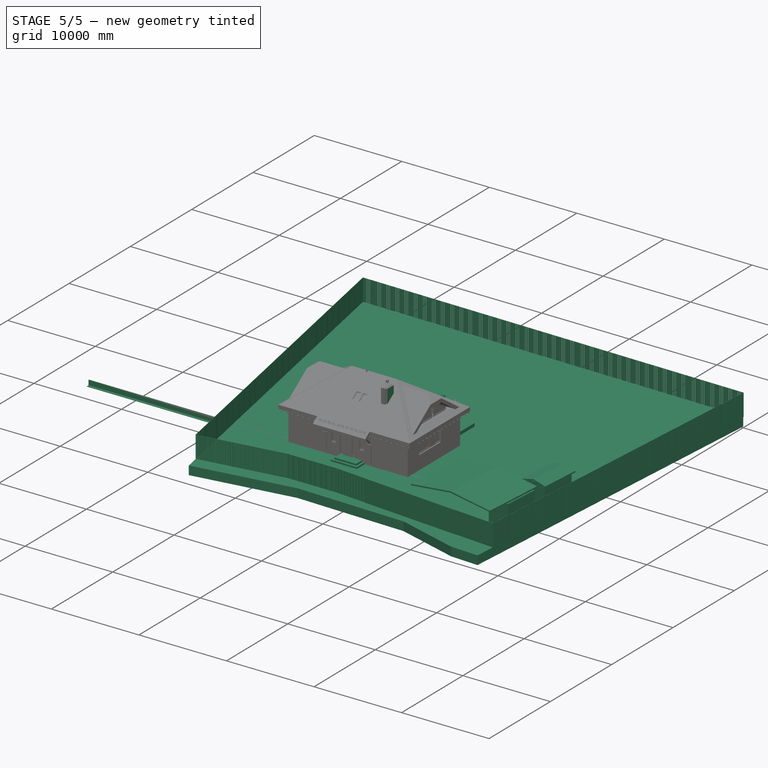
[diagram: stage 5 of 5 — iso view after this stage's code; geometry added in this stage tinted green]
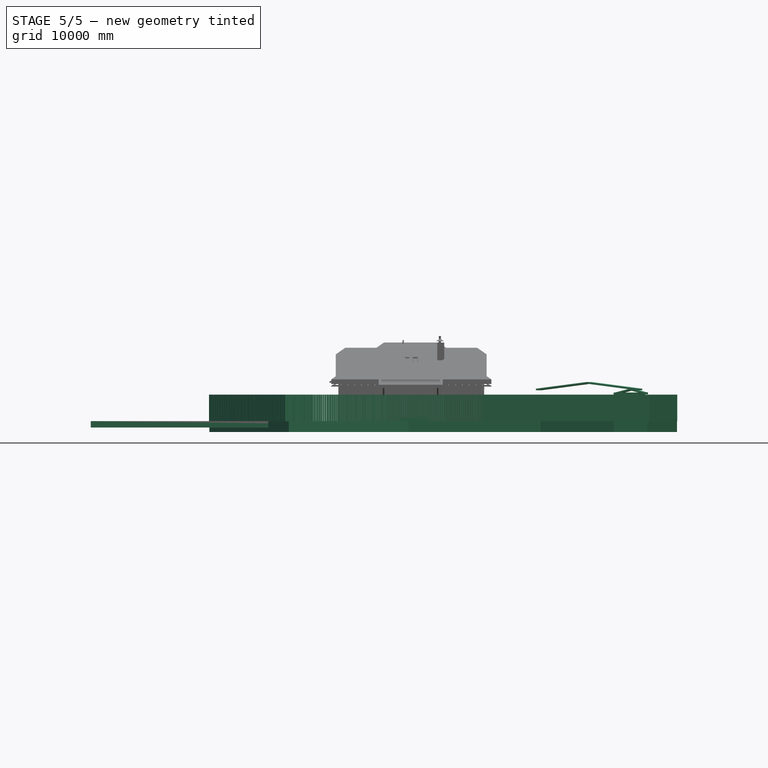
[diagram: stage 5 of 5 — front view after this stage's code; geometry added in this stage tinted green]
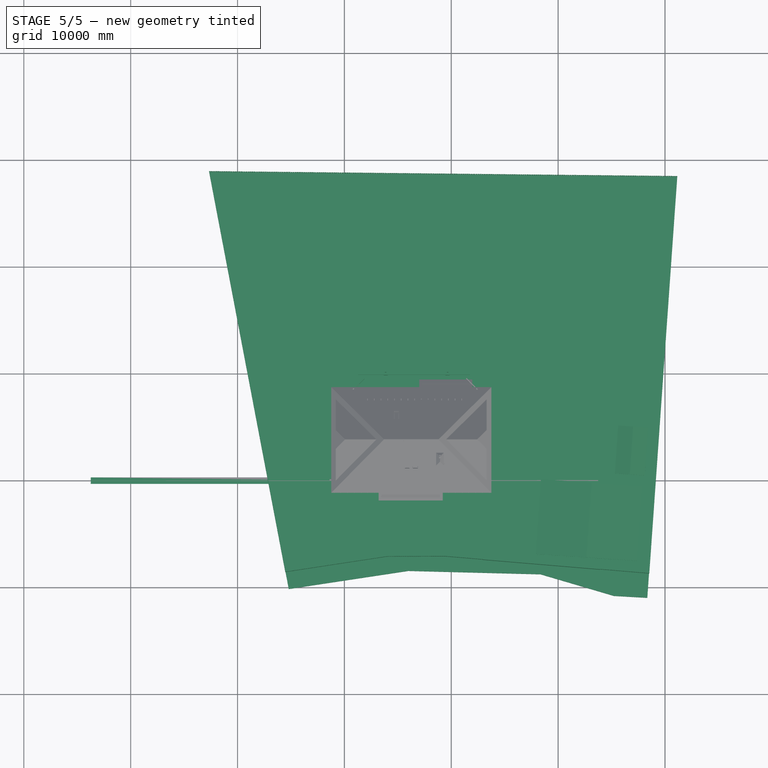
[diagram: stage 5 of 5 — top view after this stage's code; geometry added in this stage tinted green]
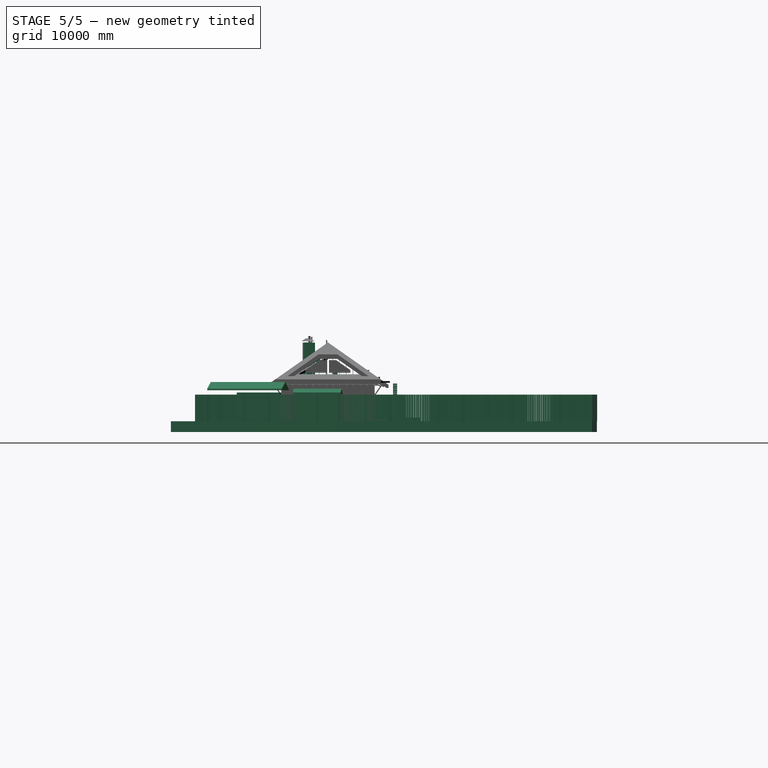
[diagram: stage 5 of 5 — right view after this stage's code; geometry added in this stage tinted green]
FEATURE [Part::Part2DObjectPython] Line1049  # Draft 2D object (typed FeaturePython)
  ChamferSize = 0
  Closed = true
  End = (-50,3665,0)
  FilletRadius = 0
  Length = 12620
  MakeFace = false
  Placement = pos=(4290,10385,0) rot=(0,0,1;1.5708rad)
  Points = (2) [(-6720,-8280,0),(-6720,4340,0)]
  Start = (12570,3665,0)
  Subdivisions = 0
FEATURE [Part::Part2DObjectPython] Line1054  # Draft 2D object (typed FeaturePython)
  ChamferSize = 0
  Closed = true
  End = (4870,7490,0)
  FilletRadius = 0
  Length = 3700
  MakeFace = false
  Placement = pos=(9650,5690,0) rot=(0,0,1;0rad)
  Points = (2) [(-4780,-1900,0),(-4780,1800,0)]
  Start = (4870,3790,0)
  Subdivisions = 0
FEATURE [Sketcher::SketchObject] Sketch231  label="Профиль ПНО 120-8"
  FullyConstrained = false
  Placement = pos=(0,0,0) rot=(1,0,0;1.5708rad)
  sketch-geometry (19):
    g0: LineSegment StartX=0 StartY=0 StartZ=0 EndX=1190 EndY=0 EndZ=0
    g1: LineSegment StartX=1190 StartY=0 StartZ=0 EndX=1190 EndY=160 EndZ=0
    g2: LineSegment StartX=1190 StartY=160 StartZ=0 EndX=0 EndY=160 EndZ=0
    g3: LineSegment StartX=0 StartY=160 StartZ=0 EndX=0 EndY=0 EndZ=0
    g4: Circle CenterX=100 CenterY=80 CenterZ=0 NormalX=0 NormalY=0 NormalZ=1 AngleXU=0 Radius=50
    g5: Circle CenterX=240 CenterY=80 CenterZ=0 NormalX=0 NormalY=0 NormalZ=1 AngleXU=0 Radius=50
    g6: LineSegment StartX=100 StartY=80 StartZ=0 EndX=240 EndY=80 EndZ=0
    g7: Circle CenterX=380 CenterY=80 CenterZ=0 NormalX=0 NormalY=0 NormalZ=1 AngleXU=0 Radius=50
    g8: LineSegment StartX=240 StartY=80 StartZ=0 EndX=380 EndY=80 EndZ=0
    g9: Circle CenterX=520 CenterY=80 CenterZ=0 NormalX=0 NormalY=0 NormalZ=1 AngleXU=0 Radius=50
    g10: LineSegment StartX=380 StartY=80 StartZ=0 EndX=520 EndY=80 EndZ=0
    g11: Circle CenterX=660 CenterY=80 CenterZ=0 NormalX=0 NormalY=0 NormalZ=1 AngleXU=0 Radius=50
    g12: LineSegment StartX=520 StartY=80 StartZ=0 EndX=660 EndY=80 EndZ=0
    g13: Circle CenterX=800 CenterY=80 CenterZ=0 NormalX=0 NormalY=0 NormalZ=1 AngleXU=0 Radius=50
    g14: LineSegment StartX=660 StartY=80 StartZ=0 EndX=800 EndY=80 EndZ=0
    g15: Circle CenterX=940 CenterY=80 CenterZ=0 NormalX=0 NormalY=0 NormalZ=1 AngleXU=0 Radius=50
    g16: LineSegment StartX=800 StartY=80 StartZ=0 EndX=940 EndY=80 EndZ=0
    g17: Circle CenterX=1080 CenterY=80 CenterZ=0 NormalX=0 NormalY=0 NormalZ=1 AngleXU=0 Radius=50
    g18: LineSegment StartX=940 StartY=80 StartZ=0 EndX=1080 EndY=80 EndZ=0
  constraints (49):
    c: Coincident(g0,g1)
    c: Coincident(g1,g2)
    c: Coincident(g2,g3)
    c: Coincident(g3,g0)
    c: Horizontal(g0)
    c: Horizontal(g2)
    c: Vertical(g1)
    c: Vertical(g3)
    c: Coincident(g0,g-1)
    c: DistanceY(g3,g3) = 160
    c: DistanceX(g2,g2) = 1190
    c: Diameter(g4) = 100
    c: DistanceY(g4,g2) = 80
    c: Diameter(g5) = 100
    c: Coincident(g4,g6)
    c: Coincident(g5,g6)
    c: Distance(g6) = 140
    c: Angle(g6) = 0
    c: Diameter(g7) = 100
    c: Coincident(g5,g8)
    c: Coincident(g7,g8)
    c: Equal(g6,g8)
    c: Parallel(g8,g6)
    c: Diameter(g9) = 100
    c: Coincident(g7,g10)
    c: Coincident(g9,g10)
    c: Equal(g6,g10)
    c: Parallel(g10,g6)
    c: Diameter(g11) = 100
    c: Coincident(g9,g12)
    c: Coincident(g11,g12)
    c: Equal(g6,g12)
    c: Parallel(g12,g6)
    c: Diameter(g13) = 100
    c: Coincident(g11,g14)
    c: Coincident(g13,g14)
    c: Equal(g6,g14)
    c: Parallel(g14,g6)
    c: Diameter(g15) = 100
    c: Coincident(g13,g16)
    c: Coincident(g15,g16)
    c: Equal(g6,g16)
    c: Parallel(g16,g6)
    c: Diameter(g17) = 100
    c: Coincident(g15,g18)
    c: Coincident(g17,g18)
    c: Equal(g6,g18)
    c: Parallel(g18,g6)
    c: DistanceX(g2,g4) = 100
FEATURE [Part::Part2DObjectPython] Line1066  # Draft 2D object (typed FeaturePython)
  ChamferSize = 0
  Closed = false
  End = (3670,10200,0)
  FilletRadius = 0
  Length = 380
  MakeFace = false
  Placement = pos=(3670,9820,0) rot=(0,0,1;0rad)
  Points = (2) [(0,0,0),(0,380,0)]
  Start = (3670,9820,0)
  Subdivisions = 0
FEATURE [Part::Part2DObjectPython] Line1067  # Draft 2D object (typed FeaturePython)
  ChamferSize = 0
  Closed = false
  End = (4050,10200,0)
  FilletRadius = 0
  Length = 380
  MakeFace = false
  Placement = pos=(3670,10200,0) rot=(0,0,1;0rad)
  Points = (2) [(0,0,0),(380,0,0)]
  Start = (3670,10200,0)
  Subdivisions = 0
FEATURE [Part::Part2DObjectPython] Line1068  # Draft 2D object (typed FeaturePython)
  ChamferSize = 0
  Closed = false
  End = (4050,9820,0)
  FilletRadius = 0
  Length = 380
  MakeFace = false
  Placement = pos=(4050,10200,0) rot=(0,0,1;0rad)
  Points = (2) [(0,0,0),(0,-380,0)]
  Start = (4050,10200,0)
  Subdivisions = 0
FEATURE [Part::Part2DObjectPython] Line1069  # Draft 2D object (typed FeaturePython)
  ChamferSize = 0
  Closed = false
  End = (3670,9820,0)
  FilletRadius = 0
  Length = 380
  MakeFace = false
  Placement = pos=(4050,9820,0) rot=(0,0,1;0rad)
  Points = (2) [(0,0,0),(-380,0,0)]
  Start = (4050,9820,0)
  Subdivisions = 0
FEATURE [Part::FeaturePython] Wall028  label="Колонна_01_001"  # Arch/BIM 166 (typed FeaturePython)
  Align = 0
  Area = 0
  Base = -> Line1066
  BlockHeight = 65
  BlockLength = 250
  CountBroken = 63
  CountEntire = 21
  Face = 0
  Height = 3140
  HorizontalArea = 45600
  IfcType = 166
  Joint = 10
  Length = 380
  MakeBlocks = true
  MoveBase = false
  MoveWithHost = false
  Normal = (0,0,0)
  OffsetFirst = 0
  OffsetSecond = 120
  PerimeterLength = 1000
  PredefinedType = 0
  VerticalArea = 140000
  Width = 120
FEATURE [Part::FeaturePython] Wall029  label="Колонна_01_012"  # Arch/BIM 166 (typed FeaturePython)
  Align = 0
  Area = 0
  Base = -> Line1069
  BlockHeight = 65
  BlockLength = 250
  CountBroken = 63
  CountEntire = 21
  Face = 0
  Height = 3140
  HorizontalArea = 45600
  IfcType = 166
  Joint = 10
  Length = 380
  MakeBlocks = true
  MoveBase = false
  MoveWithHost = false
  Normal = (0,0,0)
  OffsetFirst = 0
  OffsetSecond = 120
  PerimeterLength = 1000
  PredefinedType = 0
  VerticalArea = 140000
  Width = 120
FEATURE [Part::FeaturePython] Wall030  label="Колонна_01_011"  # Arch/BIM 166 (typed FeaturePython)
  Align = 0
  Area = 0
  Base = -> Line1067
  BlockHeight = 65
  BlockLength = 250
  CountBroken = 63
  CountEntire = 21
  Face = 0
  Height = 3140
  HorizontalArea = 45600
  IfcType = 166
  Joint = 10
  Length = 380
  MakeBlocks = true
  MoveBase = false
  MoveWithHost = false
  Normal = (0,0,0)
  OffsetFirst = 0
  OffsetSecond = 120
  PerimeterLength = 1000
  PredefinedType = 0
  VerticalArea = 140000
  Width = 120
FEATURE [Part::FeaturePython] Wall031  label="Колонна_01_010"  # Arch/BIM 166 (typed FeaturePython)
  Align = 0
  Area = 0
  Base = -> Line1068
  BlockHeight = 65
  BlockLength = 250
  CountBroken = 63
  CountEntire = 21
  Face = 0
  Height = 3140
  HorizontalArea = 45600
  IfcType = 166
  Joint = 10
  Length = 380
  MakeBlocks = true
  MoveBase = false
  MoveWithHost = false
  Normal = (0,0,0)
  OffsetFirst = 0
  OffsetSecond = 120
  PerimeterLength = 1000
  PredefinedType = 0
  VerticalArea = 140000
  Width = 120
FEATURE [App::GeometryPython] BuildingPart008  label="Колонна_001"  # Arch/BIM 172 (typed FeaturePython)
  Area = 0
  Group = -> [Wall028,Wall031,Wall030,Wall029]
  Height = 0
  HeightPropagate = true
  IfcType = 172
  LevelOffset = 0
  PredefinedType = 0
FEATURE [Part::Part2DObjectPython] Line1070  # Draft 2D object (typed FeaturePython)
  ChamferSize = 0
  Closed = false
  End = (9460,9820,0)
  FilletRadius = 0
  Length = 380
  MakeFace = false
  Placement = pos=(9840,9820,0) rot=(0,0,1;0rad)
  Points = (2) [(0,0,0),(-380,0,0)]
  Start = (9840,9820,0)
  Subdivisions = 0
FEATURE [Part::Part2DObjectPython] Line1071  # Draft 2D object (typed FeaturePython)
  ChamferSize = 0
  Closed = false
  End = (9840,10200,0)
  FilletRadius = 0
  Length = 380
  MakeFace = false
  Placement = pos=(9460,10200,0) rot=(0,0,1;0rad)
  Points = (2) [(0,0,0),(380,0,0)]
  Start = (9460,10200,0)
  Subdivisions = 0
FEATURE [Part::Part2DObjectPython] Line1072  # Draft 2D object (typed FeaturePython)
  ChamferSize = 0
  Closed = false
  End = (9840,9820,0)
  FilletRadius = 0
  Length = 380
  MakeFace = false
  Placement = pos=(9840,10200,0) rot=(0,0,1;0rad)
  Points = (2) [(0,0,0),(0,-380,0)]
  Start = (9840,10200,0)
  Subdivisions = 0
FEATURE [Part::FeaturePython] Wall033  label="Колонна_01_014"  # Arch/BIM 166 (typed FeaturePython)
  Align = 0
  Area = 0
  Base = -> Line1072
  BlockHeight = 65
  BlockLength = 250
  CountBroken = 63
  CountEntire = 21
  Face = 0
  Height = 3140
  HorizontalArea = 45600
  IfcType = 166
  Joint = 10
  Length = 380
  MakeBlocks = true
  MoveBase = false
  MoveWithHost = false
  Normal = (0,0,0)
  OffsetFirst = 0
  OffsetSecond = 120
  PerimeterLength = 1000
  PredefinedType = 0
  VerticalArea = 140000
  Width = 120
FEATURE [Part::FeaturePython] Wall034  label="Колонна_01_015"  # Arch/BIM 166 (typed FeaturePython)
  Align = 0
  Area = 0
  Base = -> Line1071
  BlockHeight = 65
  BlockLength = 250
  CountBroken = 63
  CountEntire = 21
  Face = 0
  Height = 3140
  HorizontalArea = 45600
  IfcType = 166
  Joint = 10
  Length = 380
  MakeBlocks = true
  MoveBase = false
  MoveWithHost = false
  Normal = (0,0,0)
  OffsetFirst = 0
  OffsetSecond = 120
  PerimeterLength = 1000
  PredefinedType = 0
  VerticalArea = 140000
  Width = 120
FEATURE [Part::Part2DObjectPython] Line1073  # Draft 2D object (typed FeaturePython)
  ChamferSize = 0
  Closed = false
  End = (9460,10200,0)
  FilletRadius = 0
  Length = 380
  MakeFace = false
  Placement = pos=(9460,9820,0) rot=(0,0,1;0rad)
  Points = (2) [(0,0,0),(0,380,0)]
  Start = (9460,9820,0)
  Subdivisions = 0
FEATURE [Part::FeaturePython] Wall032  label="Колонна_01_013"  # Arch/BIM 166 (typed FeaturePython)
  Align = 0
  Area = 0
  Base = -> Line1073
  BlockHeight = 65
  BlockLength = 250
  CountBroken = 63
  CountEntire = 21
  Face = 0
  Height = 3140
  HorizontalArea = 45600
  IfcType = 166
  Joint = 10
  Length = 380
  MakeBlocks = true
  MoveBase = false
  MoveWithHost = false
  Normal = (0,0,0)
  OffsetFirst = 0
  OffsetSecond = 120
  PerimeterLength = 1000
  PredefinedType = 0
  VerticalArea = 140000
  Width = 120
FEATURE [Part::FeaturePython] Wall035  label="Колонна_01_016"  # Arch/BIM 166 (typed FeaturePython)
  Align = 0
  Area = 0
  Base = -> Line1070
  BlockHeight = 65
  BlockLength = 250
  CountBroken = 63
  CountEntire = 21
  Face = 0
  Height = 3140
  HorizontalArea = 45600
  IfcType = 166
  Joint = 10
  Length = 380
  MakeBlocks = true
  MoveBase = false
  MoveWithHost = false
  Normal = (0,0,0)
  OffsetFirst = 0
  OffsetSecond = 120
  PerimeterLength = 1000
  PredefinedType = 0
  VerticalArea = 140000
  Width = 120
FEATURE [Part::Part2DObjectPython] Line1074  label="ось фундамента внутр.стены"  # Draft 2D object (typed FeaturePython)
  ChamferSize = 0
  Closed = true
  End = (3855,9350,0)
  FilletRadius = 0
  Length = 5200
  MakeFace = false
  Placement = pos=(2155,2900,0) rot=(0,0,1;1.5708rad)
  Points = (2) [(1250,-1700,0),(6450,-1700,0)]
  Start = (3855,4150,0)
  Subdivisions = 0
FEATURE [Part::FeaturePython] Wall037  label="фундамент внутр.стена01"  # Arch/BIM 166 (typed FeaturePython)
  Align = 2
  Area = 2.6e+06
  Base = -> Line1074
  BlockHeight = 0
  BlockLength = 0
  CountBroken = 0
  CountEntire = 0
  Face = 0
  Height = 500
  HorizontalArea = 1.3e+06
  IfcType = 166
  Joint = 0
  Length = 5200
  MakeBlocks = false
  MoveBase = false
  MoveWithHost = false
  Normal = (0,0,-1)
  OffsetFirst = 0
  OffsetSecond = 0
  PerimeterLength = 10900
  Placement = pos=(0,0,-180) rot=(0,0,1;0rad)
  PredefinedType = 0
  VerticalArea = 5.45e+06
  Width = 250
FEATURE [Part::FeaturePython] Wall046  label="утепл фунд. внешней.стены 002"  # Arch/BIM 166 (typed FeaturePython)
  Align = 1
  Area = 28488000
  BlockHeight = 600
  BlockLength = 600
  CountBroken = 1
  CountEntire = 0
  Face = 0
  Height = 600
  HorizontalArea = 3798400
  IfcType = 166
  Joint = 1
  Length = 47480
  MakeBlocks = true
  MoveBase = false
  MoveWithHost = false
  Normal = (0,0,-1)
  OffsetFirst = 0
  OffsetSecond = 0
  PerimeterLength = 95120
  Placement = pos=(0,0,-380) rot=(0,0,1;0rad)
  PredefinedType = 0
  VerticalArea = 57072000
  Width = 80
FEATURE [Part::FeaturePython] Wall047  label="утепл отмостки 001"  # Arch/BIM 166 (typed FeaturePython)
  Align = 1
  Area = 2374000
  BlockHeight = 600
  BlockLength = 1200
  CountBroken = 1
  CountEntire = 0
  Face = 0
  Height = 50
  HorizontalArea = 28488000
  IfcType = 166
  Joint = 1
  Length = 47480
  MakeBlocks = true
  MoveBase = false
  MoveWithHost = false
  Normal = (0,0,-1)
  Offset = 80
  OffsetFirst = 0
  OffsetSecond = 0
  PerimeterLength = 96160
  Placement = pos=(0,0,-930) rot=(0,0,1;0rad)
  PredefinedType = 0
  VerticalArea = 4808000
  Width = 600
FEATURE [Part::FeaturePython] Structure030  label="блок утеплителя 60*10*20 001"  # Arch/BIM 7 (typed FeaturePython)
  FaceMaker = 0
  Height = 200
  HorizontalArea = 60000
  IfcType = 7
  Length = 600
  MoveBase = false
  MoveWithHost = false
  Nodes = (2) [(0,0,-3.88578e-16),(0,0,600)]
  NodesOffset = 0
  Normal = (0,0,0)
  PerimeterLength = 1400
  Placement = pos=(-175,9700,-280) rot=(0,0,1;0rad)
  PredefinedType = 0
  VerticalArea = 280000
  Width = 100
FEATURE [Part::FeaturePython] Array  label="массив утепления 001"  # Draft array (typed FeaturePython)
  Angle = 360
  ArrayType = 0
  Axis = (0,0,1)
  Base = -> Structure030
  Center = (0,0,0)
  Fuse = false
  IntervalAxis = (0,0,0)
  IntervalX = (765,0,0)
  IntervalY = (0,1,0)
  IntervalZ = (0,0,1)
  NumberPolar = 1
  NumberX = 18
  NumberY = 1
  NumberZ = 1
FEATURE [Part::FeaturePython] Structure031  label="блок утеплителя 60*10*20 002"  # Arch/BIM 7 (typed FeaturePython)
  FaceMaker = 0
  Height = 200
  HorizontalArea = 60000
  IfcType = 7
  Length = 600
  MoveBase = false
  MoveWithHost = false
  Nodes = (2) [(0,0,-3.88578e-16),(0,0,600)]
  NodesOffset = 0
  Normal = (0,0,0)
  PerimeterLength = 1400
  Placement = pos=(-180,-90,-280) rot=(0,0,1;0rad)
  PredefinedType = 0
  VerticalArea = 280000
  Width = 100
FEATURE [Part::FeaturePython] Array010  label="массив утепления 010"  # Draft array (typed FeaturePython)
  Angle = 360
  ArrayType = 0
  Axis = (0,0,1)
  Base = -> Structure031
  Center = (0,0,0)
  Fuse = false
  IntervalAxis = (0,0,0)
  IntervalX = (765,0,0)
  IntervalY = (0,1,0)
  IntervalZ = (0,0,1)
  NumberPolar = 1
  NumberX = 18
  NumberY = 1
  NumberZ = 1
FEATURE [Part::FeaturePython] Structure032  label="блок утеплителя 60*10*20 003"  # Arch/BIM 7 (typed FeaturePython)
  FaceMaker = 0
  Height = 200
  HorizontalArea = 60000
  IfcType = 7
  Length = 100
  MoveBase = false
  MoveWithHost = false
  Nodes = (2) [(-1.94289e-16,5.68434e-15,0),(-1.94289e-16,5.68434e-15,200)]
  NodesOffset = 0
  Normal = (0,0,0)
  PerimeterLength = 1400
  Placement = pos=(-350,375,-380) rot=(0,0,1;0rad)
  PredefinedType = 0
  VerticalArea = 280000
  Width = 600
FEATURE [Part::FeaturePython] Array011  label="массив утепления 011"  # Draft array (typed FeaturePython)
  Angle = 360
  ArrayType = 0
  Axis = (0,0,1)
  Base = -> Structure032
  Center = (0,0,0)
  Fuse = false
  IntervalAxis = (0,0,0)
  IntervalX = (0,0,0)
  IntervalY = (0,740,0)
  IntervalZ = (0,0,1)
  NumberPolar = 1
  NumberX = 1
  NumberY = 13
  NumberZ = 1
FEATURE [Part::FeaturePython] Structure033  label="блок утеплителя 60*10*20 004"  # Arch/BIM 7 (typed FeaturePython)
  FaceMaker = 0
  Height = 200
  HorizontalArea = 60000
  IfcType = 7
  Length = 100
  MoveBase = false
  MoveWithHost = false
  Nodes = (2) [(-1.94289e-16,5.68434e-15,0),(-1.94289e-16,5.68434e-15,200)]
  NodesOffset = 0
  Normal = (0,0,0)
  PerimeterLength = 1400
  Placement = pos=(13600,375,-380) rot=(0,0,1;0rad)
  PredefinedType = 0
  VerticalArea = 280000
  Width = 600
FEATURE [Part::FeaturePython] Array012  label="массив утепления 012"  # Draft array (typed FeaturePython)
  Angle = 360
  ArrayType = 0
  Axis = (0,0,1)
  Base = -> Structure033
  Center = (0,0,0)
  Fuse = false
  IntervalAxis = (0,0,0)
  IntervalX = (0,0,0)
  IntervalY = (0,740,0)
  IntervalZ = (0,0,1)
  NumberPolar = 1
  NumberX = 1
  NumberY = 13
  NumberZ = 1
FEATURE [App::GeometryPython] BuildingPart013  label="Утеплитель полки облицовки"  # Arch/BIM 172 (typed FeaturePython)
  Area = 0
  Group = -> [Array,Array010,Array011,Array012]
  Height = 0
  HeightPropagate = true
  IfcType = 172
  LevelOffset = 0
  PredefinedType = 0
FEATURE [Part::Part2DObjectPython] Line1076  # Draft 2D object (typed FeaturePython)
  ChamferSize = 0
  Closed = true
  End = (-50,-30,0)
  FilletRadius = 0
  Length = 12620
  MakeFace = false
  Placement = pos=(12080,260,0) rot=(0,0,1;0rad)
  Points = (2) [(490,-290,0),(-12130,-290,0)]
  Start = (12570,-30,0)
  Subdivisions = 0
FEATURE [Part::Part2DObjectPython] Circle071  # Draft 2D object (typed FeaturePython)
  FirstAngle = 0
  LastAngle = 0
  MakeFace = false
  Placement = pos=(8500,900,0) rot=(0,0,1;0rad)
  Radius = 580
FEATURE [Part::Part2DObjectPython] Circle072  # Draft 2D object (typed FeaturePython)
  FirstAngle = 0
  LastAngle = 0
  MakeFace = false
  Placement = pos=(8500,900,0) rot=(0,0,1;0rad)
  Radius = 500
FEATURE [Part::Part2DObjectPython] Circle073  label="люк_контур 001"  # Draft 2D object (typed FeaturePython)
  FirstAngle = 0
  LastAngle = 0
  MakeFace = false
  Placement = pos=(8500,1000,0) rot=(0,0,1;0rad)
  Radius = 350
FEATURE [Part::FeaturePython] Structure041  label="кольцо с днищем ДК-10.9 внутр."  # Arch/BIM 172 (typed FeaturePython)
  Base = -> Circle072
  FaceMaker = 0
  Height = 800
  HorizontalArea = 785398
  IfcType = 172
  Length = 0
  MoveBase = false
  MoveWithHost = false
  Nodes = (2) [(8500,900,0),(8500,900,-800)]
  NodesOffset = 0
  Normal = (0,0,-1)
  PerimeterLength = 3141.59
  Placement = pos=(0,0,-300) rot=(0,0,1;0rad)
  PredefinedType = 0
  VerticalArea = 2.51327e+06
  Width = 100
FEATURE [Part::FeaturePython] Structure040  label="кольцо с днищем ДК-10.9 габарит"  # Arch/BIM 172 (typed FeaturePython)
  Base = -> Circle071
  FaceMaker = 0
  Height = 900
  HorizontalArea = 1.05683e+06
  IfcType = 172
  Length = 0
  MoveBase = false
  MoveWithHost = false
  Nodes = (2) [(8500,900,0),(8500,900,-900)]
  NodesOffset = 0
  Normal = (0,0,-1)
  PerimeterLength = 3644.25
  Placement = pos=(0,0,-300) rot=(0,0,1;0rad)
  PredefinedType = 0
  Subtractions = -> [Structure041]
  VerticalArea = 5.7931e+06
  Width = 100
FEATURE [Part::FeaturePython] Structure044  label="люк контур Д700"  # Arch/BIM 172 (typed FeaturePython)
  Base = -> Circle073
  FaceMaker = 0
  Height = 300
  HorizontalArea = 384845
  IfcType = 172
  Length = 0
  MoveBase = false
  MoveWithHost = false
  Nodes = (2) [(8500,1000,0),(8500,1000,-300)]
  NodesOffset = 0
  Normal = (0,0,-1)
  PerimeterLength = 2199.11
  PredefinedType = 0
  VerticalArea = 659734
  Width = 100
FEATURE [Part::FeaturePython] Structure043  label="крышка ПП10"  # Arch/BIM 172 (typed FeaturePython)
  Base = -> Circle071
  FaceMaker = 0
  Height = 100
  HorizontalArea = 671987
  IfcType = 172
  Length = 0
  MoveBase = false
  MoveWithHost = false
  Nodes = (2) [(8500,900,0),(8500,900,-100)]
  NodesOffset = 0
  Normal = (0,0,-1)
  PerimeterLength = 3644.25
  Placement = pos=(0,0,-200) rot=(0,0,1;0rad)
  PredefinedType = 0
  Subtractions = -> [Structure044]
  VerticalArea = 584336
  Width = 100
FEATURE [Part::FeaturePython] Structure048  label="вычитаемый объём 001"  # Arch/BIM 172 (typed FeaturePython)
  FaceMaker = 0
  Height = 4000
  HorizontalArea = 5.56586e+07
  IfcType = 172
  Length = 0
  MoveBase = false
  MoveWithHost = false
  Nodes = (2) [(6625,8181.9,0),(6625,8181.9,4000)]
  NodesOffset = 0
  Normal = (0,0,1)
  PerimeterLength = 35673
  Placement = pos=(0,0,3160) rot=(0,0,1;0rad)
  PredefinedType = 0
  VerticalArea = 1.42692e+08
  Width = 100
FEATURE [Part::FeaturePython] Structure049  label="вычитаемый объём 002"  # Arch/BIM 172 (typed FeaturePython)
  FaceMaker = 0
  Height = 4000
  HorizontalArea = 3.20922e+07
  IfcType = 172
  Length = 0
  MoveBase = false
  MoveWithHost = false
  Nodes = (2) [(506.667,3830,0),(506.667,3830,4000)]
  NodesOffset = 0
  Normal = (0,0,1)
  PerimeterLength = 27353
  Placement = pos=(0,0,3160) rot=(0,0,1;0rad)
  PredefinedType = 0
  VerticalArea = 1.09412e+08
  Width = 100
FEATURE [Part::FeaturePython] Structure050  label="вычитаемый объём 004"  # Arch/BIM 172 (typed FeaturePython)
  FaceMaker = 0
  Height = 4000
  HorizontalArea = 5.56586e+07
  IfcType = 172
  Length = 0
  MoveBase = false
  MoveWithHost = false
  Nodes = (2) [(6040,886.738,0),(6040,886.738,4000)]
  NodesOffset = 0
  Normal = (0,0,1)
  PerimeterLength = 35673
  Placement = pos=(0,0,3160) rot=(0,0,1;0rad)
  PredefinedType = 0
  VerticalArea = 1.42692e+08
  Width = 100
FEATURE [Sketcher::SketchObject] Sketch249  label="Профиль ПНО 100-6"
  FullyConstrained = false
  Placement = pos=(0,0,0) rot=(1,0,0;1.5708rad)
  sketch-geometry (15):
    g0: LineSegment StartX=0 StartY=0 StartZ=0 EndX=990 EndY=0 EndZ=0
    g1: LineSegment StartX=990 StartY=0 StartZ=0 EndX=990 EndY=160 EndZ=0
    g2: LineSegment StartX=990 StartY=160 StartZ=0 EndX=0 EndY=160 EndZ=0
    g3: LineSegment StartX=0 StartY=160 StartZ=0 EndX=0 EndY=0 EndZ=0
    g4: Circle CenterX=145 CenterY=80 CenterZ=0 NormalX=0 NormalY=0 NormalZ=1 AngleXU=0 Radius=50
    g5: Circle CenterX=285 CenterY=80 CenterZ=0 NormalX=0 NormalY=0 NormalZ=1 AngleXU=0 Radius=50
    g6: LineSegment StartX=145 StartY=80 StartZ=0 EndX=285 EndY=80 EndZ=0
    g7: Circle CenterX=425 CenterY=80 CenterZ=0 NormalX=0 NormalY=0 NormalZ=1 AngleXU=0 Radius=50
    g8: LineSegment StartX=285 StartY=80 StartZ=0 EndX=425 EndY=80 EndZ=0
    g9: Circle CenterX=565 CenterY=80 CenterZ=0 NormalX=0 NormalY=0 NormalZ=1 AngleXU=0 Radius=50
    g10: LineSegment StartX=425 StartY=80 StartZ=0 EndX=565 EndY=80 EndZ=0
    g11: Circle CenterX=705 CenterY=80 CenterZ=0 NormalX=0 NormalY=0 NormalZ=1 AngleXU=0 Radius=50
    g12: LineSegment StartX=565 StartY=80 StartZ=0 EndX=705 EndY=80 EndZ=0
    g13: Circle CenterX=845 CenterY=80 CenterZ=0 NormalX=0 NormalY=0 NormalZ=1 AngleXU=0 Radius=50
    g14: LineSegment StartX=705 StartY=80 StartZ=0 EndX=845 EndY=80 EndZ=0
  constraints (39):
    c: Coincident(g0,g1)
    c: Coincident(g1,g2)
    c: Coincident(g2,g3)
    c: Coincident(g3,g0)
    c: Horizontal(g0)
    c: Horizontal(g2)
    c: Vertical(g1)
    c: Vertical(g3)
    c: Coincident(g0,g-1)
    c: DistanceY(g3,g3) = 160
    c: DistanceX(g2,g2) = 990
    c: Diameter(g4) = 100
    c: DistanceY(g4,g2) = 80
    c: Diameter(g5) = 100
    c: Coincident(g4,g6)
    c: Coincident(g5,g6)
    c: Distance(g6) = 140
    c: Angle(g6) = 0
    c: Diameter(g7) = 100
    c: Coincident(g5,g8)
    c: Coincident(g7,g8)
    c: Equal(g6,g8)
    c: Parallel(g8,g6)
    c: Diameter(g9) = 100
    c: Coincident(g7,g10)
    c: Coincident(g9,g10)
    c: Equal(g6,g10)
    c: Parallel(g10,g6)
    c: Diameter(g11) = 100
    c: Coincident(g9,g12)
    c: Coincident(g11,g12)
    c: Equal(g6,g12)
    c: Parallel(g12,g6)
    c: Diameter(g13) = 100
    c: Coincident(g11,g14)
    c: Coincident(g13,g14)
    c: Equal(g6,g14)
    c: Parallel(g14,g6)
    c: DistanceX(g2,g4) = 145
FEATURE [Part::Part2DObjectPython] Wire460  label="границы участка"  # Draft 2D object (typed FeaturePython)
  ChamferSize = 0
  Closed = true
  End = (31124.9,28433.6,0)
  FilletRadius = 0
  Length = 156987
  MakeFace = false
  Placement = pos=(28345.4,-10972.9,0) rot=(0,0,1;0rad)
  Points = (7) [(0,0,0),(-3118.22,176.296,0),(-9989.98,2199.83,0),(-22349.9,2518.26,0),(-33551.4,825.818,0),(-40981.4,39865.2,0),(2779.54,39406.5,0)]
  Start = (28345.4,-10972.9,0)
  Subdivisions = 0
FEATURE [Part::Part2DObjectPython] Rectangle2365  label="зона парковки-навес"  # Draft 2D object (typed FeaturePython)
  ChamferSize = 0
  Columns = 1
  FilletRadius = 0
  Height = 7000
  Length = 7000
  MakeFace = false
  Placement = pos=(17916.6,-6918.81,0) rot=(0,0,-1;0.068796rad)
  Rows = 1
FEATURE [Part::Part2DObjectPython] Rectangle2368  # Draft 2D object (typed FeaturePython)
  ChamferSize = 0
  Columns = 1
  FilletRadius = 0
  Height = 2300
  Length = 4000
  MakeFace = false
  Placement = pos=(25852.9,4833.9,0) rot=(0,0,-1;1.63959rad)
  Rows = 1
FEATURE [Part::Part2DObjectPython] Wire462  label="мауэрлат002"  # Draft 2D object (typed FeaturePython)
  ChamferSize = 0
  Closed = true
  End = (25852.9,4833.9,0)
  FilletRadius = 0
  Length = 12600
  MakeFace = false
  Placement = pos=(25577.9,843.359,0) rot=(0,0,-1;1.63959rad)
  Points = (4) [(0,0,0),(0,2300,0),(-4000,2300,0),(-4000,-3.27418e-11,0)]
  Start = (25577.9,843.359,0)
  Subdivisions = 0
FEATURE [Part::FeaturePython] Roof010  label="Крыша001"  # Arch/BIM 113 (typed FeaturePython)
  Angles = [90,14.6,90,14.6]
  Base = -> Wire462
  BorderLength = 15096.9
  Face = 0
  Flip = false
  Heights = [0,299.553,0,299.553]
  HorizontalArea = 1.26e+07
  IdRel = [0,0,0,0]
  IfcType = 113
  MoveBase = false
  MoveWithHost = false
  Overhang = [250,250,250,250]
  PerimeterLength = 14600
  Placement = pos=(0,0,2200) rot=(0,0,1;0rad)
  PredefinedType = 0
  RidgeLength = 7393.43
  Runs = [250,1150,250,1150]
  Thickness = [150,150,150,150]
  VerticalArea = 2.26308e+06
FEATURE [Part::Part2DObjectPython] Rectangle2370  # Draft 2D object (typed FeaturePython)
  ChamferSize = 0
  Columns = 1
  FilletRadius = 0
  Height = 500
  Length = 150
  MakeFace = true
  Placement = pos=(26037.1,962.071,0) rot=(0,0,-1;1.63959rad)
  Rows = 1
FEATURE [Part::Part2DObjectPython] Rectangle2372  # Draft 2D object (typed FeaturePython)
  ChamferSize = 0
  Columns = 1
  FilletRadius = 0
  Height = 150
  Length = 500
  MakeFace = true
  Placement = pos=(25753.2,3387.33,0) rot=(0,0,-1;1.63959rad)
  Rows = 1
FEATURE [Part::FeaturePython] Structure128  label="Structure"  # Arch/BIM 172 (typed FeaturePython)
  Base = -> Rectangle2372
  FaceMaker = 0
  Height = 600
  HorizontalArea = 75000
  IfcType = 172
  Length = 0
  MoveBase = false
  MoveWithHost = false
  Nodes = (2) [(1351.07,-25965.1,0),(1351.07,-25965.1,600)]
  NodesOffset = 0
  Normal = (0,0,0)
  PerimeterLength = 1300
  Placement = pos=(0,-4e-15,1240) rot=(0,0,1;0rad)
  PredefinedType = 0
  VerticalArea = 780000
  Width = 100
FEATURE [Part::FeaturePython] Structure130  label="Structure129"  # Arch/BIM 172 (typed FeaturePython)
  Base = -> Rectangle2370
  FaceMaker = 0
  Height = 600
  HorizontalArea = 75000
  IfcType = 172
  Length = 0
  MoveBase = false
  MoveWithHost = false
  Nodes = (2) [(-938.622,-26279,0),(-938.622,-26279,600)]
  NodesOffset = 0
  Normal = (0,0,0)
  PerimeterLength = 1300
  Placement = pos=(0,-4e-15,1240) rot=(0,0,1;0rad)
  PredefinedType = 0
  VerticalArea = 780000
  Width = 100
FEATURE [Part::Part2DObjectPython] Rectangle2373  # Draft 2D object (typed FeaturePython)
  ChamferSize = 0
  Columns = 1
  FilletRadius = 0
  Height = 150
  Length = 800
  MakeFace = true
  Placement = pos=(25667.3,2140.28,0) rot=(0,0,-1;1.63959rad)
  Rows = 1
FEATURE [Part::FeaturePython] Structure131  label="Structure130"  # Arch/BIM 172 (typed FeaturePython)
  Base = -> Rectangle2373
  FaceMaker = 0
  Height = 1800
  HorizontalArea = 120000
  IfcType = 172
  Length = 0
  MoveBase = false
  MoveWithHost = false
  Nodes = (2) [(-35.6948,-25773.1,0),(-35.6948,-25773.1,1800)]
  NodesOffset = 0
  Normal = (0,0,0)
  PerimeterLength = 1900
  PredefinedType = 0
  VerticalArea = 3.42e+06
  Width = 100
FEATURE [Part::FeaturePython] Wall094  label="Wall005"  # Arch/BIM 166 (typed FeaturePython)
  Align = 1
  Area = 0
  Base = -> Rectangle2368
  BlockHeight = 0
  BlockLength = 0
  CountBroken = 0
  CountEntire = 0
  Face = 0
  Height = 2450
  HorizontalArea = 1.95e+06
  IfcType = 166
  Joint = 0
  Length = 12600
  MakeBlocks = false
  MoveBase = false
  MoveWithHost = false
  Normal = (0,0,0)
  OffsetFirst = 0
  OffsetSecond = 0
  PerimeterLength = 12600
  Placement = pos=(0,0,-150) rot=(0,0,1;0rad)
  PredefinedType = 0
  Subtractions = -> [Structure128,Structure130,Structure131]
  VerticalArea = 57960000
  Width = 150
FEATURE [App::DocumentObjectGroup] Group115  label="Элементы баня"
  Group = -> [Wire462,Rectangle2373,Rectangle2370,Rectangle2372,Rectangle2368]
FEATURE [Part::FeaturePython] Structure132  label="парковка"  # Arch/BIM 172 (typed FeaturePython)
  Base = -> Rectangle2365
  FaceMaker = 0
  Height = 100
  HorizontalArea = 4.9e+07
  IfcType = 172
  Length = 0
  MoveBase = false
  MoveWithHost = false
  Nodes = (2) [(21648.9,-3667.68,0),(21648.9,-3667.68,-100)]
  NodesOffset = 0
  Normal = (0,0,-1)
  PerimeterLength = 28000
  Placement = pos=(0,0,-300) rot=(0,0,1;0rad)
  PredefinedType = 0
  VerticalArea = 2.8e+06
  Width = 100
FEATURE [Part::Part2DObjectPython] Wire463  label="граница по ограждению"  # Draft 2D object (typed FeaturePython)
  ChamferSize = 0
  Closed = true
  End = (9400,-7084.9,0)
  FilletRadius = 0
  Length = 153279
  MakeFace = false
  Placement = pos=(28492.8,-8682.66,0) rot=(0,0,1;0rad)
  Points = (6) [(14.0233,-1.17368,0),(2632.1,37116.3,0),(-41128.8,37575,0),(-34003,133.748,0),(-24492.8,1579.34,0),(-19092.8,1597.76,0)]
  Start = (28506.9,-8683.84,0)
  Subdivisions = 0
FEATURE [Part::FeaturePython] Structure133  label="грунт в границах участка"  # Arch/BIM 172 (typed FeaturePython)
  Base = -> Wire460
  FaceMaker = 0
  Height = 1000
  HorizontalArea = 1.47224e+09
  IfcType = 172
  Length = 0
  MoveBase = false
  MoveWithHost = false
  Nodes = (2) [(10380.4,10482.9,0),(10380.4,10482.9,-1000)]
  NodesOffset = 0
  Normal = (0,0,-1)
  PerimeterLength = 156987
  Placement = pos=(0,0,-400) rot=(0,0,1;0rad)
  PredefinedType = 0
  VerticalArea = 1.56987e+08
  Width = 100
FEATURE [Part::FeaturePython] Wall096  label="Wall006"  # Arch/BIM 166 (typed FeaturePython)
  Align = 0
  Area = 0
  Base = -> Rectangle2368
  BlockHeight = 0
  BlockLength = 0
  CountBroken = 0
  CountEntire = 0
  Face = 0
  Height = 500
  HorizontalArea = 1.18e+06
  IfcType = 166
  Joint = 0
  Length = 12600
  MakeBlocks = false
  MoveBase = false
  MoveWithHost = false
  Normal = (0,0,-1)
  Offset = 50
  OffsetFirst = 0
  OffsetSecond = 0
  PerimeterLength = 12200
  Placement = pos=(0,0,-150) rot=(0,0,1;0rad)
  PredefinedType = 0
  VerticalArea = 1.18e+07
  Width = 100
FEATURE [App::GeometryPython] BuildingPart032  label="Баня (перевозная)"  # Arch/BIM 10 (typed FeaturePython)
  Area = 0
  BuildingType = 0
  CompositionType = 0
  ElevationOfRefHeight = 0
  ElevationOfTerrain = 0
  Group = -> [Wall094,Roof010,Wall096]
  Height = 0
  HeightPropagate = true
  IfcType = 10
  LevelOffset = 0
  LongName = Баня (перевозная)
FEATURE [Part::Part2DObjectPython] Wire464  label="мауэрлат003"  # Draft 2D object (typed FeaturePython)
  ChamferSize = 0
  Closed = true
  End = (18397.7,64.633,0)
  FilletRadius = 0
  Length = 33000
  MakeFace = false
  Placement = pos=(25199.8,-4643.63,0) rot=(0,0,-1;1.63959rad)
  Points = (4) [(2770.46,-7109.62,0),(2770.46,2390.38,0),(-4229.54,2390.38,0),(-4229.54,-7109.62,0)]
  Start = (17916.6,-6918.81,0)
  Subdivisions = 0
FEATURE [Part::Part2DObjectPython] Rectangle2375  # Draft 2D object (typed FeaturePython)
  ChamferSize = 0
  Columns = 1
  FilletRadius = 0
  Height = 150
  Length = 800
  MakeFace = true
  Placement = pos=(25395.7,-1800.37,0) rot=(0,0,-1;1.63959rad)
  Rows = 1
FEATURE [Part::Part2DObjectPython] Rectangle2376  # Draft 2D object (typed FeaturePython)
  ChamferSize = 0
  Columns = 1
  FilletRadius = 0
  Height = 150
  Length = 500
  MakeFace = true
  Placement = pos=(25296,-3246.94,0) rot=(0,0,-1;1.63959rad)
  Rows = 1
FEATURE [Part::Part2DObjectPython] Rectangle2377  # Draft 2D object (typed FeaturePython)
  ChamferSize = 0
  Columns = 1
  FilletRadius = 0
  Height = 2300
  Length = 4000
  MakeFace = false
  Placement = pos=(25474.8,-653.093,0) rot=(0,0,-1;1.63959rad)
  Rows = 1
FEATURE [Part::FeaturePython] Roof011  label="Крыша002"  # Arch/BIM 113 (typed FeaturePython)
  Angles = [90,7.5,90,7.5]
  Base = -> Wire464
  BorderLength = 33163.9
  Face = 0
  Flip = false
  Heights = [0,658.262,0,658.262]
  HorizontalArea = 6.65e+07
  IdRel = [0,0,0,0]
  IfcType = 113
  MoveBase = false
  MoveWithHost = false
  Overhang = [0,0,0,0]
  PerimeterLength = 33000
  Placement = pos=(0,0,2500) rot=(0,0,1;0rad)
  PredefinedType = 0
  RidgeLength = 7000
  Runs = [250,5000,250,5000]
  Thickness = [150,150,150,150]
  VerticalArea = 4.99271e+06
FEATURE [Part::FeaturePython] Structure135  label="Structure134"  # Arch/BIM 172 (typed FeaturePython)
  Base = -> Rectangle2375
  FaceMaker = 0
  Height = 1800
  HorizontalArea = 120000
  IfcType = 172
  Length = 0
  MoveBase = false
  MoveWithHost = false
  Nodes = (2) [(-35.6948,-25773.1,0),(-35.6948,-25773.1,1800)]
  NodesOffset = 0
  Normal = (0,0,0)
  PerimeterLength = 1900
  PredefinedType = 0
  VerticalArea = 3.42e+06
  Width = 100
FEATURE [Part::FeaturePython] Structure136  label="Structure135"  # Arch/BIM 172 (typed FeaturePython)
  Base = -> Rectangle2376
  FaceMaker = 0
  Height = 600
  HorizontalArea = 75000
  IfcType = 172
  Length = 0
  MoveBase = false
  MoveWithHost = false
  Nodes = (2) [(1351.07,-25965.1,0),(1351.07,-25965.1,600)]
  NodesOffset = 0
  Normal = (0,0,0)
  PerimeterLength = 1300
  Placement = pos=(0,-4e-15,1240) rot=(0,0,1;0rad)
  PredefinedType = 0
  VerticalArea = 780000
  Width = 100
FEATURE [Part::FeaturePython] Wall097  label="Wall007"  # Arch/BIM 166 (typed FeaturePython)
  Align = 1
  Area = 0
  Base = -> Rectangle2377
  BlockHeight = 0
  BlockLength = 0
  CountBroken = 0
  CountEntire = 0
  Face = 0
  Height = 2450
  HorizontalArea = 1.995e+06
  IfcType = 166
  Joint = 0
  Length = 12600
  MakeBlocks = false
  MoveBase = false
  MoveWithHost = false
  Normal = (0,0,0)
  OffsetFirst = 0
  OffsetSecond = 0
  PerimeterLength = 12600
  Placement = pos=(0,0,-150) rot=(0,0,1;0rad)
  PredefinedType = 0
  Subtractions = -> [Structure136,Structure135]
  VerticalArea = 5.604e+07
  Width = 150
FEATURE [App::GeometryPython] BuildingPart033  label="хозблок (бытовка)"  # Arch/BIM 10 (typed FeaturePython)
  Area = 0
  BuildingType = 0
  CompositionType = 0
  ElevationOfRefHeight = 0
  ElevationOfTerrain = 0
  Group = -> [Roof011,Wall097,Structure132]
  Height = 0
  HeightPropagate = true
  IfcType = 10
  LevelOffset = 0
  LongName = хозблок (бытовка)
FEATURE [Part::FeaturePython] Structure137  label="проём ворот"  # Arch/BIM 172 (typed FeaturePython)
  FaceMaker = 0
  Height = 2500
  HorizontalArea = 550000
  IfcType = 172
  Length = 0
  MoveBase = false
  MoveWithHost = false
  Nodes = (2) [(21172.6,-8270.08,0),(21172.6,-8270.08,2500)]
  NodesOffset = 0
  Normal = (0,0,0)
  PerimeterLength = 11200
  Placement = pos=(0,0,-400) rot=(0,0,1;0rad)
  PredefinedType = 0
  VerticalArea = 2.8e+07
  Width = 100
FEATURE [Part::FeaturePython] Wall095  label="Ограждение"  # Arch/BIM 166 (typed FeaturePython)
  Align = 0
  Area = 3.83198e+08
  Base = -> Wire463
  BlockHeight = 2500
  BlockLength = 150
  CountBroken = 8
  CountEntire = 837
  Face = 0
  Height = 2500
  HorizontalArea = 0
  IfcType = 166
  Joint = 25
  Length = 153279
  MakeBlocks = true
  MoveBase = false
  MoveWithHost = false
  Normal = (0,0,0)
  OffsetFirst = 0
  OffsetSecond = 0
  PerimeterLength = 0
  Placement = pos=(0,0,-400) rot=(0,0,1;0rad)
  PredefinedType = 0
  Subtractions = -> [Structure137]
  VerticalArea = 0
  Width = 25
FEATURE [Part::FeaturePython] Structure138  label="зона отката ворот ворот"  # Arch/BIM 172 (typed FeaturePython)
  FaceMaker = 0
  Height = 2500
  HorizontalArea = 550000
  IfcType = 172
  Length = 0
  MoveBase = false
  MoveWithHost = false
  Nodes = (2) [(21172.6,-8270.08,0),(21172.6,-8270.08,2500)]
  NodesOffset = 0
  Normal = (0,0,0)
  PerimeterLength = 11200
  Placement = pos=(-5480.84,458.658,-400) rot=(0,0,1;0rad)
  PredefinedType = 0
  VerticalArea = 2.8e+07
  Width = 100
FEATURE [Part::Part2DObjectPython] Rectangle2380  # Draft 2D object (typed FeaturePython)
  ChamferSize = 0
  Columns = 1
  FilletRadius = 0
  Height = 50
  Length = 5500
  MakeFace = false
  Placement = pos=(18428,-7890.57,0) rot=(0,0,-1;0.083489rad)
  Rows = 1
FEATURE [Part::FeaturePython] Structure139  label="створка ворот"  # Arch/BIM 172 (typed FeaturePython)
  Base = -> Rectangle2380
  FaceMaker = 0
  Height = 2500
  HorizontalArea = 275000
  IfcType = 172
  Length = 0
  MoveBase = false
  MoveWithHost = false
  Nodes = (2) [(21172.6,-8270.08,0),(21172.6,-8270.08,2500)]
  NodesOffset = 0
  Normal = (0,0,0)
  PerimeterLength = 11100
  Placement = pos=(0,0,-400) rot=(0,0,1;0rad)
  PredefinedType = 0
  VerticalArea = 2.775e+07
  Width = 100
FEATURE [App::GeometryPython] BuildingPart034  label="ворота откатные"  # Arch/BIM 172 (typed FeaturePython)
  Area = 0
  Group = -> [Structure138,Structure139]
  Height = 0
  HeightPropagate = true
  IfcType = 172
  LevelOffset = 0
  PredefinedType = 0
FEATURE [Sketcher::SketchObject] Sketch250  label="Габарит человека"
  FullyConstrained = false
  Placement = pos=(0,0,0) rot=(1,0,0;1.5708rad)
  sketch-geometry (21):
    g0: LineSegment StartX=-250 StartY=0 StartZ=0 EndX=250 EndY=0 EndZ=0
    g1: LineSegment StartX=250 StartY=0 StartZ=0 EndX=250 EndY=1750 EndZ=0
    g2: LineSegment StartX=250 StartY=1750 StartZ=0 EndX=-250 EndY=1750 EndZ=0
    g3: LineSegment StartX=-250 StartY=1750 StartZ=0 EndX=-250 EndY=0 EndZ=0
    g4: LineSegment StartX=85 StartY=1500 StartZ=0 EndX=85 EndY=1750 EndZ=0
    g5: LineSegment StartX=85 StartY=1750 StartZ=0 EndX=-85 EndY=1750 EndZ=0
    g6: LineSegment StartX=-85 StartY=1750 StartZ=0 EndX=-85 EndY=1500 EndZ=0
    g7: LineSegment StartX=250 StartY=750 StartZ=0 EndX=250 EndY=1500 EndZ=0
    g8: LineSegment StartX=-250 StartY=1500 StartZ=0 EndX=-250 EndY=750 EndZ=0
    g9: LineSegment StartX=-110 StartY=0 StartZ=0 EndX=110 EndY=0 EndZ=0
    g10: LineSegment StartX=110 StartY=0 StartZ=0 EndX=175 EndY=750 EndZ=0
    g11: LineSegment StartX=-175 StartY=750 StartZ=0 EndX=-110 EndY=0 EndZ=0
    g12: GeomPoint X=0 Y=750 Z=0
    g13: GeomPoint X=-110 Y=0 Z=0
    g14: GeomPoint X=110 Y=0 Z=0
    g15: GeomPoint X=175 Y=750 Z=0
    g16: GeomPoint X=-175 Y=750 Z=0
    g17: LineSegment StartX=-250 StartY=1500 StartZ=0 EndX=-85 EndY=1500 EndZ=0
    g18: LineSegment StartX=85 StartY=1500 StartZ=0 EndX=250 EndY=1500 EndZ=0
    g19: LineSegment StartX=-250 StartY=750 StartZ=0 EndX=-175 EndY=750 EndZ=0
    g20: LineSegment StartX=175 StartY=750 StartZ=0 EndX=250 EndY=750 EndZ=0
  constraints (50):
    c: Coincident(g0,g1)
    c: Coincident(g1,g2)
    c: Coincident(g2,g3)
    c: Coincident(g3,g0)
    c: Horizontal(g0)
    c: Horizontal(g2)
    c: Vertical(g1)
    c: Vertical(g3)
    c: Symmetric(g0,g0,g-1)
    c: DistanceX(g2,g2) = 500
    c: DistanceY(g1,g1) = 1750
    c: Coincident(g4,g5)
    c: Coincident(g5,g6)
    c: Horizontal(g5)
    c: Vertical(g4)
    c: Vertical(g6)
    c: Vertical(g7)
    c: Vertical(g8)
    c: Coincident(g9,g10)
    c: DistanceX(g5,g5) = 170
    c: DistanceY(g4,g4) = 250
    c: PointOnObject(g4,g2)
    c: Symmetric(g6,g4,g-2)
    c: PointOnObject(g8,g3)
    c: PointOnObject(g7,g1)
    c: Coincident(g9,g11)
    c: DistanceX(g9,g9) = 220
    c: DistanceY(g0,g7) = 750
    c: PointOnObject(g12,g-2)
    c: Coincident(g13,g9)
    c: Coincident(g14,g9)
    c: Symmetric(g13,g14,g-2)
    c: PointOnObject(g14,g0)
    c: Coincident(g15,g10)
    c: Symmetric(g15,g16,g-2)
    c: DistanceX(g16,g15) = 350
    c: Coincident(g17,g8)
    c: Coincident(g17,g6)
    c: Horizontal(g17)
    c: Coincident(g18,g4)
    c: Coincident(g18,g7)
    c: Horizontal(g18)
    c: Coincident(g19,g8)
    c: Coincident(g19,g11)
    c: Horizontal(g19)
    c: Coincident(g20,g10)
    c: Coincident(g20,g7)
    c: Horizontal(g20)
    c: Equal(g19,g20)
    c: Equal(g11,g10)
FEATURE [Part::Extrusion] Extrude007  label="Габарит человека 001"
  Base = -> Sketch250
  Dir = (0,-1,2e-16)
  DirMode = 2
  FaceMakerClass = Part::FaceMakerBullseye
  LengthFwd = 290
  LengthRev = 0
  Placement = pos=(7375,4690,0) rot=(0,0,1;0rad)
  Solid = true
  Symmetric = false
FEATURE [Part::Extrusion] Extrude008  label="Габарит человека 002"
  Base = -> Sketch250
  Dir = (0,-1,2e-16)
  DirMode = 2
  FaceMakerClass = Part::FaceMakerBullseye
  LengthFwd = 290
  LengthRev = 0
  Placement = pos=(6300,5845,0) rot=(0,0,1;0rad)
  Solid = true
  Symmetric = false
FEATURE [Part::Part2DObjectPython] Rectangle2381  # Draft 2D object (typed FeaturePython)
  ChamferSize = 0
  Columns = 1
  FilletRadius = 0
  Height = 1250
  Length = 2500
  MakeFace = false
  Placement = pos=(5375,-1520,0) rot=(0,0,1;0rad)
  Rows = 1
FEATURE [Part::FeaturePython] Structure140  label="габарит крыльца001"  # Arch/BIM 172 (typed FeaturePython)
  Base = -> Rectangle2381
  FaceMaker = 0
  Height = 180
  HorizontalArea = 3125000
  IfcType = 172
  Length = 0
  MoveBase = false
  MoveWithHost = false
  Nodes = (2) [(5975,-1250,0),(5975,-1250,-350)]
  NodesOffset = 0
  Normal = (0,0,-1)
  PerimeterLength = 7500
  Placement = pos=(0,0,-40) rot=(0,0,1;0rad)
  PredefinedType = 0
  VerticalArea = 1350000
  Width = 100
FEATURE [Part::FeaturePython] Structure029  label="габарит крыльца"  # Arch/BIM 172 (typed FeaturePython)
  Additions = -> [Structure140]
  Base = -> Rectangle2234
  FaceMaker = 0
  Height = 180
  HorizontalArea = 4500000
  IfcType = 172
  Length = 0
  MoveBase = false
  MoveWithHost = false
  Nodes = (2) [(5975,-1250,0),(5975,-1250,-350)]
  NodesOffset = 0
  Normal = (0,0,-1)
  PerimeterLength = 9000
  Placement = pos=(0,0,-220) rot=(0,0,1;0rad)
  PredefinedType = 0
  VerticalArea = 2970000
  Width = 100
FEATURE [Part::Part2DObjectPython] Rectangle2382  label="террасса"  # Draft 2D object (typed FeaturePython)
  ChamferSize = 0
  Columns = 1
  FilletRadius = 0
  Height = 2400
  Length = 10500
  MakeFace = false
  Placement = pos=(1255,9880,0) rot=(0,0,1;0rad)
  Rows = 1
FEATURE [Part::FeaturePython] Structure028  label="габарит терассы"  # Arch/BIM 172 (typed FeaturePython)
  Base = -> Rectangle2382
  FaceMaker = 0
  Height = 400
  HorizontalArea = 25200000
  IfcType = 172
  Length = 0
  MoveBase = false
  MoveWithHost = false
  Nodes = (2) [(6755,9400,0),(6755,9400,-400)]
  NodesOffset = 0
  Normal = (0,0,-1)
  PerimeterLength = 25800
  Placement = pos=(0,0,-40) rot=(0,0,1;0rad)
  PredefinedType = 0
  VerticalArea = 10320000
  Width = 100
FEATURE [Part::Extrusion] Extrude012  label="Габарит человека 003"
  Base = -> Sketch250
  Dir = (0,-1,2e-16)
  DirMode = 2
  FaceMakerClass = Part::FaceMakerBullseye
  LengthFwd = 290
  LengthRev = 0
  Placement = pos=(4469.4,8795.6,0) rot=(0,0,1;0rad)
  Solid = true
  Symmetric = false
FEATURE [Part::Extrusion] Extrude022  label="Габарит человека 004"
  Base = -> Sketch250
  Dir = (0,-1,2e-16)
  DirMode = 2
  FaceMakerClass = Part::FaceMakerBullseye
  LengthFwd = 290
  LengthRev = 0
  Placement = pos=(11840.4,4373.49,3120) rot=(0,0,1;1.5708rad)
  Solid = true
  Symmetric = false
FEATURE [Part::FeaturePython] Wall146  label="Wall010"  # Arch/BIM 166 (typed FeaturePython)
  Align = 2
  Area = 420000
  BlockHeight = 0
  BlockLength = 0
  CountBroken = 0
  CountEntire = 0
  Face = 0
  Height = 150
  HorizontalArea = 280000
  IfcType = 166
  Joint = 0
  Length = 2800
  MakeBlocks = false
  MoveBase = false
  MoveWithHost = true
  Normal = (0,0,0)
  OffsetFirst = 0
  OffsetSecond = 0
  PerimeterLength = 5800
  Placement = pos=(0,0,3210) rot=(0,0,1;0rad)
  PredefinedType = 0
  VerticalArea = 870000
  Width = 100
FEATURE [Part::Part2DObjectPython] Line1228  label="Line1229"  # Draft 2D object (typed FeaturePython)
  ChamferSize = 0
  Closed = false
  End = (903.033,1056.97,0)
  FilletRadius = 0
  Length = 150
  MakeFace = false
  Placement = pos=(796.967,1163.03,0) rot=(0,0,1;0rad)
  Points = (2) [(0,0,0),(106.066,-106.066,0)]
  Start = (796.967,1163.03,0)
  Subdivisions = 0
FEATURE [Part::Part2DObjectPython] Line1229  label="Line1230"  # Draft 2D object (typed FeaturePython)
  ChamferSize = 0
  Closed = false
  End = (12453,8446.97,0)
  FilletRadius = 0
  Length = 150
  MakeFace = false
  Placement = pos=(12347,8553.03,0) rot=(0,0,1;0rad)
  Points = (2) [(0,0,0),(106.066,-106.066,0)]
  Start = (12347,8553.03,0)
  Subdivisions = 0
FEATURE [Part::Part2DObjectPython] Line1230  label="Line1231"  # Draft 2D object (typed FeaturePython)
  ChamferSize = 0
  Closed = false
  End = (13389.9,7510.05,0)
  FilletRadius = 0
  Length = 2800
  MakeFace = false
  Placement = pos=(11410.1,9489.95,0) rot=(0,0,1;0rad)
  Points = (2) [(0,0,0),(1979.9,-1979.9,0)]
  Start = (11410.1,9489.95,0)
  Subdivisions = 0
FEATURE [Part::FeaturePython] Wall149  label="Wall012"  # Arch/BIM 166 (typed FeaturePython)
  Align = 2
  Area = 420000
  Base = -> Line1230
  BlockHeight = 0
  BlockLength = 0
  CountBroken = 0
  CountEntire = 0
  Face = 0
  Height = 150
  HorizontalArea = 280000
  IfcType = 166
  Joint = 0
  Length = 2800
  MakeBlocks = false
  MoveBase = false
  MoveWithHost = true
  Normal = (0,0,0)
  OffsetFirst = 0
  OffsetSecond = 0
  PerimeterLength = 5800
  Placement = pos=(0,0,3210) rot=(0,0,1;0rad)
  PredefinedType = 0
  VerticalArea = 870000
  Width = 100
FEATURE [Part::Part2DObjectPython] Line1231  label="Line1232"  # Draft 2D object (typed FeaturePython)
  ChamferSize = 0
  Closed = false
  End = (903.033,8553.03,0)
  FilletRadius = 0
  Length = 150
  MakeFace = false
  Placement = pos=(796.967,8446.97,0) rot=(0,0,1;1.5708rad)
  Points = (2) [(0,0,0),(106.066,-106.066,0)]
  Start = (796.967,8446.97,0)
  Subdivisions = 0
FEATURE [Part::Part2DObjectPython] Line1232  label="Line1233"  # Draft 2D object (typed FeaturePython)
  ChamferSize = 0
  Closed = false
  End = (1839.95,9489.95,0)
  FilletRadius = 0
  Length = 2800
  MakeFace = false
  Placement = pos=(-139.949,7510.05,0) rot=(0,0,1;1.5708rad)
  Points = (2) [(0,0,0),(1979.9,-1979.9,0)]
  Start = (-139.949,7510.05,0)
  Subdivisions = 0
FEATURE [Part::FeaturePython] Wall152  label="Wall014"  # Arch/BIM 166 (typed FeaturePython)
  Align = 2
  Area = 420000
  Base = -> Line1232
  BlockHeight = 0
  BlockLength = 0
  CountBroken = 0
  CountEntire = 0
  Face = 0
  Height = 150
  HorizontalArea = 280000
  IfcType = 166
  Joint = 0
  Length = 2800
  MakeBlocks = false
  MoveBase = false
  MoveWithHost = true
  Normal = (0,0,0)
  OffsetFirst = 0
  OffsetSecond = 0
  PerimeterLength = 5800
  Placement = pos=(0,0,3210) rot=(0,0,1;0rad)
  PredefinedType = 0
  VerticalArea = 870000
  Width = 100
FEATURE [Part::Part2DObjectPython] Line1233  label="Line1234"  # Draft 2D object (typed FeaturePython)
  ChamferSize = 0
  Closed = false
  End = (12453,1163.03,0)
  FilletRadius = 0
  Length = 150
  MakeFace = false
  Placement = pos=(12347,1056.97,0) rot=(0,0,1;1.5708rad)
  Points = (2) [(0,0,0),(106.066,-106.066,0)]
  Start = (12347,1056.97,0)
  Subdivisions = 0
FEATURE [Part::Part2DObjectPython] Line1234  label="Line1235"  # Draft 2D object (typed FeaturePython)
  ChamferSize = 0
  Closed = false
  End = (13389.9,2099.95,0)
  FilletRadius = 0
  Length = 2800
  MakeFace = false
  Placement = pos=(11410.1,120.051,0) rot=(0,0,1;1.5708rad)
  Points = (2) [(0,0,0),(1979.9,-1979.9,0)]
  Start = (11410.1,120.051,0)
  Subdivisions = 0
FEATURE [Part::FeaturePython] Wall155  label="Wall016"  # Arch/BIM 166 (typed FeaturePython)
  Align = 2
  Area = 420000
  Base = -> Line1234
  BlockHeight = 0
  BlockLength = 0
  CountBroken = 0
  CountEntire = 0
  Face = 0
  Height = 150
  HorizontalArea = 280000
  IfcType = 166
  Joint = 0
  Length = 2800
  MakeBlocks = false
  MoveBase = false
  MoveWithHost = true
  Normal = (0,0,0)
  OffsetFirst = 0
  OffsetSecond = 0
  PerimeterLength = 5800
  Placement = pos=(0,0,3210) rot=(0,0,1;0rad)
  PredefinedType = 0
  VerticalArea = 870000
  Width = 100
FEATURE [Part::FeaturePython] Wall038  label="фундамент внутр. стена 001"  # Arch/BIM 166 (typed FeaturePython)
  Additions = -> [Wall037,Structure172]
  Align = 2
  Area = 1.56e+06
  Base = -> Line1074
  BlockHeight = 0
  BlockLength = 0
  CountBroken = 0
  CountEntire = 0
  Face = 0
  Height = 300
  HorizontalArea = 2.6e+06
  IfcType = 166
  Joint = 0
  Length = 5200
  MakeBlocks = false
  MoveBase = false
  MoveWithHost = false
  Normal = (0,0,-1)
  OffsetFirst = 0
  OffsetSecond = 0
  PerimeterLength = 28620
  Placement = pos=(-25,0,-680) rot=(0,0,1;0rad)
  PredefinedType = 0
  VerticalArea = 9e+06
  Width = 500
FEATURE [Part::FeaturePython] Wall130  label="фундамент внутр. стена 002"  # Arch/BIM 166 (typed FeaturePython)
  Additions = -> [Wall129,Structure175]
  Align = 2
  Area = 2727000
  Base = -> Line1201
  BlockHeight = 0
  BlockLength = 0
  CountBroken = 0
  CountEntire = 0
  Face = 0
  Height = 300
  HorizontalArea = 4.55015e+06
  IfcType = 166
  Joint = 0
  Length = 9090
  MakeBlocks = false
  MoveBase = false
  MoveWithHost = false
  Normal = (0,0,-1)
  OffsetFirst = 0
  OffsetSecond = 0
  PerimeterLength = 28620
  Placement = pos=(0,0,-680) rot=(0,0,1;0rad)
  PredefinedType = 0
  VerticalArea = 15224000
  Width = 500
FEATURE [Part::FeaturePython] Wall163  label="отделка цоколя"  # Arch/BIM 166 (typed FeaturePython)
  Align = 1
  Area = 11870000
  BlockHeight = 600
  BlockLength = 600
  CountBroken = 1
  CountEntire = 0
  Face = 0
  Height = 250
  HorizontalArea = 474800
  IfcType = 166
  Joint = 1
  Length = 47480
  MakeBlocks = true
  MoveBase = false
  MoveWithHost = false
  Normal = (0,0,-1)
  Offset = 80
  OffsetFirst = 0
  OffsetSecond = 0
  PerimeterLength = 94980
  Placement = pos=(0,0,-380) rot=(0,0,1;0rad)
  PredefinedType = 0
  VerticalArea = 23745000
  Width = 10
FEATURE [Part::MultiCommon] Common
  Shapes = -> [Structure048,Roof013]
FEATURE [Part::MultiCommon] Common021  label="Стропилка_001"
  Shapes = -> [Common,Array013]
FEATURE [Part::MultiCommon] Common022
  Shapes = -> [Roof013,Structure050]
FEATURE [Part::MultiCommon] Common023  label="Стропилка_002"
  Shapes = -> [Array013,Common022]
FEATURE [Part::MultiCommon] Common026
  Shapes = -> [Roof013,Structure049]
FEATURE [Part::MultiCommon] Common027  label="Стропилка_004"
  Shapes = -> [Common026,Array014]
FEATURE [Part::Part2DObjectPython] Line1297  label="Line1298"  # Draft 2D object (typed FeaturePython)
  Area = 0
  ChamferSize = 0
  Closed = true
  End = (4545,4805,0)
  FilletRadius = 0
  Length = 6957.93
  MakeFace = false
  Placement = pos=(-200,-200,0) rot=(0,0,1;0rad)
  Points = (2) [(-175,85,0),(4745,5005,0)]
  Start = (-375,-115,0)
  Subdivisions = 0
FEATURE [Part::Part2DObjectPython] Line1298  label="Line1299"  # Draft 2D object (typed FeaturePython)
  Area = 0
  ChamferSize = 0
  Closed = true
  End = (4545,4805,0)
  FilletRadius = 0
  Length = 6957.93
  MakeFace = false
  Placement = pos=(-200,9550,0) rot=(0,0,1;0rad)
  Points = (2) [(-175,175,0),(4745,-4745,0)]
  Start = (-375,9725,0)
  Subdivisions = 0
FEATURE [Part::Part2DObjectPython] Line1299  label="Line1300"  # Draft 2D object (typed FeaturePython)
  Area = 0
  ChamferSize = 0
  Closed = true
  End = (8705,4805,0)
  FilletRadius = 0
  Length = 6957.93
  MakeFace = false
  Placement = pos=(13450,9550,0) rot=(0,0,1;0rad)
  Points = (2) [(175,175,0),(-4745,-4745,0)]
  Start = (13625,9725,0)
  Subdivisions = 0
FEATURE [Part::Part2DObjectPython] Line1300  label="Line1301"  # Draft 2D object (typed FeaturePython)
  Area = 0
  ChamferSize = 0
  Closed = true
  End = (8705,4805,0)
  FilletRadius = 0
  Length = 6957.93
  MakeFace = false
  Placement = pos=(13450,-200,0) rot=(0,0,1;0rad)
  Points = (2) [(175,85,0),(-4745,5005,0)]
  Start = (13625,-115,0)
  Subdivisions = 0
FEATURE [Part::Part2DObjectPython] Line1301  label="Line1302"  # Draft 2D object (typed FeaturePython)
  Area = 0
  ChamferSize = 0
  Closed = true
  End = (8705,4805,0)
  FilletRadius = 0
  Length = 4160
  MakeFace = false
  Placement = pos=(4675,4675,0) rot=(0,0,1;0rad)
  Points = (2) [(-130,130,0),(4030,130,0)]
  Start = (4545,4805,0)
  Subdivisions = 0
FEATURE [Part::FeaturePython] Wall169  label="Стена"  # Arch/BIM 166 (typed FeaturePython)
  Align = 2
  Area = 2.43528e+07
  Base = -> Line1297
  BlockHeight = 0
  BlockLength = 0
  CountBroken = 0
  CountEntire = 0
  Face = 0
  Height = 3500
  HorizontalArea = 1.04369e+06
  IfcData = attributes={"GlobalId": {"name": "GlobalId", "type": "IfcGloballyUniqueId", "is_enum": false, "enum_values": []}, "Description": {"... (+533 chars omitted),+1 more (map truncated)
  IfcType = 166
  Joint = 0
  Length = 6957.93
  MakeBlocks = false
  MoveBase = false
  MoveWithHost = false
  Normal = (0,0,0)
  OffsetFirst = 0
  OffsetSecond = 0
  PerimeterLength = 14215.9
  Placement = pos=(0,0,3160) rot=(0,0,1;0rad)
  PredefinedType = 0
  VerticalArea = 4.97555e+07
  Width = 150
FEATURE [Part::FeaturePython] Wall170  label="Стена001"  # Arch/BIM 166 (typed FeaturePython)
  Align = 2
  Area = 2.43528e+07
  Base = -> Line1298
  BlockHeight = 0
  BlockLength = 0
  CountBroken = 0
  CountEntire = 0
  Face = 0
  Height = 3500
  HorizontalArea = 1.04369e+06
  IfcData = attributes={"GlobalId": {"name": "GlobalId", "type": "IfcGloballyUniqueId", "is_enum": false, "enum_values": []}, "Description": {"... (+533 chars omitted),+1 more (map truncated)
  IfcType = 166
  Joint = 0
  Length = 6957.93
  MakeBlocks = false
  MoveBase = false
  MoveWithHost = false
  Normal = (0,0,0)
  OffsetFirst = 0
  OffsetSecond = 0
  PerimeterLength = 14215.9
  Placement = pos=(0,0,3160) rot=(0,0,1;0rad)
  PredefinedType = 0
  VerticalArea = 4.97555e+07
  Width = 150
FEATURE [Part::FeaturePython] Wall171  label="Стена002"  # Arch/BIM 166 (typed FeaturePython)
  Align = 2
  Area = 2.43528e+07
  Base = -> Line1299
  BlockHeight = 0
  BlockLength = 0
  CountBroken = 0
  CountEntire = 0
  Face = 0
  Height = 3500
  HorizontalArea = 1.04369e+06
  IfcData = attributes={"GlobalId": {"name": "GlobalId", "type": "IfcGloballyUniqueId", "is_enum": false, "enum_values": []}, "Description": {"... (+533 chars omitted),+1 more (map truncated)
  IfcType = 166
  Joint = 0
  Length = 6957.93
  MakeBlocks = false
  MoveBase = false
  MoveWithHost = false
  Normal = (0,0,0)
  OffsetFirst = 0
  OffsetSecond = 0
  PerimeterLength = 14215.9
  Placement = pos=(0,0,3160) rot=(0,0,1;0rad)
  PredefinedType = 0
  VerticalArea = 4.97555e+07
  Width = 150
FEATURE [Part::FeaturePython] Wall172  label="Стена003"  # Arch/BIM 166 (typed FeaturePython)
  Align = 2
  Area = 2.43528e+07
  Base = -> Line1300
  BlockHeight = 0
  BlockLength = 0
  CountBroken = 0
  CountEntire = 0
  Face = 0
  Height = 3500
  HorizontalArea = 1.04369e+06
  IfcData = attributes={"GlobalId": {"name": "GlobalId", "type": "IfcGloballyUniqueId", "is_enum": false, "enum_values": []}, "Description": {"... (+533 chars omitted),+1 more (map truncated)
  IfcType = 166
  Joint = 0
  Length = 6957.93
  MakeBlocks = false
  MoveBase = false
  MoveWithHost = false
  Normal = (0,0,0)
  OffsetFirst = 0
  OffsetSecond = 0
  PerimeterLength = 14215.9
  Placement = pos=(0,0,3160) rot=(0,0,1;0rad)
  PredefinedType = 0
  VerticalArea = 4.97555e+07
  Width = 150
FEATURE [Part::FeaturePython] Wall173  label="Стена004"  # Arch/BIM 166 (typed FeaturePython)
  Align = 2
  Area = 14560000
  Base = -> Line1301
  BlockHeight = 0
  BlockLength = 0
  CountBroken = 0
  CountEntire = 0
  Face = 0
  Height = 3500
  HorizontalArea = 208000
  IfcData = attributes={"GlobalId": {"name": "GlobalId", "type": "IfcGloballyUniqueId", "is_enum": false, "enum_values": []}, "Description": {"... (+533 chars omitted),+1 more (map truncated)
  IfcType = 166
  Joint = 0
  Length = 4160
  MakeBlocks = false
  MoveBase = false
  MoveWithHost = false
  Normal = (0,0,0)
  OffsetFirst = 0
  OffsetSecond = 0
  PerimeterLength = 8420
  Placement = pos=(0,0,3160) rot=(0,0,1;0rad)
  PredefinedType = 0
  VerticalArea = 2.947e+07
  Width = 50
FEATURE [Part::MultiFuse] Fusion
  Shapes = -> [Wall169,Wall170,Wall171,Wall172,Wall173]
FEATURE [Part::MultiCommon] Common028  label="Диагональные стропила"
  Shapes = -> [Fusion,Roof013]
FEATURE [Part::Cut] Cut022
  Base = -> Common021
  Tool = -> Wall145
FEATURE [Part::Cut] Cut024
  Base = -> Common023
  Tool = -> Wall145
FEATURE [Part::Cut] Cut028
  Base = -> Common027
  Tool = -> Wall145
FEATURE [Part::FeaturePython] Wall176  label="фундамент МЗЛФ"  # Arch/BIM 166 (typed FeaturePython)
  Additions = -> [Wall130,Wall175,Wall038,Wall184]
  Align = 0
  Area = 8872000
  Base = -> Rectangle
  BlockHeight = 0
  BlockLength = 0
  CountBroken = 0
  CountEntire = 0
  Face = 0
  Height = 200
  HorizontalArea = 0
  IfcType = 166
  Joint = 0
  Length = 44360
  MakeBlocks = false
  MoveBase = false
  MoveWithHost = false
  Normal = (0,0,-1)
  OffsetFirst = 0
  OffsetSecond = 0
  PerimeterLength = 0
  Placement = pos=(0,0,-180) rot=(0,0,1;0rad)
  PredefinedType = 0
  Subtractions = -> [Array,Array010,Array011,Array012]
  VerticalArea = 0
  Width = 520
FEATURE [Part::FeaturePython] Wall063  label="Объем стоек стропильной системы"  # Arch/BIM 166 (typed FeaturePython)
  Align = 0
  Area = 34896000
  Base = -> Rectangle2286
  BlockHeight = 0
  BlockLength = 0
  CountBroken = 0
  CountEntire = 0
  Face = 0
  Height = 1200
  HorizontalArea = 5.5778e+06
  IfcType = 166
  Joint = 0
  Length = 29080
  MakeBlocks = false
  MoveBase = false
  MoveWithHost = false
  Normal = (0,0,0)
  OffsetFirst = 0
  OffsetSecond = 0
  PerimeterLength = 30600
  Placement = pos=(0,0,3210) rot=(0,0,1;0rad)
  PredefinedType = 0
  Subtractions = -> [Structure037]
  VerticalArea = 71832000
  Width = 190
FEATURE [Part::FeaturePython] Wall064  label="опорная доска стоек стропильной системы"  # Arch/BIM 166 (typed FeaturePython)
  Align = 0
  Area = 1454000
  Base = -> Rectangle2286
  BlockHeight = 0
  BlockLength = 0
  CountBroken = 0
  CountEntire = 0
  Face = 0
  Height = 50
  HorizontalArea = 5.5778e+06
  IfcType = 166
  Joint = 0
  Length = 29080
  MakeBlocks = false
  MoveBase = false
  MoveWithHost = false
  Normal = (0,0,0)
  OffsetFirst = 0
  OffsetSecond = 0
  PerimeterLength = 30600
  Placement = pos=(0,0,3160) rot=(0,0,1;0rad)
  PredefinedType = 0
  Subtractions = -> [Structure037]
  VerticalArea = 2993000
  Width = 190
FEATURE [Part::Cut] Cut  label="Объем стоек стропильной системы_01"
  Base = -> Wall063
  Tool = -> Roof013
FEATURE [Part::MultiCommon] Common029  label="Стойки 001"
  Shapes = -> [Cut,Array013]
FEATURE [Part::MultiCommon] Common030  label="Стойки 002"
  Shapes = -> [Cut,Array014]
FEATURE [Sketcher::SketchObject] Sketch303  label="Вентстояк облицовка"
  ExternalGeometry = -> [Rectangle2597]
  FullyConstrained = true
  Placement = pos=(-4120,270,0) rot=(0,0,1;0rad)
  sketch-geometry (8):
    g0: LineSegment StartX=12905 StartY=1200 StartZ=0 EndX=13465 EndY=1200 EndZ=0
    g1: LineSegment StartX=13465 StartY=1200 StartZ=0 EndX=13465 EndY=2240 EndZ=0
    g2: LineSegment StartX=13465 StartY=2240 StartZ=0 EndX=12905 EndY=2240 EndZ=0
    g3: LineSegment StartX=12905 StartY=2240 StartZ=0 EndX=12905 EndY=1200 EndZ=0
    g4: LineSegment StartX=13025 StartY=1320 StartZ=0 EndX=13345 EndY=1320 EndZ=0
    g5: LineSegment StartX=13345 StartY=1320 StartZ=0 EndX=13345 EndY=2120 EndZ=0
    g6: LineSegment StartX=13345 StartY=2120 StartZ=0 EndX=13025 EndY=2120 EndZ=0
    g7: LineSegment StartX=13025 StartY=2120 StartZ=0 EndX=13025 EndY=1320 EndZ=0
  constraints (23):
    c: Coincident(g0,g1)
    c: Coincident(g1,g2)
    c: Coincident(g2,g3)
    c: Coincident(g3,g0)
    c: Horizontal(g0)
    c: Horizontal(g2)
    c: Vertical(g1)
    c: Vertical(g3)
    c: Coincident(g4,g5)
    c: Coincident(g5,g6)
    c: Coincident(g6,g7)
    c: Coincident(g7,g4)
    c: Horizontal(g4)
    c: Horizontal(g6)
    c: Vertical(g5)
    c: Vertical(g7)
    c: DistanceX(g2,g6) = 120
    c: DistanceY(g6,g2) = 120
    c: Coincident(g-3,g0)
    c: DistanceX(g5,g1) = 120
    c: DistanceY(g0,g4) = 120
    c: Distance(g6) = 320
    c: Distance(g7) = 800
FEATURE [Part::Extrusion] Extrude021  label=" Вентстояк верхняя часть 003"
  Base = -> Sketch303
  Dir = (0,0,1)
  DirMode = 2
  FaceMakerClass = Part::FaceMakerBullseye
  LengthFwd = 4000
  LengthRev = 0
  Placement = pos=(2.728e-12,0,2960) rot=(0,0,1;0rad)
  Solid = true
  Symmetric = false
FEATURE [Part::FeaturePython] Wall147  label="шпренгель 001"  # Arch/BIM 166 (typed FeaturePython)
  Additions = -> [Wall146]
  Align = 2
  Area = 75000
  Base = -> Line1228
  BlockHeight = 0
  BlockLength = 0
  CountBroken = 0
  CountEntire = 0
  Face = 0
  Height = 500
  HorizontalArea = 295000
  IfcType = 166
  Joint = 0
  Length = 150
  MakeBlocks = false
  MoveBase = false
  MoveWithHost = false
  Normal = (0,0,0)
  OffsetFirst = 0
  OffsetSecond = 0
  PerimeterLength = 500
  Placement = pos=(0,0,3260) rot=(0,0,1;0rad)
  PredefinedType = 0
  Subtractions = -> [Wall057]
  VerticalArea = 1120000
  Width = 100
FEATURE [Part::FeaturePython] Wall150  label="шпренгель 010"  # Arch/BIM 166 (typed FeaturePython)
  Additions = -> [Wall149]
  Align = 2
  Area = 75000
  Base = -> Line1229
  BlockHeight = 0
  BlockLength = 0
  CountBroken = 0
  CountEntire = 0
  Face = 0
  Height = 500
  HorizontalArea = 280000
  IfcType = 166
  Joint = 0
  Length = 150
  MakeBlocks = false
  MoveBase = false
  MoveWithHost = false
  Normal = (0,0,0)
  OffsetFirst = 0
  OffsetSecond = 0
  PerimeterLength = 500
  Placement = pos=(0,0,3260) rot=(0,0,1;0rad)
  PredefinedType = 0
  Subtractions = -> [Wall057]
  VerticalArea = 1.07e+06
  Width = 100
FEATURE [Part::FeaturePython] Wall153  label="шпренгель 011"  # Arch/BIM 166 (typed FeaturePython)
  Additions = -> [Wall152]
  Align = 2
  Area = 75000
  Base = -> Line1231
  BlockHeight = 0
  BlockLength = 0
  CountBroken = 0
  CountEntire = 0
  Face = 0
  Height = 500
  HorizontalArea = 280000
  IfcType = 166
  Joint = 0
  Length = 150
  MakeBlocks = false
  MoveBase = false
  MoveWithHost = false
  Normal = (0,0,0)
  OffsetFirst = 0
  OffsetSecond = 0
  PerimeterLength = 500
  Placement = pos=(0,0,3260) rot=(0,0,1;0rad)
  PredefinedType = 0
  Subtractions = -> [Wall057]
  VerticalArea = 1070000
  Width = 100
FEATURE [Part::FeaturePython] Wall156  label="шпренгель 012"  # Arch/BIM 166 (typed FeaturePython)
  Additions = -> [Wall155]
  Align = 2
  Area = 75000
  Base = -> Line1233
  BlockHeight = 0
  BlockLength = 0
  CountBroken = 0
  CountEntire = 0
  Face = 0
  Height = 500
  HorizontalArea = 280000
  IfcType = 166
  Joint = 0
  Length = 150
  MakeBlocks = false
  MoveBase = false
  MoveWithHost = false
  Normal = (0,0,0)
  OffsetFirst = 0
  OffsetSecond = 0
  PerimeterLength = 500
  Placement = pos=(0,0,3260) rot=(0,0,1;0rad)
  PredefinedType = 0
  Subtractions = -> [Wall057]
  VerticalArea = 1.07e+06
  Width = 100
FEATURE [App::GeometryPython] BuildingPart044  label="Шпренгельные стойки"  # Arch/BIM 172 (typed FeaturePython)
  Area = 300000
  Group = -> [Wall147,Wall153,Wall156,Wall150]
  Height = 0
  HeightPropagate = true
  IfcType = 172
  LevelOffset = 0
  PredefinedType = 0
FEATURE [Part::Cut] Cut023  label="Стропила 001"
  Base = -> Cut022
  Tool = -> Wall057
FEATURE [Part::Cut] Cut025  label="Стропила 002"
  Base = -> Cut024
  Tool = -> Wall057
FEATURE [Part::Cut] Cut029  label="Стропила 004"
  Base = -> Cut028
  Tool = -> Wall057
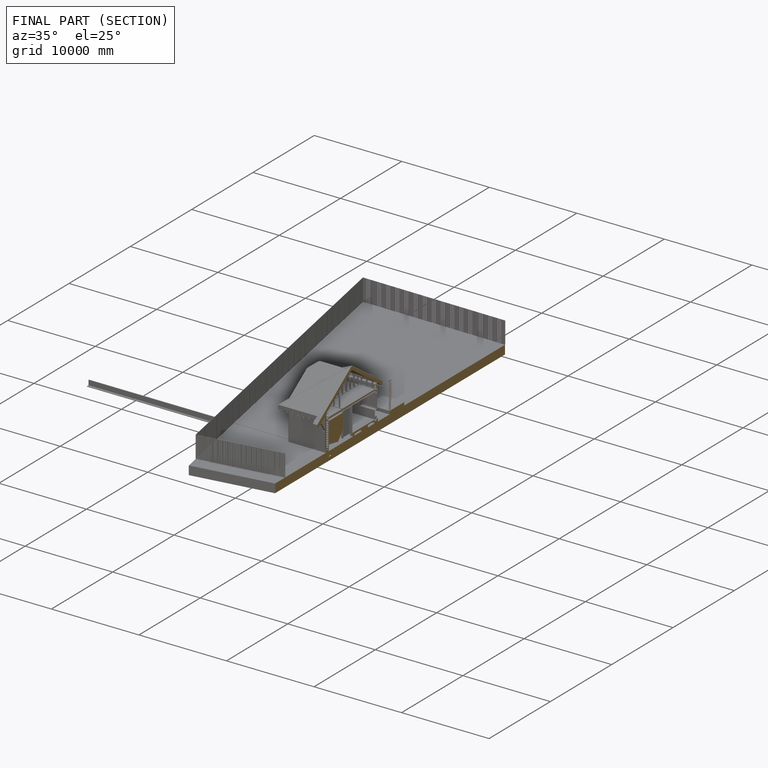
[diagram: finished part — half-section view (interior)]
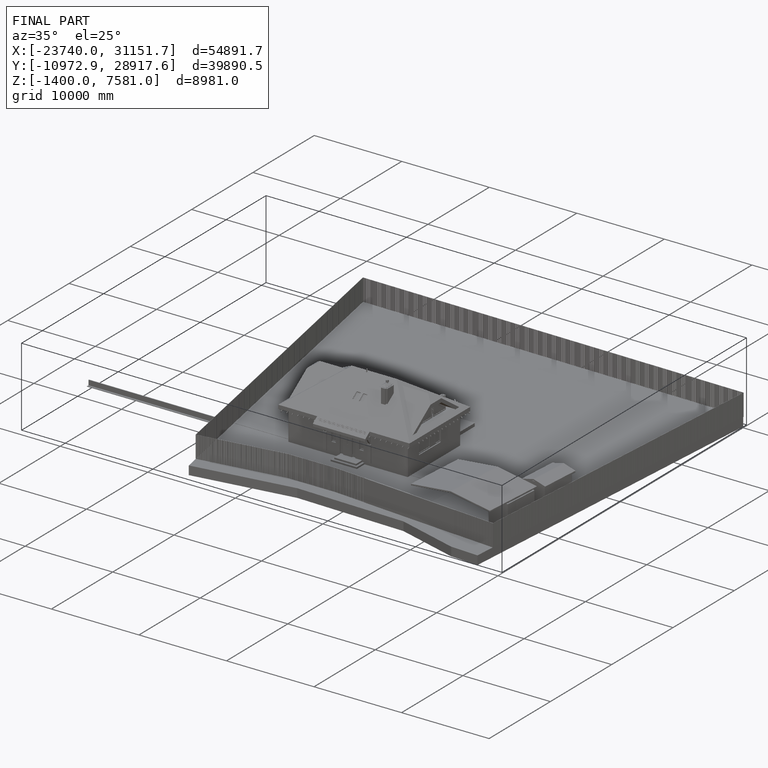
[diagram: finished part — iso view with bounding-box wireframe]
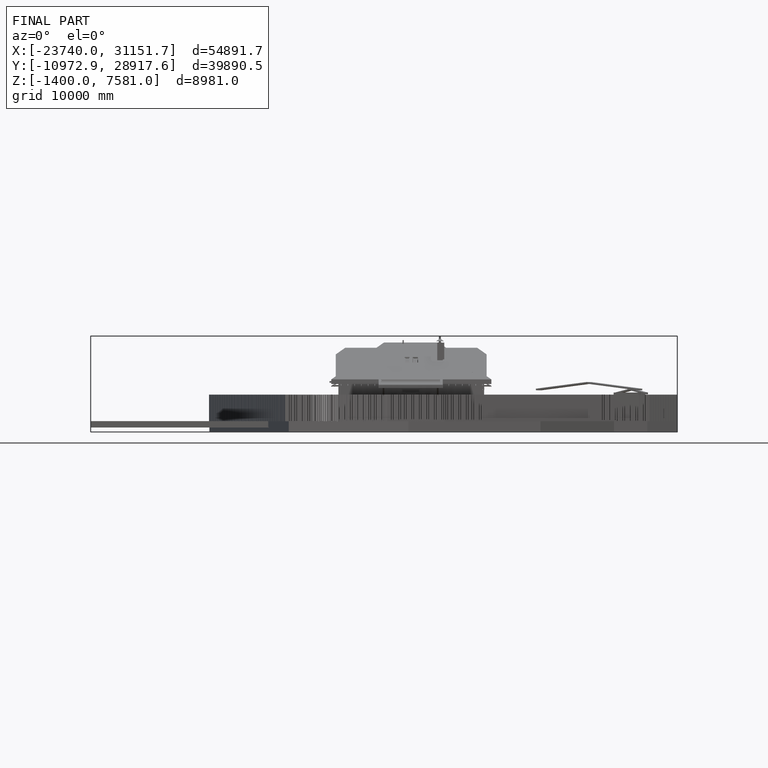
[diagram: finished part — front view with bounding-box wireframe]
